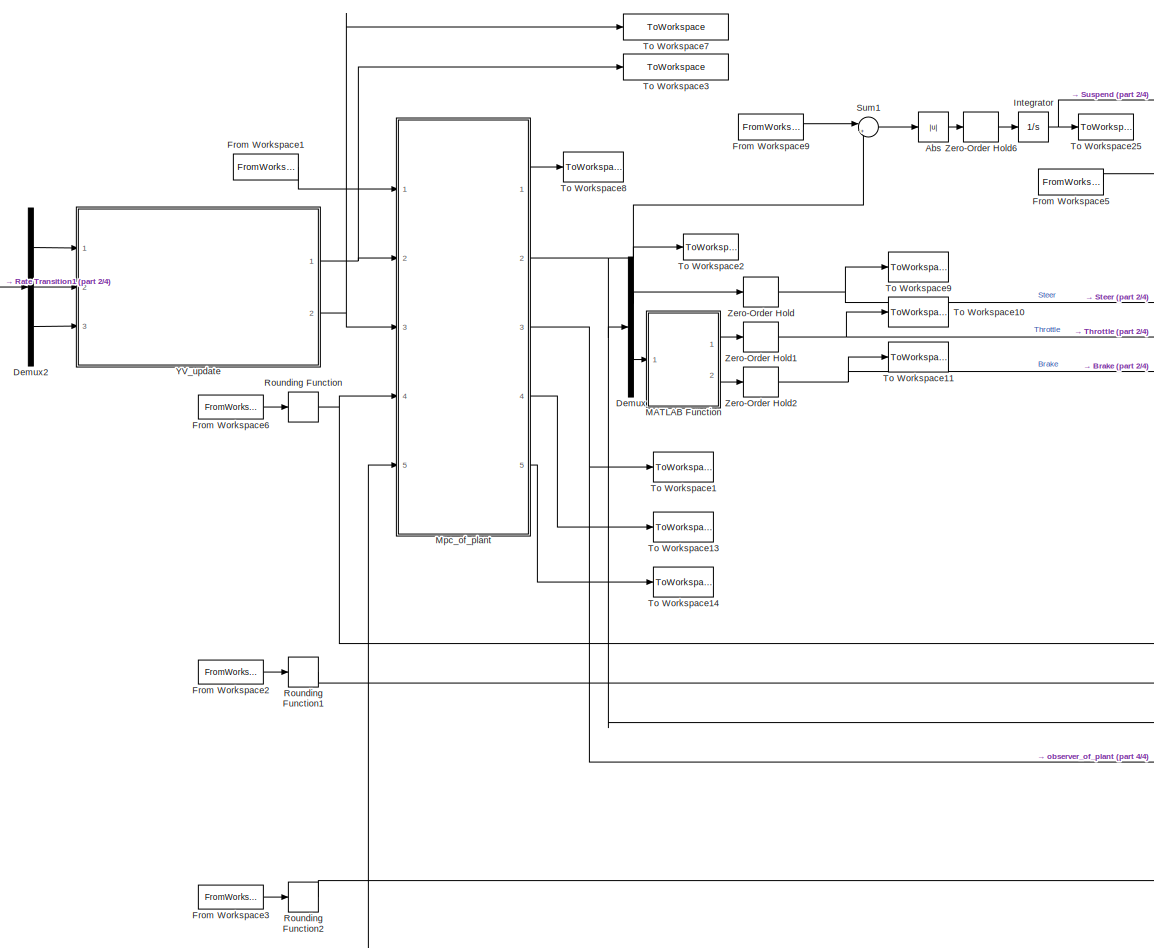
[diagram: root canvas - part 1/4, left side, full height]
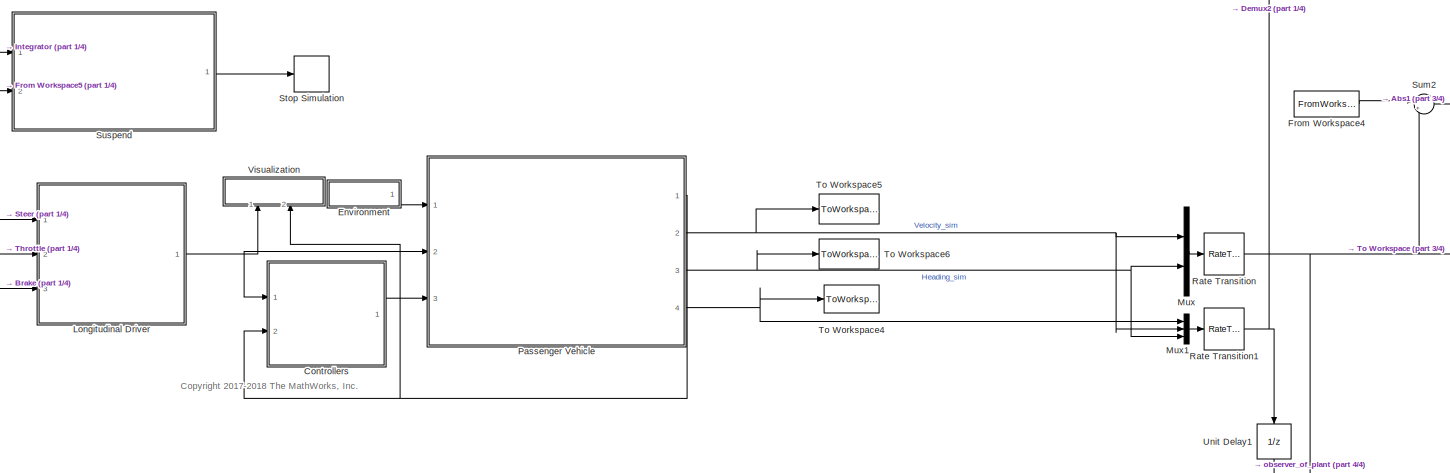
[diagram: root canvas - part 2/4, central region]
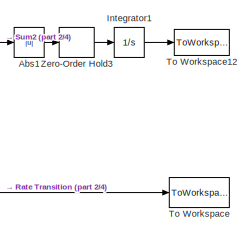
[diagram: root canvas - part 3/4, top right region]
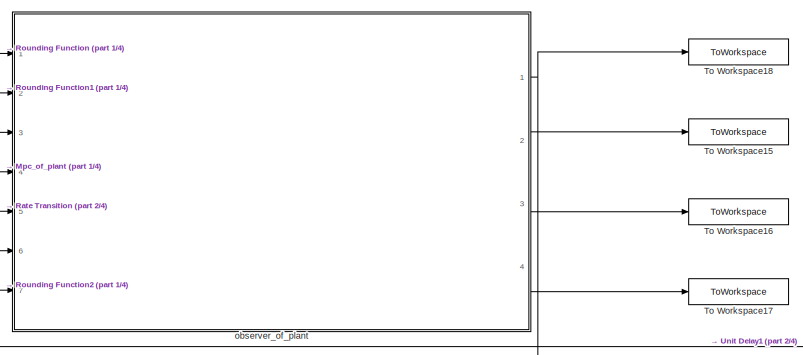
[diagram: root canvas - part 4/4, bottom center region]
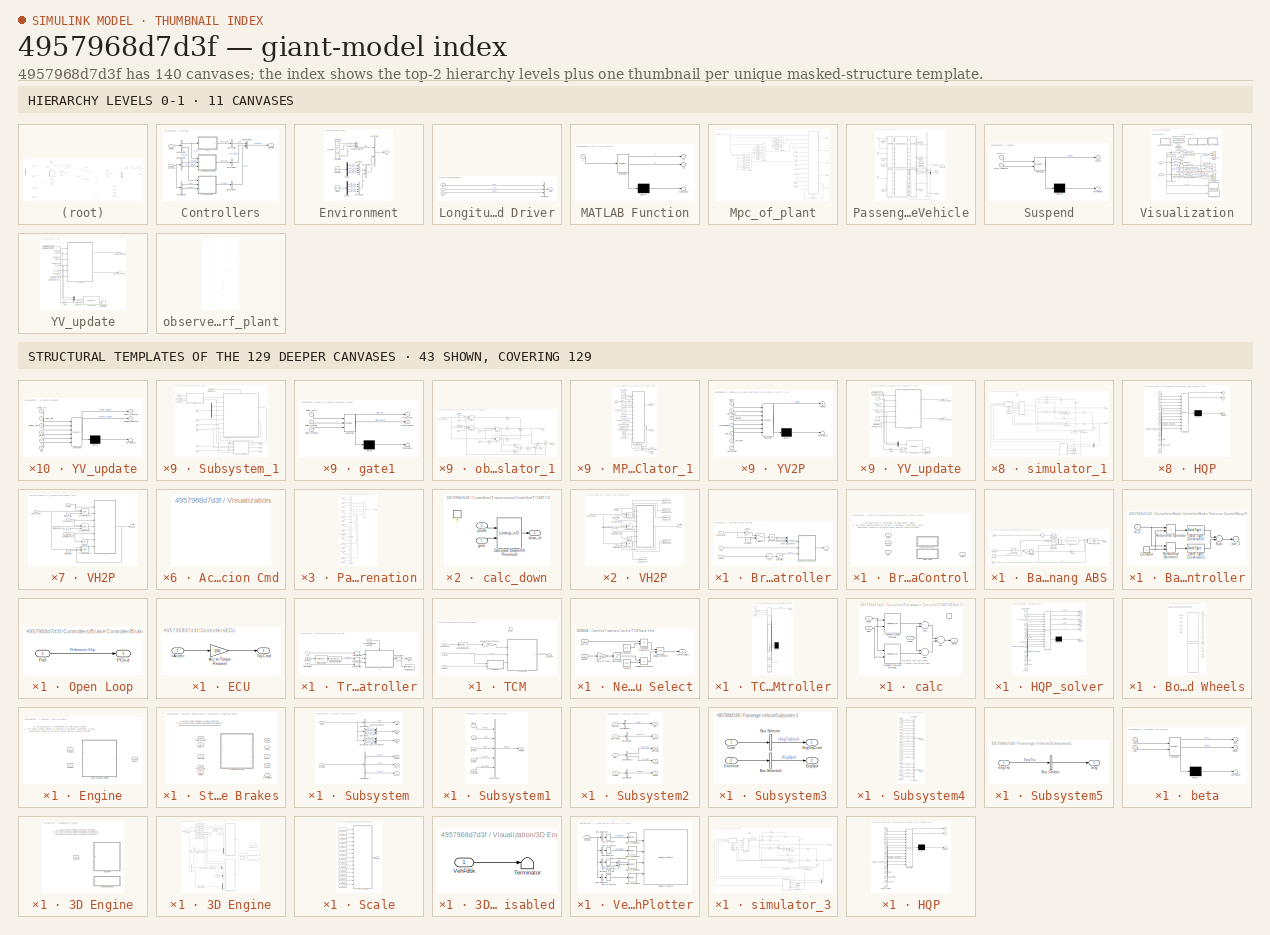
[diagram: thumbnail index - top-2 hierarchy levels (11 canvases) + 43 structural-template representatives of the remaining 129 canvases]
MODEL slx_4957968d7d3f
KIND model
CONFIG AbsTol = auto
CONFIG EnableMultiTasking = off
CONFIG FixedStep = 0.001
CONFIG MaxStep = auto
CONFIG MinStep = auto
CONFIG RelTol = 5e-3
CONFIG SampleTimeConstraint = Unconstrained
CONFIG Solver = FixedStepAuto
CONFIG SolverName = FixedStepAuto
CONFIG StartTime = 0.0
CONFIG StopTime = Tend-Ts
WORKSPACE source: MAT-file member
WORKSPACE A_mu = 10
BLOCK [Abs] Abs
  Commented = on
  SaturateOnIntegerOverflow = off
BLOCK [Abs] Abs1
  Commented = on
  SaturateOnIntegerOverflow = off
BLOCK [SubSystem] Controllers
  Ports = [2, 1]
  RequestExecContextInheritance = off
BLOCK [SubSystem] Controllers/Brake Controller
  Ports = [3, 1]
  RequestExecContextInheritance = off
BLOCK [Abs] Controllers/Brake Controller/Abs
  SaturateOnIntegerOverflow = off
  ZeroCross = off
BLOCK [SubSystem] Controllers/Brake Controller/Brake Pressure Control
  OverrideUsingVariant = 0
  Ports = [3, 1]
  RequestExecContextInheritance = off
  Variant = on
BLOCK [Inport] Controllers/Brake Controller/Brake Pressure Control/<Kappa>
  IconDisplay = Port number
  Port = 3
BLOCK [SubSystem] Controllers/Brake Controller/Brake Pressure Control/Bang Bang ABS
  Ports = [3, 1]
  RequestExecContextInheritance = off
  VariantControl = 1
BLOCK [Inport] Controllers/Brake Controller/Brake Pressure Control/Bang Bang ABS/<Kappa>
  IconDisplay = Port number
  Port = 3
BLOCK [Abs] Controllers/Brake Controller/Brake Pressure Control/Bang Bang ABS/Abs
  SaturateOnIntegerOverflow = off
BLOCK [Sum] Controllers/Brake Controller/Brake Pressure Control/Bang Bang ABS/Add
  InputSameDT = off
  Inputs = -+
  OutDataTypeStr = Inherit: Inherit via internal rule
  Ports = [2, 1]
  SaturateOnIntegerOverflow = off
BLOCK [SubSystem] Controllers/Brake Controller/Brake Pressure Control/Bang Bang ABS/Bang-bang controller
  Ports = [1, 1]
  RequestExecContextInheritance = off
  ShowPortLabels = none
BLOCK [Constant] Controllers/Brake Controller/Brake Pressure Control/Bang Bang ABS/Bang-bang controller/Constant
  Value = 0
BLOCK [DataTypeConversion] Controllers/Brake Controller/Brake Pressure Control/Bang Bang ABS/Bang-bang controller/Data Type Conversion1
  OutDataTypeStr = double
BLOCK [DataTypeConversion] Controllers/Brake Controller/Brake Pressure Control/Bang Bang ABS/Bang-bang controller/Data Type Conversion2
  OutDataTypeStr = double
BLOCK [RelationalOperator] Controllers/Brake Controller/Brake Pressure Control/Bang Bang ABS/Bang-bang controller/Relational Operator
  Operator = >
  OutDataTypeStr = boolean
  Ports = [2, 1]
BLOCK [RelationalOperator] Controllers/Brake Controller/Brake Pressure Control/Bang Bang ABS/Bang-bang controller/Relational Operator1
  Operator = <
  OutDataTypeStr = boolean
  Ports = [2, 1]
BLOCK [Sum] Controllers/Brake Controller/Brake Pressure Control/Bang Bang ABS/Bang-bang controller/Sum
  Inputs = +-
  Ports = [2, 1]
BLOCK [Inport] Controllers/Brake Controller/Brake Pressure Control/Bang Bang ABS/Bang-bang controller/in_1
  IconDisplay = Port number
BLOCK [Outport] Controllers/Brake Controller/Brake Pressure Control/Bang Bang ABS/Bang-bang controller/out_1
  IconDisplay = Port number
  InitialOutput = 0
BLOCK [Reference] Controllers/Brake Controller/Brake Pressure Control/Bang Bang ABS/Compare To Constant  REF=simulink/Logic and Bit
Operations/Compare
To Constant
  Ports = [1, 1]
  SourceBlock = simulink/Logic and Bit\nOperations/Compare\nTo Constant
  SourceProductBaseCode = SL
  SourceProductName = Simulink
  SourceType = Compare To Constant
BLOCK [Reference] Controllers/Brake Controller/Brake Pressure Control/Bang Bang ABS/Compare To Constant1  REF=simulink/Logic and Bit
Operations/Compare
To Constant
  Ports = [1, 1]
  SourceBlock = simulink/Logic and Bit\nOperations/Compare\nTo Constant
  SourceProductBaseCode = SL
  SourceProductName = Simulink
  SourceType = Compare To Constant
BLOCK [Reference] Controllers/Brake Controller/Brake Pressure Control/Bang Bang ABS/Compare To Constant2  REF=simulink/Logic and Bit
Operations/Compare
To Constant
  Ports = [1, 1]
  SourceBlock = simulink/Logic and Bit\nOperations/Compare\nTo Constant
  SourceProductBaseCode = SL
  SourceProductName = Simulink
  SourceType = Compare To Constant
BLOCK [Constant] Controllers/Brake Controller/Brake Pressure Control/Bang Bang ABS/Constant
  Value = .25
BLOCK [Reference] Controllers/Brake Controller/Brake Pressure Control/Bang Bang ABS/Debounce  REF=autolibutils/Debounce
  Ports = [1, 1]
  SourceBlock = autolibutils/Debounce
  SourceProductBaseCode = PW
  SourceProductName = Powertrain Blockset
BLOCK [Gain] Controllers/Brake Controller/Brake Pressure Control/Bang Bang ABS/Gain
  Gain = 200
  OutDataTypeStr = Inherit: Inherit via internal rule
  ParamDataTypeStr = Inherit: Inherit via internal rule
  SaturateOnIntegerOverflow = off
BLOCK [Logic] Controllers/Brake Controller/Brake Pressure Control/Bang Bang ABS/Logical Operator
  AllPortsSameDT = off
  Inputs = 3
  OutDataTypeStr = boolean
  Ports = [3, 1]
BLOCK [Outport] Controllers/Brake Controller/Brake Pressure Control/Bang Bang ABS/PCmd
  IconDisplay = Port number
BLOCK [Inport] Controllers/Brake Controller/Brake Pressure Control/Bang Bang ABS/Pref
  IconDisplay = Port number
BLOCK [RateTransition] Controllers/Brake Controller/Brake Pressure Control/Bang Bang ABS/Rate Transition
  OutPortSampleTime = .001
BLOCK [RateTransition] Controllers/Brake Controller/Brake Pressure Control/Bang Bang ABS/Rate Transition1
BLOCK [Switch] Controllers/Brake Controller/Brake Pressure Control/Bang Bang ABS/Switch
  Criteria = u2 > Threshold
  InputSameDT = off
  SaturateOnIntegerOverflow = off
  ZeroCross = off
BLOCK [Inport] Controllers/Brake Controller/Brake Pressure Control/Bang Bang ABS/xdot
  IconDisplay = Port number
  Port = 2
BLOCK [SubSystem] Controllers/Brake Controller/Brake Pressure Control/Open Loop
  Ports = [1, 1]
  RequestExecContextInheritance = off
  VariantControl = 0
BLOCK [Outport] Controllers/Brake Controller/Brake Pressure Control/Open Loop/PCmd
  IconDisplay = Port number
BLOCK [Inport] Controllers/Brake Controller/Brake Pressure Control/Open Loop/Pref
  IconDisplay = Port number
BLOCK [Outport] Controllers/Brake Controller/Brake Pressure Control/PCmd
  IconDisplay = Port number
BLOCK [Inport] Controllers/Brake Controller/Brake Pressure Control/Pref
  IconDisplay = Port number
BLOCK [Inport] Controllers/Brake Controller/Brake Pressure Control/xdot
  IconDisplay = Port number
  Port = 2
BLOCK [Inport] Controllers/Brake Controller/BrkPrsCmd
  IconDisplay = Port number
BLOCK [Constant] Controllers/Brake Controller/Constant1
  Value = -20
BLOCK [Gain] Controllers/Brake Controller/Gain3
  OutDataTypeStr = Inherit: Inherit via internal rule
  ParamDataTypeStr = Inherit: Inherit via internal rule
  SaturateOnIntegerOverflow = off
BLOCK [Integrator] Controllers/Brake Controller/Integrator2
  LimitOutput = on
  LowerSaturationLimit = 0
  Ports = [1, 1]
  UpperSaturationLimit = 1
BLOCK [Outport] Controllers/Brake Controller/PCmd
  IconDisplay = Port number
BLOCK [Saturate] Controllers/Brake Controller/Saturation
  InputPortMap = u0
  LowerLimit = 0
  Ports = [1, 1]
  UpperLimit = 1
  ZeroCross = off
BLOCK [Switch] Controllers/Brake Controller/Switch1
  Criteria = u2 > Threshold
  InputSameDT = off
  SaturateOnIntegerOverflow = off
  Threshold = .1
BLOCK [Concatenate] Controllers/Brake Controller/Vector Concatenate2
  NumInputs = 4
  Ports = [4, 1]
BLOCK [Inport] Controllers/Brake Controller/kappa
  IconDisplay = Port number
  Port = 3
BLOCK [Inport] Controllers/Brake Controller/xdot
  IconDisplay = Port number
  Port = 2
BLOCK [BusCreator] Controllers/Bus Creator
  DisplayOption = bar
  InheritFromInputs = on
  Inputs = 1
  Ports = [1, 1]
BLOCK [BusCreator] Controllers/Bus Creator1
  DisplayOption = bar
  InheritFromInputs = on
  Inputs = 1
  Ports = [1, 1]
BLOCK [BusCreator] Controllers/Bus Creator2
  DisplayOption = bar
  InheritFromInputs = on
  Inputs = 1
  Ports = [1, 1]
BLOCK [BusCreator] Controllers/Bus Creator3
  DisplayOption = bar
  InheritFromInputs = on
  Inputs = 3
  Ports = [3, 1]
BLOCK [BusSelector] Controllers/Bus Selector
  OutputAsBus = off
  OutputSignals = Body.xdot,Wheels.kappa
  Ports = [1, 2]
BLOCK [BusSelector] Controllers/Bus Selector1
  OutputAsBus = off
  OutputSignals = Driveline.EngSpd,Driveline.PropShftSpd
  Ports = [1, 2]
BLOCK [BusSelector] Controllers/Bus Selector2
  OutputAsBus = off
  OutputSignals = Accel,Brake
  Ports = [1, 2]
BLOCK [Outport] Controllers/Controller
  IconDisplay = Port number
BLOCK [SubSystem] Controllers/ECU
  Ports = [1, 1]
  RequestExecContextInheritance = off
BLOCK [Inport] Controllers/ECU/<Accel>
  IconDisplay = Port number
BLOCK [Gain] Controllers/ECU/Acc to Torque Request
  Gain = 150
  OutDataTypeStr = Inherit: Inherit via internal rule
  ParamDataTypeStr = Inherit: Inherit via internal rule
  SaturateOnIntegerOverflow = off
BLOCK [Outport] Controllers/ECU/Trq Cmd
  IconDisplay = Port number
BLOCK [Inport] Controllers/Pedals
  IconDisplay = Port number
BLOCK [SubSystem] Controllers/Transmission Controller
  Ports = [3, 1]
  RequestExecContextInheritance = off
BLOCK [Reference] Controllers/Transmission Controller/10ms Function-Call Generator  REF=simulink/Ports &
Subsystems/Function-Call
Generator
  Ports = [0, 1]
  SourceBlock = simulink/Ports &\nSubsystems/Function-Call\nGenerator
  SourceProductBaseCode = SL
  SourceProductName = Simulink
  SourceType = Function-Call Generator
BLOCK [Inport] Controllers/Transmission Controller/Acc
  IconDisplay = Port number
BLOCK [Inport] Controllers/Transmission Controller/EngSpd
  IconDisplay = Port number
  Port = 2
  Unit = rad/s
BLOCK [Outport] Controllers/Transmission Controller/Gear
  IconDisplay = Port number
BLOCK [Inport] Controllers/Transmission Controller/PropShaftSpd
  IconDisplay = Port number
  Port = 3
BLOCK [RateTransition] Controllers/Transmission Controller/Rate Transition
BLOCK [RateTransition] Controllers/Transmission Controller/Rate Transition1
BLOCK [RateTransition] Controllers/Transmission Controller/Rate Transition2
BLOCK [RateTransition] Controllers/Transmission Controller/Rate Transition3
BLOCK [SignalSpecification] Controllers/Transmission Controller/Signal Specification
  Unit = rpm
BLOCK [SubSystem] Controllers/Transmission Controller/TCM
  Ports = [3, 1, 0, 1]
  RequestExecContextInheritance = off
BLOCK [Inport] Controllers/Transmission Controller/TCM/AccCmd
  IconDisplay = Port number
BLOCK [Inport] Controllers/Transmission Controller/TCM/EngSpd
  IconDisplay = Port number
  Port = 2
BLOCK [Outport] Controllers/Transmission Controller/TCM/Gear Select
  IconDisplay = Port number
BLOCK [SubSystem] Controllers/Transmission Controller/TCM/Neutral Select
  Ports = [2, 1]
  RequestExecContextInheritance = off
BLOCK [Inport] Controllers/Transmission Controller/TCM/Neutral Select/AccCmd
  IconDisplay = Port number
BLOCK [Constant] Controllers/Transmission Controller/TCM/Neutral Select/Constant
  Value = 1200
BLOCK [Constant] Controllers/Transmission Controller/TCM/Neutral Select/Constant1
  Value = 1e-6
BLOCK [Inport] Controllers/Transmission Controller/TCM/Neutral Select/EngSpd
  IconDisplay = Port number
  Port = 2
BLOCK [Logic] Controllers/Transmission Controller/TCM/Neutral Select/Logical Operator
  AllPortsSameDT = off
  OutDataTypeStr = boolean
  Ports = [2, 1]
BLOCK [Outport] Controllers/Transmission Controller/TCM/Neutral Select/Neutral Select
  IconDisplay = Port number
BLOCK [RelationalOperator] Controllers/Transmission Controller/TCM/Neutral Select/Relational Operator
  InputSameDT = off
  Operator = <=
  OutDataTypeStr = boolean
  Ports = [2, 1]
  RndMeth = Simplest
BLOCK [RelationalOperator] Controllers/Transmission Controller/TCM/Neutral Select/Relational Operator1
  InputSameDT = off
  Operator = <=
  OutDataTypeStr = boolean
  Ports = [2, 1]
  RndMeth = Simplest
BLOCK [Saturate] Controllers/Transmission Controller/TCM/Neutral Select/Saturation1
  InputPortMap = u0
  LowerLimit = 0
  Ports = [1, 1]
  UpperLimit = 10e3
BLOCK [Gain] Controllers/Transmission Controller/TCM/Neutral Select/rad//s to RPM
  Gain = 30/pi
  OutDataTypeStr = Inherit: Inherit via internal rule
  ParamDataTypeStr = Inherit: Inherit via internal rule
  SaturateOnIntegerOverflow = off
BLOCK [DiscreteTransferFcn] Controllers/Transmission Controller/TCM/Prop Shaft Speed LPF
  Denominator = [1.000000000000000 -0.990049833749168 ]
  InputPortMap = u0
  Numerator = [0.000000000000000 0.009950166250832 ]
  Ports = [1, 1]
BLOCK [SubSystem] Controllers/Transmission Controller/TCM/TCM Shift Controller
  ErrorFcn = Stateflow.Translate.translate
  PermitHierarchicalResolution = ExplicitOnly
  Ports = [3, 1]
  RequestExecContextInheritance = off
  SFBlockType = Chart
  TreatAsAtomicUnit = on
BLOCK [Demux] Controllers/Transmission Controller/TCM/TCM Shift Controller/ Demux 
  Outputs = 3
  Ports = [1, 3]
BLOCK [S-Function] Controllers/Transmission Controller/TCM/TCM Shift Controller/ SFunction 
  EnableBusSupport = on
  FunctionName = sf_sfun
  PortCounts = [6 9]
  Ports = [6, 9]
  SFcnIsStateOwnerBlock = off
  SFunctionDeploymentMode = off
  Tag = Stateflow S-Function MPC_control 1
BLOCK [Outport] Controllers/Transmission Controller/TCM/TCM Shift Controller/GearState
  IconDisplay = Port number
BLOCK [Inport] Controllers/Transmission Controller/TCM/TCM Shift Controller/Neutral
  IconDisplay = Port number
  Port = 3
BLOCK [SubSystem] Controllers/Transmission Controller/TCM/TCM Shift Controller/calc
  Ports = [3, 1, 0, 1]
  PreDeleteFcn = Stateflow.SLINSF.SimulinkMan.removePreDeleteFcn
  RequestExecContextInheritance = off
  UndoDeleteFcn = Stateflow.SLINSF.SimulinkMan.restorePreDeleteFcn
BLOCK [Sum] Controllers/Transmission Controller/TCM/TCM Shift Controller/calc/Add1
  InputSameDT = off
  Inputs = +-
  OutDataTypeStr = Inherit: Inherit via internal rule
  Ports = [2, 1]
  SaturateOnIntegerOverflow = off
BLOCK [Sum] Controllers/Transmission Controller/TCM/TCM Shift Controller/calc/Add3
  InputSameDT = off
  Inputs = +-
  OutDataTypeStr = Inherit: Inherit via internal rule
  Ports = [2, 1]
  SaturateOnIntegerOverflow = off
BLOCK [Sum] Controllers/Transmission Controller/TCM/TCM Shift Controller/calc/Add4
  InputSameDT = off
  Inputs = +-
  OutDataTypeStr = Inherit: Inherit via internal rule
  Ports = [2, 1]
  SaturateOnIntegerOverflow = off
BLOCK [Lookup_n-D] Controllers/Transmission Controller/TCM/TCM Shift Controller/calc/Calculate Downshift Threshold
  BreakpointsForDimension1 = Pedal_Positions
  BreakpointsForDimension2 = 2:8
  ExtrapMethod = Clip
  InternalRulePriority = Speed
  Ports = [2, 1]
  RndMeth = Simplest
  Table = Downshift_Speeds
  UseLastTableValue = on
BLOCK [Lookup_n-D] Controllers/Transmission Controller/TCM/TCM Shift Controller/calc/Calculate Upshift Threshold
  BreakpointsForDimension1 = Pedal_Positions
  BreakpointsForDimension2 = 1:7
  ExtrapMethod = Clip
  InternalRulePriority = Speed
  Ports = [2, 1]
  RndMeth = Simplest
  Table = Upshift_Speeds
  UseLastTableValue = on
BLOCK [Outport] Controllers/Transmission Controller/TCM/TCM Shift Controller/calc/SpdThr
  IconDisplay = Port number
BLOCK [TriggerPort] Controllers/Transmission Controller/TCM/TCM Shift Controller/calc/f
  CopyFcn = Stateflow.SLINSF.SimulinkMan.removeBlockPreDeleteFcn
  Ports = []
  PreDeleteFcn = Stateflow.SLINSF.SimulinkMan.unsafePredeleteFcn
  StatesWhenEnabling = reset
  TriggerType = function-call
  VariantControl = Variant
BLOCK [Inport] Controllers/Transmission Controller/TCM/TCM Shift Controller/calc/gear
  IconDisplay = Port number
BLOCK [Inport] Controllers/Transmission Controller/TCM/TCM Shift Controller/calc/pedal
  IconDisplay = Port number
  Port = 2
BLOCK [Inport] Controllers/Transmission Controller/TCM/TCM Shift Controller/calc/speed
  IconDisplay = Port number
  Port = 3
BLOCK [SubSystem] Controllers/Transmission Controller/TCM/TCM Shift Controller/calc_down
  Ports = [2, 1, 0, 1]
  PreDeleteFcn = Stateflow.SLINSF.SimulinkMan.removePreDeleteFcn
  RequestExecContextInheritance = off
  UndoDeleteFcn = Stateflow.SLINSF.SimulinkMan.restorePreDeleteFcn
BLOCK [Lookup_n-D] Controllers/Transmission Controller/TCM/TCM Shift Controller/calc_down/Calculate Downshift Threshold
  BreakpointsForDimension1 = Pedal_Positions
  BreakpointsForDimension2 = 2:8
  ExtrapMethod = Clip
  InternalRulePriority = Speed
  Ports = [2, 1]
  RndMeth = Simplest
  Table = Downshift_Speeds
  UseLastTableValue = on
BLOCK [Outport] Controllers/Transmission Controller/TCM/TCM Shift Controller/calc_down/down_th
  IconDisplay = Port number
BLOCK [TriggerPort] Controllers/Transmission Controller/TCM/TCM Shift Controller/calc_down/f
  CopyFcn = Stateflow.SLINSF.SimulinkMan.removeBlockPreDeleteFcn
  Ports = []
  PreDeleteFcn = Stateflow.SLINSF.SimulinkMan.unsafePredeleteFcn
  StatesWhenEnabling = reset
  TriggerType = function-call
  VariantControl = Variant
BLOCK [Inport] Controllers/Transmission Controller/TCM/TCM Shift Controller/calc_down/gear
  IconDisplay = Port number
BLOCK [Inport] Controllers/Transmission Controller/TCM/TCM Shift Controller/calc_down/pedal
  IconDisplay = Port number
  Port = 2
BLOCK [SubSystem] Controllers/Transmission Controller/TCM/TCM Shift Controller/calc_up
  Ports = [2, 1, 0, 1]
  PreDeleteFcn = Stateflow.SLINSF.SimulinkMan.removePreDeleteFcn
  RequestExecContextInheritance = off
  UndoDeleteFcn = Stateflow.SLINSF.SimulinkMan.restorePreDeleteFcn
BLOCK [Lookup_n-D] Controllers/Transmission Controller/TCM/TCM Shift Controller/calc_up/Calculate Upshift Threshold
  BreakpointsForDimension1 = Pedal_Positions
  BreakpointsForDimension2 = 1:7
  ExtrapMethod = Clip
  InternalRulePriority = Speed
  Ports = [2, 1]
  RndMeth = Simplest
  Table = Upshift_Speeds
  UseLastTableValue = on
BLOCK [TriggerPort] Controllers/Transmission Controller/TCM/TCM Shift Controller/calc_up/f
  CopyFcn = Stateflow.SLINSF.SimulinkMan.removeBlockPreDeleteFcn
  Ports = []
  PreDeleteFcn = Stateflow.SLINSF.SimulinkMan.unsafePredeleteFcn
  StatesWhenEnabling = reset
  TriggerType = function-call
  VariantControl = Variant
BLOCK [Inport] Controllers/Transmission Controller/TCM/TCM Shift Controller/calc_up/gear
  IconDisplay = Port number
BLOCK [Inport] Controllers/Transmission Controller/TCM/TCM Shift Controller/calc_up/pedal
  IconDisplay = Port number
  Port = 2
BLOCK [Outport] Controllers/Transmission Controller/TCM/TCM Shift Controller/calc_up/up_th
  IconDisplay = Port number
BLOCK [Inport] Controllers/Transmission Controller/TCM/TCM Shift Controller/pedal
  IconDisplay = Port number
  Port = 2
BLOCK [Inport] Controllers/Transmission Controller/TCM/TCM Shift Controller/speed
  IconDisplay = Port number
BLOCK [Inport] Controllers/Transmission Controller/TCM/VehSpdFdbk
  IconDisplay = Port number
  Port = 3
BLOCK [TriggerPort] Controllers/Transmission Controller/TCM/function
  Ports = []
  StatesWhenEnabling = held
  TriggerType = function-call
  VariantControl = Variant
BLOCK [Gain] Controllers/Transmission Controller/TCM/prop speed to vehicle speed
  Gain = 0.45
  OutDataTypeStr = Inherit: Inherit via internal rule
  ParamDataTypeStr = Inherit: Inherit via internal rule
  SaturateOnIntegerOverflow = off
BLOCK [ToWorkspace] Controllers/Transmission Controller/To Workspace4
  FixptAsFi = on
  MaxDataPoints = inf
  Ports = [1]
  SampleTime = Ts
  Save2DSignal = 3-D array (concatenate along third dimension)
  VariableName = Gear
BLOCK [UnitConversion] Controllers/Transmission Controller/Unit Conversion
BLOCK [Inport] Controllers/VehFdbk
  IconDisplay = Port number
  Port = 2
BLOCK [Demux] Demux
  DisplayOption = bar
  Outputs = 2
  Ports = [1, 2]
BLOCK [Demux] Demux2
  DisplayOption = bar
  Outputs = 3
  Ports = [1, 3]
BLOCK [SubSystem] Environment
  Ports = [0, 1]
  RequestExecContextInheritance = off
  TreatAsAtomicUnit = on
BLOCK [BusCreator] Environment/Bus Creator
  DisplayOption = bar
  InheritFromInputs = on
  Inputs = 4
  Ports = [4, 1]
BLOCK [BusCreator] Environment/Bus Creator1
  DisplayOption = bar
  InheritFromInputs = on
  Inputs = 2
  Ports = [2, 1]
BLOCK [BusCreator] Environment/Bus Creator2
  DisplayOption = bar
  InheritFromInputs = on
  Inputs = 4
  Ports = [4, 1]
BLOCK [BusCreator] Environment/Bus Creator3
  DisplayOption = bar
  InheritFromInputs = on
  Inputs = 2
  Ports = [2, 1]
BLOCK [Constant] Environment/Constant1
  Value = zeros(4,1)
BLOCK [Constant] Environment/Constant3
  Value = 0
BLOCK [Constant] Environment/Constant4
  Value = 0
BLOCK [Constant] Environment/Constant5
  Value = 0
BLOCK [Demux] Environment/Demux
  DisplayOption = bar
  Ports = [1, 4]
BLOCK [Demux] Environment/Demux1
  DisplayOption = bar
  Ports = [1, 4]
BLOCK [Outport] Environment/Env
  IconDisplay = Port number
BLOCK [Constant] Environment/Friction
  Value = ones(4,1).*1
BLOCK [Concatenate] Environment/Vector Concatenate
  NumInputs = 3
  Ports = [3, 1]
BLOCK [FromWorkspace] From Workspace1
  SampleTime = Ts
  VariableName = Rs
  ZeroCross = on
BLOCK [FromWorkspace] From Workspace2
  SampleTime = Ts
  VariableName = select_overlap
  ZeroCross = on
BLOCK [FromWorkspace] From Workspace3
  SampleTime = Ts
  VariableName = select_overlap2
  ZeroCross = on
BLOCK [FromWorkspace] From Workspace4
  Commented = on
  SampleTime = Ts
  VariableName = Ideal_R
  ZeroCross = on
BLOCK [FromWorkspace] From Workspace5
  Commented = on
  SampleTime = Ts
  VariableName = suspend
  ZeroCross = on
BLOCK [FromWorkspace] From Workspace6
  SampleTime = Ts
  VariableName = select_MPC
  ZeroCross = on
BLOCK [FromWorkspace] From Workspace9
  Commented = on
  SampleTime = Ts
  VariableName = Ideal_U
  ZeroCross = on
BLOCK [Integrator] Integrator
  Commented = on
  Ports = [1, 1]
BLOCK [Integrator] Integrator1
  Commented = on
  Ports = [1, 1]
BLOCK [SubSystem] Longitudinal Driver
  Ports = [3, 1]
  RequestExecContextInheritance = off
  SystemSampleTime = Tf
  VariantControl = 0
BLOCK [BusCreator] Longitudinal Driver/Bus Creator1
  DisplayOption = bar
  InheritFromInputs = on
  Inputs = 3
  Ports = [3, 1]
BLOCK [Outport] Longitudinal Driver/Driver
  IconDisplay = Port number
BLOCK [Inport] Longitudinal Driver/In1
  IconDisplay = Port number
  SampleTime = Tf
BLOCK [Inport] Longitudinal Driver/In2
  IconDisplay = Port number
  Port = 2
  SampleTime = Tf
BLOCK [Inport] Longitudinal Driver/In3
  IconDisplay = Port number
  Port = 3
  SampleTime = Tf
BLOCK [SubSystem] MATLAB Function
  ErrorFcn = Stateflow.Translate.translate
  PermitHierarchicalResolution = ExplicitOnly
  Ports = [1, 2]
  RequestExecContextInheritance = off
  SFBlockType = MATLAB Function
  SystemSampleTime = Ts
  TreatAsAtomicUnit = on
BLOCK [Demux] MATLAB Function/ Demux 
  Outputs = 1
  Ports = [1, 1]
BLOCK [S-Function] MATLAB Function/ SFunction 
  EnableBusSupport = on
  FunctionName = sf_sfun
  PortCounts = [1 3]
  Ports = [1, 3]
  SFcnIsStateOwnerBlock = off
  SFunctionDeploymentMode = off
  Tag = Stateflow S-Function MPC_control 3
BLOCK [Terminator] MATLAB Function/ Terminator 
BLOCK [Outport] MATLAB Function/Br
  IconDisplay = Port number
  Port = 2
BLOCK [Outport] MATLAB Function/Tr
  IconDisplay = Port number
BLOCK [Inport] MATLAB Function/u
  IconDisplay = Port number
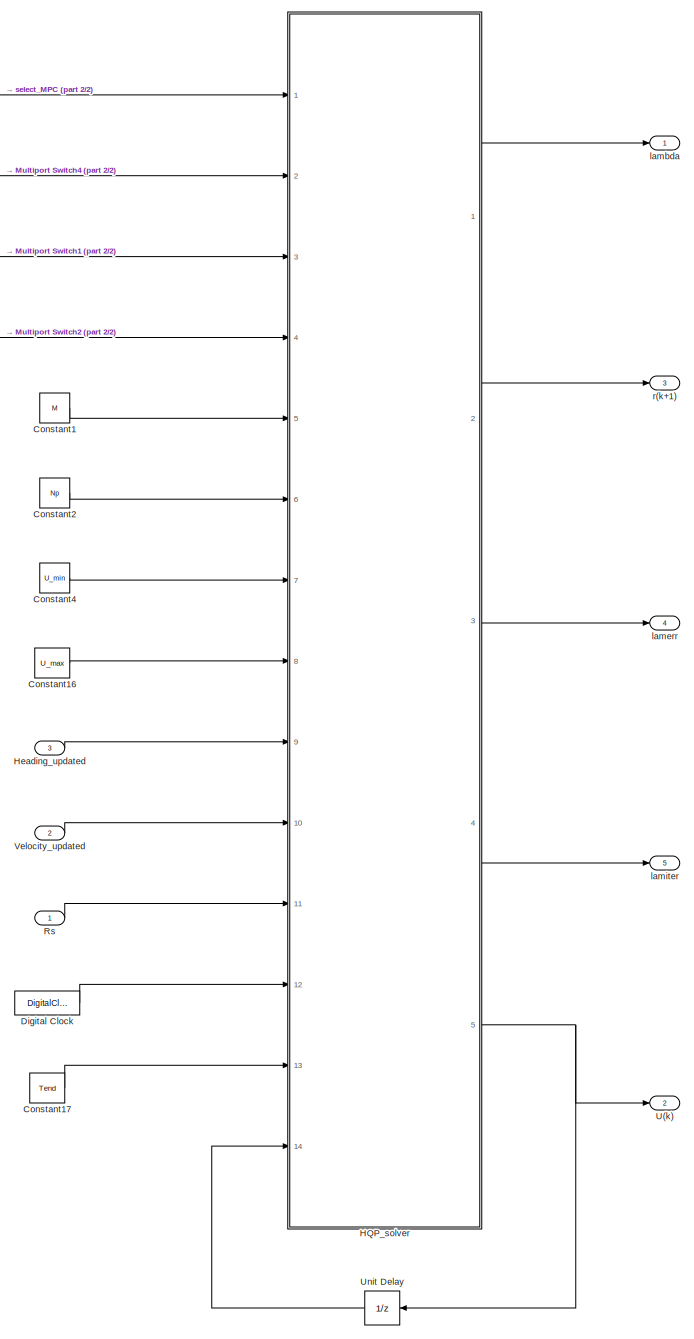
[diagram: Mpc_of_plant - part 1/2, right side, full height]
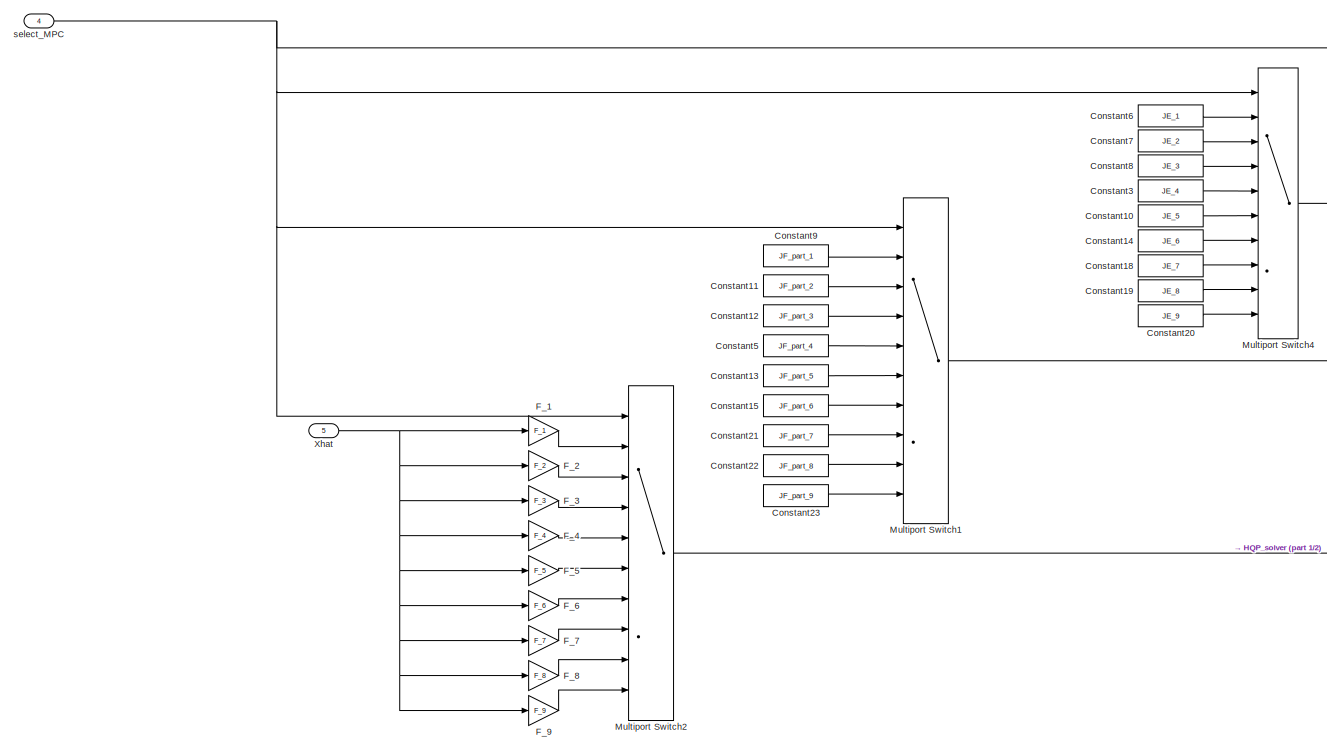
[diagram: Mpc_of_plant - part 2/2, top left region]
BLOCK [SubSystem] Mpc_of_plant
  Ports = [5, 5]
  RequestExecContextInheritance = off
  SystemSampleTime = Ts
  TreatAsAtomicUnit = on
BLOCK [Constant] Mpc_of_plant/Constant1
  SampleTime = -1
  Value = M
  VectorParams1D = off
BLOCK [Constant] Mpc_of_plant/Constant10
  SampleTime = -1
  Value = JE_5
  VectorParams1D = off
BLOCK [Constant] Mpc_of_plant/Constant11
  SampleTime = -1
  Value = JF_part_2
  VectorParams1D = off
BLOCK [Constant] Mpc_of_plant/Constant12
  SampleTime = -1
  Value = JF_part_3
  VectorParams1D = off
BLOCK [Constant] Mpc_of_plant/Constant13
  SampleTime = -1
  Value = JF_part_5
  VectorParams1D = off
BLOCK [Constant] Mpc_of_plant/Constant14
  SampleTime = -1
  Value = JE_6
  VectorParams1D = off
BLOCK [Constant] Mpc_of_plant/Constant15
  SampleTime = -1
  Value = JF_part_6
  VectorParams1D = off
BLOCK [Constant] Mpc_of_plant/Constant16
  SampleTime = -1
  Value = U_max
  VectorParams1D = off
BLOCK [Constant] Mpc_of_plant/Constant17
  SampleTime = -1
  Value = Tend
  VectorParams1D = off
BLOCK [Constant] Mpc_of_plant/Constant18
  SampleTime = -1
  Value = JE_7
  VectorParams1D = off
BLOCK [Constant] Mpc_of_plant/Constant19
  SampleTime = -1
  Value = JE_8
  VectorParams1D = off
BLOCK [Constant] Mpc_of_plant/Constant2
  SampleTime = -1
  Value = Np
BLOCK [Constant] Mpc_of_plant/Constant20
  SampleTime = -1
  Value = JE_9
  VectorParams1D = off
BLOCK [Constant] Mpc_of_plant/Constant21
  SampleTime = -1
  Value = JF_part_7
  VectorParams1D = off
BLOCK [Constant] Mpc_of_plant/Constant22
  SampleTime = -1
  Value = JF_part_8
  VectorParams1D = off
BLOCK [Constant] Mpc_of_plant/Constant23
  SampleTime = -1
  Value = JF_part_9
  VectorParams1D = off
BLOCK [Constant] Mpc_of_plant/Constant3
  SampleTime = -1
  Value = JE_4
  VectorParams1D = off
BLOCK [Constant] Mpc_of_plant/Constant4
  SampleTime = -1
  Value = U_min
  VectorParams1D = off
BLOCK [Constant] Mpc_of_plant/Constant5
  SampleTime = -1
  Value = JF_part_4
  VectorParams1D = off
BLOCK [Constant] Mpc_of_plant/Constant6
  SampleTime = -1
  Value = JE_1
  VectorParams1D = off
BLOCK [Constant] Mpc_of_plant/Constant7
  SampleTime = -1
  Value = JE_2
  VectorParams1D = off
BLOCK [Constant] Mpc_of_plant/Constant8
  SampleTime = -1
  Value = JE_3
  VectorParams1D = off
BLOCK [Constant] Mpc_of_plant/Constant9
  SampleTime = -1
  Value = JF_part_1
  VectorParams1D = off
BLOCK [DigitalClock] Mpc_of_plant/Digital Clock
  SampleTime = Ts
BLOCK [Gain] Mpc_of_plant/F_1
  Gain = F_1
  Multiplication = Matrix(K*u) (u vector)
  OutDataTypeStr = Inherit: Inherit via internal rule
  ParamDataTypeStr = Inherit: Inherit via internal rule
  SaturateOnIntegerOverflow = off
BLOCK [Gain] Mpc_of_plant/F_2
  Gain = F_2
  Multiplication = Matrix(K*u) (u vector)
  OutDataTypeStr = Inherit: Inherit via internal rule
  ParamDataTypeStr = Inherit: Inherit via internal rule
  SaturateOnIntegerOverflow = off
BLOCK [Gain] Mpc_of_plant/F_3
  Gain = F_3
  Multiplication = Matrix(K*u) (u vector)
  OutDataTypeStr = Inherit: Inherit via internal rule
  ParamDataTypeStr = Inherit: Inherit via internal rule
  SaturateOnIntegerOverflow = off
BLOCK [Gain] Mpc_of_plant/F_4
  Gain = F_4
  Multiplication = Matrix(K*u) (u vector)
  OutDataTypeStr = Inherit: Inherit via internal rule
  ParamDataTypeStr = Inherit: Inherit via internal rule
  SaturateOnIntegerOverflow = off
BLOCK [Gain] Mpc_of_plant/F_5
  Gain = F_5
  Multiplication = Matrix(K*u) (u vector)
  OutDataTypeStr = Inherit: Inherit via internal rule
  ParamDataTypeStr = Inherit: Inherit via internal rule
  SaturateOnIntegerOverflow = off
BLOCK [Gain] Mpc_of_plant/F_6
  Gain = F_6
  Multiplication = Matrix(K*u) (u vector)
  OutDataTypeStr = Inherit: Inherit via internal rule
  ParamDataTypeStr = Inherit: Inherit via internal rule
  SaturateOnIntegerOverflow = off
BLOCK [Gain] Mpc_of_plant/F_7
  Gain = F_7
  Multiplication = Matrix(K*u) (u vector)
  OutDataTypeStr = Inherit: Inherit via internal rule
  ParamDataTypeStr = Inherit: Inherit via internal rule
  SaturateOnIntegerOverflow = off
BLOCK [Gain] Mpc_of_plant/F_8
  Gain = F_8
  Multiplication = Matrix(K*u) (u vector)
  OutDataTypeStr = Inherit: Inherit via internal rule
  ParamDataTypeStr = Inherit: Inherit via internal rule
  SaturateOnIntegerOverflow = off
BLOCK [Gain] Mpc_of_plant/F_9
  Gain = F_9
  Multiplication = Matrix(K*u) (u vector)
  OutDataTypeStr = Inherit: Inherit via internal rule
  ParamDataTypeStr = Inherit: Inherit via internal rule
  SaturateOnIntegerOverflow = off
BLOCK [SubSystem] Mpc_of_plant/HQP_solver
  ErrorFcn = Stateflow.Translate.translate
  PermitHierarchicalResolution = ExplicitOnly
  Ports = [14, 5]
  RequestExecContextInheritance = off
  SFBlockType = MATLAB Function
  SystemSampleTime = Ts
  TreatAsAtomicUnit = on
BLOCK [Demux] Mpc_of_plant/HQP_solver/ Demux 
  Outputs = 1
  Ports = [1, 1]
BLOCK [S-Function] Mpc_of_plant/HQP_solver/ SFunction 
  EnableBusSupport = on
  FunctionName = sf_sfun
  PortCounts = [14 6]
  Ports = [14, 6]
  SFcnIsStateOwnerBlock = off
  SFunctionDeploymentMode = off
  Tag = Stateflow S-Function MPC_control 2
BLOCK [Terminator] Mpc_of_plant/HQP_solver/ Terminator 
BLOCK [Inport] Mpc_of_plant/HQP_solver/Fxh
  IconDisplay = Port number
  Port = 4
BLOCK [Inport] Mpc_of_plant/HQP_solver/Heading_updated
  IconDisplay = Port number
  Port = 9
BLOCK [Inport] Mpc_of_plant/HQP_solver/JE
  IconDisplay = Port number
  Port = 2
BLOCK [Inport] Mpc_of_plant/HQP_solver/JF_part
  IconDisplay = Port number
  Port = 3
BLOCK [Inport] Mpc_of_plant/HQP_solver/M
  IconDisplay = Port number
  Port = 5
BLOCK [Inport] Mpc_of_plant/HQP_solver/Np
  IconDisplay = Port number
  Port = 6
BLOCK [Inport] Mpc_of_plant/HQP_solver/Rs
  IconDisplay = Port number
  Port = 11
BLOCK [Inport] Mpc_of_plant/HQP_solver/Tend
  IconDisplay = Port number
  Port = 13
BLOCK [Inport] Mpc_of_plant/HQP_solver/Tsim
  IconDisplay = Port number
  Port = 12
BLOCK [Outport] Mpc_of_plant/HQP_solver/U
  IconDisplay = Port number
  Port = 5
BLOCK [Inport] Mpc_of_plant/HQP_solver/U_delay
  IconDisplay = Port number
  Port = 14
BLOCK [Inport] Mpc_of_plant/HQP_solver/U_max
  IconDisplay = Port number
  Port = 8
BLOCK [Inport] Mpc_of_plant/HQP_solver/U_min
  IconDisplay = Port number
  Port = 7
BLOCK [Inport] Mpc_of_plant/HQP_solver/Velocity_updated
  IconDisplay = Port number
  Port = 10
BLOCK [Outport] Mpc_of_plant/HQP_solver/lambda
  IconDisplay = Port number
BLOCK [Outport] Mpc_of_plant/HQP_solver/lamerr
  IconDisplay = Port number
  Port = 3
BLOCK [Outport] Mpc_of_plant/HQP_solver/lamiter
  IconDisplay = Port number
  Port = 4
BLOCK [Outport] Mpc_of_plant/HQP_solver/r
  IconDisplay = Port number
  Port = 2
BLOCK [Inport] Mpc_of_plant/HQP_solver/select_MPC
  IconDisplay = Port number
BLOCK [Inport] Mpc_of_plant/Heading_updated
  IconDisplay = Port number
  LockScale = on
  Port = 3
  SampleTime = Ts
BLOCK [MultiPortSwitch] Mpc_of_plant/Multiport Switch1
  InputSameDT = off
  Inputs = 9
  Ports = [10, 1]
  SaturateOnIntegerOverflow = off
BLOCK [MultiPortSwitch] Mpc_of_plant/Multiport Switch2
  InputSameDT = off
  Inputs = 9
  Ports = [10, 1]
  SaturateOnIntegerOverflow = off
BLOCK [MultiPortSwitch] Mpc_of_plant/Multiport Switch4
  InputSameDT = off
  Inputs = 9
  Ports = [10, 1]
  SaturateOnIntegerOverflow = off
BLOCK [Inport] Mpc_of_plant/Rs
  IconDisplay = Port number
  LockScale = on
  SampleTime = Ts
  VarSizeSig = No
BLOCK [Outport] Mpc_of_plant/U(k)
  IconDisplay = Port number
  Port = 2
BLOCK [UnitDelay] Mpc_of_plant/Unit Delay
  InitialCondition = [0;0]
  InputProcessing = Elements as channels (sample based)
  SampleTime = Ts
BLOCK [Inport] Mpc_of_plant/Velocity_updated
  IconDisplay = Port number
  Port = 2
  SampleTime = Ts
BLOCK [Inport] Mpc_of_plant/Xhat
  IconDisplay = Port number
  Port = 5
BLOCK [Outport] Mpc_of_plant/lambda
  IconDisplay = Port number
BLOCK [Outport] Mpc_of_plant/lamerr
  IconDisplay = Port number
  Port = 4
BLOCK [Outport] Mpc_of_plant/lamiter
  IconDisplay = Port number
  Port = 5
BLOCK [Outport] Mpc_of_plant/r(k+1)
  IconDisplay = Port number
  Port = 3
BLOCK [Inport] Mpc_of_plant/select_MPC
  IconDisplay = Port number
  Port = 4
BLOCK [Mux] Mux
  DisplayOption = bar
  Inputs = 2
  Ports = [2, 1]
BLOCK [Mux] Mux1
  DisplayOption = bar
  Inputs = 3
  Ports = [3, 1]
BLOCK [SubSystem] Passenger Vehicle
  MinAlgLoopOccurrences = on
  Ports = [3, 4]
  RequestExecContextInheritance = off
  TreatAsAtomicUnit = on
BLOCK [SubSystem] Passenger Vehicle/Body, Suspension, Wheels
  OverrideUsingVariant = 1
  Ports = [6, 20]
  RequestExecContextInheritance = off
  Variant = on
BLOCK [Inport] Passenger Vehicle/Body, Suspension, Wheels/AxleTrq
  IconDisplay = Port number
  Port = 5
BLOCK [Inport] Passenger Vehicle/Body, Suspension, Wheels/BrkPrs
  IconDisplay = Port number
  Port = 6
BLOCK [Inport] Passenger Vehicle/Body, Suspension, Wheels/Friction
  IconDisplay = Port number
  Port = 3
  PortDimensions = 4
BLOCK [Inport] Passenger Vehicle/Body, Suspension, Wheels/Ground
  IconDisplay = Port number
  Port = 2
  PortDimensions = 4
BLOCK [ModelReference] Passenger Vehicle/Body, Suspension, Wheels/PassVeh14DOF
  DisableCoverage = on
  ModelNameDialog = PassVeh14DOF
  ModelReferenceVersion = 1.200
  Ports = [6, 20]
  VariantControl = 3
BLOCK [ModelReference] Passenger Vehicle/Body, Suspension, Wheels/PassVeh7DOF
  DisableCoverage = on
  ModelNameDialog = PassVeh7DOF
  ModelReferenceVersion = 1.157
  Ports = [6, 20]
  VariantControl = 1
BLOCK [Inport] Passenger Vehicle/Body, Suspension, Wheels/WheelAngle
  IconDisplay = Port number
  Port = 4
BLOCK [Inport] Passenger Vehicle/Body, Suspension, Wheels/WindXYZ
  IconDisplay = Port number
BLOCK [Outport] Passenger Vehicle/Body, Suspension, Wheels/X
  IconDisplay = Port number
  Port = 3
BLOCK [Outport] Passenger Vehicle/Body, Suspension, Wheels/XWheel
  IconDisplay = Port number
  Port = 19
BLOCK [Outport] Passenger Vehicle/Body, Suspension, Wheels/Xdot
  IconDisplay = Port number
  Port = 6
BLOCK [Outport] Passenger Vehicle/Body, Suspension, Wheels/Y
  IconDisplay = Port number
  Port = 4
BLOCK [Outport] Passenger Vehicle/Body, Suspension, Wheels/YWheel
  IconDisplay = Port number
  Port = 20
BLOCK [Outport] Passenger Vehicle/Body, Suspension, Wheels/Ydot
  IconDisplay = Port number
  Port = 7
BLOCK [Outport] Passenger Vehicle/Body, Suspension, Wheels/Z
  IconDisplay = Port number
  Port = 5
BLOCK [Outport] Passenger Vehicle/Body, Suspension, Wheels/ZHP
  IconDisplay = Port number
  Port = 18
  Unit = m
BLOCK [Outport] Passenger Vehicle/Body, Suspension, Wheels/ay
  IconDisplay = Port number
  Port = 14
BLOCK [Outport] Passenger Vehicle/Body, Suspension, Wheels/kappa
  IconDisplay = Port number
  Port = 15
BLOCK [Outport] Passenger Vehicle/Body, Suspension, Wheels/omega
  IconDisplay = Port number
  Port = 17
BLOCK [Outport] Passenger Vehicle/Body, Suspension, Wheels/p
  IconDisplay = Port number
  Port = 11
BLOCK [Outport] Passenger Vehicle/Body, Suspension, Wheels/phi
  IconDisplay = Port number
  Port = 8
BLOCK [Outport] Passenger Vehicle/Body, Suspension, Wheels/psi
  IconDisplay = Port number
  Port = 10
BLOCK [Outport] Passenger Vehicle/Body, Suspension, Wheels/q
  IconDisplay = Port number
  Port = 12
BLOCK [Outport] Passenger Vehicle/Body, Suspension, Wheels/r
  IconDisplay = Port number
  Port = 13
BLOCK [Outport] Passenger Vehicle/Body, Suspension, Wheels/theta
  IconDisplay = Port number
  Port = 9
BLOCK [Outport] Passenger Vehicle/Body, Suspension, Wheels/xdot
  IconDisplay = Port number
BLOCK [Outport] Passenger Vehicle/Body, Suspension, Wheels/ydot
  IconDisplay = Port number
  Port = 2
BLOCK [Outport] Passenger Vehicle/Body, Suspension, Wheels/zAxle
  IconDisplay = Port number
  Port = 16
BLOCK [BusCreator] Passenger Vehicle/Bus Creator2
  DisplayOption = bar
  InheritFromInputs = on
  Inputs = 4
  Ports = [4, 1]
BLOCK [Inport] Passenger Vehicle/Cntrl
  IconDisplay = Port number
  Port = 3
BLOCK [SubSystem] Passenger Vehicle/Engine
  OverrideUsingVariant = 0
  Ports = [2, 1]
  RequestExecContextInheritance = off
  Variant = on
BLOCK [Inport] Passenger Vehicle/Engine/EngSpd
  IconDisplay = Port number
  Port = 2
  Unit = rad/s
BLOCK [Outport] Passenger Vehicle/Engine/EngTrq
  IconDisplay = Port number
BLOCK [ModelReference] Passenger Vehicle/Engine/Ideal Mapped Engine
  DisableCoverage = on
  ModelNameDialog = SiMappedEngineV
  ModelReferenceVersion = 1.335
  Ports = [2, 1]
  VariantControl = 0
BLOCK [Inport] Passenger Vehicle/Engine/TrqCmd
  IconDisplay = Port number
BLOCK [Inport] Passenger Vehicle/Env
  IconDisplay = Port number
BLOCK [From] Passenger Vehicle/From
  GotoTag = Driveline
BLOCK [From] Passenger Vehicle/From1
  GotoTag = Wheels
BLOCK [From] Passenger Vehicle/From2
  GotoTag = EngTrq
BLOCK [From] Passenger Vehicle/From3
  GotoTag = Driveline
BLOCK [Goto] Passenger Vehicle/Goto
  GotoTag = Driveline
BLOCK [Goto] Passenger Vehicle/Goto1
  GotoTag = Wheels
BLOCK [Goto] Passenger Vehicle/Goto2
  GotoTag = EngTrq
BLOCK [Outport] Passenger Vehicle/Heading_sim
  IconDisplay = Port number
  Port = 3
BLOCK [Mux] Passenger Vehicle/Mux
  DisplayOption = bar
  Inputs = 2
  Ports = [2, 1]
BLOCK [Inport] Passenger Vehicle/Steer
  IconDisplay = Port number
  Port = 2
BLOCK [SubSystem] Passenger Vehicle/Steering, Transmission, Driveline and Brakes
  OverrideUsingVariant = 0
  Ports = [5, 5]
  RequestExecContextInheritance = off
  Variant = on
BLOCK [Outport] Passenger Vehicle/Steering, Transmission, Driveline and Brakes/AxlTrq
  IconDisplay = Port number
  Port = 2
BLOCK [Outport] Passenger Vehicle/Steering, Transmission, Driveline and Brakes/BrkPrs
  IconDisplay = Port number
  Port = 3
  PortDimensions = 4
BLOCK [Inport] Passenger Vehicle/Steering, Transmission, Driveline and Brakes/BrkPrsCmd
  IconDisplay = Port number
  Port = 4
  PortDimensions = 4
BLOCK [ModelReference] Passenger Vehicle/Steering, Transmission, Driveline and Brakes/Driveline Ideal Fixed Gear
  DisableCoverage = on
  ModelNameDialog = Driveline
  ModelReferenceVersion = 1.207
  Ports = [5, 5]
  VariantControl = 0
BLOCK [Outport] Passenger Vehicle/Steering, Transmission, Driveline and Brakes/EngSpd
  IconDisplay = Port number
  Port = 4
  Unit = rad/s
BLOCK [Inport] Passenger Vehicle/Steering, Transmission, Driveline and Brakes/EngTrq
  IconDisplay = Port number
  Port = 2
BLOCK [Inport] Passenger Vehicle/Steering, Transmission, Driveline and Brakes/GearCmd
  IconDisplay = Port number
  OutDataTypeStr = int8
  Port = 3
BLOCK [Outport] Passenger Vehicle/Steering, Transmission, Driveline and Brakes/PropShftSpd
  IconDisplay = Port number
  Port = 5
BLOCK [Inport] Passenger Vehicle/Steering, Transmission, Driveline and Brakes/SteerHWCmd
  IconDisplay = Port number
BLOCK [Outport] Passenger Vehicle/Steering, Transmission, Driveline and Brakes/WhlAng
  IconDisplay = Port number
BLOCK [Inport] Passenger Vehicle/Steering, Transmission, Driveline and Brakes/omega
  IconDisplay = Port number
  Port = 5
BLOCK [SubSystem] Passenger Vehicle/Subsystem
  Ports = [2, 6]
  RequestExecContextInheritance = off
BLOCK [Outport] Passenger Vehicle/Subsystem/AxleTrq
  IconDisplay = Port number
  Port = 5
BLOCK [Outport] Passenger Vehicle/Subsystem/BrkPrs
  IconDisplay = Port number
  Port = 6
BLOCK [BusSelector] Passenger Vehicle/Subsystem/Bus Selector1
  OutputAsBus = off
  OutputSignals = Gnd.z.G_FL_z,Gnd.z.G_FR_z,Gnd.z.G_RL_z,Gnd.z.G_RR_z
  Ports = [1, 4]
BLOCK [BusSelector] Passenger Vehicle/Subsystem/Bus Selector2
  OutputAsBus = off
  OutputSignals = Wind
  Ports = [1, 1]
BLOCK [BusSelector] Passenger Vehicle/Subsystem/Bus Selector3
  OutputAsBus = off
  OutputSignals = Gnd.mu.mu_FL,Gnd.mu.mu_FR,Gnd.mu.mu_RL,Gnd.mu.mu_RR
  Ports = [1, 4]
BLOCK [BusSelector] Passenger Vehicle/Subsystem/Bus Selector4
  OutputAsBus = off
  OutputSignals = WhlAng,AxlTrq,BrkPrs
  Ports = [1, 3]
BLOCK [Inport] Passenger Vehicle/Subsystem/Driveline
  IconDisplay = Port number
  Port = 2
BLOCK [Inport] Passenger Vehicle/Subsystem/Env
  IconDisplay = Port number
BLOCK [Outport] Passenger Vehicle/Subsystem/Gnd
  IconDisplay = Port number
  Port = 2
BLOCK [Concatenate] Passenger Vehicle/Subsystem/Vector Concatenate
  NumInputs = 4
  Ports = [4, 1]
BLOCK [Concatenate] Passenger Vehicle/Subsystem/Vector Concatenate1
  NumInputs = 4
  Ports = [4, 1]
BLOCK [Outport] Passenger Vehicle/Subsystem/WhlAng
  IconDisplay = Port number
  Port = 4
BLOCK [Outport] Passenger Vehicle/Subsystem/Wind
  IconDisplay = Port number
BLOCK [Outport] Passenger Vehicle/Subsystem/mu
  IconDisplay = Port number
  Port = 3
BLOCK [SubSystem] Passenger Vehicle/Subsystem1
  Ports = [5, 1]
  RequestExecContextInheritance = off
BLOCK [Inport] Passenger Vehicle/Subsystem1/AxlTrq
  IconDisplay = Port number
  Port = 2
BLOCK [Inport] Passenger Vehicle/Subsystem1/BrkPrs
  IconDisplay = Port number
  Port = 3
BLOCK [BusCreator] Passenger Vehicle/Subsystem1/Bus Creator1
  DisplayOption = bar
  InheritFromInputs = on
  Inputs = 5
  Ports = [5, 1]
BLOCK [Outport] Passenger Vehicle/Subsystem1/Driveline
  IconDisplay = Port number
BLOCK [Inport] Passenger Vehicle/Subsystem1/EngSpd
  IconDisplay = Port number
  Port = 4
BLOCK [Inport] Passenger Vehicle/Subsystem1/PropShftSpd
  IconDisplay = Port number
  Port = 5
BLOCK [Inport] Passenger Vehicle/Subsystem1/WhlAng
  IconDisplay = Port number
BLOCK [SubSystem] Passenger Vehicle/Subsystem2
  Ports = [4, 5]
  RequestExecContextInheritance = off
BLOCK [BusSelector] Passenger Vehicle/Subsystem2/Bus Selector1
  OutputAsBus = off
  OutputSignals = Steer
  Ports = [1, 1]
BLOCK [BusSelector] Passenger Vehicle/Subsystem2/Bus Selector2
  OutputAsBus = off
  OutputSignals = omega
  Ports = [1, 1]
BLOCK [BusSelector] Passenger Vehicle/Subsystem2/Bus Selector3
  OutputAsBus = off
  OutputSignals = Transmission.GearCmd,Brake.PrsCmd
  Ports = [1, 2]
BLOCK [BusSelector] Passenger Vehicle/Subsystem2/Bus Selector4
  OutputAsBus = off
  OutputSignals = EngTrq
  Ports = [1, 1]
BLOCK [Inport] Passenger Vehicle/Subsystem2/Cntrl
  IconDisplay = Port number
BLOCK [Outport] Passenger Vehicle/Subsystem2/EngTrq
  IconDisplay = Port number
  Port = 2
BLOCK [Inport] Passenger Vehicle/Subsystem2/EngTrqCmd
  IconDisplay = Port number
  Port = 3
BLOCK [Outport] Passenger Vehicle/Subsystem2/GearCmd
  IconDisplay = Port number
  Port = 3
BLOCK [Outport] Passenger Vehicle/Subsystem2/PrsCmd
  IconDisplay = Port number
  Port = 4
BLOCK [Outport] Passenger Vehicle/Subsystem2/Steer
  IconDisplay = Port number
BLOCK [Inport] Passenger Vehicle/Subsystem2/SteerCmd
  IconDisplay = Port number
  Port = 2
BLOCK [Inport] Passenger Vehicle/Subsystem2/Wheels
  IconDisplay = Port number
  Port = 4
BLOCK [Outport] Passenger Vehicle/Subsystem2/omega
  IconDisplay = Port number
  Port = 5
BLOCK [SubSystem] Passenger Vehicle/Subsystem3
  Ports = [2, 2]
  RequestExecContextInheritance = off
BLOCK [BusSelector] Passenger Vehicle/Subsystem3/Bus Selector
  OutputAsBus = off
  OutputSignals = ECU.EngTrqCmd
  Ports = [1, 1]
BLOCK [BusSelector] Passenger Vehicle/Subsystem3/Bus Selector1
  OutputAsBus = off
  OutputSignals = EngSpd
  Ports = [1, 1]
BLOCK [Inport] Passenger Vehicle/Subsystem3/Cntrl
  IconDisplay = Port number
BLOCK [Inport] Passenger Vehicle/Subsystem3/Driveline
  IconDisplay = Port number
  Port = 2
BLOCK [Outport] Passenger Vehicle/Subsystem3/EngSpd
  IconDisplay = Port number
  Port = 2
BLOCK [Outport] Passenger Vehicle/Subsystem3/EngTrqCmd
  IconDisplay = Port number
BLOCK [SubSystem] Passenger Vehicle/Subsystem4
  Ports = [20, 2]
  RequestExecContextInheritance = off
BLOCK [BusCreator] Passenger Vehicle/Subsystem4/Bus Creator
  DisplayOption = bar
  InheritFromInputs = on
  Inputs = 15
  Ports = [15, 1]
BLOCK [BusCreator] Passenger Vehicle/Subsystem4/Bus Creator3
  DisplayOption = bar
  InheritFromInputs = on
  Inputs = 5
  Ports = [5, 1]
BLOCK [Outport] Passenger Vehicle/Subsystem4/Chassis
  IconDisplay = Port number
BLOCK [Outport] Passenger Vehicle/Subsystem4/Wheels
  IconDisplay = Port number
  Port = 2
BLOCK [Inport] Passenger Vehicle/Subsystem4/X
  IconDisplay = Port number
  Port = 3
BLOCK [Inport] Passenger Vehicle/Subsystem4/XWheel
  IconDisplay = Port number
  Port = 19
BLOCK [Inport] Passenger Vehicle/Subsystem4/Xdot
  IconDisplay = Port number
  Port = 6
BLOCK [Inport] Passenger Vehicle/Subsystem4/Y
  IconDisplay = Port number
  Port = 4
BLOCK [Inport] Passenger Vehicle/Subsystem4/YWheel
  IconDisplay = Port number
  Port = 20
BLOCK [Inport] Passenger Vehicle/Subsystem4/Ydot
  IconDisplay = Port number
  Port = 7
BLOCK [Inport] Passenger Vehicle/Subsystem4/Z
  IconDisplay = Port number
  Port = 5
BLOCK [Inport] Passenger Vehicle/Subsystem4/ZHP
  IconDisplay = Port number
  Port = 18
BLOCK [Inport] Passenger Vehicle/Subsystem4/ay
  IconDisplay = Port number
  Port = 14
BLOCK [Inport] Passenger Vehicle/Subsystem4/kappa
  IconDisplay = Port number
  Port = 15
BLOCK [Inport] Passenger Vehicle/Subsystem4/omega
  IconDisplay = Port number
  Port = 17
BLOCK [Inport] Passenger Vehicle/Subsystem4/p
  IconDisplay = Port number
  Port = 11
BLOCK [Inport] Passenger Vehicle/Subsystem4/phi
  IconDisplay = Port number
  Port = 8
BLOCK [Inport] Passenger Vehicle/Subsystem4/psi
  IconDisplay = Port number
  Port = 10
BLOCK [Inport] Passenger Vehicle/Subsystem4/q
  IconDisplay = Port number
  Port = 12
BLOCK [Inport] Passenger Vehicle/Subsystem4/r
  IconDisplay = Port number
  Port = 13
BLOCK [Inport] Passenger Vehicle/Subsystem4/theta
  IconDisplay = Port number
  Port = 9
BLOCK [Inport] Passenger Vehicle/Subsystem4/xdot
  IconDisplay = Port number
BLOCK [Inport] Passenger Vehicle/Subsystem4/ydot
  IconDisplay = Port number
  Port = 2
BLOCK [Inport] Passenger Vehicle/Subsystem4/zAxle
  IconDisplay = Port number
  Port = 16
BLOCK [SubSystem] Passenger Vehicle/Subsystem5
  Ports = [1, 1]
  RequestExecContextInheritance = off
BLOCK [BusCreator] Passenger Vehicle/Subsystem5/Bus Creator
  DisplayOption = bar
  InheritFromInputs = on
  Inputs = 1
  Ports = [1, 1]
BLOCK [Outport] Passenger Vehicle/Subsystem5/Eng
  IconDisplay = Port number
BLOCK [Inport] Passenger Vehicle/Subsystem5/EngTrq 
  IconDisplay = Port number
BLOCK [Sum] Passenger Vehicle/Sum1
  IconShape = round
  InputSameDT = off
  OutDataTypeStr = Inherit: Inherit via internal rule
  Ports = [2, 1]
  SaturateOnIntegerOverflow = off
BLOCK [ToWorkspace] Passenger Vehicle/To Workspace1
  FixptAsFi = on
  MaxDataPoints = inf
  Ports = [1]
  SampleTime = Ts
  Save2DSignal = 3-D array (concatenate along third dimension)
  VariableName = Vy_sim
BLOCK [ToWorkspace] Passenger Vehicle/To Workspace2
  FixptAsFi = on
  MaxDataPoints = inf
  Ports = [1]
  SampleTime = Ts
  Save2DSignal = 3-D array (concatenate along third dimension)
  VariableName = Vx_sim
BLOCK [ToWorkspace] Passenger Vehicle/To Workspace3
  FixptAsFi = on
  MaxDataPoints = inf
  Ports = [1]
  SampleTime = Ts
  Save2DSignal = 3-D array (concatenate along third dimension)
  VariableName = Beta_sim
BLOCK [Outport] Passenger Vehicle/VehFdbk
  IconDisplay = Port number
BLOCK [Outport] Passenger Vehicle/Velocity_sim
  IconDisplay = Port number
  Port = 2
BLOCK [Outport] Passenger Vehicle/XY
  IconDisplay = Port number
  Port = 4
BLOCK [SubSystem] Passenger Vehicle/beta
  ErrorFcn = Stateflow.Translate.translate
  MinAlgLoopOccurrences = on
  PermitHierarchicalResolution = ExplicitOnly
  Ports = [2, 2]
  RTWSystemCode = Reusable function
  RequestExecContextInheritance = off
  SFBlockType = MATLAB Function
  SystemSampleTime = Tf
  TreatAsAtomicUnit = on
BLOCK [Demux] Passenger Vehicle/beta/ Demux 
  Outputs = 1
  Ports = [1, 1]
BLOCK [S-Function] Passenger Vehicle/beta/ SFunction 
  EnableBusSupport = on
  FunctionName = sf_sfun
  PortCounts = [2 3]
  Ports = [2, 3]
  SFcnIsStateOwnerBlock = off
  SFunctionDeploymentMode = off
  Tag = Stateflow S-Function MPC_control 7
BLOCK [Terminator] Passenger Vehicle/beta/ Terminator 
BLOCK [Outport] Passenger Vehicle/beta/Velocity
  IconDisplay = Port number
  Port = 2
BLOCK [Outport] Passenger Vehicle/beta/beta
  IconDisplay = Port number
BLOCK [Inport] Passenger Vehicle/beta/xdot
  IconDisplay = Port number
BLOCK [Inport] Passenger Vehicle/beta/ydot
  IconDisplay = Port number
  Port = 2
BLOCK [RateTransition] Rate Transition
  OutPortSampleTime = Ts
BLOCK [RateTransition] Rate Transition1
  OutPortSampleTime = Ts
BLOCK [Rounding] Rounding Function
  Operator = round
BLOCK [Rounding] Rounding Function1
  Operator = round
BLOCK [Rounding] Rounding Function2
  Operator = round
BLOCK [Stop] Stop Simulation
  Commented = on
BLOCK [Sum] Sum1
  Commented = on
  IconShape = round
  InputSameDT = off
  Inputs = |+-
  OutDataTypeStr = Inherit: Inherit via internal rule
  Ports = [2, 1]
  SaturateOnIntegerOverflow = off
BLOCK [Sum] Sum2
  Commented = on
  IconShape = round
  InputSameDT = off
  Inputs = |+-
  OutDataTypeStr = Inherit: Inherit via internal rule
  Ports = [2, 1]
  SaturateOnIntegerOverflow = off
BLOCK [SubSystem] Suspend
  Commented = on
  ErrorFcn = Stateflow.Translate.translate
  PermitHierarchicalResolution = ExplicitOnly
  Ports = [2, 1]
  RequestExecContextInheritance = off
  SFBlockType = MATLAB Function
  TreatAsAtomicUnit = on
BLOCK [Demux] Suspend/ Demux 
  Outputs = 1
  Ports = [1, 1]
BLOCK [S-Function] Suspend/ SFunction 
  EnableBusSupport = on
  FunctionName = sf_sfun
  PortCounts = [2 2]
  Ports = [2, 2]
  SFcnIsStateOwnerBlock = off
  SFunctionDeploymentMode = off
  Tag = Stateflow S-Function MPC_control 26
BLOCK [Terminator] Suspend/ Terminator 
BLOCK [Inport] Suspend/error_U
  IconDisplay = Port number
BLOCK [Inport] Suspend/error_minimum
  IconDisplay = Port number
  Port = 2
BLOCK [Outport] Suspend/output
  IconDisplay = Port number
BLOCK [ToWorkspace] To Workspace
  FixptAsFi = on
  MaxDataPoints = inf
  Ports = [1]
  SampleTime = Ts
  Save2DSignal = 3-D array (concatenate along third dimension)
  VariableName = Y
BLOCK [ToWorkspace] To Workspace1
  FixptAsFi = on
  MaxDataPoints = inf
  Ports = [1]
  SampleTime = Ts
  Save2DSignal = 3-D array (concatenate along third dimension)
  VariableName = i_r
BLOCK [ToWorkspace] To Workspace10
  FixptAsFi = on
  MaxDataPoints = inf
  Ports = [1]
  SampleTime = Ts
  Save2DSignal = 3-D array (concatenate along third dimension)
  VariableName = Throttle_sim
BLOCK [ToWorkspace] To Workspace11
  FixptAsFi = on
  MaxDataPoints = inf
  Ports = [1]
  SampleTime = Ts
  Save2DSignal = 3-D array (concatenate along third dimension)
  VariableName = Brake_sim
BLOCK [ToWorkspace] To Workspace12
  Commented = on
  FixptAsFi = on
  MaxDataPoints = inf
  Ports = [1]
  SampleTime = Ts
  Save2DSignal = 3-D array (concatenate along third dimension)
  VariableName = error_RY
BLOCK [ToWorkspace] To Workspace13
  FixptAsFi = on
  MaxDataPoints = inf
  Ports = [1]
  SampleTime = Ts
  Save2DSignal = 3-D array (concatenate along third dimension)
  VariableName = lamerr
BLOCK [ToWorkspace] To Workspace14
  FixptAsFi = on
  MaxDataPoints = inf
  Ports = [1]
  SampleTime = Ts
  Save2DSignal = 3-D array (concatenate along third dimension)
  VariableName = lamiter
BLOCK [ToWorkspace] To Workspace15
  FixptAsFi = on
  MaxDataPoints = inf
  Ports = [1]
  SampleTime = -1
  Save2DSignal = 3-D array (concatenate along third dimension)
  VariableName = SystemError_veh
BLOCK [ToWorkspace] To Workspace16
  FixptAsFi = on
  MaxDataPoints = inf
  Ports = [1]
  SampleTime = -1
  Save2DSignal = 3-D array (concatenate along third dimension)
  VariableName = LdError_veh
BLOCK [ToWorkspace] To Workspace17
  FixptAsFi = on
  MaxDataPoints = inf
  Ports = [1]
  SampleTime = -1
  Save2DSignal = 3-D array (concatenate along third dimension)
  VariableName = OutputError_veh
BLOCK [ToWorkspace] To Workspace18
  FixptAsFi = on
  MaxDataPoints = inf
  Ports = [1]
  SampleTime = -1
  Save2DSignal = 3-D array (concatenate along third dimension)
  VariableName = xhat
BLOCK [ToWorkspace] To Workspace2
  FixptAsFi = on
  MaxDataPoints = inf
  Ports = [1]
  SampleTime = Ts
  Save2DSignal = 3-D array (concatenate along third dimension)
  VariableName = U
BLOCK [ToWorkspace] To Workspace25
  Commented = on
  FixptAsFi = on
  MaxDataPoints = inf
  Ports = [1]
  SampleTime = Ts
  Save2DSignal = 3-D array (concatenate along third dimension)
  VariableName = error_U
BLOCK [ToWorkspace] To Workspace3
  MaxDataPoints = inf
  Ports = [1]
  SampleTime = Ts
  Save2DSignal = 2-D array (concatenate along first dimension)
  VariableName = Velocity_updated
BLOCK [ToWorkspace] To Workspace4
  FixptAsFi = on
  MaxDataPoints = inf
  Ports = [1]
  SampleTime = Ts
  Save2DSignal = 3-D array (concatenate along third dimension)
  VariableName = XYplot_sim
BLOCK [ToWorkspace] To Workspace5
  FixptAsFi = on
  MaxDataPoints = inf
  Ports = [1]
  SampleTime = Ts
  Save2DSignal = 3-D array (concatenate along third dimension)
  VariableName = Velocity_sim
BLOCK [ToWorkspace] To Workspace6
  FixptAsFi = on
  MaxDataPoints = inf
  Ports = [1]
  SampleTime = Ts
  Save2DSignal = 3-D array (concatenate along third dimension)
  VariableName = Heading_sim
BLOCK [ToWorkspace] To Workspace7
  FixptAsFi = on
  MaxDataPoints = inf
  Ports = [1]
  SampleTime = Ts
  Save2DSignal = 2-D array (concatenate along first dimension)
  VariableName = Heading_updated
BLOCK [ToWorkspace] To Workspace8
  FixptAsFi = on
  MaxDataPoints = inf
  Ports = [1]
  SampleTime = Ts
  Save2DSignal = 3-D array (concatenate along third dimension)
  VariableName = lambda
BLOCK [ToWorkspace] To Workspace9
  FixptAsFi = on
  MaxDataPoints = inf
  Ports = [1]
  SampleTime = Ts
  Save2DSignal = 3-D array (concatenate along third dimension)
  VariableName = Steer_sim
BLOCK [UnitDelay] Unit Delay1
  InitialCondition = [0;0;0.003;0]
  InputProcessing = Elements as channels (sample based)
  SampleTime = Ts
BLOCK [SubSystem] Visualization
  Ports = [2]
  RequestExecContextInheritance = off
  TreatAsAtomicUnit = on
BLOCK [SubSystem] Visualization/3D Engine
  AttributesFormatString = %<engine3D>
  OverrideUsingVariant = 0
  Ports = [1]
  RequestExecContextInheritance = off
  Variant = on
BLOCK [SubSystem] Visualization/3D Engine/3D Engine
  Ports = [1]
  RequestExecContextInheritance = off
  VariantControl = 1
BLOCK [SubSystem] Visualization/3D Engine/3D Engine Disabled
  Ports = [1]
  RequestExecContextInheritance = off
  VariantControl = 0
BLOCK [Terminator] Visualization/3D Engine/3D Engine Disabled/Terminator
BLOCK [Inport] Visualization/3D Engine/3D Engine Disabled/VehFdbk
  IconDisplay = Port number
BLOCK [Constant] Visualization/3D Engine/3D Engine/3D Body Offset
  OutDataTypeStr = single
  Value = single(0.0112)
BLOCK [Sum] Visualization/3D Engine/3D Engine/Add1
  InputSameDT = off
  Inputs = -+
  OutDataTypeStr = Inherit: Inherit via internal rule
  Ports = [2, 1]
  SaturateOnIntegerOverflow = off
BLOCK [Sum] Visualization/3D Engine/3D Engine/Add3
  InputSameDT = off
  Inputs = -+-
  OutDataTypeStr = Inherit: Inherit via internal rule
  Ports = [3, 1]
  SaturateOnIntegerOverflow = off
BLOCK [BusSelector] Visualization/3D Engine/3D Engine/Bus Selector
  OutputAsBus = off
  OutputSignals = Body.X,Body.Y,Body.Z,Body.phi,Body.theta,Body.psi
  Ports = [1, 6]
BLOCK [BusSelector] Visualization/3D Engine/3D Engine/Bus Selector2
  OutputAsBus = off
  OutputSignals = Wheels.zAxle,Wheels.omega,Driveline.WhlAng
  Ports = [1, 3]
BLOCK [BusSelector] Visualization/3D Engine/3D Engine/Bus Selector3
  OutputAsBus = off
  OutputSignals = Body.ZHP
  Ports = [1, 1]
BLOCK [Constant] Visualization/3D Engine/3D Engine/Constant1
  OutDataTypeStr = single
  Value = zeros(4,1)
BLOCK [Constant] Visualization/3D Engine/3D Engine/Constant2
  OutDataTypeStr = single
  Value = 0
BLOCK [Constant] Visualization/3D Engine/3D Engine/Constant8
  Value = h
BLOCK [DataTypeConversion] Visualization/3D Engine/3D Engine/Data Type Conversion1
  OutDataTypeStr = single
  RndMeth = Floor
  SaturateOnIntegerOverflow = off
BLOCK [DataTypeConversion] Visualization/3D Engine/3D Engine/Data Type Conversion10
  OutDataTypeStr = single
  RndMeth = Floor
  SaturateOnIntegerOverflow = off
BLOCK [DataTypeConversion] Visualization/3D Engine/3D Engine/Data Type Conversion12
  OutDataTypeStr = single
  RndMeth = Floor
  SaturateOnIntegerOverflow = off
BLOCK [DataTypeConversion] Visualization/3D Engine/3D Engine/Data Type Conversion4
  OutDataTypeStr = single
  RndMeth = Floor
  SaturateOnIntegerOverflow = off
BLOCK [DataTypeConversion] Visualization/3D Engine/3D Engine/Data Type Conversion5
  OutDataTypeStr = single
  RndMeth = Floor
  SaturateOnIntegerOverflow = off
BLOCK [DataTypeConversion] Visualization/3D Engine/3D Engine/Data Type Conversion6
  OutDataTypeStr = single
  RndMeth = Floor
  SaturateOnIntegerOverflow = off
BLOCK [DataTypeConversion] Visualization/3D Engine/3D Engine/Data Type Conversion7
  OutDataTypeStr = single
  RndMeth = Floor
  SaturateOnIntegerOverflow = off
BLOCK [DataTypeConversion] Visualization/3D Engine/3D Engine/Data Type Conversion8
  OutDataTypeStr = single
  RndMeth = Floor
  SaturateOnIntegerOverflow = off
BLOCK [DataTypeConversion] Visualization/3D Engine/3D Engine/Data Type Conversion9
  OutDataTypeStr = single
  RndMeth = Floor
  SaturateOnIntegerOverflow = off
BLOCK [Demux] Visualization/3D Engine/3D Engine/Demux
  DisplayOption = bar
  Ports = [1, 4]
BLOCK [Demux] Visualization/3D Engine/3D Engine/Demux1
  DisplayOption = bar
  Ports = [1, 4]
BLOCK [Demux] Visualization/3D Engine/3D Engine/Demux2
  DisplayOption = bar
  Ports = [1, 4]
BLOCK [Demux] Visualization/3D Engine/3D Engine/Demux3
  DisplayOption = bar
  Ports = [1, 4]
BLOCK [Integrator] Visualization/3D Engine/3D Engine/Integrator
  Ports = [1, 1]
  WrapState = on
  WrappedStateLowerValue = 0
  WrappedStateUpperValue = 2*pi
  ZeroCross = off
BLOCK [SubSystem] Visualization/3D Engine/3D Engine/Part Rotation Concatenation
  Ports = [15, 1]
  RequestExecContextInheritance = off
BLOCK [Concatenate] Visualization/3D Engine/3D Engine/Part Rotation Concatenation/AllParts
  Mode = Multidimensional array
  NumInputs = 5
  Ports = [5, 1]
BLOCK [Concatenate] Visualization/3D Engine/3D Engine/Part Rotation Concatenation/Body
  ConcatenateDimension = 2
  Mode = Multidimensional array
  NumInputs = 3
  Ports = [3, 1]
BLOCK [Inport] Visualization/3D Engine/3D Engine/Part Rotation Concatenation/Body Ptich
  IconDisplay = Port number
  Port = 2
BLOCK [Inport] Visualization/3D Engine/3D Engine/Part Rotation Concatenation/Body Roll
  IconDisplay = Port number
BLOCK [Inport] Visualization/3D Engine/3D Engine/Part Rotation Concatenation/Body Yaw
  IconDisplay = Port number
  Port = 3
BLOCK [Outport] Visualization/3D Engine/3D Engine/Part Rotation Concatenation/ConcatOut
  IconDisplay = Port number
BLOCK [Concatenate] Visualization/3D Engine/3D Engine/Part Rotation Concatenation/WheelFrontLeft
  ConcatenateDimension = 2
  Mode = Multidimensional array
  NumInputs = 3
  Ports = [3, 1]
BLOCK [Inport] Visualization/3D Engine/3D Engine/Part Rotation Concatenation/WheelFrontLeft Pitch
  IconDisplay = Port number
  Port = 4
BLOCK [Inport] Visualization/3D Engine/3D Engine/Part Rotation Concatenation/WheelFrontLeft Roll
  IconDisplay = Port number
  Port = 8
BLOCK [Inport] Visualization/3D Engine/3D Engine/Part Rotation Concatenation/WheelFrontLeft Yaw
  IconDisplay = Port number
  Port = 12
BLOCK [Concatenate] Visualization/3D Engine/3D Engine/Part Rotation Concatenation/WheelFrontRight
  ConcatenateDimension = 2
  Mode = Multidimensional array
  NumInputs = 3
  Ports = [3, 1]
BLOCK [Inport] Visualization/3D Engine/3D Engine/Part Rotation Concatenation/WheelFrontRight Pitch
  IconDisplay = Port number
  Port = 5
BLOCK [Inport] Visualization/3D Engine/3D Engine/Part Rotation Concatenation/WheelFrontRight Roll
  IconDisplay = Port number
  Port = 9
BLOCK [Inport] Visualization/3D Engine/3D Engine/Part Rotation Concatenation/WheelFrontRight Yaw
  IconDisplay = Port number
  Port = 13
BLOCK [Concatenate] Visualization/3D Engine/3D Engine/Part Rotation Concatenation/WheelRearLeft
  ConcatenateDimension = 2
  Mode = Multidimensional array
  NumInputs = 3
  Ports = [3, 1]
BLOCK [Inport] Visualization/3D Engine/3D Engine/Part Rotation Concatenation/WheelRearLeft Pitch
  IconDisplay = Port number
  Port = 6
BLOCK [Inport] Visualization/3D Engine/3D Engine/Part Rotation Concatenation/WheelRearLeft Roll
  IconDisplay = Port number
  Port = 10
BLOCK [Inport] Visualization/3D Engine/3D Engine/Part Rotation Concatenation/WheelRearLeft Yaw
  IconDisplay = Port number
  Port = 14
BLOCK [Concatenate] Visualization/3D Engine/3D Engine/Part Rotation Concatenation/WheelRearRight
  ConcatenateDimension = 2
  Mode = Multidimensional array
  NumInputs = 3
  Ports = [3, 1]
BLOCK [Inport] Visualization/3D Engine/3D Engine/Part Rotation Concatenation/WheelRearRight Ptich
  IconDisplay = Port number
  Port = 7
BLOCK [Inport] Visualization/3D Engine/3D Engine/Part Rotation Concatenation/WheelRearRight Roll
  IconDisplay = Port number
  Port = 11
BLOCK [Inport] Visualization/3D Engine/3D Engine/Part Rotation Concatenation/WheelRearRight Yaw
  IconDisplay = Port number
  Port = 15
BLOCK [SubSystem] Visualization/3D Engine/3D Engine/Part Translation Concatenation
  Ports = [15, 1]
  RequestExecContextInheritance = off
BLOCK [Concatenate] Visualization/3D Engine/3D Engine/Part Translation Concatenation/AllParts
  Mode = Multidimensional array
  NumInputs = 5
  Ports = [5, 1]
BLOCK [Concatenate] Visualization/3D Engine/3D Engine/Part Translation Concatenation/Body
  ConcatenateDimension = 2
  Mode = Multidimensional array
  NumInputs = 3
  Ports = [3, 1]
BLOCK [Inport] Visualization/3D Engine/3D Engine/Part Translation Concatenation/BodyX
  IconDisplay = Port number
BLOCK [Inport] Visualization/3D Engine/3D Engine/Part Translation Concatenation/BodyY
  IconDisplay = Port number
  Port = 2
BLOCK [Inport] Visualization/3D Engine/3D Engine/Part Translation Concatenation/BodyZ
  IconDisplay = Port number
  Port = 3
BLOCK [Outport] Visualization/3D Engine/3D Engine/Part Translation Concatenation/ConcatOut
  IconDisplay = Port number
BLOCK [Concatenate] Visualization/3D Engine/3D Engine/Part Translation Concatenation/WheelFrontLeft
  ConcatenateDimension = 2
  Mode = Multidimensional array
  NumInputs = 3
  Ports = [3, 1]
BLOCK [Inport] Visualization/3D Engine/3D Engine/Part Translation Concatenation/WheelFrontLeftX
  IconDisplay = Port number
  Port = 4
BLOCK [Inport] Visualization/3D Engine/3D Engine/Part Translation Concatenation/WheelFrontLeftY
  IconDisplay = Port number
  Port = 8
BLOCK [Inport] Visualization/3D Engine/3D Engine/Part Translation Concatenation/WheelFrontLeftZ
  IconDisplay = Port number
  Port = 12
BLOCK [Concatenate] Visualization/3D Engine/3D Engine/Part Translation Concatenation/WheelFrontRight
  ConcatenateDimension = 2
  Mode = Multidimensional array
  NumInputs = 3
  Ports = [3, 1]
BLOCK [Inport] Visualization/3D Engine/3D Engine/Part Translation Concatenation/WheelFrontRightX
  IconDisplay = Port number
  Port = 5
BLOCK [Inport] Visualization/3D Engine/3D Engine/Part Translation Concatenation/WheelFrontRightY
  IconDisplay = Port number
  Port = 9
BLOCK [Inport] Visualization/3D Engine/3D Engine/Part Translation Concatenation/WheelFrontRightZ
  IconDisplay = Port number
  Port = 13
BLOCK [Concatenate] Visualization/3D Engine/3D Engine/Part Translation Concatenation/WheelRearLeft
  ConcatenateDimension = 2
  Mode = Multidimensional array
  NumInputs = 3
  Ports = [3, 1]
BLOCK [Inport] Visualization/3D Engine/3D Engine/Part Translation Concatenation/WheelRearLeftX
  IconDisplay = Port number
  Port = 6
BLOCK [Inport] Visualization/3D Engine/3D Engine/Part Translation Concatenation/WheelRearLeftY
  IconDisplay = Port number
  Port = 10
BLOCK [Inport] Visualization/3D Engine/3D Engine/Part Translation Concatenation/WheelRearLeftZ
  IconDisplay = Port number
  Port = 14
BLOCK [Concatenate] Visualization/3D Engine/3D Engine/Part Translation Concatenation/WheelRearRight
  ConcatenateDimension = 2
  Mode = Multidimensional array
  NumInputs = 3
  Ports = [3, 1]
BLOCK [Inport] Visualization/3D Engine/3D Engine/Part Translation Concatenation/WheelRearRightX
  IconDisplay = Port number
  Port = 7
BLOCK [Inport] Visualization/3D Engine/3D Engine/Part Translation Concatenation/WheelRearRightY
  IconDisplay = Port number
  Port = 11
BLOCK [Inport] Visualization/3D Engine/3D Engine/Part Translation Concatenation/WheelRearRightZ
  IconDisplay = Port number
  Port = 15
BLOCK [RateTransition] Visualization/3D Engine/3D Engine/Rate Transition
  OutPortSampleTime = dt3D
BLOCK [SubSystem] Visualization/3D Engine/3D Engine/Scale
  Ports = [0, 1]
  RequestExecContextInheritance = off
BLOCK [Constant] Visualization/3D Engine/3D Engine/Scale/Constant1
  OutDataTypeStr = single
BLOCK [Constant] Visualization/3D Engine/3D Engine/Scale/Constant10
  OutDataTypeStr = single
BLOCK [Constant] Visualization/3D Engine/3D Engine/Scale/Constant11
  OutDataTypeStr = single
BLOCK [Constant] Visualization/3D Engine/3D Engine/Scale/Constant12
  OutDataTypeStr = single
BLOCK [Constant] Visualization/3D Engine/3D Engine/Scale/Constant17
  OutDataTypeStr = single
BLOCK [Constant] Visualization/3D Engine/3D Engine/Scale/Constant2
  OutDataTypeStr = single
BLOCK [Constant] Visualization/3D Engine/3D Engine/Scale/Constant3
  OutDataTypeStr = single
BLOCK [Constant] Visualization/3D Engine/3D Engine/Scale/Constant32
  OutDataTypeStr = single
BLOCK [Constant] Visualization/3D Engine/3D Engine/Scale/Constant33
  OutDataTypeStr = single
BLOCK [Constant] Visualization/3D Engine/3D Engine/Scale/Constant4
  OutDataTypeStr = single
BLOCK [Constant] Visualization/3D Engine/3D Engine/Scale/Constant5
  OutDataTypeStr = single
BLOCK [Constant] Visualization/3D Engine/3D Engine/Scale/Constant6
  OutDataTypeStr = single
BLOCK [Constant] Visualization/3D Engine/3D Engine/Scale/Constant7
  OutDataTypeStr = single
BLOCK [Constant] Visualization/3D Engine/3D Engine/Scale/Constant8
  OutDataTypeStr = single
BLOCK [Constant] Visualization/3D Engine/3D Engine/Scale/Constant9
  OutDataTypeStr = single
BLOCK [SubSystem] Visualization/3D Engine/3D Engine/Scale/PartConcatenation
  Ports = [15, 1]
  RequestExecContextInheritance = off
BLOCK [Concatenate] Visualization/3D Engine/3D Engine/Scale/PartConcatenation/AllParts
  Mode = Multidimensional array
  NumInputs = 5
  Ports = [5, 1]
BLOCK [Concatenate] Visualization/3D Engine/3D Engine/Scale/PartConcatenation/Body
  ConcatenateDimension = 2
  Mode = Multidimensional array
  NumInputs = 3
  Ports = [3, 1]
BLOCK [Inport] Visualization/3D Engine/3D Engine/Scale/PartConcatenation/BodyX
  IconDisplay = Port number
BLOCK [Inport] Visualization/3D Engine/3D Engine/Scale/PartConcatenation/BodyY
  IconDisplay = Port number
  Port = 2
BLOCK [Inport] Visualization/3D Engine/3D Engine/Scale/PartConcatenation/BodyZ
  IconDisplay = Port number
  Port = 3
BLOCK [Outport] Visualization/3D Engine/3D Engine/Scale/PartConcatenation/ConcatOut
  IconDisplay = Port number
BLOCK [Concatenate] Visualization/3D Engine/3D Engine/Scale/PartConcatenation/WheelFrontLeft
  ConcatenateDimension = 2
  Mode = Multidimensional array
  NumInputs = 3
  Ports = [3, 1]
BLOCK [Inport] Visualization/3D Engine/3D Engine/Scale/PartConcatenation/WheelFrontLeftX
  IconDisplay = Port number
  Port = 4
BLOCK [Inport] Visualization/3D Engine/3D Engine/Scale/PartConcatenation/WheelFrontLeftY
  IconDisplay = Port number
  Port = 5
BLOCK [Inport] Visualization/3D Engine/3D Engine/Scale/PartConcatenation/WheelFrontLeftZ
  IconDisplay = Port number
  Port = 6
BLOCK [Concatenate] Visualization/3D Engine/3D Engine/Scale/PartConcatenation/WheelFrontRight
  ConcatenateDimension = 2
  Mode = Multidimensional array
  NumInputs = 3
  Ports = [3, 1]
BLOCK [Inport] Visualization/3D Engine/3D Engine/Scale/PartConcatenation/WheelFrontRightX
  IconDisplay = Port number
  Port = 7
BLOCK [Inport] Visualization/3D Engine/3D Engine/Scale/PartConcatenation/WheelFrontRightY
  IconDisplay = Port number
  Port = 8
BLOCK [Inport] Visualization/3D Engine/3D Engine/Scale/PartConcatenation/WheelFrontRightZ
  IconDisplay = Port number
  Port = 9
BLOCK [Concatenate] Visualization/3D Engine/3D Engine/Scale/PartConcatenation/WheelRearLeft
  ConcatenateDimension = 2
  Mode = Multidimensional array
  NumInputs = 3
  Ports = [3, 1]
BLOCK [Inport] Visualization/3D Engine/3D Engine/Scale/PartConcatenation/WheelRearLeftX
  IconDisplay = Port number
  Port = 10
BLOCK [Inport] Visualization/3D Engine/3D Engine/Scale/PartConcatenation/WheelRearLeftY
  IconDisplay = Port number
  Port = 11
BLOCK [Inport] Visualization/3D Engine/3D Engine/Scale/PartConcatenation/WheelRearLeftZ
  IconDisplay = Port number
  Port = 12
BLOCK [Concatenate] Visualization/3D Engine/3D Engine/Scale/PartConcatenation/WheelRearRight
  ConcatenateDimension = 2
  Mode = Multidimensional array
  NumInputs = 3
  Ports = [3, 1]
BLOCK [Inport] Visualization/3D Engine/3D Engine/Scale/PartConcatenation/WheelRearRightX
  IconDisplay = Port number
  Port = 13
BLOCK [Inport] Visualization/3D Engine/3D Engine/Scale/PartConcatenation/WheelRearRightY
  IconDisplay = Port number
  Port = 14
BLOCK [Inport] Visualization/3D Engine/3D Engine/Scale/PartConcatenation/WheelRearRightZ
  IconDisplay = Port number
  Port = 15
BLOCK [Outport] Visualization/3D Engine/3D Engine/Scale/ScaleOut
  IconDisplay = Port number
BLOCK [Reference] Visualization/3D Engine/3D Engine/Simulation 3D Engine 1  REF=sim3dlib/Simulation 3D Config
  AttributesFormatString = Priority: %<Priority>
  Ports = []
  Priority = 1
  SourceBlock = sim3dlib/Simulation 3D Config
  SourceType = 3D Simulation Setup
BLOCK [UnaryMinus] Visualization/3D Engine/3D Engine/Unary Minus
BLOCK [Inport] Visualization/3D Engine/3D Engine/VehFdbk
  IconDisplay = Port number
BLOCK [Reference] Visualization/3D Engine/3D Engine/Vehicle Actor Transform Set  REF=sim3dlib/Simulation 3D Actor Transform Set
  Ports = [3]
  SourceBlock = sim3dlib/Simulation 3D Actor Transform Set
  SourceType = Transform Set
BLOCK [Inport] Visualization/3D Engine/VehFdbk
  IconDisplay = Port number
BLOCK [SubSystem] Visualization/Acceleration Cmd
  DialogController = hmiCreateDDGDialog
  IsWebBlock = on
  MaskHideContents = on
  Ports = []
  RequestExecContextInheritance = off
BLOCK [SubSystem] Visualization/Brake Cmd
  DialogController = hmiCreateDDGDialog
  IsWebBlock = on
  MaskHideContents = on
  Ports = []
  RequestExecContextInheritance = off
BLOCK [BusSelector] Visualization/Bus Selector
  OutputAsBus = off
  OutputSignals = Driveline.EngSpd,Body.xdot,Body.ay
  Ports = [1, 3]
BLOCK [BusSelector] Visualization/Bus Selector2
  OutputAsBus = off
  OutputSignals = Accel,Brake,Steer
  Ports = [1, 3]
BLOCK [BusSelector] Visualization/Bus Selector3
  OutputAsBus = off
  OutputSignals = Body.r
  Ports = [1, 1]
BLOCK [Inport] Visualization/Cntrl
  IconDisplay = Port number
BLOCK [SubSystem] Visualization/Engine Tach [rpm]
  DialogController = hmiCreateDDGDialog
  IsWebBlock = on
  MaskHideContents = on
  Ports = []
  RequestExecContextInheritance = off
BLOCK [SubSystem] Visualization/Handwheel Angle [deg]
  DialogController = hmiCreateDDGDialog
  IsWebBlock = on
  MaskHideContents = on
  Ports = []
  RequestExecContextInheritance = off
BLOCK [SubSystem] Visualization/Lateral Acceleration [g]
  DialogController = hmiCreateDDGDialog
  IsWebBlock = on
  MaskHideContents = on
  Ports = []
  RequestExecContextInheritance = off
BLOCK [RateTransition] Visualization/Rate Transition1
BLOCK [RateTransition] Visualization/Rate Transition2
BLOCK [SignalSpecification] Visualization/Signal Specification
  Unit = deg
BLOCK [SignalSpecification] Visualization/Signal Specification1
  Unit = mph
BLOCK [SignalSpecification] Visualization/Signal Specification2
  Unit = deg/s
BLOCK [SignalSpecification] Visualization/Signal Specification3
  Unit = rpm
BLOCK [SubSystem] Visualization/Speed [mph]
  DialogController = hmiCreateDDGDialog
  IsWebBlock = on
  MaskHideContents = on
  Ports = []
  RequestExecContextInheritance = off
BLOCK [LampBlock] Visualization/Start Steering Command
  LabelPosition = Hide
  WebBlockId = 13512
BLOCK [Reference] Visualization/Steer vs Ay  REF=simulink/Sinks/XY Graph
  Commented = on
  Ports = [2]
  SourceBlock = simulink/Sinks/XY Graph
  SourceProductBaseCode = SL
  SourceProductName = Simulink
  SourceType = XY scope.
BLOCK [Scope] Visualization/Steer, Velocity, Lat Accel
  Floating = off
  NumInputPorts = 3
  Ports = [3]
  ScopeSpecificationString = Simulink.scopes.TimeScopeBlockCfg('CurrentConfiguration', extmgr.ConfigurationSet(extmgr.Configuration('Core','General UI',true),extmgr.Configuration('Core','Source UI',true),extmgr.Configuration('Sources','WiredSimulink',true,'DataLoggingVariableName','ScopeData1'),extmgr.Configuration('Visuals','Time Domain',true,'SerializedDisplays',{struct('MinYLimReal','-33.75','MaxYLimReal','303.75','YLabelR...<+2750ch>
BLOCK [Terminator] Visualization/Terminator
BLOCK [Terminator] Visualization/Terminator1
BLOCK [Terminator] Visualization/Terminator2
BLOCK [Terminator] Visualization/Terminator3
BLOCK [UnitConversion] Visualization/Unit Conversion1
BLOCK [UnitConversion] Visualization/Unit Conversion2
BLOCK [UnitConversion] Visualization/Unit Conversion3
BLOCK [UnitConversion] Visualization/Unit Conversion4
BLOCK [Inport] Visualization/VehFdbk
  IconDisplay = Port number
  Port = 2
BLOCK [SubSystem] Visualization/Vehicle XY Plotter
  Ports = [1]
  RequestExecContextInheritance = off
BLOCK [BusSelector] Visualization/Vehicle XY Plotter/Bus Selector1
  OutputAsBus = on
  OutputSignals = Body.phi,Body.theta,Body.psi
  Ports = [1, 1]
BLOCK [BusSelector] Visualization/Vehicle XY Plotter/Bus Selector2
  OutputAsBus = on
  OutputSignals = Driveline.WhlAng
  Ports = [1, 1]
BLOCK [BusSelector] Visualization/Vehicle XY Plotter/Bus Selector3
  OutputAsBus = on
  OutputSignals = Body.X,Body.Y,Body.Z
  Ports = [1, 1]
BLOCK [BusSelector] Visualization/Vehicle XY Plotter/Bus Selector4
  OutputAsBus = on
  OutputSignals = Body.Xdot,Body.Ydot
  Ports = [1, 1]
BLOCK [BusToVector] Visualization/Vehicle XY Plotter/Bus to Vector
BLOCK [BusToVector] Visualization/Vehicle XY Plotter/Bus to Vector1
BLOCK [BusToVector] Visualization/Vehicle XY Plotter/Bus to Vector2
BLOCK [BusToVector] Visualization/Vehicle XY Plotter/Bus to Vector3
BLOCK [Ground] Visualization/Vehicle XY Plotter/Ground
BLOCK [RateTransition] Visualization/Vehicle XY Plotter/Rate Transition1
  OutPortSampleTime = pltDT
BLOCK [RateTransition] Visualization/Vehicle XY Plotter/Rate Transition2
  OutPortSampleTime = pltDT
BLOCK [RateTransition] Visualization/Vehicle XY Plotter/Rate Transition5
  OutPortSampleTime = pltDT
BLOCK [RateTransition] Visualization/Vehicle XY Plotter/Rate Transition6
  OutPortSampleTime = pltDT
BLOCK [Concatenate] Visualization/Vehicle XY Plotter/Vector Concatenate
  Ports = [2, 1]
BLOCK [Inport] Visualization/Vehicle XY Plotter/VehFdbk
  IconDisplay = Port number
BLOCK [Reference] Visualization/Vehicle XY Plotter/Vehicle XY Plotter  REF=vehdynlibviscommon/Vehicle XY Plotter
  Ports = [4]
  SourceBlock = vehdynlibviscommon/Vehicle XY Plotter
  SourceType = Vehicle XY Plotter
BLOCK [Scope] Visualization/Yaw Rate and Steer
  Floating = off
  NumInputPorts = 2
  Ports = [2]
  ScopeSpecificationString = Simulink.scopes.TimeScopeBlockCfg('CurrentConfiguration', extmgr.ConfigurationSet(extmgr.Configuration('Core','General UI',true),extmgr.Configuration('Core','Source UI',true),extmgr.Configuration('Sources','WiredSimulink',true,'DataLoggingVariableName','ScopeData1'),extmgr.Configuration('Visuals','Time Domain',true,'SerializedDisplays',{struct('MinYLimReal','-112.49987','MaxYLimReal','112.49996','...<+1461ch>
BLOCK [SubSystem] YV_update
  Ports = [3, 2]
  RequestExecContextInheritance = off
  TreatAsAtomicUnit = on
BLOCK [Constant] YV_update/Constant2
  SampleTime = Ts
  Value = Ts
BLOCK [DiscreteIntegrator] YV_update/Discrete-Time Integrator
  Commented = on
  ICPrevOutput = DiscIntNeverNeededParam
  ICPrevScaledInput = DiscIntNeverNeededParam
  InitialConditionSetting = Auto
  Ports = [1, 1]
  SampleTime = Ts
BLOCK [FromWorkspace] YV_update/From Workspace1
  SampleTime = Ts
  VariableName = Tsim
  ZeroCross = on
BLOCK [FromWorkspace] YV_update/From Workspace3
  SampleTime = Ts
  VariableName = XYplot_ref
  ZeroCross = on
BLOCK [Gain] YV_update/Gain
  Commented = on
  Gain = [eye(2), zeros(2,10)]
  Multiplication = Matrix(K*u) (u vector)
  OutDataTypeStr = Inherit: Inherit via internal rule
  ParamDataTypeStr = Inherit: Inherit via internal rule
  SaturateOnIntegerOverflow = off
BLOCK [Inport] YV_update/Heading_sim
  IconDisplay = Port number
  Port = 3
BLOCK [Outport] YV_update/Heading_updated
  IconDisplay = Port number
  Port = 2
BLOCK [Mux] YV_update/Mux
  Commented = on
  DisplayOption = bar
  Inputs = 2
  Ports = [2, 1]
BLOCK [Reference] YV_update/Pure Pursuit  REF=robotalgslib/Pure Pursuit
  Commented = on
  Ports = [2, 2]
  SourceBlock = robotalgslib/Pure Pursuit
  SourceProductBaseCode = RO
  SourceProductName = Robotics System Toolbox
  SourceType = robotics.slalgs.internal.PurePursuit
BLOCK [Math] YV_update/Transpose
  Commented = on
  Operator = transpose
  Ports = [1, 1]
BLOCK [Inport] YV_update/Velocity_sim
  IconDisplay = Port number
  Port = 2
BLOCK [Outport] YV_update/Velocity_updated
  IconDisplay = Port number
BLOCK [Inport] YV_update/XYplot_sim
  IconDisplay = Port number
BLOCK [SubSystem] YV_update/YV_update
  ErrorFcn = Stateflow.Translate.translate
  PermitHierarchicalResolution = ExplicitOnly
  Ports = [6, 2]
  RequestExecContextInheritance = off
  SFBlockType = MATLAB Function
  SystemSampleTime = Ts
  TreatAsAtomicUnit = on
BLOCK [Demux] YV_update/YV_update/ Demux 
  Outputs = 1
  Ports = [1, 1]
BLOCK [S-Function] YV_update/YV_update/ SFunction 
  EnableBusSupport = on
  FunctionName = sf_sfun
  PortCounts = [6 3]
  Ports = [6, 3]
  SFcnIsStateOwnerBlock = off
  SFunctionDeploymentMode = off
  Tag = Stateflow S-Function MPC_control 12
BLOCK [Terminator] YV_update/YV_update/ Terminator 
BLOCK [Outport] YV_update/YV_update/Heading_updated
  IconDisplay = Port number
  Port = 2
BLOCK [Inport] YV_update/YV_update/Ts
  IconDisplay = Port number
  Port = 5
BLOCK [Inport] YV_update/YV_update/Tsim
  IconDisplay = Port number
  Port = 6
BLOCK [Inport] YV_update/YV_update/Velocity_sim
  IconDisplay = Port number
  Port = 3
BLOCK [Outport] YV_update/YV_update/Velocity_updated
  IconDisplay = Port number
BLOCK [Inport] YV_update/YV_update/XYplot_ref
  IconDisplay = Port number
BLOCK [Inport] YV_update/YV_update/XYplot_sim
  IconDisplay = Port number
  Port = 2
BLOCK [Inport] YV_update/YV_update/Yaw_sim
  IconDisplay = Port number
  Port = 4
BLOCK [ZeroOrderHold] Zero-Order Hold
  SampleTime = Tf
BLOCK [ZeroOrderHold] Zero-Order Hold1
  SampleTime = Tf
BLOCK [ZeroOrderHold] Zero-Order Hold2
  SampleTime = Tf
BLOCK [ZeroOrderHold] Zero-Order Hold3
  Commented = on
  SampleTime = Tf
BLOCK [ZeroOrderHold] Zero-Order Hold6
  Commented = on
  SampleTime = Tf
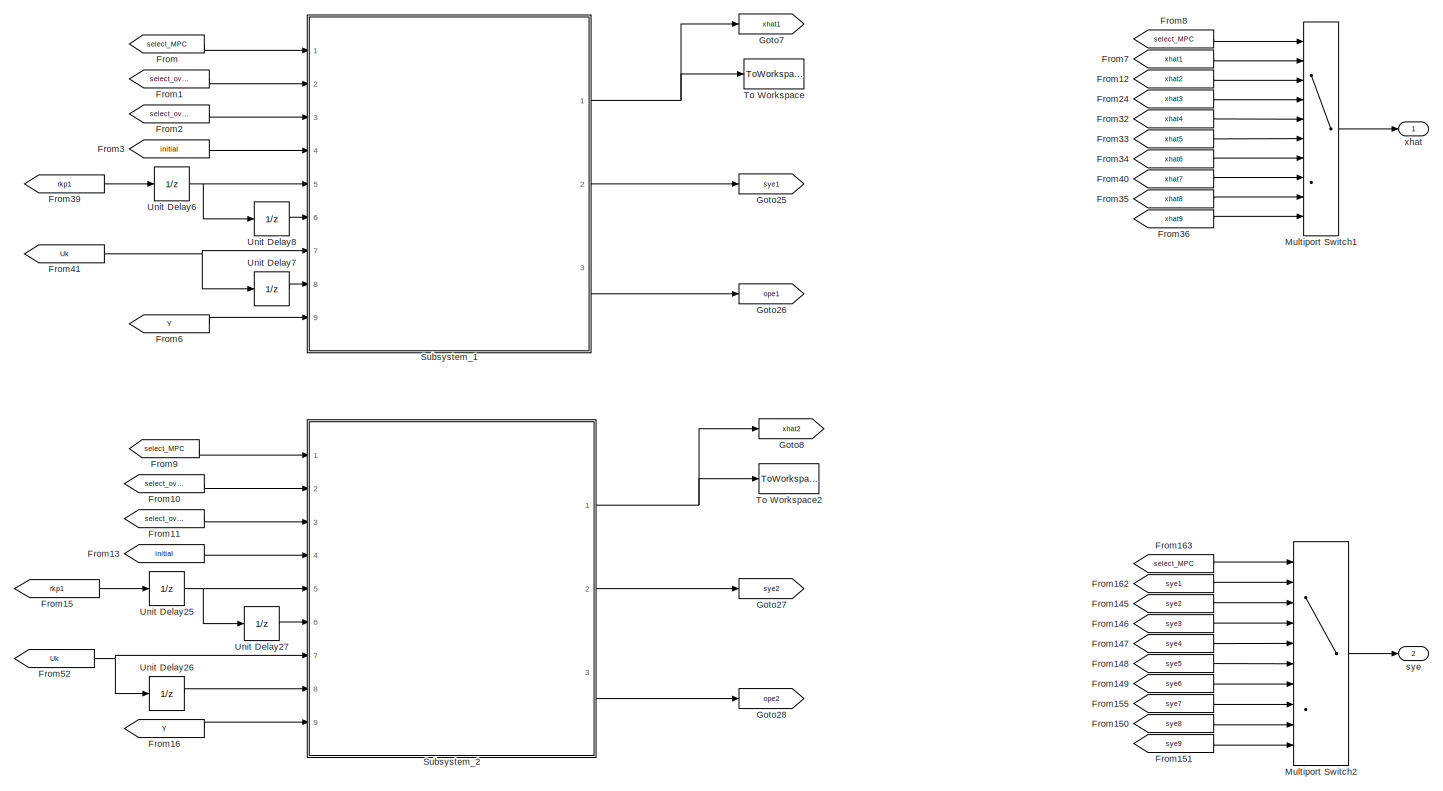
[diagram: observer_of_plant - part 1/6, full width, top band]
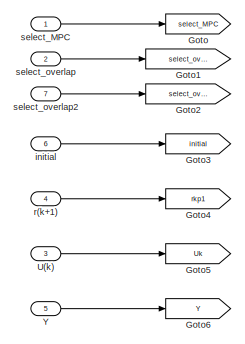
[diagram: observer_of_plant - part 2/6, top left region]
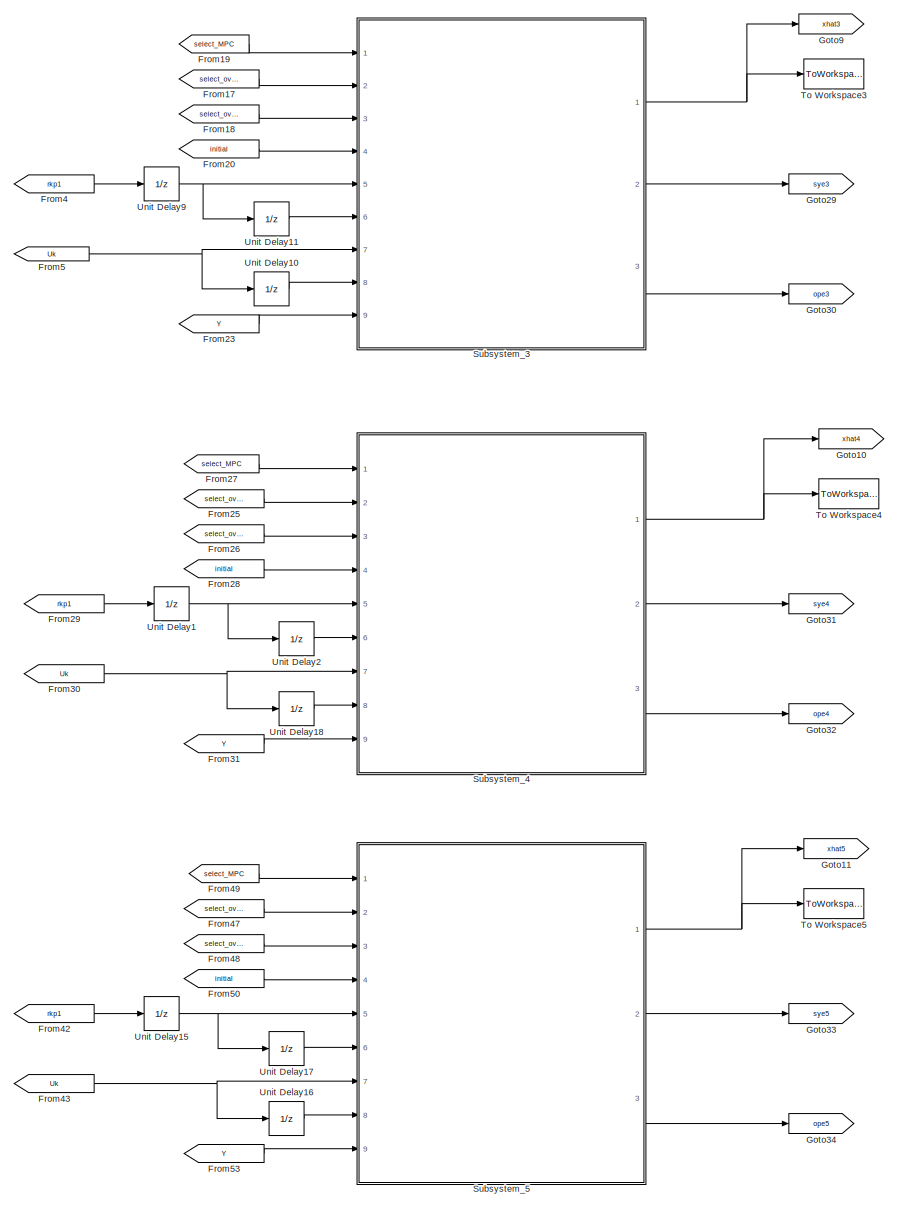
[diagram: observer_of_plant - part 3/6, central region]
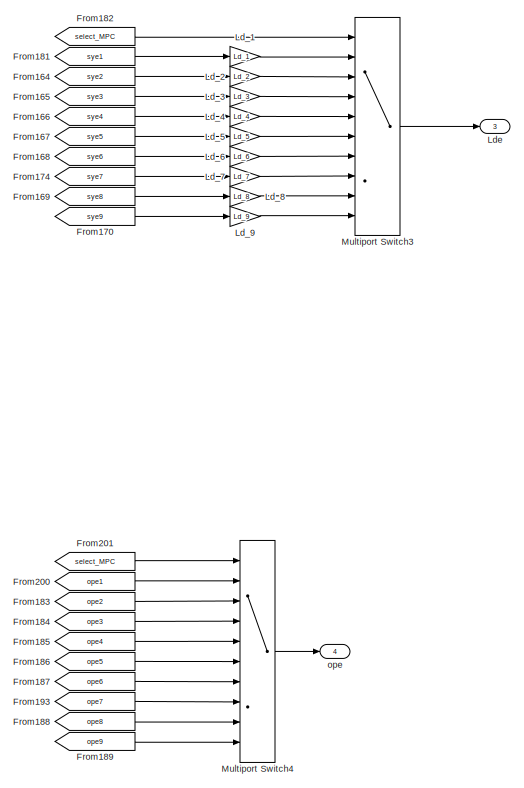
[diagram: observer_of_plant - part 4/6, middle right region]
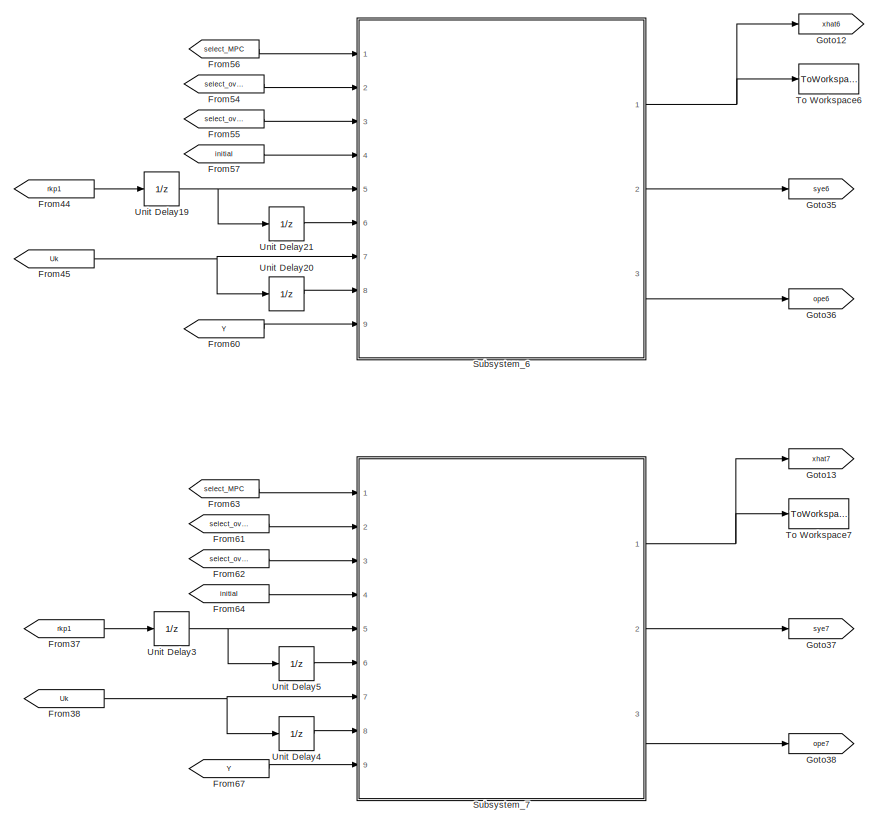
[diagram: observer_of_plant - part 5/6, central region]
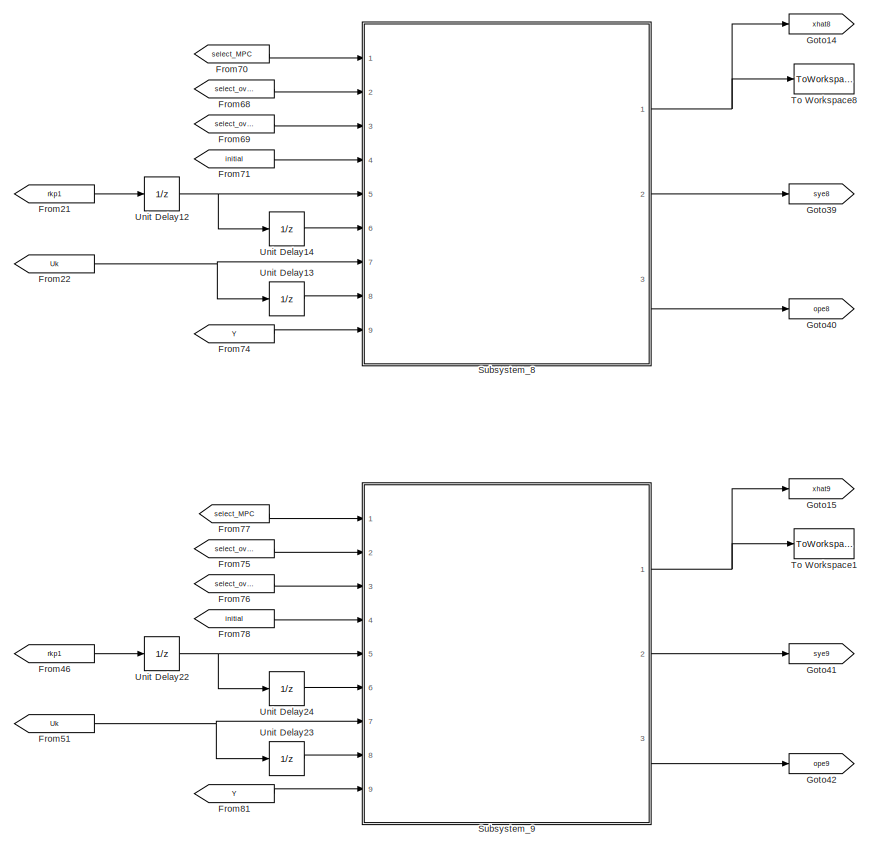
[diagram: observer_of_plant - part 6/6, bottom center region]
BLOCK [SubSystem] observer_of_plant
  Ports = [7, 4]
  RequestExecContextInheritance = off
BLOCK [From] observer_of_plant/From
  GotoTag = select_MPC
BLOCK [From] observer_of_plant/From1
  GotoTag = select_overlap
BLOCK [From] observer_of_plant/From10
  GotoTag = select_overlap
BLOCK [From] observer_of_plant/From11
  GotoTag = select_overlap2
BLOCK [From] observer_of_plant/From12
  GotoTag = xhat2
BLOCK [From] observer_of_plant/From13
  GotoTag = initial
BLOCK [From] observer_of_plant/From145
  GotoTag = sye2
BLOCK [From] observer_of_plant/From146
  GotoTag = sye3
BLOCK [From] observer_of_plant/From147
  GotoTag = sye4
BLOCK [From] observer_of_plant/From148
  GotoTag = sye5
BLOCK [From] observer_of_plant/From149
  GotoTag = sye6
BLOCK [From] observer_of_plant/From15
  GotoTag = rkp1
BLOCK [From] observer_of_plant/From150
  GotoTag = sye8
BLOCK [From] observer_of_plant/From151
  GotoTag = sye9
BLOCK [From] observer_of_plant/From155
  GotoTag = sye7
BLOCK [From] observer_of_plant/From16
  GotoTag = Y
BLOCK [From] observer_of_plant/From162
  GotoTag = sye1
BLOCK [From] observer_of_plant/From163
  GotoTag = select_MPC
BLOCK [From] observer_of_plant/From164
  GotoTag = sye2
BLOCK [From] observer_of_plant/From165
  GotoTag = sye3
BLOCK [From] observer_of_plant/From166
  GotoTag = sye4
BLOCK [From] observer_of_plant/From167
  GotoTag = sye5
BLOCK [From] observer_of_plant/From168
  GotoTag = sye6
BLOCK [From] observer_of_plant/From169
  GotoTag = sye8
BLOCK [From] observer_of_plant/From17
  GotoTag = select_overlap
BLOCK [From] observer_of_plant/From170
  GotoTag = sye9
BLOCK [From] observer_of_plant/From174
  GotoTag = sye7
BLOCK [From] observer_of_plant/From18
  GotoTag = select_overlap2
BLOCK [From] observer_of_plant/From181
  GotoTag = sye1
BLOCK [From] observer_of_plant/From182
  GotoTag = select_MPC
BLOCK [From] observer_of_plant/From183
  GotoTag = ope2
BLOCK [From] observer_of_plant/From184
  GotoTag = ope3
BLOCK [From] observer_of_plant/From185
  GotoTag = ope4
BLOCK [From] observer_of_plant/From186
  GotoTag = ope5
BLOCK [From] observer_of_plant/From187
  GotoTag = ope6
BLOCK [From] observer_of_plant/From188
  GotoTag = ope8
BLOCK [From] observer_of_plant/From189
  GotoTag = ope9
BLOCK [From] observer_of_plant/From19
  GotoTag = select_MPC
BLOCK [From] observer_of_plant/From193
  GotoTag = ope7
BLOCK [From] observer_of_plant/From2
  GotoTag = select_overlap2
BLOCK [From] observer_of_plant/From20
  GotoTag = initial
BLOCK [From] observer_of_plant/From200
  GotoTag = ope1
BLOCK [From] observer_of_plant/From201
  GotoTag = select_MPC
BLOCK [From] observer_of_plant/From21
  GotoTag = rkp1
BLOCK [From] observer_of_plant/From22
  GotoTag = Uk
BLOCK [From] observer_of_plant/From23
  GotoTag = Y
BLOCK [From] observer_of_plant/From24
  GotoTag = xhat3
BLOCK [From] observer_of_plant/From25
  GotoTag = select_overlap
BLOCK [From] observer_of_plant/From26
  GotoTag = select_overlap2
BLOCK [From] observer_of_plant/From27
  GotoTag = select_MPC
BLOCK [From] observer_of_plant/From28
  GotoTag = initial
BLOCK [From] observer_of_plant/From29
  GotoTag = rkp1
BLOCK [From] observer_of_plant/From3
  GotoTag = initial
BLOCK [From] observer_of_plant/From30
  GotoTag = Uk
BLOCK [From] observer_of_plant/From31
  GotoTag = Y
BLOCK [From] observer_of_plant/From32
  GotoTag = xhat4
BLOCK [From] observer_of_plant/From33
  GotoTag = xhat5
BLOCK [From] observer_of_plant/From34
  GotoTag = xhat6
BLOCK [From] observer_of_plant/From35
  GotoTag = xhat8
BLOCK [From] observer_of_plant/From36
  GotoTag = xhat9
BLOCK [From] observer_of_plant/From37
  GotoTag = rkp1
BLOCK [From] observer_of_plant/From38
  GotoTag = Uk
BLOCK [From] observer_of_plant/From39
  GotoTag = rkp1
BLOCK [From] observer_of_plant/From4
  GotoTag = rkp1
BLOCK [From] observer_of_plant/From40
  GotoTag = xhat7
BLOCK [From] observer_of_plant/From41
  GotoTag = Uk
BLOCK [From] observer_of_plant/From42
  GotoTag = rkp1
BLOCK [From] observer_of_plant/From43
  GotoTag = Uk
BLOCK [From] observer_of_plant/From44
  GotoTag = rkp1
BLOCK [From] observer_of_plant/From45
  GotoTag = Uk
BLOCK [From] observer_of_plant/From46
  GotoTag = rkp1
BLOCK [From] observer_of_plant/From47
  GotoTag = select_overlap
BLOCK [From] observer_of_plant/From48
  GotoTag = select_overlap2
BLOCK [From] observer_of_plant/From49
  GotoTag = select_MPC
BLOCK [From] observer_of_plant/From5
  GotoTag = Uk
BLOCK [From] observer_of_plant/From50
  GotoTag = initial
BLOCK [From] observer_of_plant/From51
  GotoTag = Uk
BLOCK [From] observer_of_plant/From52
  GotoTag = Uk
BLOCK [From] observer_of_plant/From53
  GotoTag = Y
BLOCK [From] observer_of_plant/From54
  GotoTag = select_overlap
BLOCK [From] observer_of_plant/From55
  GotoTag = select_overlap2
BLOCK [From] observer_of_plant/From56
  GotoTag = select_MPC
BLOCK [From] observer_of_plant/From57
  GotoTag = initial
BLOCK [From] observer_of_plant/From6
  GotoTag = Y
BLOCK [From] observer_of_plant/From60
  GotoTag = Y
BLOCK [From] observer_of_plant/From61
  GotoTag = select_overlap
BLOCK [From] observer_of_plant/From62
  GotoTag = select_overlap2
BLOCK [From] observer_of_plant/From63
  GotoTag = select_MPC
BLOCK [From] observer_of_plant/From64
  GotoTag = initial
BLOCK [From] observer_of_plant/From67
  GotoTag = Y
BLOCK [From] observer_of_plant/From68
  GotoTag = select_overlap
BLOCK [From] observer_of_plant/From69
  GotoTag = select_overlap2
BLOCK [From] observer_of_plant/From7
  GotoTag = xhat1
BLOCK [From] observer_of_plant/From70
  GotoTag = select_MPC
BLOCK [From] observer_of_plant/From71
  GotoTag = initial
BLOCK [From] observer_of_plant/From74
  GotoTag = Y
BLOCK [From] observer_of_plant/From75
  GotoTag = select_overlap
BLOCK [From] observer_of_plant/From76
  GotoTag = select_overlap2
BLOCK [From] observer_of_plant/From77
  GotoTag = select_MPC
BLOCK [From] observer_of_plant/From78
  GotoTag = initial
BLOCK [From] observer_of_plant/From8
  GotoTag = select_MPC
BLOCK [From] observer_of_plant/From81
  GotoTag = Y
BLOCK [From] observer_of_plant/From9
  GotoTag = select_MPC
BLOCK [Goto] observer_of_plant/Goto
  GotoTag = select_MPC
BLOCK [Goto] observer_of_plant/Goto1
  GotoTag = select_overlap
BLOCK [Goto] observer_of_plant/Goto10
  GotoTag = xhat4
BLOCK [Goto] observer_of_plant/Goto11
  GotoTag = xhat5
BLOCK [Goto] observer_of_plant/Goto12
  GotoTag = xhat6
BLOCK [Goto] observer_of_plant/Goto13
  GotoTag = xhat7
BLOCK [Goto] observer_of_plant/Goto14
  GotoTag = xhat8
BLOCK [Goto] observer_of_plant/Goto15
  GotoTag = xhat9
BLOCK [Goto] observer_of_plant/Goto2
  GotoTag = select_overlap2
BLOCK [Goto] observer_of_plant/Goto25
  GotoTag = sye1
BLOCK [Goto] observer_of_plant/Goto26
  GotoTag = ope1
BLOCK [Goto] observer_of_plant/Goto27
  GotoTag = sye2
BLOCK [Goto] observer_of_plant/Goto28
  GotoTag = ope2
BLOCK [Goto] observer_of_plant/Goto29
  GotoTag = sye3
BLOCK [Goto] observer_of_plant/Goto3
  GotoTag = initial
BLOCK [Goto] observer_of_plant/Goto30
  GotoTag = ope3
BLOCK [Goto] observer_of_plant/Goto31
  GotoTag = sye4
BLOCK [Goto] observer_of_plant/Goto32
  GotoTag = ope4
BLOCK [Goto] observer_of_plant/Goto33
  GotoTag = sye5
BLOCK [Goto] observer_of_plant/Goto34
  GotoTag = ope5
BLOCK [Goto] observer_of_plant/Goto35
  GotoTag = sye6
BLOCK [Goto] observer_of_plant/Goto36
  GotoTag = ope6
BLOCK [Goto] observer_of_plant/Goto37
  GotoTag = sye7
BLOCK [Goto] observer_of_plant/Goto38
  GotoTag = ope7
BLOCK [Goto] observer_of_plant/Goto39
  GotoTag = sye8
BLOCK [Goto] observer_of_plant/Goto4
  GotoTag = rkp1
BLOCK [Goto] observer_of_plant/Goto40
  GotoTag = ope8
BLOCK [Goto] observer_of_plant/Goto41
  GotoTag = sye9
BLOCK [Goto] observer_of_plant/Goto42
  GotoTag = ope9
BLOCK [Goto] observer_of_plant/Goto5
  GotoTag = Uk
BLOCK [Goto] observer_of_plant/Goto6
  GotoTag = Y
BLOCK [Goto] observer_of_plant/Goto7
  GotoTag = xhat1
BLOCK [Goto] observer_of_plant/Goto8
  GotoTag = xhat2
BLOCK [Goto] observer_of_plant/Goto9
  GotoTag = xhat3
BLOCK [Gain] observer_of_plant/Ld_1
  Gain = Ld_1
  Multiplication = Matrix(K*u) (u vector)
  OutDataTypeStr = Inherit: Inherit via internal rule
  ParamDataTypeStr = Inherit: Inherit via internal rule
  SaturateOnIntegerOverflow = off
BLOCK [Gain] observer_of_plant/Ld_2
  Gain = Ld_2
  Multiplication = Matrix(K*u) (u vector)
  OutDataTypeStr = Inherit: Inherit via internal rule
  ParamDataTypeStr = Inherit: Inherit via internal rule
  SaturateOnIntegerOverflow = off
BLOCK [Gain] observer_of_plant/Ld_3
  Gain = Ld_3
  Multiplication = Matrix(K*u) (u vector)
  OutDataTypeStr = Inherit: Inherit via internal rule
  ParamDataTypeStr = Inherit: Inherit via internal rule
  SaturateOnIntegerOverflow = off
BLOCK [Gain] observer_of_plant/Ld_4
  Gain = Ld_4
  Multiplication = Matrix(K*u) (u vector)
  OutDataTypeStr = Inherit: Inherit via internal rule
  ParamDataTypeStr = Inherit: Inherit via internal rule
  SaturateOnIntegerOverflow = off
BLOCK [Gain] observer_of_plant/Ld_5
  Gain = Ld_5
  Multiplication = Matrix(K*u) (u vector)
  OutDataTypeStr = Inherit: Inherit via internal rule
  ParamDataTypeStr = Inherit: Inherit via internal rule
  SaturateOnIntegerOverflow = off
BLOCK [Gain] observer_of_plant/Ld_6
  Gain = Ld_6
  Multiplication = Matrix(K*u) (u vector)
  OutDataTypeStr = Inherit: Inherit via internal rule
  ParamDataTypeStr = Inherit: Inherit via internal rule
  SaturateOnIntegerOverflow = off
BLOCK [Gain] observer_of_plant/Ld_7
  Gain = Ld_7
  Multiplication = Matrix(K*u) (u vector)
  OutDataTypeStr = Inherit: Inherit via internal rule
  ParamDataTypeStr = Inherit: Inherit via internal rule
  SaturateOnIntegerOverflow = off
BLOCK [Gain] observer_of_plant/Ld_8
  Gain = Ld_8
  Multiplication = Matrix(K*u) (u vector)
  OutDataTypeStr = Inherit: Inherit via internal rule
  ParamDataTypeStr = Inherit: Inherit via internal rule
  SaturateOnIntegerOverflow = off
BLOCK [Gain] observer_of_plant/Ld_9
  Gain = Ld_9
  Multiplication = Matrix(K*u) (u vector)
  OutDataTypeStr = Inherit: Inherit via internal rule
  ParamDataTypeStr = Inherit: Inherit via internal rule
  SaturateOnIntegerOverflow = off
BLOCK [Outport] observer_of_plant/Lde
  IconDisplay = Port number
  Port = 3
BLOCK [MultiPortSwitch] observer_of_plant/Multiport Switch1
  DiagnosticForDefault = None
  InputSameDT = off
  Inputs = 9
  Ports = [10, 1]
  SaturateOnIntegerOverflow = off
BLOCK [MultiPortSwitch] observer_of_plant/Multiport Switch2
  DiagnosticForDefault = None
  InputSameDT = off
  Inputs = 9
  Ports = [10, 1]
  SaturateOnIntegerOverflow = off
BLOCK [MultiPortSwitch] observer_of_plant/Multiport Switch3
  DiagnosticForDefault = None
  InputSameDT = off
  Inputs = 9
  Ports = [10, 1]
  SaturateOnIntegerOverflow = off
BLOCK [MultiPortSwitch] observer_of_plant/Multiport Switch4
  DiagnosticForDefault = None
  InputSameDT = off
  Inputs = 9
  Ports = [10, 1]
  SaturateOnIntegerOverflow = off
BLOCK [SubSystem] observer_of_plant/Subsystem_1
  Ports = [9, 3]
  RequestExecContextInheritance = off
BLOCK [Demux] observer_of_plant/Subsystem_1/Demux2
  DisplayOption = bar
  Outputs = 3
  Ports = [1, 3]
BLOCK [FromWorkspace] observer_of_plant/Subsystem_1/From Workspace
  SampleTime = 0
  VariableName = flag_mod1
  ZeroCross = on
BLOCK [Inport] observer_of_plant/Subsystem_1/U(k)
  IconDisplay = Port number
  Port = 7
BLOCK [Inport] observer_of_plant/Subsystem_1/U(k-1)
  IconDisplay = Port number
  Port = 8
BLOCK [Inport] observer_of_plant/Subsystem_1/Y(k)
  IconDisplay = Port number
  Port = 9
BLOCK [SubSystem] observer_of_plant/Subsystem_1/gate1
  ErrorFcn = Stateflow.Translate.translate
  PermitHierarchicalResolution = ExplicitOnly
  Ports = [3, 2]
  RequestExecContextInheritance = off
  SFBlockType = MATLAB Function
  TreatAsAtomicUnit = on
BLOCK [Demux] observer_of_plant/Subsystem_1/gate1/ Demux 
  Outputs = 1
  Ports = [1, 1]
BLOCK [S-Function] observer_of_plant/Subsystem_1/gate1/ SFunction 
  EnableBusSupport = on
  FunctionName = sf_sfun
  PortCounts = [3 3]
  Ports = [3, 3]
  SFcnIsStateOwnerBlock = off
  SFunctionDeploymentMode = off
  Tag = Stateflow S-Function MPC_control 127
BLOCK [Terminator] observer_of_plant/Subsystem_1/gate1/ Terminator 
BLOCK [Inport] observer_of_plant/Subsystem_1/gate1/select_MPC
  IconDisplay = Port number
BLOCK [Inport] observer_of_plant/Subsystem_1/gate1/select_overlap
  IconDisplay = Port number
  Port = 2
BLOCK [Inport] observer_of_plant/Subsystem_1/gate1/select_overlap2
  IconDisplay = Port number
  Port = 3
BLOCK [Outport] observer_of_plant/Subsystem_1/gate1/state_MPC
  IconDisplay = Port number
BLOCK [Outport] observer_of_plant/Subsystem_1/gate1/state_overlap
  IconDisplay = Port number
  Port = 2
BLOCK [Inport] observer_of_plant/Subsystem_1/initial
  IconDisplay = Port number
  Port = 4
BLOCK [SubSystem] observer_of_plant/Subsystem_1/observer_of_simulator_1
  Ports = [7, 3]
  RequestExecContextInheritance = off
BLOCK [Gain] observer_of_plant/Subsystem_1/observer_of_simulator_1/Cok_1
  Gain = Cok_1
  Multiplication = Matrix(K*u) (u vector)
  OutDataTypeStr = Inherit: Inherit via internal rule
  ParamDataTypeStr = Inherit: Inherit via internal rule
  SaturateOnIntegerOverflow = off
BLOCK [Gain] observer_of_plant/Subsystem_1/observer_of_simulator_1/Cok_1*
  Gain = Cok_1
  Multiplication = Matrix(K*u) (u vector)
  OutDataTypeStr = Inherit: Inherit via internal rule
  ParamDataTypeStr = Inherit: Inherit via internal rule
  SaturateOnIntegerOverflow = off
BLOCK [Delay] observer_of_plant/Subsystem_1/observer_of_simulator_1/Delay
  DelayLength = 1
  ExternalReset = Rising
  InitialCondition = 0
  InitialConditionSource = Input port
  InputPortMap = u0,r5,p4
  Ports = [3, 1]
  SampleTime = Ts
BLOCK [Delay] observer_of_plant/Subsystem_1/observer_of_simulator_1/Delay1
  DelayLength = 1
  ExternalReset = Rising
  InitialCondition = 0
  InitialConditionSource = Input port
  InputPortMap = u0,r5,p4
  Ports = [3, 1]
  SampleTime = Ts
BLOCK [Gain] observer_of_plant/Subsystem_1/observer_of_simulator_1/Gd_1
  Gain = Gd_1
  Multiplication = Matrix(K*u) (u vector)
  OutDataTypeStr = Inherit: Inherit via internal rule
  ParamDataTypeStr = Inherit: Inherit via internal rule
  SaturateOnIntegerOverflow = off
BLOCK [Gain] observer_of_plant/Subsystem_1/observer_of_simulator_1/Gok_1
  Gain = Gok_1
  Multiplication = Matrix(K*u) (u vector)
  OutDataTypeStr = Inherit: Inherit via internal rule
  ParamDataTypeStr = Inherit: Inherit via internal rule
  SaturateOnIntegerOverflow = off
BLOCK [Gain] observer_of_plant/Subsystem_1/observer_of_simulator_1/Hd_1
  Gain = Hd_1
  Multiplication = Matrix(K*u) (u vector)
  OutDataTypeStr = Inherit: Inherit via internal rule
  ParamDataTypeStr = Inherit: Inherit via internal rule
  SaturateOnIntegerOverflow = off
BLOCK [Gain] observer_of_plant/Subsystem_1/observer_of_simulator_1/Hok_1
  Gain = Hok_1
  Multiplication = Matrix(K*u) (u vector)
  OutDataTypeStr = Inherit: Inherit via internal rule
  ParamDataTypeStr = Inherit: Inherit via internal rule
  SaturateOnIntegerOverflow = off
BLOCK [Gain] observer_of_plant/Subsystem_1/observer_of_simulator_1/Ld_1
  Gain = Ld_1
  Multiplication = Matrix(K*u) (u vector)
  OutDataTypeStr = Inherit: Inherit via internal rule
  ParamDataTypeStr = Inherit: Inherit via internal rule
  SaturateOnIntegerOverflow = off
BLOCK [Gain] observer_of_plant/Subsystem_1/observer_of_simulator_1/Ld_1*
  Gain = Ld_1
  Multiplication = Matrix(K*u) (u vector)
  OutDataTypeStr = Inherit: Inherit via internal rule
  ParamDataTypeStr = Inherit: Inherit via internal rule
  SaturateOnIntegerOverflow = off
BLOCK [Sum] observer_of_plant/Subsystem_1/observer_of_simulator_1/Sum
  IconShape = round
  InputSameDT = off
  Inputs = |-+
  OutDataTypeStr = Inherit: Inherit via internal rule
  Ports = [2, 1]
  SaturateOnIntegerOverflow = off
BLOCK [Sum] observer_of_plant/Subsystem_1/observer_of_simulator_1/Sum1
  IconShape = round
  InputSameDT = off
  OutDataTypeStr = Inherit: Inherit via internal rule
  Ports = [2, 1]
  SaturateOnIntegerOverflow = off
BLOCK [Sum] observer_of_plant/Subsystem_1/observer_of_simulator_1/Sum2
  IconShape = round
  InputSameDT = off
  Inputs = |-+
  OutDataTypeStr = Inherit: Inherit via internal rule
  Ports = [2, 1]
  SaturateOnIntegerOverflow = off
BLOCK [Sum] observer_of_plant/Subsystem_1/observer_of_simulator_1/Sum4
  IconShape = round
  InputSameDT = off
  Inputs = +++
  OutDataTypeStr = Inherit: Inherit via internal rule
  Ports = [3, 1]
  SaturateOnIntegerOverflow = off
BLOCK [Switch] observer_of_plant/Subsystem_1/observer_of_simulator_1/Switch1
  InputSameDT = off
  SaturateOnIntegerOverflow = off
  Threshold = 1
BLOCK [Switch] observer_of_plant/Subsystem_1/observer_of_simulator_1/Switch2
  InputSameDT = off
  SaturateOnIntegerOverflow = off
  Threshold = 1
BLOCK [Inport] observer_of_plant/Subsystem_1/observer_of_simulator_1/U
  IconDisplay = Port number
  Port = 3
BLOCK [Inport] observer_of_plant/Subsystem_1/observer_of_simulator_1/U(k-1)
  IconDisplay = Port number
  Port = 4
BLOCK [Inport] observer_of_plant/Subsystem_1/observer_of_simulator_1/U_overlap
  IconDisplay = Port number
  Port = 2
BLOCK [Inport] observer_of_plant/Subsystem_1/observer_of_simulator_1/Y
  IconDisplay = Port number
  Port = 6
BLOCK [Inport] observer_of_plant/Subsystem_1/observer_of_simulator_1/Y_overlap
  IconDisplay = Port number
  Port = 5
BLOCK [Outport] observer_of_plant/Subsystem_1/observer_of_simulator_1/ope
  IconDisplay = Port number
  Port = 3
BLOCK [Inport] observer_of_plant/Subsystem_1/observer_of_simulator_1/r(k-1)
  IconDisplay = Port number
  Port = 7
BLOCK [Inport] observer_of_plant/Subsystem_1/observer_of_simulator_1/select_overlap
  IconDisplay = Port number
BLOCK [Outport] observer_of_plant/Subsystem_1/observer_of_simulator_1/sye
  IconDisplay = Port number
  Port = 2
BLOCK [Outport] observer_of_plant/Subsystem_1/observer_of_simulator_1/xhat
  IconDisplay = Port number
BLOCK [Outport] observer_of_plant/Subsystem_1/ope
  IconDisplay = Port number
  Port = 3
BLOCK [Inport] observer_of_plant/Subsystem_1/r(k)
  IconDisplay = Port number
  Port = 5
BLOCK [Inport] observer_of_plant/Subsystem_1/r(k-1)
  IconDisplay = Port number
  Port = 6
BLOCK [Inport] observer_of_plant/Subsystem_1/select_MPC
  IconDisplay = Port number
BLOCK [Inport] observer_of_plant/Subsystem_1/select_overlap
  IconDisplay = Port number
  Port = 2
BLOCK [Inport] observer_of_plant/Subsystem_1/select_overlap2
  IconDisplay = Port number
  Port = 3
BLOCK [SubSystem] observer_of_plant/Subsystem_1/simulator_1
  Ports = [9, 2, 1]
  RequestExecContextInheritance = off
BLOCK [Gain] observer_of_plant/Subsystem_1/simulator_1/Cok_1
  Gain = Cok_1
  Multiplication = Matrix(K*u) (u vector)
  OutDataTypeStr = Inherit: Inherit via internal rule
  ParamDataTypeStr = Inherit: Inherit via internal rule
  SaturateOnIntegerOverflow = off
BLOCK [Gain] observer_of_plant/Subsystem_1/simulator_1/Cok_1*
  Gain = Cok_1
  Multiplication = Matrix(K*u) (u vector)
  OutDataTypeStr = Inherit: Inherit via internal rule
  ParamDataTypeStr = Inherit: Inherit via internal rule
  SaturateOnIntegerOverflow = off
BLOCK [Gain] observer_of_plant/Subsystem_1/simulator_1/Cout_1
  Gain = Cout_1
  Multiplication = Matrix(K*u) (u vector)
  OutDataTypeStr = Inherit: Inherit via internal rule
  ParamDataTypeStr = Inherit: Inherit via internal rule
  SaturateOnIntegerOverflow = off
BLOCK [Demux] observer_of_plant/Subsystem_1/simulator_1/Demux
  DisplayOption = bar
  Outputs = 2
  Ports = [1, 2]
BLOCK [Gain] observer_of_plant/Subsystem_1/simulator_1/Dout_1
  Gain = Dout_1
  Multiplication = Matrix(K*u) (u vector)
  OutDataTypeStr = Inherit: Inherit via internal rule
  ParamDataTypeStr = Inherit: Inherit via internal rule
  SaturateOnIntegerOverflow = off
BLOCK [EnablePort] observer_of_plant/Subsystem_1/simulator_1/Enable
  Ports = []
BLOCK [Gain] observer_of_plant/Subsystem_1/simulator_1/Gok_1
  Gain = Gok_1
  Multiplication = Matrix(K*u) (u vector)
  OutDataTypeStr = Inherit: Inherit via internal rule
  ParamDataTypeStr = Inherit: Inherit via internal rule
  SaturateOnIntegerOverflow = off
BLOCK [Gain] observer_of_plant/Subsystem_1/simulator_1/Gok_1*
  Gain = Gok_1
  Multiplication = Matrix(K*u) (u vector)
  OutDataTypeStr = Inherit: Inherit via internal rule
  ParamDataTypeStr = Inherit: Inherit via internal rule
  SaturateOnIntegerOverflow = off
BLOCK [Gain] observer_of_plant/Subsystem_1/simulator_1/Hok_1
  Gain = Hok_1
  Multiplication = Matrix(K*u) (u vector)
  OutDataTypeStr = Inherit: Inherit via internal rule
  ParamDataTypeStr = Inherit: Inherit via internal rule
  SaturateOnIntegerOverflow = off
BLOCK [Gain] observer_of_plant/Subsystem_1/simulator_1/Hok_1*
  Gain = Hok_1
  Multiplication = Matrix(K*u) (u vector)
  OutDataTypeStr = Inherit: Inherit via internal rule
  ParamDataTypeStr = Inherit: Inherit via internal rule
  SaturateOnIntegerOverflow = off
BLOCK [Inport] observer_of_plant/Subsystem_1/simulator_1/Initial HeadingAngles
  IconDisplay = Port number
  Port = 5
BLOCK [Inport] observer_of_plant/Subsystem_1/simulator_1/Initial Velocities
  IconDisplay = Port number
  Port = 4
BLOCK [Inport] observer_of_plant/Subsystem_1/simulator_1/Initial position
  IconDisplay = Port number
  Port = 3
BLOCK [Gain] observer_of_plant/Subsystem_1/simulator_1/Ld_1
  Gain = Ld_1
  Multiplication = Matrix(K*u) (u vector)
  OutDataTypeStr = Inherit: Inherit via internal rule
  ParamDataTypeStr = Inherit: Inherit via internal rule
  SaturateOnIntegerOverflow = off
BLOCK [Gain] observer_of_plant/Subsystem_1/simulator_1/Ld_1*
  Gain = Ld_1
  Multiplication = Matrix(K*u) (u vector)
  OutDataTypeStr = Inherit: Inherit via internal rule
  ParamDataTypeStr = Inherit: Inherit via internal rule
  SaturateOnIntegerOverflow = off
BLOCK [Gain] observer_of_plant/Subsystem_1/simulator_1/Ld_1**
  Gain = Ld_1
  Multiplication = Matrix(K*u) (u vector)
  OutDataTypeStr = Inherit: Inherit via internal rule
  ParamDataTypeStr = Inherit: Inherit via internal rule
  SaturateOnIntegerOverflow = off
BLOCK [SubSystem] observer_of_plant/Subsystem_1/simulator_1/MPC_of_simulator_1
  Ports = [6, 2]
  RequestExecContextInheritance = off
BLOCK [Clock] observer_of_plant/Subsystem_1/simulator_1/MPC_of_simulator_1/Clock
  Decimation = 1
BLOCK [Constant] observer_of_plant/Subsystem_1/simulator_1/MPC_of_simulator_1/Constant1
  SampleTime = -1
  Value = M
  VectorParams1D = off
BLOCK [Constant] observer_of_plant/Subsystem_1/simulator_1/MPC_of_simulator_1/Constant2
  SampleTime = -1
  Value = Np
BLOCK [Constant] observer_of_plant/Subsystem_1/simulator_1/MPC_of_simulator_1/Constant3
  SampleTime = -1
  Value = JE_1
  VectorParams1D = off
BLOCK [Constant] observer_of_plant/Subsystem_1/simulator_1/MPC_of_simulator_1/Constant4
  SampleTime = -1
  Value = Qc_1
  VectorParams1D = off
BLOCK [Constant] observer_of_plant/Subsystem_1/simulator_1/MPC_of_simulator_1/Constant5
  SampleTime = -1
  Value = phi_1
  VectorParams1D = off
BLOCK [Gain] observer_of_plant/Subsystem_1/simulator_1/MPC_of_simulator_1/F_Middle
  Gain = F_1
  Multiplication = Matrix(K*u) (u vector)
  OutDataTypeStr = Inherit: Inherit via internal rule
  ParamDataTypeStr = Inherit: Inherit via internal rule
  SaturateOnIntegerOverflow = off
BLOCK [FromWorkspace] observer_of_plant/Subsystem_1/simulator_1/MPC_of_simulator_1/From Workspace6
  SampleTime = Ts
  VariableName = Rs
  ZeroCross = on
BLOCK [SubSystem] observer_of_plant/Subsystem_1/simulator_1/MPC_of_simulator_1/HQP
  ErrorFcn = Stateflow.Translate.translate
  PermitHierarchicalResolution = ExplicitOnly
  Ports = [12, 2]
  RequestExecContextInheritance = off
  SFBlockType = MATLAB Function
  SystemSampleTime = Ts
  TreatAsAtomicUnit = on
BLOCK [Demux] observer_of_plant/Subsystem_1/simulator_1/MPC_of_simulator_1/HQP/ Demux 
  Outputs = 1
  Ports = [1, 1]
BLOCK [S-Function] observer_of_plant/Subsystem_1/simulator_1/MPC_of_simulator_1/HQP/ SFunction 
  EnableBusSupport = on
  FunctionName = sf_sfun
  PortCounts = [12 3]
  Ports = [12, 3]
  SFcnIsStateOwnerBlock = off
  SFunctionDeploymentMode = off
  Tag = Stateflow S-Function MPC_control 111
BLOCK [Terminator] observer_of_plant/Subsystem_1/simulator_1/MPC_of_simulator_1/HQP/ Terminator 
BLOCK [Inport] observer_of_plant/Subsystem_1/simulator_1/MPC_of_simulator_1/HQP/Fxh
  IconDisplay = Port number
  Port = 3
BLOCK [Inport] observer_of_plant/Subsystem_1/simulator_1/MPC_of_simulator_1/HQP/Heading_updated
  IconDisplay = Port number
  Port = 7
BLOCK [Inport] observer_of_plant/Subsystem_1/simulator_1/MPC_of_simulator_1/HQP/JE
  IconDisplay = Port number
BLOCK [Inport] observer_of_plant/Subsystem_1/simulator_1/MPC_of_simulator_1/HQP/M
  IconDisplay = Port number
  Port = 5
BLOCK [Inport] observer_of_plant/Subsystem_1/simulator_1/MPC_of_simulator_1/HQP/Np
  IconDisplay = Port number
  Port = 6
BLOCK [Inport] observer_of_plant/Subsystem_1/simulator_1/MPC_of_simulator_1/HQP/Qc
  IconDisplay = Port number
  Port = 4
BLOCK [Inport] observer_of_plant/Subsystem_1/simulator_1/MPC_of_simulator_1/HQP/Rs
  IconDisplay = Port number
  Port = 9
BLOCK [Inport] observer_of_plant/Subsystem_1/simulator_1/MPC_of_simulator_1/HQP/Tsim
  IconDisplay = Port number
  Port = 10
BLOCK [Outport] observer_of_plant/Subsystem_1/simulator_1/MPC_of_simulator_1/HQP/U
  IconDisplay = Port number
  Port = 2
BLOCK [Inport] observer_of_plant/Subsystem_1/simulator_1/MPC_of_simulator_1/HQP/U_delay
  IconDisplay = Port number
  Port = 12
BLOCK [Inport] observer_of_plant/Subsystem_1/simulator_1/MPC_of_simulator_1/HQP/Velocity_updated
  IconDisplay = Port number
  Port = 8
BLOCK [Inport] observer_of_plant/Subsystem_1/simulator_1/MPC_of_simulator_1/HQP/phi
  IconDisplay = Port number
  Port = 2
BLOCK [Outport] observer_of_plant/Subsystem_1/simulator_1/MPC_of_simulator_1/HQP/r
  IconDisplay = Port number
BLOCK [Inport] observer_of_plant/Subsystem_1/simulator_1/MPC_of_simulator_1/HQP/select_MPC
  IconDisplay = Port number
  Port = 11
BLOCK [Inport] observer_of_plant/Subsystem_1/simulator_1/MPC_of_simulator_1/Heading_updated
  IconDisplay = Port number
  LockScale = on
  Port = 2
  SampleTime = Ts
  VarSizeSig = No
BLOCK [Delay] observer_of_plant/Subsystem_1/simulator_1/MPC_of_simulator_1/Resettable Delay2
  DelayLength = 1
  ExternalReset = Rising
  InitialConditionSource = Input port
  InputPortMap = u0,r5,p4
  Ports = [3, 1]
  SampleTime = Ts
BLOCK [Outport] observer_of_plant/Subsystem_1/simulator_1/MPC_of_simulator_1/U
  IconDisplay = Port number
  Port = 2
BLOCK [Inport] observer_of_plant/Subsystem_1/simulator_1/MPC_of_simulator_1/U(k-1)
  IconDisplay = Port number
  LockScale = on
  Port = 4
  SampleTime = Ts
  VarSizeSig = No
BLOCK [Inport] observer_of_plant/Subsystem_1/simulator_1/MPC_of_simulator_1/Velocity_updated
  IconDisplay = Port number
  LockScale = on
  SampleTime = Ts
  VarSizeSig = No
BLOCK [Inport] observer_of_plant/Subsystem_1/simulator_1/MPC_of_simulator_1/Xhat
  IconDisplay = Port number
  Port = 3
BLOCK [Outport] observer_of_plant/Subsystem_1/simulator_1/MPC_of_simulator_1/r(k+1)
  IconDisplay = Port number
BLOCK [Inport] observer_of_plant/Subsystem_1/simulator_1/MPC_of_simulator_1/select_MPC
  IconDisplay = Port number
  LockScale = on
  Port = 5
  SampleTime = Ts
  VarSizeSig = No
BLOCK [Inport] observer_of_plant/Subsystem_1/simulator_1/MPC_of_simulator_1/select_overlap
  IconDisplay = Port number
  LockScale = on
  Port = 6
  SampleTime = Ts
  VarSizeSig = No
BLOCK [Delay] observer_of_plant/Subsystem_1/simulator_1/Resettable Delay
  DelayLength = 1
  ExternalReset = Rising
  InitialConditionSource = Input port
  InputPortMap = u0,r5,p4
  Ports = [3, 1]
  SampleTime = Ts
BLOCK [Delay] observer_of_plant/Subsystem_1/simulator_1/Resettable Delay1
  DelayLength = 1
  ExternalReset = Rising
  InitialConditionSource = Input port
  InputPortMap = u0,r5,p4
  Ports = [3, 1]
  SampleTime = Ts
BLOCK [Delay] observer_of_plant/Subsystem_1/simulator_1/Resettable Delay2
  DelayLength = 1
  ExternalReset = Rising
  InitialConditionSource = Input port
  InputPortMap = u0,r5,p4
  Ports = [3, 1]
  SampleTime = Ts
BLOCK [Sum] observer_of_plant/Subsystem_1/simulator_1/Sum1
  IconShape = round
  InputSameDT = off
  Inputs = +++
  OutDataTypeStr = Inherit: Inherit via internal rule
  Ports = [3, 1]
  SaturateOnIntegerOverflow = off
BLOCK [Sum] observer_of_plant/Subsystem_1/simulator_1/Sum2
  IconShape = round
  InputSameDT = off
  Inputs = +++
  OutDataTypeStr = Inherit: Inherit via internal rule
  Ports = [3, 1]
  SaturateOnIntegerOverflow = off
BLOCK [Sum] observer_of_plant/Subsystem_1/simulator_1/Sum6
  IconShape = round
  InputSameDT = off
  OutDataTypeStr = Inherit: Inherit via internal rule
  Ports = [2, 1]
  SaturateOnIntegerOverflow = off
BLOCK [Sum] observer_of_plant/Subsystem_1/simulator_1/Sum7
  IconShape = round
  InputSameDT = off
  Inputs = -+
  OutDataTypeStr = Inherit: Inherit via internal rule
  Ports = [2, 1]
  SaturateOnIntegerOverflow = off
BLOCK [Inport] observer_of_plant/Subsystem_1/simulator_1/U(k-1)
  IconDisplay = Port number
  Port = 8
BLOCK [Outport] observer_of_plant/Subsystem_1/simulator_1/U_overlap
  IconDisplay = Port number
  Port = 2
BLOCK [SubSystem] observer_of_plant/Subsystem_1/simulator_1/VH2P
  Ports = [6, 1]
  RequestExecContextInheritance = off
BLOCK [FromWorkspace] observer_of_plant/Subsystem_1/simulator_1/VH2P/From Workspace1
  SampleTime = Ts
  VariableName = Tsim
  ZeroCross = on
BLOCK [Inport] observer_of_plant/Subsystem_1/simulator_1/VH2P/HeadingAngles
  IconDisplay = Port number
  Port = 2
BLOCK [Inport] observer_of_plant/Subsystem_1/simulator_1/VH2P/Iintial HeadingAngles
  IconDisplay = Port number
  Port = 5
BLOCK [Inport] observer_of_plant/Subsystem_1/simulator_1/VH2P/Iintial Velocities
  IconDisplay = Port number
  Port = 4
BLOCK [Inport] observer_of_plant/Subsystem_1/simulator_1/VH2P/Initial position
  IconDisplay = Port number
  Port = 3
BLOCK [Outport] observer_of_plant/Subsystem_1/simulator_1/VH2P/Position
  IconDisplay = Port number
BLOCK [Delay] observer_of_plant/Subsystem_1/simulator_1/VH2P/Resettable Delay1
  DelayLength = 1
  ExternalReset = Rising
  InitialConditionSource = Input port
  InputPortMap = u0,r5,p4
  Ports = [3, 1]
  SampleTime = Ts
BLOCK [Delay] observer_of_plant/Subsystem_1/simulator_1/VH2P/Resettable Delay2
  DelayLength = 1
  ExternalReset = Rising
  InitialConditionSource = Input port
  InputPortMap = u0,r5,p4
  Ports = [3, 1]
  SampleTime = Ts
BLOCK [Delay] observer_of_plant/Subsystem_1/simulator_1/VH2P/Resettable Delay3
  DelayLength = 1
  ExternalReset = Rising
  InitialConditionSource = Input port
  InputPortMap = u0,r5,p4
  Ports = [3, 1]
  SampleTime = Ts
BLOCK [UnitDelay] observer_of_plant/Subsystem_1/simulator_1/VH2P/Unit Delay2
  InputProcessing = Elements as channels (sample based)
  SampleTime = Ts
BLOCK [Inport] observer_of_plant/Subsystem_1/simulator_1/VH2P/Velocities
  IconDisplay = Port number
BLOCK [SubSystem] observer_of_plant/Subsystem_1/simulator_1/VH2P/YV2P
  ErrorFcn = Stateflow.Translate.translate
  PermitHierarchicalResolution = ExplicitOnly
  Ports = [7, 1]
  RequestExecContextInheritance = off
  SFBlockType = MATLAB Function
  SystemSampleTime = Ts
  TreatAsAtomicUnit = on
BLOCK [Demux] observer_of_plant/Subsystem_1/simulator_1/VH2P/YV2P/ Demux 
  Outputs = 1
  Ports = [1, 1]
BLOCK [S-Function] observer_of_plant/Subsystem_1/simulator_1/VH2P/YV2P/ SFunction 
  EnableBusSupport = on
  FunctionName = sf_sfun
  PortCounts = [7 2]
  Ports = [7, 2]
  SFcnIsStateOwnerBlock = off
  SFunctionDeploymentMode = off
  Tag = Stateflow S-Function MPC_control 109
BLOCK [Terminator] observer_of_plant/Subsystem_1/simulator_1/VH2P/YV2P/ Terminator 
BLOCK [Inport] observer_of_plant/Subsystem_1/simulator_1/VH2P/YV2P/Heading
  IconDisplay = Port number
  Port = 3
BLOCK [Inport] observer_of_plant/Subsystem_1/simulator_1/VH2P/YV2P/LastHeading
  IconDisplay = Port number
  Port = 4
BLOCK [Inport] observer_of_plant/Subsystem_1/simulator_1/VH2P/YV2P/LastTsim
  IconDisplay = Port number
  Port = 6
BLOCK [Inport] observer_of_plant/Subsystem_1/simulator_1/VH2P/YV2P/LastVelocity
  IconDisplay = Port number
  Port = 2
BLOCK [Inport] observer_of_plant/Subsystem_1/simulator_1/VH2P/YV2P/Lastpostion
  IconDisplay = Port number
  Port = 7
BLOCK [Outport] observer_of_plant/Subsystem_1/simulator_1/VH2P/YV2P/Position
  IconDisplay = Port number
BLOCK [Inport] observer_of_plant/Subsystem_1/simulator_1/VH2P/YV2P/Tsim
  IconDisplay = Port number
  Port = 5
BLOCK [Inport] observer_of_plant/Subsystem_1/simulator_1/VH2P/YV2P/Velocity
  IconDisplay = Port number
BLOCK [Inport] observer_of_plant/Subsystem_1/simulator_1/VH2P/select_overlap
  IconDisplay = Port number
  Port = 6
BLOCK [SubSystem] observer_of_plant/Subsystem_1/simulator_1/YV_update
  Ports = [3, 2]
  RequestExecContextInheritance = off
  TreatAsAtomicUnit = on
BLOCK [Constant] observer_of_plant/Subsystem_1/simulator_1/YV_update/Constant
  SampleTime = Ts
  Value = Ts
BLOCK [DiscreteIntegrator] observer_of_plant/Subsystem_1/simulator_1/YV_update/Discrete-Time Integrator
  Commented = on
  ICPrevOutput = DiscIntNeverNeededParam
  ICPrevScaledInput = DiscIntNeverNeededParam
  InitialConditionSetting = Auto
  Ports = [1, 1]
  SampleTime = Ts
BLOCK [FromWorkspace] observer_of_plant/Subsystem_1/simulator_1/YV_update/From Workspace1
  SampleTime = Ts
  VariableName = Tsim
  ZeroCross = on
BLOCK [FromWorkspace] observer_of_plant/Subsystem_1/simulator_1/YV_update/From Workspace3
  SampleTime = Ts
  VariableName = XYplot_ref
  ZeroCross = on
BLOCK [Gain] observer_of_plant/Subsystem_1/simulator_1/YV_update/Gain
  Commented = on
  Gain = [eye(2), zeros(2,10)]
  Multiplication = Matrix(K*u) (u vector)
  OutDataTypeStr = Inherit: Inherit via internal rule
  ParamDataTypeStr = Inherit: Inherit via internal rule
  SaturateOnIntegerOverflow = off
BLOCK [Inport] observer_of_plant/Subsystem_1/simulator_1/YV_update/Heading_sim
  IconDisplay = Port number
  Port = 3
BLOCK [Outport] observer_of_plant/Subsystem_1/simulator_1/YV_update/Heading_updated
  IconDisplay = Port number
  Port = 2
BLOCK [Mux] observer_of_plant/Subsystem_1/simulator_1/YV_update/Mux
  Commented = on
  DisplayOption = bar
  Inputs = 2
  Ports = [2, 1]
BLOCK [Reference] observer_of_plant/Subsystem_1/simulator_1/YV_update/Pure Pursuit  REF=robotalgslib/Pure Pursuit
  Commented = on
  Ports = [2, 2]
  SourceBlock = robotalgslib/Pure Pursuit
  SourceProductBaseCode = RO
  SourceProductName = Robotics System Toolbox
  SourceType = robotics.slalgs.internal.PurePursuit
BLOCK [Math] observer_of_plant/Subsystem_1/simulator_1/YV_update/Transpose
  Commented = on
  Operator = transpose
  Ports = [1, 1]
BLOCK [Inport] observer_of_plant/Subsystem_1/simulator_1/YV_update/Velocity_sim
  IconDisplay = Port number
  Port = 2
BLOCK [Outport] observer_of_plant/Subsystem_1/simulator_1/YV_update/Velocity_updated
  IconDisplay = Port number
BLOCK [Inport] observer_of_plant/Subsystem_1/simulator_1/YV_update/XY_sim
  IconDisplay = Port number
BLOCK [SubSystem] observer_of_plant/Subsystem_1/simulator_1/YV_update/YV_update
  ErrorFcn = Stateflow.Translate.translate
  PermitHierarchicalResolution = ExplicitOnly
  Ports = [6, 2]
  RequestExecContextInheritance = off
  SFBlockType = MATLAB Function
  SystemSampleTime = Ts
  TreatAsAtomicUnit = on
BLOCK [Demux] observer_of_plant/Subsystem_1/simulator_1/YV_update/YV_update/ Demux 
  Outputs = 1
  Ports = [1, 1]
BLOCK [S-Function] observer_of_plant/Subsystem_1/simulator_1/YV_update/YV_update/ SFunction 
  EnableBusSupport = on
  FunctionName = sf_sfun
  PortCounts = [6 3]
  Ports = [6, 3]
  SFcnIsStateOwnerBlock = off
  SFunctionDeploymentMode = off
  Tag = Stateflow S-Function MPC_control 110
BLOCK [Terminator] observer_of_plant/Subsystem_1/simulator_1/YV_update/YV_update/ Terminator 
BLOCK [Inport] observer_of_plant/Subsystem_1/simulator_1/YV_update/YV_update/Heading_sim
  IconDisplay = Port number
  Port = 4
BLOCK [Outport] observer_of_plant/Subsystem_1/simulator_1/YV_update/YV_update/Heading_updated
  IconDisplay = Port number
  Port = 2
BLOCK [Inport] observer_of_plant/Subsystem_1/simulator_1/YV_update/YV_update/Ts
  IconDisplay = Port number
  Port = 5
BLOCK [Inport] observer_of_plant/Subsystem_1/simulator_1/YV_update/YV_update/Tsim
  IconDisplay = Port number
  Port = 6
BLOCK [Inport] observer_of_plant/Subsystem_1/simulator_1/YV_update/YV_update/Velocity_sim
  IconDisplay = Port number
  Port = 3
BLOCK [Outport] observer_of_plant/Subsystem_1/simulator_1/YV_update/YV_update/Velocity_updated
  IconDisplay = Port number
BLOCK [Inport] observer_of_plant/Subsystem_1/simulator_1/YV_update/YV_update/XYplot_ref
  IconDisplay = Port number
BLOCK [Inport] observer_of_plant/Subsystem_1/simulator_1/YV_update/YV_update/XYplot_sim
  IconDisplay = Port number
  Port = 2
BLOCK [Outport] observer_of_plant/Subsystem_1/simulator_1/Y_overlap
  IconDisplay = Port number
BLOCK [Inport] observer_of_plant/Subsystem_1/simulator_1/r(k)
  IconDisplay = Port number
  Port = 6
BLOCK [Inport] observer_of_plant/Subsystem_1/simulator_1/r(k-1)
  IconDisplay = Port number
  Port = 7
BLOCK [Inport] observer_of_plant/Subsystem_1/simulator_1/select_MPC
  IconDisplay = Port number
BLOCK [Inport] observer_of_plant/Subsystem_1/simulator_1/select_overlap
  IconDisplay = Port number
  Port = 2
BLOCK [Inport] observer_of_plant/Subsystem_1/simulator_1/xhat
  IconDisplay = Port number
  Port = 9
BLOCK [Outport] observer_of_plant/Subsystem_1/sye
  IconDisplay = Port number
  Port = 2
BLOCK [Outport] observer_of_plant/Subsystem_1/xhat
  IconDisplay = Port number
BLOCK [SubSystem] observer_of_plant/Subsystem_2
  Ports = [9, 3]
  RequestExecContextInheritance = off
BLOCK [Demux] observer_of_plant/Subsystem_2/Demux2
  DisplayOption = bar
  Outputs = 3
  Ports = [1, 3]
BLOCK [FromWorkspace] observer_of_plant/Subsystem_2/From Workspace1
  SampleTime = 0
  VariableName = flag_mod2
  ZeroCross = on
BLOCK [Inport] observer_of_plant/Subsystem_2/U(k)
  IconDisplay = Port number
  Port = 7
BLOCK [Inport] observer_of_plant/Subsystem_2/U(k-1)
  IconDisplay = Port number
  Port = 8
BLOCK [Inport] observer_of_plant/Subsystem_2/Y(k)
  IconDisplay = Port number
  Port = 9
BLOCK [SubSystem] observer_of_plant/Subsystem_2/gate2
  ErrorFcn = Stateflow.Translate.translate
  PermitHierarchicalResolution = ExplicitOnly
  Ports = [3, 2]
  RequestExecContextInheritance = off
  SFBlockType = MATLAB Function
  TreatAsAtomicUnit = on
BLOCK [Demux] observer_of_plant/Subsystem_2/gate2/ Demux 
  Outputs = 1
  Ports = [1, 1]
BLOCK [S-Function] observer_of_plant/Subsystem_2/gate2/ SFunction 
  EnableBusSupport = on
  FunctionName = sf_sfun
  PortCounts = [3 3]
  Ports = [3, 3]
  SFcnIsStateOwnerBlock = off
  SFunctionDeploymentMode = off
  Tag = Stateflow S-Function MPC_control 59
BLOCK [Terminator] observer_of_plant/Subsystem_2/gate2/ Terminator 
BLOCK [Inport] observer_of_plant/Subsystem_2/gate2/select_MPC
  IconDisplay = Port number
BLOCK [Inport] observer_of_plant/Subsystem_2/gate2/select_overlap
  IconDisplay = Port number
  Port = 2
BLOCK [Inport] observer_of_plant/Subsystem_2/gate2/select_overlap2
  IconDisplay = Port number
  Port = 3
BLOCK [Outport] observer_of_plant/Subsystem_2/gate2/state_MPC
  IconDisplay = Port number
BLOCK [Outport] observer_of_plant/Subsystem_2/gate2/state_overlap
  IconDisplay = Port number
  Port = 2
BLOCK [Inport] observer_of_plant/Subsystem_2/initial
  IconDisplay = Port number
  Port = 4
BLOCK [SubSystem] observer_of_plant/Subsystem_2/observer_of_simulator_2
  Ports = [7, 3]
  RequestExecContextInheritance = off
BLOCK [Gain] observer_of_plant/Subsystem_2/observer_of_simulator_2/Cok_2
  Gain = Cok_2
  Multiplication = Matrix(K*u) (u vector)
  OutDataTypeStr = Inherit: Inherit via internal rule
  ParamDataTypeStr = Inherit: Inherit via internal rule
  SaturateOnIntegerOverflow = off
BLOCK [Gain] observer_of_plant/Subsystem_2/observer_of_simulator_2/Cok_2*
  Gain = Cok_2
  Multiplication = Matrix(K*u) (u vector)
  OutDataTypeStr = Inherit: Inherit via internal rule
  ParamDataTypeStr = Inherit: Inherit via internal rule
  SaturateOnIntegerOverflow = off
BLOCK [Delay] observer_of_plant/Subsystem_2/observer_of_simulator_2/Delay
  DelayLength = 1
  ExternalReset = Rising
  InitialCondition = 0
  InitialConditionSource = Input port
  InputPortMap = u0,r5,p4
  Ports = [3, 1]
  SampleTime = Ts
BLOCK [Delay] observer_of_plant/Subsystem_2/observer_of_simulator_2/Delay1
  DelayLength = 1
  ExternalReset = Rising
  InitialCondition = 0
  InitialConditionSource = Input port
  InputPortMap = u0,r5,p4
  Ports = [3, 1]
  SampleTime = Ts
BLOCK [Gain] observer_of_plant/Subsystem_2/observer_of_simulator_2/Gd_2
  Gain = Gd_2
  Multiplication = Matrix(K*u) (u vector)
  OutDataTypeStr = Inherit: Inherit via internal rule
  ParamDataTypeStr = Inherit: Inherit via internal rule
  SaturateOnIntegerOverflow = off
BLOCK [Gain] observer_of_plant/Subsystem_2/observer_of_simulator_2/Gok_2
  Gain = Gok_2
  Multiplication = Matrix(K*u) (u vector)
  OutDataTypeStr = Inherit: Inherit via internal rule
  ParamDataTypeStr = Inherit: Inherit via internal rule
  SaturateOnIntegerOverflow = off
BLOCK [Gain] observer_of_plant/Subsystem_2/observer_of_simulator_2/Hd_2
  Gain = Hd_2
  Multiplication = Matrix(K*u) (u vector)
  OutDataTypeStr = Inherit: Inherit via internal rule
  ParamDataTypeStr = Inherit: Inherit via internal rule
  SaturateOnIntegerOverflow = off
BLOCK [Gain] observer_of_plant/Subsystem_2/observer_of_simulator_2/Hok_2
  Gain = Hok_2
  Multiplication = Matrix(K*u) (u vector)
  OutDataTypeStr = Inherit: Inherit via internal rule
  ParamDataTypeStr = Inherit: Inherit via internal rule
  SaturateOnIntegerOverflow = off
BLOCK [Gain] observer_of_plant/Subsystem_2/observer_of_simulator_2/Ld_2
  Gain = Ld_2
  Multiplication = Matrix(K*u) (u vector)
  OutDataTypeStr = Inherit: Inherit via internal rule
  ParamDataTypeStr = Inherit: Inherit via internal rule
  SaturateOnIntegerOverflow = off
BLOCK [Gain] observer_of_plant/Subsystem_2/observer_of_simulator_2/Ld_2*
  Gain = Ld_2
  Multiplication = Matrix(K*u) (u vector)
  OutDataTypeStr = Inherit: Inherit via internal rule
  ParamDataTypeStr = Inherit: Inherit via internal rule
  SaturateOnIntegerOverflow = off
BLOCK [Sum] observer_of_plant/Subsystem_2/observer_of_simulator_2/Sum
  IconShape = round
  InputSameDT = off
  Inputs = |-+
  OutDataTypeStr = Inherit: Inherit via internal rule
  Ports = [2, 1]
  SaturateOnIntegerOverflow = off
BLOCK [Sum] observer_of_plant/Subsystem_2/observer_of_simulator_2/Sum1
  IconShape = round
  InputSameDT = off
  OutDataTypeStr = Inherit: Inherit via internal rule
  Ports = [2, 1]
  SaturateOnIntegerOverflow = off
BLOCK [Sum] observer_of_plant/Subsystem_2/observer_of_simulator_2/Sum2
  IconShape = round
  InputSameDT = off
  Inputs = |-+
  OutDataTypeStr = Inherit: Inherit via internal rule
  Ports = [2, 1]
  SaturateOnIntegerOverflow = off
BLOCK [Sum] observer_of_plant/Subsystem_2/observer_of_simulator_2/Sum4
  IconShape = round
  InputSameDT = off
  Inputs = +++
  OutDataTypeStr = Inherit: Inherit via internal rule
  Ports = [3, 1]
  SaturateOnIntegerOverflow = off
BLOCK [Switch] observer_of_plant/Subsystem_2/observer_of_simulator_2/Switch1
  InputSameDT = off
  SaturateOnIntegerOverflow = off
  Threshold = 1
BLOCK [Switch] observer_of_plant/Subsystem_2/observer_of_simulator_2/Switch2
  InputSameDT = off
  SaturateOnIntegerOverflow = off
  Threshold = 1
BLOCK [Inport] observer_of_plant/Subsystem_2/observer_of_simulator_2/U
  IconDisplay = Port number
  Port = 3
BLOCK [Inport] observer_of_plant/Subsystem_2/observer_of_simulator_2/U(k-1)
  IconDisplay = Port number
  Port = 4
BLOCK [Inport] observer_of_plant/Subsystem_2/observer_of_simulator_2/U_overlap
  IconDisplay = Port number
  Port = 2
BLOCK [Inport] observer_of_plant/Subsystem_2/observer_of_simulator_2/Y
  IconDisplay = Port number
  Port = 6
BLOCK [Inport] observer_of_plant/Subsystem_2/observer_of_simulator_2/Y_overlap
  IconDisplay = Port number
  Port = 5
BLOCK [Outport] observer_of_plant/Subsystem_2/observer_of_simulator_2/ope
  IconDisplay = Port number
  Port = 3
BLOCK [Inport] observer_of_plant/Subsystem_2/observer_of_simulator_2/r(k-1)
  IconDisplay = Port number
  Port = 7
BLOCK [Inport] observer_of_plant/Subsystem_2/observer_of_simulator_2/select_overlap
  IconDisplay = Port number
BLOCK [Outport] observer_of_plant/Subsystem_2/observer_of_simulator_2/sye
  IconDisplay = Port number
  Port = 2
BLOCK [Outport] observer_of_plant/Subsystem_2/observer_of_simulator_2/xhat
  IconDisplay = Port number
BLOCK [Outport] observer_of_plant/Subsystem_2/ope
  IconDisplay = Port number
  Port = 3
BLOCK [Inport] observer_of_plant/Subsystem_2/r(k)
  IconDisplay = Port number
  Port = 5
BLOCK [Inport] observer_of_plant/Subsystem_2/r(k-1)
  IconDisplay = Port number
  Port = 6
BLOCK [Inport] observer_of_plant/Subsystem_2/select_MPC
  IconDisplay = Port number
BLOCK [Inport] observer_of_plant/Subsystem_2/select_overlap
  IconDisplay = Port number
  Port = 2
BLOCK [Inport] observer_of_plant/Subsystem_2/select_overlap2
  IconDisplay = Port number
  Port = 3
BLOCK [SubSystem] observer_of_plant/Subsystem_2/simulator_2
  Ports = [9, 2, 1]
  RequestExecContextInheritance = off
BLOCK [Gain] observer_of_plant/Subsystem_2/simulator_2/Cok_2
  Gain = Cok_2
  Multiplication = Matrix(K*u) (u vector)
  OutDataTypeStr = Inherit: Inherit via internal rule
  ParamDataTypeStr = Inherit: Inherit via internal rule
  SaturateOnIntegerOverflow = off
BLOCK [Gain] observer_of_plant/Subsystem_2/simulator_2/Cok_2*
  Gain = Cok_2
  Multiplication = Matrix(K*u) (u vector)
  OutDataTypeStr = Inherit: Inherit via internal rule
  ParamDataTypeStr = Inherit: Inherit via internal rule
  SaturateOnIntegerOverflow = off
BLOCK [Gain] observer_of_plant/Subsystem_2/simulator_2/Cout_2
  Gain = Cout_2
  Multiplication = Matrix(K*u) (u vector)
  OutDataTypeStr = Inherit: Inherit via internal rule
  ParamDataTypeStr = Inherit: Inherit via internal rule
  SaturateOnIntegerOverflow = off
BLOCK [Demux] observer_of_plant/Subsystem_2/simulator_2/Demux
  DisplayOption = bar
  Outputs = 2
  Ports = [1, 2]
BLOCK [Gain] observer_of_plant/Subsystem_2/simulator_2/Dout_2
  Gain = Dout_2
  Multiplication = Matrix(K*u) (u vector)
  OutDataTypeStr = Inherit: Inherit via internal rule
  ParamDataTypeStr = Inherit: Inherit via internal rule
  SaturateOnIntegerOverflow = off
BLOCK [EnablePort] observer_of_plant/Subsystem_2/simulator_2/Enable
  Ports = []
BLOCK [Gain] observer_of_plant/Subsystem_2/simulator_2/Gok_2
  Gain = Gok_2
  Multiplication = Matrix(K*u) (u vector)
  OutDataTypeStr = Inherit: Inherit via internal rule
  ParamDataTypeStr = Inherit: Inherit via internal rule
  SaturateOnIntegerOverflow = off
BLOCK [Gain] observer_of_plant/Subsystem_2/simulator_2/Gsys_2
  Gain = Gsys_2
  Multiplication = Matrix(K*u) (u vector)
  OutDataTypeStr = Inherit: Inherit via internal rule
  ParamDataTypeStr = Inherit: Inherit via internal rule
  SaturateOnIntegerOverflow = off
BLOCK [Gain] observer_of_plant/Subsystem_2/simulator_2/Hok_2
  Gain = Hok_2
  Multiplication = Matrix(K*u) (u vector)
  OutDataTypeStr = Inherit: Inherit via internal rule
  ParamDataTypeStr = Inherit: Inherit via internal rule
  SaturateOnIntegerOverflow = off
BLOCK [Gain] observer_of_plant/Subsystem_2/simulator_2/Hsys_2
  Gain = Hsys_2
  Multiplication = Matrix(K*u) (u vector)
  OutDataTypeStr = Inherit: Inherit via internal rule
  ParamDataTypeStr = Inherit: Inherit via internal rule
  SaturateOnIntegerOverflow = off
BLOCK [Inport] observer_of_plant/Subsystem_2/simulator_2/Initial HeadingAngles
  IconDisplay = Port number
  Port = 5
BLOCK [Inport] observer_of_plant/Subsystem_2/simulator_2/Initial Velocities
  IconDisplay = Port number
  Port = 4
BLOCK [Inport] observer_of_plant/Subsystem_2/simulator_2/Initial position
  IconDisplay = Port number
  Port = 3
BLOCK [Gain] observer_of_plant/Subsystem_2/simulator_2/Ld_2
  Gain = Ld_2
  Multiplication = Matrix(K*u) (u vector)
  OutDataTypeStr = Inherit: Inherit via internal rule
  ParamDataTypeStr = Inherit: Inherit via internal rule
  SaturateOnIntegerOverflow = off
BLOCK [Gain] observer_of_plant/Subsystem_2/simulator_2/Ld_2*
  Gain = Ld_2
  Multiplication = Matrix(K*u) (u vector)
  OutDataTypeStr = Inherit: Inherit via internal rule
  ParamDataTypeStr = Inherit: Inherit via internal rule
  SaturateOnIntegerOverflow = off
BLOCK [Gain] observer_of_plant/Subsystem_2/simulator_2/Ld_2**
  Gain = Ld_2
  Multiplication = Matrix(K*u) (u vector)
  OutDataTypeStr = Inherit: Inherit via internal rule
  ParamDataTypeStr = Inherit: Inherit via internal rule
  SaturateOnIntegerOverflow = off
BLOCK [SubSystem] observer_of_plant/Subsystem_2/simulator_2/MPC_of_simulator_2
  Ports = [6, 2]
  RequestExecContextInheritance = off
BLOCK [Clock] observer_of_plant/Subsystem_2/simulator_2/MPC_of_simulator_2/Clock
  Decimation = 1
BLOCK [Constant] observer_of_plant/Subsystem_2/simulator_2/MPC_of_simulator_2/Constant1
  SampleTime = -1
  Value = M
  VectorParams1D = off
BLOCK [Constant] observer_of_plant/Subsystem_2/simulator_2/MPC_of_simulator_2/Constant2
  SampleTime = -1
  Value = Np
BLOCK [Constant] observer_of_plant/Subsystem_2/simulator_2/MPC_of_simulator_2/Constant3
  SampleTime = -1
  Value = JE_2
  VectorParams1D = off
BLOCK [Constant] observer_of_plant/Subsystem_2/simulator_2/MPC_of_simulator_2/Constant4
  SampleTime = -1
  Value = Qc_2
  VectorParams1D = off
BLOCK [Constant] observer_of_plant/Subsystem_2/simulator_2/MPC_of_simulator_2/Constant5
  SampleTime = -1
  Value = phi_2
  VectorParams1D = off
BLOCK [Gain] observer_of_plant/Subsystem_2/simulator_2/MPC_of_simulator_2/F_Middle
  Gain = F_2
  Multiplication = Matrix(K*u) (u vector)
  OutDataTypeStr = Inherit: Inherit via internal rule
  ParamDataTypeStr = Inherit: Inherit via internal rule
  SaturateOnIntegerOverflow = off
BLOCK [FromWorkspace] observer_of_plant/Subsystem_2/simulator_2/MPC_of_simulator_2/From Workspace6
  SampleTime = Ts
  VariableName = Rs
  ZeroCross = on
BLOCK [SubSystem] observer_of_plant/Subsystem_2/simulator_2/MPC_of_simulator_2/HQP
  ErrorFcn = Stateflow.Translate.translate
  PermitHierarchicalResolution = ExplicitOnly
  Ports = [12, 2]
  RequestExecContextInheritance = off
  SFBlockType = MATLAB Function
  SystemSampleTime = Ts
  TreatAsAtomicUnit = on
BLOCK [Demux] observer_of_plant/Subsystem_2/simulator_2/MPC_of_simulator_2/HQP/ Demux 
  Outputs = 1
  Ports = [1, 1]
BLOCK [S-Function] observer_of_plant/Subsystem_2/simulator_2/MPC_of_simulator_2/HQP/ SFunction 
  EnableBusSupport = on
  FunctionName = sf_sfun
  PortCounts = [12 3]
  Ports = [12, 3]
  SFcnIsStateOwnerBlock = off
  SFunctionDeploymentMode = off
  Tag = Stateflow S-Function MPC_control 114
BLOCK [Terminator] observer_of_plant/Subsystem_2/simulator_2/MPC_of_simulator_2/HQP/ Terminator 
BLOCK [Inport] observer_of_plant/Subsystem_2/simulator_2/MPC_of_simulator_2/HQP/Fxh
  IconDisplay = Port number
  Port = 3
BLOCK [Inport] observer_of_plant/Subsystem_2/simulator_2/MPC_of_simulator_2/HQP/Heading_updated
  IconDisplay = Port number
  Port = 7
BLOCK [Inport] observer_of_plant/Subsystem_2/simulator_2/MPC_of_simulator_2/HQP/JE
  IconDisplay = Port number
BLOCK [Inport] observer_of_plant/Subsystem_2/simulator_2/MPC_of_simulator_2/HQP/M
  IconDisplay = Port number
  Port = 5
BLOCK [Inport] observer_of_plant/Subsystem_2/simulator_2/MPC_of_simulator_2/HQP/Np
  IconDisplay = Port number
  Port = 6
BLOCK [Inport] observer_of_plant/Subsystem_2/simulator_2/MPC_of_simulator_2/HQP/Qc
  IconDisplay = Port number
  Port = 4
BLOCK [Inport] observer_of_plant/Subsystem_2/simulator_2/MPC_of_simulator_2/HQP/Rs
  IconDisplay = Port number
  Port = 9
BLOCK [Inport] observer_of_plant/Subsystem_2/simulator_2/MPC_of_simulator_2/HQP/Tsim
  IconDisplay = Port number
  Port = 10
BLOCK [Outport] observer_of_plant/Subsystem_2/simulator_2/MPC_of_simulator_2/HQP/U
  IconDisplay = Port number
  Port = 2
BLOCK [Inport] observer_of_plant/Subsystem_2/simulator_2/MPC_of_simulator_2/HQP/U_delay
  IconDisplay = Port number
  Port = 12
BLOCK [Inport] observer_of_plant/Subsystem_2/simulator_2/MPC_of_simulator_2/HQP/Velocity_updated
  IconDisplay = Port number
  Port = 8
BLOCK [Inport] observer_of_plant/Subsystem_2/simulator_2/MPC_of_simulator_2/HQP/phi
  IconDisplay = Port number
  Port = 2
BLOCK [Outport] observer_of_plant/Subsystem_2/simulator_2/MPC_of_simulator_2/HQP/r
  IconDisplay = Port number
BLOCK [Inport] observer_of_plant/Subsystem_2/simulator_2/MPC_of_simulator_2/HQP/select_MPC
  IconDisplay = Port number
  Port = 11
BLOCK [Inport] observer_of_plant/Subsystem_2/simulator_2/MPC_of_simulator_2/Heading_updated
  IconDisplay = Port number
  LockScale = on
  Port = 2
  SampleTime = Ts
  VarSizeSig = No
BLOCK [Delay] observer_of_plant/Subsystem_2/simulator_2/MPC_of_simulator_2/Resettable Delay2
  DelayLength = 1
  ExternalReset = Rising
  InitialConditionSource = Input port
  InputPortMap = u0,r5,p4
  Ports = [3, 1]
  SampleTime = Ts
BLOCK [Outport] observer_of_plant/Subsystem_2/simulator_2/MPC_of_simulator_2/U
  IconDisplay = Port number
  Port = 2
BLOCK [Inport] observer_of_plant/Subsystem_2/simulator_2/MPC_of_simulator_2/U(k-1)
  IconDisplay = Port number
  LockScale = on
  Port = 4
  SampleTime = Ts
  VarSizeSig = No
BLOCK [Inport] observer_of_plant/Subsystem_2/simulator_2/MPC_of_simulator_2/Velocity_updated
  IconDisplay = Port number
  LockScale = on
  SampleTime = Ts
  VarSizeSig = No
BLOCK [Inport] observer_of_plant/Subsystem_2/simulator_2/MPC_of_simulator_2/Xhat
  IconDisplay = Port number
  Port = 3
BLOCK [Outport] observer_of_plant/Subsystem_2/simulator_2/MPC_of_simulator_2/r(k+1)
  IconDisplay = Port number
BLOCK [Inport] observer_of_plant/Subsystem_2/simulator_2/MPC_of_simulator_2/select_MPC
  IconDisplay = Port number
  LockScale = on
  Port = 5
  SampleTime = Ts
  VarSizeSig = No
BLOCK [Inport] observer_of_plant/Subsystem_2/simulator_2/MPC_of_simulator_2/select_overlap
  IconDisplay = Port number
  LockScale = on
  Port = 6
  SampleTime = Ts
  VarSizeSig = No
BLOCK [Delay] observer_of_plant/Subsystem_2/simulator_2/Resettable Delay
  DelayLength = 1
  ExternalReset = Rising
  InitialConditionSource = Input port
  InputPortMap = u0,r5,p4
  Ports = [3, 1]
  SampleTime = Ts
BLOCK [Delay] observer_of_plant/Subsystem_2/simulator_2/Resettable Delay1
  DelayLength = 1
  ExternalReset = Rising
  InitialConditionSource = Input port
  InputPortMap = u0,r5,p4
  Ports = [3, 1]
  SampleTime = Ts
BLOCK [Delay] observer_of_plant/Subsystem_2/simulator_2/Resettable Delay2
  DelayLength = 1
  ExternalReset = Rising
  InitialConditionSource = Input port
  InputPortMap = u0,r5,p4
  Ports = [3, 1]
  SampleTime = Ts
BLOCK [Sum] observer_of_plant/Subsystem_2/simulator_2/Sum1
  IconShape = round
  InputSameDT = off
  Inputs = +++
  OutDataTypeStr = Inherit: Inherit via internal rule
  Ports = [3, 1]
  SaturateOnIntegerOverflow = off
BLOCK [Sum] observer_of_plant/Subsystem_2/simulator_2/Sum2
  IconShape = round
  InputSameDT = off
  Inputs = +++
  OutDataTypeStr = Inherit: Inherit via internal rule
  Ports = [3, 1]
  SaturateOnIntegerOverflow = off
BLOCK [Sum] observer_of_plant/Subsystem_2/simulator_2/Sum6
  IconShape = round
  InputSameDT = off
  OutDataTypeStr = Inherit: Inherit via internal rule
  Ports = [2, 1]
  SaturateOnIntegerOverflow = off
BLOCK [Sum] observer_of_plant/Subsystem_2/simulator_2/Sum7
  IconShape = round
  InputSameDT = off
  Inputs = -+
  OutDataTypeStr = Inherit: Inherit via internal rule
  Ports = [2, 1]
  SaturateOnIntegerOverflow = off
BLOCK [Inport] observer_of_plant/Subsystem_2/simulator_2/U(k-1)
  IconDisplay = Port number
  Port = 8
BLOCK [Outport] observer_of_plant/Subsystem_2/simulator_2/U_overlap
  IconDisplay = Port number
  Port = 2
BLOCK [SubSystem] observer_of_plant/Subsystem_2/simulator_2/VH2P
  Ports = [6, 1]
  RequestExecContextInheritance = off
BLOCK [FromWorkspace] observer_of_plant/Subsystem_2/simulator_2/VH2P/From Workspace1
  SampleTime = Ts
  VariableName = Tsim
  ZeroCross = on
BLOCK [Inport] observer_of_plant/Subsystem_2/simulator_2/VH2P/HeadingAngles
  IconDisplay = Port number
  Port = 2
BLOCK [Inport] observer_of_plant/Subsystem_2/simulator_2/VH2P/Iintial HeadingAngles
  IconDisplay = Port number
  Port = 5
BLOCK [Inport] observer_of_plant/Subsystem_2/simulator_2/VH2P/Iintial Velocities
  IconDisplay = Port number
  Port = 4
BLOCK [Inport] observer_of_plant/Subsystem_2/simulator_2/VH2P/Initial position
  IconDisplay = Port number
  Port = 3
BLOCK [Outport] observer_of_plant/Subsystem_2/simulator_2/VH2P/Position
  IconDisplay = Port number
BLOCK [Delay] observer_of_plant/Subsystem_2/simulator_2/VH2P/Resettable Delay1
  DelayLength = 1
  ExternalReset = Rising
  InitialConditionSource = Input port
  InputPortMap = u0,r5,p4
  Ports = [3, 1]
  SampleTime = Ts
BLOCK [Delay] observer_of_plant/Subsystem_2/simulator_2/VH2P/Resettable Delay2
  DelayLength = 1
  ExternalReset = Rising
  InitialConditionSource = Input port
  InputPortMap = u0,r5,p4
  Ports = [3, 1]
  SampleTime = Ts
BLOCK [Delay] observer_of_plant/Subsystem_2/simulator_2/VH2P/Resettable Delay3
  DelayLength = 1
  ExternalReset = Rising
  InitialConditionSource = Input port
  InputPortMap = u0,r5,p4
  Ports = [3, 1]
  SampleTime = Ts
BLOCK [UnitDelay] observer_of_plant/Subsystem_2/simulator_2/VH2P/Unit Delay2
  InputProcessing = Elements as channels (sample based)
  SampleTime = Ts
BLOCK [Inport] observer_of_plant/Subsystem_2/simulator_2/VH2P/Velocities
  IconDisplay = Port number
BLOCK [SubSystem] observer_of_plant/Subsystem_2/simulator_2/VH2P/YV2P
  ErrorFcn = Stateflow.Translate.translate
  PermitHierarchicalResolution = ExplicitOnly
  Ports = [7, 1]
  RequestExecContextInheritance = off
  SFBlockType = MATLAB Function
  SystemSampleTime = Ts
  TreatAsAtomicUnit = on
BLOCK [Demux] observer_of_plant/Subsystem_2/simulator_2/VH2P/YV2P/ Demux 
  Outputs = 1
  Ports = [1, 1]
BLOCK [S-Function] observer_of_plant/Subsystem_2/simulator_2/VH2P/YV2P/ SFunction 
  EnableBusSupport = on
  FunctionName = sf_sfun
  PortCounts = [7 2]
  Ports = [7, 2]
  SFcnIsStateOwnerBlock = off
  SFunctionDeploymentMode = off
  Tag = Stateflow S-Function MPC_control 112
BLOCK [Terminator] observer_of_plant/Subsystem_2/simulator_2/VH2P/YV2P/ Terminator 
BLOCK [Inport] observer_of_plant/Subsystem_2/simulator_2/VH2P/YV2P/Heading
  IconDisplay = Port number
  Port = 3
BLOCK [Inport] observer_of_plant/Subsystem_2/simulator_2/VH2P/YV2P/LastHeading
  IconDisplay = Port number
  Port = 4
BLOCK [Inport] observer_of_plant/Subsystem_2/simulator_2/VH2P/YV2P/LastTsim
  IconDisplay = Port number
  Port = 6
BLOCK [Inport] observer_of_plant/Subsystem_2/simulator_2/VH2P/YV2P/LastVelocity
  IconDisplay = Port number
  Port = 2
BLOCK [Inport] observer_of_plant/Subsystem_2/simulator_2/VH2P/YV2P/Lastpostion
  IconDisplay = Port number
  Port = 7
BLOCK [Outport] observer_of_plant/Subsystem_2/simulator_2/VH2P/YV2P/Position
  IconDisplay = Port number
BLOCK [Inport] observer_of_plant/Subsystem_2/simulator_2/VH2P/YV2P/Tsim
  IconDisplay = Port number
  Port = 5
BLOCK [Inport] observer_of_plant/Subsystem_2/simulator_2/VH2P/YV2P/Velocity
  IconDisplay = Port number
BLOCK [Inport] observer_of_plant/Subsystem_2/simulator_2/VH2P/select_overlap
  IconDisplay = Port number
  Port = 6
BLOCK [SubSystem] observer_of_plant/Subsystem_2/simulator_2/YV_update
  Ports = [3, 2]
  RequestExecContextInheritance = off
  TreatAsAtomicUnit = on
BLOCK [Constant] observer_of_plant/Subsystem_2/simulator_2/YV_update/Constant
  SampleTime = Ts
  Value = Ts
BLOCK [DiscreteIntegrator] observer_of_plant/Subsystem_2/simulator_2/YV_update/Discrete-Time Integrator
  Commented = on
  ICPrevOutput = DiscIntNeverNeededParam
  ICPrevScaledInput = DiscIntNeverNeededParam
  InitialConditionSetting = Auto
  Ports = [1, 1]
  SampleTime = Ts
BLOCK [FromWorkspace] observer_of_plant/Subsystem_2/simulator_2/YV_update/From Workspace1
  SampleTime = Ts
  VariableName = Tsim
  ZeroCross = on
BLOCK [FromWorkspace] observer_of_plant/Subsystem_2/simulator_2/YV_update/From Workspace3
  SampleTime = Ts
  VariableName = XYplot_ref
  ZeroCross = on
BLOCK [Gain] observer_of_plant/Subsystem_2/simulator_2/YV_update/Gain
  Commented = on
  Gain = [eye(2), zeros(2,10)]
  Multiplication = Matrix(K*u) (u vector)
  OutDataTypeStr = Inherit: Inherit via internal rule
  ParamDataTypeStr = Inherit: Inherit via internal rule
  SaturateOnIntegerOverflow = off
BLOCK [Inport] observer_of_plant/Subsystem_2/simulator_2/YV_update/Heading_sim
  IconDisplay = Port number
  Port = 3
BLOCK [Outport] observer_of_plant/Subsystem_2/simulator_2/YV_update/Heading_updated
  IconDisplay = Port number
  Port = 2
BLOCK [Mux] observer_of_plant/Subsystem_2/simulator_2/YV_update/Mux
  Commented = on
  DisplayOption = bar
  Inputs = 2
  Ports = [2, 1]
BLOCK [Reference] observer_of_plant/Subsystem_2/simulator_2/YV_update/Pure Pursuit  REF=robotalgslib/Pure Pursuit
  Commented = on
  Ports = [2, 2]
  SourceBlock = robotalgslib/Pure Pursuit
  SourceProductBaseCode = RO
  SourceProductName = Robotics System Toolbox
  SourceType = robotics.slalgs.internal.PurePursuit
BLOCK [Math] observer_of_plant/Subsystem_2/simulator_2/YV_update/Transpose
  Commented = on
  Operator = transpose
  Ports = [1, 1]
BLOCK [Inport] observer_of_plant/Subsystem_2/simulator_2/YV_update/Velocity_sim
  IconDisplay = Port number
  Port = 2
BLOCK [Outport] observer_of_plant/Subsystem_2/simulator_2/YV_update/Velocity_updated
  IconDisplay = Port number
BLOCK [Inport] observer_of_plant/Subsystem_2/simulator_2/YV_update/XY_sim
  IconDisplay = Port number
BLOCK [SubSystem] observer_of_plant/Subsystem_2/simulator_2/YV_update/YV_update
  ErrorFcn = Stateflow.Translate.translate
  PermitHierarchicalResolution = ExplicitOnly
  Ports = [6, 2]
  RequestExecContextInheritance = off
  SFBlockType = MATLAB Function
  SystemSampleTime = Ts
  TreatAsAtomicUnit = on
BLOCK [Demux] observer_of_plant/Subsystem_2/simulator_2/YV_update/YV_update/ Demux 
  Outputs = 1
  Ports = [1, 1]
BLOCK [S-Function] observer_of_plant/Subsystem_2/simulator_2/YV_update/YV_update/ SFunction 
  EnableBusSupport = on
  FunctionName = sf_sfun
  PortCounts = [6 3]
  Ports = [6, 3]
  SFcnIsStateOwnerBlock = off
  SFunctionDeploymentMode = off
  Tag = Stateflow S-Function MPC_control 113
BLOCK [Terminator] observer_of_plant/Subsystem_2/simulator_2/YV_update/YV_update/ Terminator 
BLOCK [Inport] observer_of_plant/Subsystem_2/simulator_2/YV_update/YV_update/Heading_sim
  IconDisplay = Port number
  Port = 4
BLOCK [Outport] observer_of_plant/Subsystem_2/simulator_2/YV_update/YV_update/Heading_updated
  IconDisplay = Port number
  Port = 2
BLOCK [Inport] observer_of_plant/Subsystem_2/simulator_2/YV_update/YV_update/Ts
  IconDisplay = Port number
  Port = 5
BLOCK [Inport] observer_of_plant/Subsystem_2/simulator_2/YV_update/YV_update/Tsim
  IconDisplay = Port number
  Port = 6
BLOCK [Inport] observer_of_plant/Subsystem_2/simulator_2/YV_update/YV_update/Velocity_sim
  IconDisplay = Port number
  Port = 3
BLOCK [Outport] observer_of_plant/Subsystem_2/simulator_2/YV_update/YV_update/Velocity_updated
  IconDisplay = Port number
BLOCK [Inport] observer_of_plant/Subsystem_2/simulator_2/YV_update/YV_update/XYplot_ref
  IconDisplay = Port number
BLOCK [Inport] observer_of_plant/Subsystem_2/simulator_2/YV_update/YV_update/XYplot_sim
  IconDisplay = Port number
  Port = 2
BLOCK [Outport] observer_of_plant/Subsystem_2/simulator_2/Y_overlap
  IconDisplay = Port number
BLOCK [Inport] observer_of_plant/Subsystem_2/simulator_2/r(k)
  IconDisplay = Port number
  Port = 6
BLOCK [Inport] observer_of_plant/Subsystem_2/simulator_2/r(k-1)
  IconDisplay = Port number
  Port = 7
BLOCK [Inport] observer_of_plant/Subsystem_2/simulator_2/select_MPC
  IconDisplay = Port number
BLOCK [Inport] observer_of_plant/Subsystem_2/simulator_2/select_overlap
  IconDisplay = Port number
  Port = 2
BLOCK [Inport] observer_of_plant/Subsystem_2/simulator_2/xhat
  IconDisplay = Port number
  Port = 9
BLOCK [Outport] observer_of_plant/Subsystem_2/sye
  IconDisplay = Port number
  Port = 2
BLOCK [Outport] observer_of_plant/Subsystem_2/xhat
  IconDisplay = Port number
BLOCK [SubSystem] observer_of_plant/Subsystem_3
  Ports = [9, 3]
  RequestExecContextInheritance = off
BLOCK [Demux] observer_of_plant/Subsystem_3/Demux2
  DisplayOption = bar
  Outputs = 3
  Ports = [1, 3]
BLOCK [FromWorkspace] observer_of_plant/Subsystem_3/From Workspace2
  SampleTime = 0
  VariableName = flag_mod3
  ZeroCross = on
BLOCK [Inport] observer_of_plant/Subsystem_3/U(k)
  IconDisplay = Port number
  Port = 7
BLOCK [Inport] observer_of_plant/Subsystem_3/U(k-1)
  IconDisplay = Port number
  Port = 8
BLOCK [Inport] observer_of_plant/Subsystem_3/Y(k)
  IconDisplay = Port number
  Port = 9
BLOCK [SubSystem] observer_of_plant/Subsystem_3/gate3
  ErrorFcn = Stateflow.Translate.translate
  PermitHierarchicalResolution = ExplicitOnly
  Ports = [3, 2]
  RequestExecContextInheritance = off
  SFBlockType = MATLAB Function
  TreatAsAtomicUnit = on
BLOCK [Demux] observer_of_plant/Subsystem_3/gate3/ Demux 
  Outputs = 1
  Ports = [1, 1]
BLOCK [S-Function] observer_of_plant/Subsystem_3/gate3/ SFunction 
  EnableBusSupport = on
  FunctionName = sf_sfun
  PortCounts = [3 3]
  Ports = [3, 3]
  SFcnIsStateOwnerBlock = off
  SFunctionDeploymentMode = off
  Tag = Stateflow S-Function MPC_control 97
BLOCK [Terminator] observer_of_plant/Subsystem_3/gate3/ Terminator 
BLOCK [Inport] observer_of_plant/Subsystem_3/gate3/select_MPC
  IconDisplay = Port number
BLOCK [Inport] observer_of_plant/Subsystem_3/gate3/select_overlap
  IconDisplay = Port number
  Port = 2
BLOCK [Inport] observer_of_plant/Subsystem_3/gate3/select_overlap2
  IconDisplay = Port number
  Port = 3
BLOCK [Outport] observer_of_plant/Subsystem_3/gate3/state_MPC
  IconDisplay = Port number
BLOCK [Outport] observer_of_plant/Subsystem_3/gate3/state_overlap
  IconDisplay = Port number
  Port = 2
BLOCK [Inport] observer_of_plant/Subsystem_3/initial
  IconDisplay = Port number
  Port = 4
BLOCK [SubSystem] observer_of_plant/Subsystem_3/observer_of_simulator_3
  Ports = [7, 3]
  RequestExecContextInheritance = off
BLOCK [Gain] observer_of_plant/Subsystem_3/observer_of_simulator_3/Cok_3
  Gain = Cok_3
  Multiplication = Matrix(K*u) (u vector)
  OutDataTypeStr = Inherit: Inherit via internal rule
  ParamDataTypeStr = Inherit: Inherit via internal rule
  SaturateOnIntegerOverflow = off
BLOCK [Gain] observer_of_plant/Subsystem_3/observer_of_simulator_3/Cok_3*
  Gain = Cok_3
  Multiplication = Matrix(K*u) (u vector)
  OutDataTypeStr = Inherit: Inherit via internal rule
  ParamDataTypeStr = Inherit: Inherit via internal rule
  SaturateOnIntegerOverflow = off
BLOCK [Delay] observer_of_plant/Subsystem_3/observer_of_simulator_3/Delay
  DelayLength = 1
  ExternalReset = Rising
  InitialCondition = 0
  InitialConditionSource = Input port
  InputPortMap = u0,r5,p4
  Ports = [3, 1]
  SampleTime = Ts
BLOCK [Delay] observer_of_plant/Subsystem_3/observer_of_simulator_3/Delay1
  DelayLength = 1
  ExternalReset = Rising
  InitialCondition = 0
  InitialConditionSource = Input port
  InputPortMap = u0,r5,p4
  Ports = [3, 1]
  SampleTime = Ts
BLOCK [Gain] observer_of_plant/Subsystem_3/observer_of_simulator_3/Gd_3
  Gain = Gd_3
  Multiplication = Matrix(K*u) (u vector)
  OutDataTypeStr = Inherit: Inherit via internal rule
  ParamDataTypeStr = Inherit: Inherit via internal rule
  SaturateOnIntegerOverflow = off
BLOCK [Gain] observer_of_plant/Subsystem_3/observer_of_simulator_3/Gok_3
  Gain = Gok_3
  Multiplication = Matrix(K*u) (u vector)
  OutDataTypeStr = Inherit: Inherit via internal rule
  ParamDataTypeStr = Inherit: Inherit via internal rule
  SaturateOnIntegerOverflow = off
BLOCK [Gain] observer_of_plant/Subsystem_3/observer_of_simulator_3/Hd_3
  Gain = Hd_3
  Multiplication = Matrix(K*u) (u vector)
  OutDataTypeStr = Inherit: Inherit via internal rule
  ParamDataTypeStr = Inherit: Inherit via internal rule
  SaturateOnIntegerOverflow = off
BLOCK [Gain] observer_of_plant/Subsystem_3/observer_of_simulator_3/Hok_3
  Gain = Hok_3
  Multiplication = Matrix(K*u) (u vector)
  OutDataTypeStr = Inherit: Inherit via internal rule
  ParamDataTypeStr = Inherit: Inherit via internal rule
  SaturateOnIntegerOverflow = off
BLOCK [Gain] observer_of_plant/Subsystem_3/observer_of_simulator_3/Ld_3
  Gain = Ld_3
  Multiplication = Matrix(K*u) (u vector)
  OutDataTypeStr = Inherit: Inherit via internal rule
  ParamDataTypeStr = Inherit: Inherit via internal rule
  SaturateOnIntegerOverflow = off
BLOCK [Gain] observer_of_plant/Subsystem_3/observer_of_simulator_3/Ld_3*
  Gain = Ld_3
  Multiplication = Matrix(K*u) (u vector)
  OutDataTypeStr = Inherit: Inherit via internal rule
  ParamDataTypeStr = Inherit: Inherit via internal rule
  SaturateOnIntegerOverflow = off
BLOCK [Sum] observer_of_plant/Subsystem_3/observer_of_simulator_3/Sum
  IconShape = round
  InputSameDT = off
  Inputs = |-+
  OutDataTypeStr = Inherit: Inherit via internal rule
  Ports = [2, 1]
  SaturateOnIntegerOverflow = off
BLOCK [Sum] observer_of_plant/Subsystem_3/observer_of_simulator_3/Sum1
  IconShape = round
  InputSameDT = off
  OutDataTypeStr = Inherit: Inherit via internal rule
  Ports = [2, 1]
  SaturateOnIntegerOverflow = off
BLOCK [Sum] observer_of_plant/Subsystem_3/observer_of_simulator_3/Sum2
  IconShape = round
  InputSameDT = off
  Inputs = |-+
  OutDataTypeStr = Inherit: Inherit via internal rule
  Ports = [2, 1]
  SaturateOnIntegerOverflow = off
BLOCK [Sum] observer_of_plant/Subsystem_3/observer_of_simulator_3/Sum4
  IconShape = round
  InputSameDT = off
  Inputs = +++
  OutDataTypeStr = Inherit: Inherit via internal rule
  Ports = [3, 1]
  SaturateOnIntegerOverflow = off
BLOCK [Switch] observer_of_plant/Subsystem_3/observer_of_simulator_3/Switch1
  InputSameDT = off
  SaturateOnIntegerOverflow = off
  Threshold = 1
BLOCK [Switch] observer_of_plant/Subsystem_3/observer_of_simulator_3/Switch2
  InputSameDT = off
  SaturateOnIntegerOverflow = off
  Threshold = 1
BLOCK [Inport] observer_of_plant/Subsystem_3/observer_of_simulator_3/U
  IconDisplay = Port number
  Port = 3
BLOCK [Inport] observer_of_plant/Subsystem_3/observer_of_simulator_3/U(k-1)
  IconDisplay = Port number
  Port = 4
BLOCK [Inport] observer_of_plant/Subsystem_3/observer_of_simulator_3/U_overlap
  IconDisplay = Port number
  Port = 2
BLOCK [Inport] observer_of_plant/Subsystem_3/observer_of_simulator_3/Y
  IconDisplay = Port number
  Port = 6
BLOCK [Inport] observer_of_plant/Subsystem_3/observer_of_simulator_3/Y_overlap
  IconDisplay = Port number
  Port = 5
BLOCK [Outport] observer_of_plant/Subsystem_3/observer_of_simulator_3/ope
  IconDisplay = Port number
  Port = 3
BLOCK [Inport] observer_of_plant/Subsystem_3/observer_of_simulator_3/r(k-1)
  IconDisplay = Port number
  Port = 7
BLOCK [Inport] observer_of_plant/Subsystem_3/observer_of_simulator_3/select_overlap
  IconDisplay = Port number
BLOCK [Outport] observer_of_plant/Subsystem_3/observer_of_simulator_3/sye
  IconDisplay = Port number
  Port = 2
BLOCK [Outport] observer_of_plant/Subsystem_3/observer_of_simulator_3/xhat
  IconDisplay = Port number
BLOCK [Outport] observer_of_plant/Subsystem_3/ope
  IconDisplay = Port number
  Port = 3
BLOCK [Inport] observer_of_plant/Subsystem_3/r(k)
  IconDisplay = Port number
  Port = 5
BLOCK [Inport] observer_of_plant/Subsystem_3/r(k-1)
  IconDisplay = Port number
  Port = 6
BLOCK [Inport] observer_of_plant/Subsystem_3/select_MPC
  IconDisplay = Port number
BLOCK [Inport] observer_of_plant/Subsystem_3/select_overlap
  IconDisplay = Port number
  Port = 2
BLOCK [Inport] observer_of_plant/Subsystem_3/select_overlap2
  IconDisplay = Port number
  Port = 3
BLOCK [SubSystem] observer_of_plant/Subsystem_3/simulator_3
  Ports = [9, 3, 1]
  RequestExecContextInheritance = off
BLOCK [Gain] observer_of_plant/Subsystem_3/simulator_3/Cok_3
  Gain = Cok_3
  Multiplication = Matrix(K*u) (u vector)
  OutDataTypeStr = Inherit: Inherit via internal rule
  ParamDataTypeStr = Inherit: Inherit via internal rule
  SaturateOnIntegerOverflow = off
BLOCK [Gain] observer_of_plant/Subsystem_3/simulator_3/Cok_3*
  Gain = Cok_3
  Multiplication = Matrix(K*u) (u vector)
  OutDataTypeStr = Inherit: Inherit via internal rule
  ParamDataTypeStr = Inherit: Inherit via internal rule
  SaturateOnIntegerOverflow = off
BLOCK [Gain] observer_of_plant/Subsystem_3/simulator_3/Cout_3
  Gain = Cout_3
  Multiplication = Matrix(K*u) (u vector)
  OutDataTypeStr = Inherit: Inherit via internal rule
  ParamDataTypeStr = Inherit: Inherit via internal rule
  SaturateOnIntegerOverflow = off
BLOCK [Delay] observer_of_plant/Subsystem_3/simulator_3/Delay
  DelayLength = 1
  InputPortMap = u0
  Ports = [1, 1]
  SampleTime = Ts
BLOCK [Demux] observer_of_plant/Subsystem_3/simulator_3/Demux
  DisplayOption = bar
  Outputs = 2
  Ports = [1, 2]
BLOCK [Gain] observer_of_plant/Subsystem_3/simulator_3/Dout_3
  Gain = Dout_3
  Multiplication = Matrix(K*u) (u vector)
  OutDataTypeStr = Inherit: Inherit via internal rule
  ParamDataTypeStr = Inherit: Inherit via internal rule
  SaturateOnIntegerOverflow = off
BLOCK [EnablePort] observer_of_plant/Subsystem_3/simulator_3/Enable
  Ports = []
BLOCK [Gain] observer_of_plant/Subsystem_3/simulator_3/Gok_3
  Gain = Gok_3
  Multiplication = Matrix(K*u) (u vector)
  OutDataTypeStr = Inherit: Inherit via internal rule
  ParamDataTypeStr = Inherit: Inherit via internal rule
  SaturateOnIntegerOverflow = off
BLOCK [Gain] observer_of_plant/Subsystem_3/simulator_3/Gok_3*
  Gain = Gok_3
  Multiplication = Matrix(K*u) (u vector)
  OutDataTypeStr = Inherit: Inherit via internal rule
  ParamDataTypeStr = Inherit: Inherit via internal rule
  SaturateOnIntegerOverflow = off
BLOCK [Gain] observer_of_plant/Subsystem_3/simulator_3/Hok_3
  Gain = Hok_3
  Multiplication = Matrix(K*u) (u vector)
  OutDataTypeStr = Inherit: Inherit via internal rule
  ParamDataTypeStr = Inherit: Inherit via internal rule
  SaturateOnIntegerOverflow = off
BLOCK [Gain] observer_of_plant/Subsystem_3/simulator_3/Hok_3*
  Gain = Hok_3
  Multiplication = Matrix(K*u) (u vector)
  OutDataTypeStr = Inherit: Inherit via internal rule
  ParamDataTypeStr = Inherit: Inherit via internal rule
  SaturateOnIntegerOverflow = off
BLOCK [Inport] observer_of_plant/Subsystem_3/simulator_3/Initial HeadingAngles
  IconDisplay = Port number
  Port = 5
BLOCK [Inport] observer_of_plant/Subsystem_3/simulator_3/Initial Velocities
  IconDisplay = Port number
  Port = 4
BLOCK [Inport] observer_of_plant/Subsystem_3/simulator_3/Initial position
  IconDisplay = Port number
  Port = 3
BLOCK [Gain] observer_of_plant/Subsystem_3/simulator_3/Ld_3
  Gain = Ld_3
  Multiplication = Matrix(K*u) (u vector)
  OutDataTypeStr = Inherit: Inherit via internal rule
  ParamDataTypeStr = Inherit: Inherit via internal rule
  SaturateOnIntegerOverflow = off
BLOCK [Gain] observer_of_plant/Subsystem_3/simulator_3/Ld_3*
  Gain = Ld_3
  Multiplication = Matrix(K*u) (u vector)
  OutDataTypeStr = Inherit: Inherit via internal rule
  ParamDataTypeStr = Inherit: Inherit via internal rule
  SaturateOnIntegerOverflow = off
BLOCK [Gain] observer_of_plant/Subsystem_3/simulator_3/Ld_3**
  Gain = Ld_3
  Multiplication = Matrix(K*u) (u vector)
  OutDataTypeStr = Inherit: Inherit via internal rule
  ParamDataTypeStr = Inherit: Inherit via internal rule
  SaturateOnIntegerOverflow = off
BLOCK [SubSystem] observer_of_plant/Subsystem_3/simulator_3/MPC_of_simulator_3
  Ports = [6, 2]
  RequestExecContextInheritance = off
BLOCK [Clock] observer_of_plant/Subsystem_3/simulator_3/MPC_of_simulator_3/Clock
  Decimation = 1
BLOCK [Constant] observer_of_plant/Subsystem_3/simulator_3/MPC_of_simulator_3/Constant1
  SampleTime = -1
  Value = M
  VectorParams1D = off
BLOCK [Constant] observer_of_plant/Subsystem_3/simulator_3/MPC_of_simulator_3/Constant2
  SampleTime = -1
  Value = Np
BLOCK [Constant] observer_of_plant/Subsystem_3/simulator_3/MPC_of_simulator_3/Constant3
  SampleTime = -1
  Value = JE_3
  VectorParams1D = off
BLOCK [Constant] observer_of_plant/Subsystem_3/simulator_3/MPC_of_simulator_3/Constant4
  SampleTime = -1
  Value = Qc_3
  VectorParams1D = off
BLOCK [Constant] observer_of_plant/Subsystem_3/simulator_3/MPC_of_simulator_3/Constant5
  SampleTime = -1
  Value = phi_3
  VectorParams1D = off
BLOCK [Gain] observer_of_plant/Subsystem_3/simulator_3/MPC_of_simulator_3/F_Middle
  Gain = F_3
  Multiplication = Matrix(K*u) (u vector)
  OutDataTypeStr = Inherit: Inherit via internal rule
  ParamDataTypeStr = Inherit: Inherit via internal rule
  SaturateOnIntegerOverflow = off
BLOCK [FromWorkspace] observer_of_plant/Subsystem_3/simulator_3/MPC_of_simulator_3/From Workspace6
  SampleTime = Ts
  VariableName = Rs
  ZeroCross = on
BLOCK [SubSystem] observer_of_plant/Subsystem_3/simulator_3/MPC_of_simulator_3/HQP
  ErrorFcn = Stateflow.Translate.translate
  PermitHierarchicalResolution = ExplicitOnly
  Ports = [12, 2]
  RequestExecContextInheritance = off
  SFBlockType = MATLAB Function
  SystemSampleTime = Ts
  TreatAsAtomicUnit = on
BLOCK [Demux] observer_of_plant/Subsystem_3/simulator_3/MPC_of_simulator_3/HQP/ Demux 
  Outputs = 1
  Ports = [1, 1]
BLOCK [S-Function] observer_of_plant/Subsystem_3/simulator_3/MPC_of_simulator_3/HQP/ SFunction 
  EnableBusSupport = on
  FunctionName = sf_sfun
  PortCounts = [12 3]
  Ports = [12, 3]
  SFcnIsStateOwnerBlock = off
  SFunctionDeploymentMode = off
  Tag = Stateflow S-Function MPC_control 117
BLOCK [Terminator] observer_of_plant/Subsystem_3/simulator_3/MPC_of_simulator_3/HQP/ Terminator 
BLOCK [Inport] observer_of_plant/Subsystem_3/simulator_3/MPC_of_simulator_3/HQP/Fxh
  IconDisplay = Port number
  Port = 3
BLOCK [Inport] observer_of_plant/Subsystem_3/simulator_3/MPC_of_simulator_3/HQP/Heading_updated
  IconDisplay = Port number
  Port = 7
BLOCK [Inport] observer_of_plant/Subsystem_3/simulator_3/MPC_of_simulator_3/HQP/JE
  IconDisplay = Port number
BLOCK [Inport] observer_of_plant/Subsystem_3/simulator_3/MPC_of_simulator_3/HQP/M
  IconDisplay = Port number
  Port = 5
BLOCK [Inport] observer_of_plant/Subsystem_3/simulator_3/MPC_of_simulator_3/HQP/Np
  IconDisplay = Port number
  Port = 6
BLOCK [Inport] observer_of_plant/Subsystem_3/simulator_3/MPC_of_simulator_3/HQP/Qc
  IconDisplay = Port number
  Port = 4
BLOCK [Inport] observer_of_plant/Subsystem_3/simulator_3/MPC_of_simulator_3/HQP/Rs
  IconDisplay = Port number
  Port = 9
BLOCK [Inport] observer_of_plant/Subsystem_3/simulator_3/MPC_of_simulator_3/HQP/Tsim
  IconDisplay = Port number
  Port = 10
BLOCK [Outport] observer_of_plant/Subsystem_3/simulator_3/MPC_of_simulator_3/HQP/U
  IconDisplay = Port number
  Port = 2
BLOCK [Inport] observer_of_plant/Subsystem_3/simulator_3/MPC_of_simulator_3/HQP/U_delay
  IconDisplay = Port number
  Port = 12
BLOCK [Inport] observer_of_plant/Subsystem_3/simulator_3/MPC_of_simulator_3/HQP/Velocity_updated
  IconDisplay = Port number
  Port = 8
BLOCK [Inport] observer_of_plant/Subsystem_3/simulator_3/MPC_of_simulator_3/HQP/phi
  IconDisplay = Port number
  Port = 2
BLOCK [Outport] observer_of_plant/Subsystem_3/simulator_3/MPC_of_simulator_3/HQP/r
  IconDisplay = Port number
BLOCK [Inport] observer_of_plant/Subsystem_3/simulator_3/MPC_of_simulator_3/HQP/select_MPC
  IconDisplay = Port number
  Port = 11
BLOCK [Inport] observer_of_plant/Subsystem_3/simulator_3/MPC_of_simulator_3/Heading_updated
  IconDisplay = Port number
  LockScale = on
  Port = 2
  SampleTime = Ts
  VarSizeSig = No
BLOCK [Delay] observer_of_plant/Subsystem_3/simulator_3/MPC_of_simulator_3/Resettable Delay2
  DelayLength = 1
  ExternalReset = Rising
  InitialConditionSource = Input port
  InputPortMap = u0,r5,p4
  Ports = [3, 1]
  SampleTime = Ts
BLOCK [Outport] observer_of_plant/Subsystem_3/simulator_3/MPC_of_simulator_3/U
  IconDisplay = Port number
  Port = 2
BLOCK [Inport] observer_of_plant/Subsystem_3/simulator_3/MPC_of_simulator_3/U(k-1)
  IconDisplay = Port number
  LockScale = on
  Port = 4
  SampleTime = Ts
  VarSizeSig = No
BLOCK [Inport] observer_of_plant/Subsystem_3/simulator_3/MPC_of_simulator_3/Velocity_updated
  IconDisplay = Port number
  LockScale = on
  SampleTime = Ts
  VarSizeSig = No
BLOCK [Inport] observer_of_plant/Subsystem_3/simulator_3/MPC_of_simulator_3/Xhat
  IconDisplay = Port number
  Port = 3
BLOCK [Outport] observer_of_plant/Subsystem_3/simulator_3/MPC_of_simulator_3/r(k+1)
  IconDisplay = Port number
BLOCK [Inport] observer_of_plant/Subsystem_3/simulator_3/MPC_of_simulator_3/select_MPC
  IconDisplay = Port number
  LockScale = on
  Port = 5
  SampleTime = Ts
  VarSizeSig = No
BLOCK [Inport] observer_of_plant/Subsystem_3/simulator_3/MPC_of_simulator_3/select_overlap
  IconDisplay = Port number
  LockScale = on
  Port = 6
  SampleTime = Ts
  VarSizeSig = No
BLOCK [Delay] observer_of_plant/Subsystem_3/simulator_3/Resettable Delay
  DelayLength = 1
  ExternalReset = Rising
  InitialConditionSource = Input port
  InputPortMap = u0,r5,p4
  Ports = [3, 1]
  SampleTime = Ts
BLOCK [Delay] observer_of_plant/Subsystem_3/simulator_3/Resettable Delay1
  DelayLength = 1
  ExternalReset = Rising
  InitialConditionSource = Input port
  InputPortMap = u0,r5,p4
  Ports = [3, 1]
  SampleTime = Ts
BLOCK [Delay] observer_of_plant/Subsystem_3/simulator_3/Resettable Delay2
  DelayLength = 1
  ExternalReset = Rising
  InitialConditionSource = Input port
  InputPortMap = u0,r5,p4
  Ports = [3, 1]
  SampleTime = Ts
BLOCK [Sum] observer_of_plant/Subsystem_3/simulator_3/Sum1
  IconShape = round
  InputSameDT = off
  Inputs = +++
  OutDataTypeStr = Inherit: Inherit via internal rule
  Ports = [3, 1]
  SaturateOnIntegerOverflow = off
BLOCK [Sum] observer_of_plant/Subsystem_3/simulator_3/Sum2
  IconShape = round
  InputSameDT = off
  Inputs = +++
  OutDataTypeStr = Inherit: Inherit via internal rule
  Ports = [3, 1]
  SaturateOnIntegerOverflow = off
BLOCK [Sum] observer_of_plant/Subsystem_3/simulator_3/Sum6
  IconShape = round
  InputSameDT = off
  OutDataTypeStr = Inherit: Inherit via internal rule
  Ports = [2, 1]
  SaturateOnIntegerOverflow = off
BLOCK [Sum] observer_of_plant/Subsystem_3/simulator_3/Sum7
  IconShape = round
  InputSameDT = off
  Inputs = -+
  OutDataTypeStr = Inherit: Inherit via internal rule
  Ports = [2, 1]
  SaturateOnIntegerOverflow = off
BLOCK [Inport] observer_of_plant/Subsystem_3/simulator_3/U(k-1)
  IconDisplay = Port number
  Port = 8
BLOCK [Outport] observer_of_plant/Subsystem_3/simulator_3/U_overlap
  IconDisplay = Port number
  Port = 2
BLOCK [SubSystem] observer_of_plant/Subsystem_3/simulator_3/VH2P
  Ports = [6, 1]
  RequestExecContextInheritance = off
BLOCK [FromWorkspace] observer_of_plant/Subsystem_3/simulator_3/VH2P/From Workspace1
  SampleTime = Ts
  VariableName = Tsim
  ZeroCross = on
BLOCK [Inport] observer_of_plant/Subsystem_3/simulator_3/VH2P/HeadingAngles
  IconDisplay = Port number
  Port = 2
BLOCK [Inport] observer_of_plant/Subsystem_3/simulator_3/VH2P/Iintial HeadingAngles
  IconDisplay = Port number
  Port = 5
BLOCK [Inport] observer_of_plant/Subsystem_3/simulator_3/VH2P/Iintial Velocities
  IconDisplay = Port number
  Port = 4
BLOCK [Inport] observer_of_plant/Subsystem_3/simulator_3/VH2P/Initial position
  IconDisplay = Port number
  Port = 3
BLOCK [Outport] observer_of_plant/Subsystem_3/simulator_3/VH2P/Position
  IconDisplay = Port number
BLOCK [Delay] observer_of_plant/Subsystem_3/simulator_3/VH2P/Resettable Delay1
  DelayLength = 1
  ExternalReset = Rising
  InitialConditionSource = Input port
  InputPortMap = u0,r5,p4
  Ports = [3, 1]
  SampleTime = Ts
BLOCK [Delay] observer_of_plant/Subsystem_3/simulator_3/VH2P/Resettable Delay2
  DelayLength = 1
  ExternalReset = Rising
  InitialConditionSource = Input port
  InputPortMap = u0,r5,p4
  Ports = [3, 1]
  SampleTime = Ts
BLOCK [Delay] observer_of_plant/Subsystem_3/simulator_3/VH2P/Resettable Delay3
  DelayLength = 1
  ExternalReset = Rising
  InitialConditionSource = Input port
  InputPortMap = u0,r5,p4
  Ports = [3, 1]
  SampleTime = Ts
BLOCK [ToWorkspace] observer_of_plant/Subsystem_3/simulator_3/VH2P/To Workspace
  FixptAsFi = on
  MaxDataPoints = inf
  Ports = [1]
  SampleTime = -1
  Save2DSignal = 3-D array (concatenate along third dimension)
  VariableName = Heading3
BLOCK [ToWorkspace] observer_of_plant/Subsystem_3/simulator_3/VH2P/To Workspace1
  FixptAsFi = on
  MaxDataPoints = inf
  Ports = [1]
  SampleTime = -1
  Save2DSignal = 3-D array (concatenate along third dimension)
  VariableName = Velocity3
BLOCK [ToWorkspace] observer_of_plant/Subsystem_3/simulator_3/VH2P/To Workspace2
  FixptAsFi = on
  MaxDataPoints = inf
  Ports = [1]
  SampleTime = -1
  Save2DSignal = 3-D array (concatenate along third dimension)
  VariableName = LastVelocity3
BLOCK [ToWorkspace] observer_of_plant/Subsystem_3/simulator_3/VH2P/To Workspace3
  FixptAsFi = on
  MaxDataPoints = inf
  Ports = [1]
  SampleTime = -1
  Save2DSignal = 3-D array (concatenate along third dimension)
  VariableName = Lastposition3
BLOCK [ToWorkspace] observer_of_plant/Subsystem_3/simulator_3/VH2P/To Workspace4
  FixptAsFi = on
  MaxDataPoints = inf
  Ports = [1]
  SampleTime = -1
  Save2DSignal = 3-D array (concatenate along third dimension)
  VariableName = LastHeading3
BLOCK [UnitDelay] observer_of_plant/Subsystem_3/simulator_3/VH2P/Unit Delay2
  InputProcessing = Elements as channels (sample based)
  SampleTime = Ts
BLOCK [Inport] observer_of_plant/Subsystem_3/simulator_3/VH2P/Velocities
  IconDisplay = Port number
BLOCK [SubSystem] observer_of_plant/Subsystem_3/simulator_3/VH2P/YV2P
  ErrorFcn = Stateflow.Translate.translate
  PermitHierarchicalResolution = ExplicitOnly
  Ports = [7, 1]
  RequestExecContextInheritance = off
  SFBlockType = MATLAB Function
  SystemSampleTime = Ts
  TreatAsAtomicUnit = on
BLOCK [Demux] observer_of_plant/Subsystem_3/simulator_3/VH2P/YV2P/ Demux 
  Outputs = 1
  Ports = [1, 1]
BLOCK [S-Function] observer_of_plant/Subsystem_3/simulator_3/VH2P/YV2P/ SFunction 
  EnableBusSupport = on
  FunctionName = sf_sfun
  PortCounts = [7 2]
  Ports = [7, 2]
  SFcnIsStateOwnerBlock = off
  SFunctionDeploymentMode = off
  Tag = Stateflow S-Function MPC_control 115
BLOCK [Terminator] observer_of_plant/Subsystem_3/simulator_3/VH2P/YV2P/ Terminator 
BLOCK [Inport] observer_of_plant/Subsystem_3/simulator_3/VH2P/YV2P/Heading
  IconDisplay = Port number
  Port = 3
BLOCK [Inport] observer_of_plant/Subsystem_3/simulator_3/VH2P/YV2P/LastHeading
  IconDisplay = Port number
  Port = 4
BLOCK [Inport] observer_of_plant/Subsystem_3/simulator_3/VH2P/YV2P/LastTsim
  IconDisplay = Port number
  Port = 6
BLOCK [Inport] observer_of_plant/Subsystem_3/simulator_3/VH2P/YV2P/LastVelocity
  IconDisplay = Port number
  Port = 2
BLOCK [Inport] observer_of_plant/Subsystem_3/simulator_3/VH2P/YV2P/Lastpostion
  IconDisplay = Port number
  Port = 7
BLOCK [Outport] observer_of_plant/Subsystem_3/simulator_3/VH2P/YV2P/Position
  IconDisplay = Port number
BLOCK [Inport] observer_of_plant/Subsystem_3/simulator_3/VH2P/YV2P/Tsim
  IconDisplay = Port number
  Port = 5
BLOCK [Inport] observer_of_plant/Subsystem_3/simulator_3/VH2P/YV2P/Velocity
  IconDisplay = Port number
BLOCK [Inport] observer_of_plant/Subsystem_3/simulator_3/VH2P/select_overlap
  IconDisplay = Port number
  Port = 6
BLOCK [SubSystem] observer_of_plant/Subsystem_3/simulator_3/YV_update
  Ports = [3, 2]
  RequestExecContextInheritance = off
  TreatAsAtomicUnit = on
BLOCK [Constant] observer_of_plant/Subsystem_3/simulator_3/YV_update/Constant
  SampleTime = Ts
  Value = Ts
BLOCK [DiscreteIntegrator] observer_of_plant/Subsystem_3/simulator_3/YV_update/Discrete-Time Integrator
  Commented = on
  ICPrevOutput = DiscIntNeverNeededParam
  ICPrevScaledInput = DiscIntNeverNeededParam
  InitialConditionSetting = Auto
  Ports = [1, 1]
  SampleTime = Ts
BLOCK [FromWorkspace] observer_of_plant/Subsystem_3/simulator_3/YV_update/From Workspace1
  SampleTime = Ts
  VariableName = Tsim
  ZeroCross = on
BLOCK [FromWorkspace] observer_of_plant/Subsystem_3/simulator_3/YV_update/From Workspace3
  SampleTime = Ts
  VariableName = XYplot_ref
  ZeroCross = on
BLOCK [Gain] observer_of_plant/Subsystem_3/simulator_3/YV_update/Gain
  Commented = on
  Gain = [eye(2), zeros(2,10)]
  Multiplication = Matrix(K*u) (u vector)
  OutDataTypeStr = Inherit: Inherit via internal rule
  ParamDataTypeStr = Inherit: Inherit via internal rule
  SaturateOnIntegerOverflow = off
BLOCK [Inport] observer_of_plant/Subsystem_3/simulator_3/YV_update/Heading_sim
  IconDisplay = Port number
  Port = 3
BLOCK [Outport] observer_of_plant/Subsystem_3/simulator_3/YV_update/Heading_updated
  IconDisplay = Port number
  Port = 2
BLOCK [Mux] observer_of_plant/Subsystem_3/simulator_3/YV_update/Mux
  Commented = on
  DisplayOption = bar
  Inputs = 2
  Ports = [2, 1]
BLOCK [Reference] observer_of_plant/Subsystem_3/simulator_3/YV_update/Pure Pursuit  REF=robotalgslib/Pure Pursuit
  Commented = on
  Ports = [2, 2]
  SourceBlock = robotalgslib/Pure Pursuit
  SourceProductBaseCode = RO
  SourceProductName = Robotics System Toolbox
  SourceType = robotics.slalgs.internal.PurePursuit
BLOCK [Math] observer_of_plant/Subsystem_3/simulator_3/YV_update/Transpose
  Commented = on
  Operator = transpose
  Ports = [1, 1]
BLOCK [Inport] observer_of_plant/Subsystem_3/simulator_3/YV_update/Velocity_sim
  IconDisplay = Port number
  Port = 2
BLOCK [Outport] observer_of_plant/Subsystem_3/simulator_3/YV_update/Velocity_updated
  IconDisplay = Port number
BLOCK [Inport] observer_of_plant/Subsystem_3/simulator_3/YV_update/XY_sim
  IconDisplay = Port number
BLOCK [SubSystem] observer_of_plant/Subsystem_3/simulator_3/YV_update/YV_update
  ErrorFcn = Stateflow.Translate.translate
  PermitHierarchicalResolution = ExplicitOnly
  Ports = [6, 2]
  RequestExecContextInheritance = off
  SFBlockType = MATLAB Function
  SystemSampleTime = Ts
  TreatAsAtomicUnit = on
BLOCK [Demux] observer_of_plant/Subsystem_3/simulator_3/YV_update/YV_update/ Demux 
  Outputs = 1
  Ports = [1, 1]
BLOCK [S-Function] observer_of_plant/Subsystem_3/simulator_3/YV_update/YV_update/ SFunction 
  EnableBusSupport = on
  FunctionName = sf_sfun
  PortCounts = [6 3]
  Ports = [6, 3]
  SFcnIsStateOwnerBlock = off
  SFunctionDeploymentMode = off
  Tag = Stateflow S-Function MPC_control 116
BLOCK [Terminator] observer_of_plant/Subsystem_3/simulator_3/YV_update/YV_update/ Terminator 
BLOCK [Inport] observer_of_plant/Subsystem_3/simulator_3/YV_update/YV_update/Heading_sim
  IconDisplay = Port number
  Port = 4
BLOCK [Outport] observer_of_plant/Subsystem_3/simulator_3/YV_update/YV_update/Heading_updated
  IconDisplay = Port number
  Port = 2
BLOCK [Inport] observer_of_plant/Subsystem_3/simulator_3/YV_update/YV_update/Ts
  IconDisplay = Port number
  Port = 5
BLOCK [Inport] observer_of_plant/Subsystem_3/simulator_3/YV_update/YV_update/Tsim
  IconDisplay = Port number
  Port = 6
BLOCK [Inport] observer_of_plant/Subsystem_3/simulator_3/YV_update/YV_update/Velocity_sim
  IconDisplay = Port number
  Port = 3
BLOCK [Outport] observer_of_plant/Subsystem_3/simulator_3/YV_update/YV_update/Velocity_updated
  IconDisplay = Port number
BLOCK [Inport] observer_of_plant/Subsystem_3/simulator_3/YV_update/YV_update/XYplot_ref
  IconDisplay = Port number
BLOCK [Inport] observer_of_plant/Subsystem_3/simulator_3/YV_update/YV_update/XYplot_sim
  IconDisplay = Port number
  Port = 2
BLOCK [Outport] observer_of_plant/Subsystem_3/simulator_3/Y_overlap
  IconDisplay = Port number
BLOCK [Outport] observer_of_plant/Subsystem_3/simulator_3/j_r3
  IconDisplay = Port number
  Port = 3
BLOCK [Inport] observer_of_plant/Subsystem_3/simulator_3/r(k)
  IconDisplay = Port number
  Port = 6
BLOCK [Inport] observer_of_plant/Subsystem_3/simulator_3/r(k-1)
  IconDisplay = Port number
  Port = 7
BLOCK [Inport] observer_of_plant/Subsystem_3/simulator_3/select_MPC
  IconDisplay = Port number
BLOCK [Inport] observer_of_plant/Subsystem_3/simulator_3/select_overlap
  IconDisplay = Port number
  Port = 2
BLOCK [Inport] observer_of_plant/Subsystem_3/simulator_3/xhat
  IconDisplay = Port number
  Port = 9
BLOCK [Outport] observer_of_plant/Subsystem_3/sye
  IconDisplay = Port number
  Port = 2
BLOCK [Outport] observer_of_plant/Subsystem_3/xhat
  IconDisplay = Port number
BLOCK [SubSystem] observer_of_plant/Subsystem_4
  Ports = [9, 3]
  RequestExecContextInheritance = off
BLOCK [Demux] observer_of_plant/Subsystem_4/Demux2
  DisplayOption = bar
  Outputs = 3
  Ports = [1, 3]
BLOCK [FromWorkspace] observer_of_plant/Subsystem_4/From Workspace3
  SampleTime = 0
  VariableName = flag_mod4
  ZeroCross = on
BLOCK [Inport] observer_of_plant/Subsystem_4/U(k)
  IconDisplay = Port number
  Port = 7
BLOCK [Inport] observer_of_plant/Subsystem_4/U(k-1)
  IconDisplay = Port number
  Port = 8
BLOCK [Inport] observer_of_plant/Subsystem_4/Y(k)
  IconDisplay = Port number
  Port = 9
BLOCK [SubSystem] observer_of_plant/Subsystem_4/gate4
  ErrorFcn = Stateflow.Translate.translate
  PermitHierarchicalResolution = ExplicitOnly
  Ports = [3, 2]
  RequestExecContextInheritance = off
  SFBlockType = MATLAB Function
  TreatAsAtomicUnit = on
BLOCK [Demux] observer_of_plant/Subsystem_4/gate4/ Demux 
  Outputs = 1
  Ports = [1, 1]
BLOCK [S-Function] observer_of_plant/Subsystem_4/gate4/ SFunction 
  EnableBusSupport = on
  FunctionName = sf_sfun
  PortCounts = [3 3]
  Ports = [3, 3]
  SFcnIsStateOwnerBlock = off
  SFunctionDeploymentMode = off
  Tag = Stateflow S-Function MPC_control 98
BLOCK [Terminator] observer_of_plant/Subsystem_4/gate4/ Terminator 
BLOCK [Inport] observer_of_plant/Subsystem_4/gate4/select_MPC
  IconDisplay = Port number
BLOCK [Inport] observer_of_plant/Subsystem_4/gate4/select_overlap
  IconDisplay = Port number
  Port = 2
BLOCK [Inport] observer_of_plant/Subsystem_4/gate4/select_overlap2
  IconDisplay = Port number
  Port = 3
BLOCK [Outport] observer_of_plant/Subsystem_4/gate4/state_MPC
  IconDisplay = Port number
BLOCK [Outport] observer_of_plant/Subsystem_4/gate4/state_overlap
  IconDisplay = Port number
  Port = 2
BLOCK [Inport] observer_of_plant/Subsystem_4/initial
  IconDisplay = Port number
  Port = 4
BLOCK [SubSystem] observer_of_plant/Subsystem_4/observer_of_simulator_4
  Ports = [7, 3]
  RequestExecContextInheritance = off
BLOCK [Gain] observer_of_plant/Subsystem_4/observer_of_simulator_4/Cok_4
  Gain = Cok_4
  Multiplication = Matrix(K*u) (u vector)
  OutDataTypeStr = Inherit: Inherit via internal rule
  ParamDataTypeStr = Inherit: Inherit via internal rule
  SaturateOnIntegerOverflow = off
BLOCK [Gain] observer_of_plant/Subsystem_4/observer_of_simulator_4/Cok_4*
  Gain = Cok_4
  Multiplication = Matrix(K*u) (u vector)
  OutDataTypeStr = Inherit: Inherit via internal rule
  ParamDataTypeStr = Inherit: Inherit via internal rule
  SaturateOnIntegerOverflow = off
BLOCK [Delay] observer_of_plant/Subsystem_4/observer_of_simulator_4/Delay
  DelayLength = 1
  ExternalReset = Rising
  InitialCondition = 0
  InitialConditionSource = Input port
  InputPortMap = u0,r5,p4
  Ports = [3, 1]
  SampleTime = Ts
BLOCK [Delay] observer_of_plant/Subsystem_4/observer_of_simulator_4/Delay1
  DelayLength = 1
  ExternalReset = Rising
  InitialCondition = 0
  InitialConditionSource = Input port
  InputPortMap = u0,r5,p4
  Ports = [3, 1]
  SampleTime = Ts
BLOCK [Gain] observer_of_plant/Subsystem_4/observer_of_simulator_4/Gd_4
  Gain = Gd_4
  Multiplication = Matrix(K*u) (u vector)
  OutDataTypeStr = Inherit: Inherit via internal rule
  ParamDataTypeStr = Inherit: Inherit via internal rule
  SaturateOnIntegerOverflow = off
BLOCK [Gain] observer_of_plant/Subsystem_4/observer_of_simulator_4/Gok_4
  Gain = Gok_4
  Multiplication = Matrix(K*u) (u vector)
  OutDataTypeStr = Inherit: Inherit via internal rule
  ParamDataTypeStr = Inherit: Inherit via internal rule
  SaturateOnIntegerOverflow = off
BLOCK [Gain] observer_of_plant/Subsystem_4/observer_of_simulator_4/Hd_4
  Gain = Hd_4
  Multiplication = Matrix(K*u) (u vector)
  OutDataTypeStr = Inherit: Inherit via internal rule
  ParamDataTypeStr = Inherit: Inherit via internal rule
  SaturateOnIntegerOverflow = off
BLOCK [Gain] observer_of_plant/Subsystem_4/observer_of_simulator_4/Hok_4
  Gain = Hok_4
  Multiplication = Matrix(K*u) (u vector)
  OutDataTypeStr = Inherit: Inherit via internal rule
  ParamDataTypeStr = Inherit: Inherit via internal rule
  SaturateOnIntegerOverflow = off
BLOCK [Gain] observer_of_plant/Subsystem_4/observer_of_simulator_4/Ld_4
  Gain = Ld_4
  Multiplication = Matrix(K*u) (u vector)
  OutDataTypeStr = Inherit: Inherit via internal rule
  ParamDataTypeStr = Inherit: Inherit via internal rule
  SaturateOnIntegerOverflow = off
BLOCK [Gain] observer_of_plant/Subsystem_4/observer_of_simulator_4/Ld_4*
  Gain = Ld_4
  Multiplication = Matrix(K*u) (u vector)
  OutDataTypeStr = Inherit: Inherit via internal rule
  ParamDataTypeStr = Inherit: Inherit via internal rule
  SaturateOnIntegerOverflow = off
BLOCK [Sum] observer_of_plant/Subsystem_4/observer_of_simulator_4/Sum
  IconShape = round
  InputSameDT = off
  Inputs = |-+
  OutDataTypeStr = Inherit: Inherit via internal rule
  Ports = [2, 1]
  SaturateOnIntegerOverflow = off
BLOCK [Sum] observer_of_plant/Subsystem_4/observer_of_simulator_4/Sum1
  IconShape = round
  InputSameDT = off
  OutDataTypeStr = Inherit: Inherit via internal rule
  Ports = [2, 1]
  SaturateOnIntegerOverflow = off
BLOCK [Sum] observer_of_plant/Subsystem_4/observer_of_simulator_4/Sum2
  IconShape = round
  InputSameDT = off
  Inputs = |-+
  OutDataTypeStr = Inherit: Inherit via internal rule
  Ports = [2, 1]
  SaturateOnIntegerOverflow = off
BLOCK [Sum] observer_of_plant/Subsystem_4/observer_of_simulator_4/Sum4
  IconShape = round
  InputSameDT = off
  Inputs = +++
  OutDataTypeStr = Inherit: Inherit via internal rule
  Ports = [3, 1]
  SaturateOnIntegerOverflow = off
BLOCK [Switch] observer_of_plant/Subsystem_4/observer_of_simulator_4/Switch1
  InputSameDT = off
  SaturateOnIntegerOverflow = off
  Threshold = 1
BLOCK [Switch] observer_of_plant/Subsystem_4/observer_of_simulator_4/Switch2
  InputSameDT = off
  SaturateOnIntegerOverflow = off
  Threshold = 1
BLOCK [Inport] observer_of_plant/Subsystem_4/observer_of_simulator_4/U
  IconDisplay = Port number
  Port = 3
BLOCK [Inport] observer_of_plant/Subsystem_4/observer_of_simulator_4/U(k-1)
  IconDisplay = Port number
  Port = 4
BLOCK [Inport] observer_of_plant/Subsystem_4/observer_of_simulator_4/U_overlap
  IconDisplay = Port number
  Port = 2
BLOCK [Inport] observer_of_plant/Subsystem_4/observer_of_simulator_4/Y
  IconDisplay = Port number
  Port = 6
BLOCK [Inport] observer_of_plant/Subsystem_4/observer_of_simulator_4/Y_overlap
  IconDisplay = Port number
  Port = 5
BLOCK [Outport] observer_of_plant/Subsystem_4/observer_of_simulator_4/ope
  IconDisplay = Port number
  Port = 3
BLOCK [Inport] observer_of_plant/Subsystem_4/observer_of_simulator_4/r(k-1)
  IconDisplay = Port number
  Port = 7
BLOCK [Inport] observer_of_plant/Subsystem_4/observer_of_simulator_4/select_overlap
  IconDisplay = Port number
BLOCK [Outport] observer_of_plant/Subsystem_4/observer_of_simulator_4/sye
  IconDisplay = Port number
  Port = 2
BLOCK [Outport] observer_of_plant/Subsystem_4/observer_of_simulator_4/xhat
  IconDisplay = Port number
BLOCK [Outport] observer_of_plant/Subsystem_4/ope
  IconDisplay = Port number
  Port = 3
BLOCK [Inport] observer_of_plant/Subsystem_4/r(k)
  IconDisplay = Port number
  Port = 5
BLOCK [Inport] observer_of_plant/Subsystem_4/r(k-1)
  IconDisplay = Port number
  Port = 6
BLOCK [Inport] observer_of_plant/Subsystem_4/select_MPC
  IconDisplay = Port number
BLOCK [Inport] observer_of_plant/Subsystem_4/select_overlap
  IconDisplay = Port number
  Port = 2
BLOCK [Inport] observer_of_plant/Subsystem_4/select_overlap2
  IconDisplay = Port number
  Port = 3
BLOCK [SubSystem] observer_of_plant/Subsystem_4/simulator_4
  Ports = [9, 2, 1]
  RequestExecContextInheritance = off
BLOCK [Gain] observer_of_plant/Subsystem_4/simulator_4/Cok_4
  Gain = Cok_4
  Multiplication = Matrix(K*u) (u vector)
  OutDataTypeStr = Inherit: Inherit via internal rule
  ParamDataTypeStr = Inherit: Inherit via internal rule
  SaturateOnIntegerOverflow = off
BLOCK [Gain] observer_of_plant/Subsystem_4/simulator_4/Cok_4*
  Gain = Cok_4
  Multiplication = Matrix(K*u) (u vector)
  OutDataTypeStr = Inherit: Inherit via internal rule
  ParamDataTypeStr = Inherit: Inherit via internal rule
  SaturateOnIntegerOverflow = off
BLOCK [Gain] observer_of_plant/Subsystem_4/simulator_4/Cout_4
  Gain = Cout_4
  Multiplication = Matrix(K*u) (u vector)
  OutDataTypeStr = Inherit: Inherit via internal rule
  ParamDataTypeStr = Inherit: Inherit via internal rule
  SaturateOnIntegerOverflow = off
BLOCK [Demux] observer_of_plant/Subsystem_4/simulator_4/Demux
  DisplayOption = bar
  Outputs = 2
  Ports = [1, 2]
BLOCK [Gain] observer_of_plant/Subsystem_4/simulator_4/Dout_4
  Gain = Dout_4
  Multiplication = Matrix(K*u) (u vector)
  OutDataTypeStr = Inherit: Inherit via internal rule
  ParamDataTypeStr = Inherit: Inherit via internal rule
  SaturateOnIntegerOverflow = off
BLOCK [EnablePort] observer_of_plant/Subsystem_4/simulator_4/Enable
  Ports = []
BLOCK [Gain] observer_of_plant/Subsystem_4/simulator_4/Gok_4
  Gain = Gok_4
  Multiplication = Matrix(K*u) (u vector)
  OutDataTypeStr = Inherit: Inherit via internal rule
  ParamDataTypeStr = Inherit: Inherit via internal rule
  SaturateOnIntegerOverflow = off
BLOCK [Gain] observer_of_plant/Subsystem_4/simulator_4/Gok_4*
  Gain = Gok_4
  Multiplication = Matrix(K*u) (u vector)
  OutDataTypeStr = Inherit: Inherit via internal rule
  ParamDataTypeStr = Inherit: Inherit via internal rule
  SaturateOnIntegerOverflow = off
BLOCK [Gain] observer_of_plant/Subsystem_4/simulator_4/Hok_4
  Gain = Hok_4
  Multiplication = Matrix(K*u) (u vector)
  OutDataTypeStr = Inherit: Inherit via internal rule
  ParamDataTypeStr = Inherit: Inherit via internal rule
  SaturateOnIntegerOverflow = off
BLOCK [Gain] observer_of_plant/Subsystem_4/simulator_4/Hok_4*
  Gain = Hok_4
  Multiplication = Matrix(K*u) (u vector)
  OutDataTypeStr = Inherit: Inherit via internal rule
  ParamDataTypeStr = Inherit: Inherit via internal rule
  SaturateOnIntegerOverflow = off
BLOCK [Inport] observer_of_plant/Subsystem_4/simulator_4/Initial HeadingAngles
  IconDisplay = Port number
  Port = 5
BLOCK [Inport] observer_of_plant/Subsystem_4/simulator_4/Initial Velocities
  IconDisplay = Port number
  Port = 4
BLOCK [Inport] observer_of_plant/Subsystem_4/simulator_4/Initial position
  IconDisplay = Port number
  Port = 3
BLOCK [Gain] observer_of_plant/Subsystem_4/simulator_4/Ld_4
  Gain = Ld_4
  Multiplication = Matrix(K*u) (u vector)
  OutDataTypeStr = Inherit: Inherit via internal rule
  ParamDataTypeStr = Inherit: Inherit via internal rule
  SaturateOnIntegerOverflow = off
BLOCK [Gain] observer_of_plant/Subsystem_4/simulator_4/Ld_4*
  Gain = Ld_4
  Multiplication = Matrix(K*u) (u vector)
  OutDataTypeStr = Inherit: Inherit via internal rule
  ParamDataTypeStr = Inherit: Inherit via internal rule
  SaturateOnIntegerOverflow = off
BLOCK [Gain] observer_of_plant/Subsystem_4/simulator_4/Ld_4**
  Gain = Ld_4
  Multiplication = Matrix(K*u) (u vector)
  OutDataTypeStr = Inherit: Inherit via internal rule
  ParamDataTypeStr = Inherit: Inherit via internal rule
  SaturateOnIntegerOverflow = off
BLOCK [SubSystem] observer_of_plant/Subsystem_4/simulator_4/MPC_of_simulator_4
  Ports = [6, 2]
  RequestExecContextInheritance = off
BLOCK [Clock] observer_of_plant/Subsystem_4/simulator_4/MPC_of_simulator_4/Clock
  Decimation = 1
BLOCK [Constant] observer_of_plant/Subsystem_4/simulator_4/MPC_of_simulator_4/Constant1
  SampleTime = -1
  Value = M
  VectorParams1D = off
BLOCK [Constant] observer_of_plant/Subsystem_4/simulator_4/MPC_of_simulator_4/Constant2
  SampleTime = -1
  Value = Np
BLOCK [Constant] observer_of_plant/Subsystem_4/simulator_4/MPC_of_simulator_4/Constant3
  SampleTime = -1
  Value = JE_4
  VectorParams1D = off
BLOCK [Constant] observer_of_plant/Subsystem_4/simulator_4/MPC_of_simulator_4/Constant4
  SampleTime = -1
  Value = Qc_4
  VectorParams1D = off
BLOCK [Constant] observer_of_plant/Subsystem_4/simulator_4/MPC_of_simulator_4/Constant5
  SampleTime = -1
  Value = phi_4
  VectorParams1D = off
BLOCK [Gain] observer_of_plant/Subsystem_4/simulator_4/MPC_of_simulator_4/F_Middle
  Gain = F_4
  Multiplication = Matrix(K*u) (u vector)
  OutDataTypeStr = Inherit: Inherit via internal rule
  ParamDataTypeStr = Inherit: Inherit via internal rule
  SaturateOnIntegerOverflow = off
BLOCK [FromWorkspace] observer_of_plant/Subsystem_4/simulator_4/MPC_of_simulator_4/From Workspace6
  SampleTime = Ts
  VariableName = Rs
  ZeroCross = on
BLOCK [SubSystem] observer_of_plant/Subsystem_4/simulator_4/MPC_of_simulator_4/HQP
  ErrorFcn = Stateflow.Translate.translate
  PermitHierarchicalResolution = ExplicitOnly
  Ports = [13, 2]
  RequestExecContextInheritance = off
  SFBlockType = MATLAB Function
  SystemSampleTime = Ts
  TreatAsAtomicUnit = on
BLOCK [Demux] observer_of_plant/Subsystem_4/simulator_4/MPC_of_simulator_4/HQP/ Demux 
  Outputs = 1
  Ports = [1, 1]
BLOCK [S-Function] observer_of_plant/Subsystem_4/simulator_4/MPC_of_simulator_4/HQP/ SFunction 
  EnableBusSupport = on
  FunctionName = sf_sfun
  PortCounts = [13 3]
  Ports = [13, 3]
  SFcnIsStateOwnerBlock = off
  SFunctionDeploymentMode = off
  Tag = Stateflow S-Function MPC_control 120
BLOCK [Terminator] observer_of_plant/Subsystem_4/simulator_4/MPC_of_simulator_4/HQP/ Terminator 
BLOCK [Inport] observer_of_plant/Subsystem_4/simulator_4/MPC_of_simulator_4/HQP/Fxh
  IconDisplay = Port number
  Port = 3
BLOCK [Inport] observer_of_plant/Subsystem_4/simulator_4/MPC_of_simulator_4/HQP/Heading_updated
  IconDisplay = Port number
  Port = 7
BLOCK [Inport] observer_of_plant/Subsystem_4/simulator_4/MPC_of_simulator_4/HQP/JE
  IconDisplay = Port number
BLOCK [Inport] observer_of_plant/Subsystem_4/simulator_4/MPC_of_simulator_4/HQP/M
  IconDisplay = Port number
  Port = 5
BLOCK [Inport] observer_of_plant/Subsystem_4/simulator_4/MPC_of_simulator_4/HQP/Np
  IconDisplay = Port number
  Port = 6
BLOCK [Inport] observer_of_plant/Subsystem_4/simulator_4/MPC_of_simulator_4/HQP/Qc
  IconDisplay = Port number
  Port = 4
BLOCK [Inport] observer_of_plant/Subsystem_4/simulator_4/MPC_of_simulator_4/HQP/Rs
  IconDisplay = Port number
  Port = 9
BLOCK [Inport] observer_of_plant/Subsystem_4/simulator_4/MPC_of_simulator_4/HQP/Tsim
  IconDisplay = Port number
  Port = 10
BLOCK [Outport] observer_of_plant/Subsystem_4/simulator_4/MPC_of_simulator_4/HQP/U
  IconDisplay = Port number
  Port = 2
BLOCK [Inport] observer_of_plant/Subsystem_4/simulator_4/MPC_of_simulator_4/HQP/U_delay
  IconDisplay = Port number
  Port = 12
BLOCK [Inport] observer_of_plant/Subsystem_4/simulator_4/MPC_of_simulator_4/HQP/Velocity_updated
  IconDisplay = Port number
  Port = 8
BLOCK [Inport] observer_of_plant/Subsystem_4/simulator_4/MPC_of_simulator_4/HQP/phi
  IconDisplay = Port number
  Port = 2
BLOCK [Outport] observer_of_plant/Subsystem_4/simulator_4/MPC_of_simulator_4/HQP/r
  IconDisplay = Port number
BLOCK [Inport] observer_of_plant/Subsystem_4/simulator_4/MPC_of_simulator_4/HQP/select_MPC
  IconDisplay = Port number
  Port = 11
BLOCK [Inport] observer_of_plant/Subsystem_4/simulator_4/MPC_of_simulator_4/HQP/select_overlap
  IconDisplay = Port number
  Port = 13
BLOCK [Inport] observer_of_plant/Subsystem_4/simulator_4/MPC_of_simulator_4/Heading_updated
  IconDisplay = Port number
  LockScale = on
  Port = 2
  SampleTime = Ts
  VarSizeSig = No
BLOCK [Delay] observer_of_plant/Subsystem_4/simulator_4/MPC_of_simulator_4/Resettable Delay2
  DelayLength = 1
  ExternalReset = Rising
  InitialConditionSource = Input port
  InputPortMap = u0,r5,p4
  Ports = [3, 1]
  SampleTime = Ts
BLOCK [Outport] observer_of_plant/Subsystem_4/simulator_4/MPC_of_simulator_4/U
  IconDisplay = Port number
  Port = 2
BLOCK [Inport] observer_of_plant/Subsystem_4/simulator_4/MPC_of_simulator_4/U(k-1)
  IconDisplay = Port number
  LockScale = on
  Port = 4
  SampleTime = Ts
  VarSizeSig = No
BLOCK [Inport] observer_of_plant/Subsystem_4/simulator_4/MPC_of_simulator_4/Velocity_updated
  IconDisplay = Port number
  LockScale = on
  SampleTime = Ts
  VarSizeSig = No
BLOCK [Inport] observer_of_plant/Subsystem_4/simulator_4/MPC_of_simulator_4/Xhat
  IconDisplay = Port number
  Port = 3
BLOCK [Outport] observer_of_plant/Subsystem_4/simulator_4/MPC_of_simulator_4/r(k+1)
  IconDisplay = Port number
BLOCK [Inport] observer_of_plant/Subsystem_4/simulator_4/MPC_of_simulator_4/select_MPC
  IconDisplay = Port number
  LockScale = on
  Port = 5
  SampleTime = Ts
  VarSizeSig = No
BLOCK [Inport] observer_of_plant/Subsystem_4/simulator_4/MPC_of_simulator_4/select_overlap
  IconDisplay = Port number
  LockScale = on
  Port = 6
  SampleTime = Ts
  VarSizeSig = No
BLOCK [Delay] observer_of_plant/Subsystem_4/simulator_4/Resettable Delay
  DelayLength = 1
  ExternalReset = Rising
  InitialConditionSource = Input port
  InputPortMap = u0,r5,p4
  Ports = [3, 1]
  SampleTime = Ts
BLOCK [Delay] observer_of_plant/Subsystem_4/simulator_4/Resettable Delay1
  DelayLength = 1
  ExternalReset = Rising
  InitialConditionSource = Input port
  InputPortMap = u0,r5,p4
  Ports = [3, 1]
  SampleTime = Ts
BLOCK [Delay] observer_of_plant/Subsystem_4/simulator_4/Resettable Delay2
  DelayLength = 1
  ExternalReset = Rising
  InitialConditionSource = Input port
  InputPortMap = u0,r5,p4
  Ports = [3, 1]
  SampleTime = Ts
BLOCK [Sum] observer_of_plant/Subsystem_4/simulator_4/Sum1
  IconShape = round
  InputSameDT = off
  Inputs = +++
  OutDataTypeStr = Inherit: Inherit via internal rule
  Ports = [3, 1]
  SaturateOnIntegerOverflow = off
BLOCK [Sum] observer_of_plant/Subsystem_4/simulator_4/Sum2
  IconShape = round
  InputSameDT = off
  Inputs = +++
  OutDataTypeStr = Inherit: Inherit via internal rule
  Ports = [3, 1]
  SaturateOnIntegerOverflow = off
BLOCK [Sum] observer_of_plant/Subsystem_4/simulator_4/Sum6
  IconShape = round
  InputSameDT = off
  OutDataTypeStr = Inherit: Inherit via internal rule
  Ports = [2, 1]
  SaturateOnIntegerOverflow = off
BLOCK [Sum] observer_of_plant/Subsystem_4/simulator_4/Sum7
  IconShape = round
  InputSameDT = off
  Inputs = -+
  OutDataTypeStr = Inherit: Inherit via internal rule
  Ports = [2, 1]
  SaturateOnIntegerOverflow = off
BLOCK [Inport] observer_of_plant/Subsystem_4/simulator_4/U(k-1)
  IconDisplay = Port number
  Port = 8
BLOCK [Outport] observer_of_plant/Subsystem_4/simulator_4/U_overlap
  IconDisplay = Port number
  Port = 2
BLOCK [SubSystem] observer_of_plant/Subsystem_4/simulator_4/VH2P
  Ports = [6, 1]
  RequestExecContextInheritance = off
BLOCK [FromWorkspace] observer_of_plant/Subsystem_4/simulator_4/VH2P/From Workspace1
  SampleTime = Ts
  VariableName = Tsim
  ZeroCross = on
BLOCK [Inport] observer_of_plant/Subsystem_4/simulator_4/VH2P/HeadingAngles
  IconDisplay = Port number
  Port = 2
BLOCK [Inport] observer_of_plant/Subsystem_4/simulator_4/VH2P/Iintial HeadingAngles
  IconDisplay = Port number
  Port = 5
BLOCK [Inport] observer_of_plant/Subsystem_4/simulator_4/VH2P/Iintial Velocities
  IconDisplay = Port number
  Port = 4
BLOCK [Inport] observer_of_plant/Subsystem_4/simulator_4/VH2P/Initial position
  IconDisplay = Port number
  Port = 3
BLOCK [Outport] observer_of_plant/Subsystem_4/simulator_4/VH2P/Position
  IconDisplay = Port number
BLOCK [Delay] observer_of_plant/Subsystem_4/simulator_4/VH2P/Resettable Delay1
  DelayLength = 1
  ExternalReset = Rising
  InitialConditionSource = Input port
  InputPortMap = u0,r5,p4
  Ports = [3, 1]
  SampleTime = Ts
BLOCK [Delay] observer_of_plant/Subsystem_4/simulator_4/VH2P/Resettable Delay2
  DelayLength = 1
  ExternalReset = Rising
  InitialConditionSource = Input port
  InputPortMap = u0,r5,p4
  Ports = [3, 1]
  SampleTime = Ts
BLOCK [Delay] observer_of_plant/Subsystem_4/simulator_4/VH2P/Resettable Delay3
  DelayLength = 1
  ExternalReset = Rising
  InitialConditionSource = Input port
  InputPortMap = u0,r5,p4
  Ports = [3, 1]
  SampleTime = Ts
BLOCK [UnitDelay] observer_of_plant/Subsystem_4/simulator_4/VH2P/Unit Delay2
  InputProcessing = Elements as channels (sample based)
  SampleTime = Ts
BLOCK [Inport] observer_of_plant/Subsystem_4/simulator_4/VH2P/Velocities
  IconDisplay = Port number
BLOCK [SubSystem] observer_of_plant/Subsystem_4/simulator_4/VH2P/YV2P
  ErrorFcn = Stateflow.Translate.translate
  PermitHierarchicalResolution = ExplicitOnly
  Ports = [7, 1]
  RequestExecContextInheritance = off
  SFBlockType = MATLAB Function
  SystemSampleTime = Ts
  TreatAsAtomicUnit = on
BLOCK [Demux] observer_of_plant/Subsystem_4/simulator_4/VH2P/YV2P/ Demux 
  Outputs = 1
  Ports = [1, 1]
BLOCK [S-Function] observer_of_plant/Subsystem_4/simulator_4/VH2P/YV2P/ SFunction 
  EnableBusSupport = on
  FunctionName = sf_sfun
  PortCounts = [7 2]
  Ports = [7, 2]
  SFcnIsStateOwnerBlock = off
  SFunctionDeploymentMode = off
  Tag = Stateflow S-Function MPC_control 118
BLOCK [Terminator] observer_of_plant/Subsystem_4/simulator_4/VH2P/YV2P/ Terminator 
BLOCK [Inport] observer_of_plant/Subsystem_4/simulator_4/VH2P/YV2P/Heading
  IconDisplay = Port number
  Port = 3
BLOCK [Inport] observer_of_plant/Subsystem_4/simulator_4/VH2P/YV2P/LastHeading
  IconDisplay = Port number
  Port = 4
BLOCK [Inport] observer_of_plant/Subsystem_4/simulator_4/VH2P/YV2P/LastTsim
  IconDisplay = Port number
  Port = 6
BLOCK [Inport] observer_of_plant/Subsystem_4/simulator_4/VH2P/YV2P/LastVelocity
  IconDisplay = Port number
  Port = 2
BLOCK [Inport] observer_of_plant/Subsystem_4/simulator_4/VH2P/YV2P/Lastpostion
  IconDisplay = Port number
  Port = 7
BLOCK [Outport] observer_of_plant/Subsystem_4/simulator_4/VH2P/YV2P/Position
  IconDisplay = Port number
BLOCK [Inport] observer_of_plant/Subsystem_4/simulator_4/VH2P/YV2P/Tsim
  IconDisplay = Port number
  Port = 5
BLOCK [Inport] observer_of_plant/Subsystem_4/simulator_4/VH2P/YV2P/Velocity
  IconDisplay = Port number
BLOCK [Inport] observer_of_plant/Subsystem_4/simulator_4/VH2P/select_overlap
  IconDisplay = Port number
  Port = 6
BLOCK [SubSystem] observer_of_plant/Subsystem_4/simulator_4/YV_update
  Ports = [3, 2]
  RequestExecContextInheritance = off
  TreatAsAtomicUnit = on
BLOCK [Constant] observer_of_plant/Subsystem_4/simulator_4/YV_update/Constant
  SampleTime = Ts
  Value = Ts
BLOCK [DiscreteIntegrator] observer_of_plant/Subsystem_4/simulator_4/YV_update/Discrete-Time Integrator
  Commented = on
  ICPrevOutput = DiscIntNeverNeededParam
  ICPrevScaledInput = DiscIntNeverNeededParam
  InitialConditionSetting = Auto
  Ports = [1, 1]
  SampleTime = Ts
BLOCK [FromWorkspace] observer_of_plant/Subsystem_4/simulator_4/YV_update/From Workspace1
  SampleTime = Ts
  VariableName = Tsim
  ZeroCross = on
BLOCK [FromWorkspace] observer_of_plant/Subsystem_4/simulator_4/YV_update/From Workspace3
  SampleTime = Ts
  VariableName = XYplot_ref
  ZeroCross = on
BLOCK [Gain] observer_of_plant/Subsystem_4/simulator_4/YV_update/Gain
  Commented = on
  Gain = [eye(2), zeros(2,10)]
  Multiplication = Matrix(K*u) (u vector)
  OutDataTypeStr = Inherit: Inherit via internal rule
  ParamDataTypeStr = Inherit: Inherit via internal rule
  SaturateOnIntegerOverflow = off
BLOCK [Inport] observer_of_plant/Subsystem_4/simulator_4/YV_update/Heading_sim
  IconDisplay = Port number
  Port = 3
BLOCK [Outport] observer_of_plant/Subsystem_4/simulator_4/YV_update/Heading_updated
  IconDisplay = Port number
  Port = 2
BLOCK [Mux] observer_of_plant/Subsystem_4/simulator_4/YV_update/Mux
  Commented = on
  DisplayOption = bar
  Inputs = 2
  Ports = [2, 1]
BLOCK [Reference] observer_of_plant/Subsystem_4/simulator_4/YV_update/Pure Pursuit  REF=robotalgslib/Pure Pursuit
  Commented = on
  Ports = [2, 2]
  SourceBlock = robotalgslib/Pure Pursuit
  SourceProductBaseCode = RO
  SourceProductName = Robotics System Toolbox
  SourceType = robotics.slalgs.internal.PurePursuit
BLOCK [Math] observer_of_plant/Subsystem_4/simulator_4/YV_update/Transpose
  Commented = on
  Operator = transpose
  Ports = [1, 1]
BLOCK [Inport] observer_of_plant/Subsystem_4/simulator_4/YV_update/Velocity_sim
  IconDisplay = Port number
  Port = 2
BLOCK [Outport] observer_of_plant/Subsystem_4/simulator_4/YV_update/Velocity_updated
  IconDisplay = Port number
BLOCK [Inport] observer_of_plant/Subsystem_4/simulator_4/YV_update/XY_sim
  IconDisplay = Port number
BLOCK [SubSystem] observer_of_plant/Subsystem_4/simulator_4/YV_update/YV_update
  ErrorFcn = Stateflow.Translate.translate
  PermitHierarchicalResolution = ExplicitOnly
  Ports = [6, 2]
  RequestExecContextInheritance = off
  SFBlockType = MATLAB Function
  SystemSampleTime = Ts
  TreatAsAtomicUnit = on
BLOCK [Demux] observer_of_plant/Subsystem_4/simulator_4/YV_update/YV_update/ Demux 
  Outputs = 1
  Ports = [1, 1]
BLOCK [S-Function] observer_of_plant/Subsystem_4/simulator_4/YV_update/YV_update/ SFunction 
  EnableBusSupport = on
  FunctionName = sf_sfun
  PortCounts = [6 3]
  Ports = [6, 3]
  SFcnIsStateOwnerBlock = off
  SFunctionDeploymentMode = off
  Tag = Stateflow S-Function MPC_control 119
BLOCK [Terminator] observer_of_plant/Subsystem_4/simulator_4/YV_update/YV_update/ Terminator 
BLOCK [Inport] observer_of_plant/Subsystem_4/simulator_4/YV_update/YV_update/Heading_sim
  IconDisplay = Port number
  Port = 4
BLOCK [Outport] observer_of_plant/Subsystem_4/simulator_4/YV_update/YV_update/Heading_updated
  IconDisplay = Port number
  Port = 2
BLOCK [Inport] observer_of_plant/Subsystem_4/simulator_4/YV_update/YV_update/Ts
  IconDisplay = Port number
  Port = 5
BLOCK [Inport] observer_of_plant/Subsystem_4/simulator_4/YV_update/YV_update/Tsim
  IconDisplay = Port number
  Port = 6
BLOCK [Inport] observer_of_plant/Subsystem_4/simulator_4/YV_update/YV_update/Velocity_sim
  IconDisplay = Port number
  Port = 3
BLOCK [Outport] observer_of_plant/Subsystem_4/simulator_4/YV_update/YV_update/Velocity_updated
  IconDisplay = Port number
BLOCK [Inport] observer_of_plant/Subsystem_4/simulator_4/YV_update/YV_update/XYplot_ref
  IconDisplay = Port number
BLOCK [Inport] observer_of_plant/Subsystem_4/simulator_4/YV_update/YV_update/XYplot_sim
  IconDisplay = Port number
  Port = 2
BLOCK [Outport] observer_of_plant/Subsystem_4/simulator_4/Y_overlap
  IconDisplay = Port number
BLOCK [Inport] observer_of_plant/Subsystem_4/simulator_4/r(k)
  IconDisplay = Port number
  Port = 6
BLOCK [Inport] observer_of_plant/Subsystem_4/simulator_4/r(k-1)
  IconDisplay = Port number
  Port = 7
BLOCK [Inport] observer_of_plant/Subsystem_4/simulator_4/select_MPC
  IconDisplay = Port number
BLOCK [Inport] observer_of_plant/Subsystem_4/simulator_4/select_overlap
  IconDisplay = Port number
  Port = 2
BLOCK [Inport] observer_of_plant/Subsystem_4/simulator_4/xhat
  IconDisplay = Port number
  Port = 9
BLOCK [Outport] observer_of_plant/Subsystem_4/sye
  IconDisplay = Port number
  Port = 2
BLOCK [Outport] observer_of_plant/Subsystem_4/xhat
  IconDisplay = Port number
BLOCK [SubSystem] observer_of_plant/Subsystem_5
  Ports = [9, 3]
  RequestExecContextInheritance = off
BLOCK [Demux] observer_of_plant/Subsystem_5/Demux2
  DisplayOption = bar
  Outputs = 3
  Ports = [1, 3]
BLOCK [FromWorkspace] observer_of_plant/Subsystem_5/From Workspace4
  SampleTime = 0
  VariableName = flag_mod5
  ZeroCross = on
BLOCK [Inport] observer_of_plant/Subsystem_5/U(k)
  IconDisplay = Port number
  Port = 7
BLOCK [Inport] observer_of_plant/Subsystem_5/U(k-1)
  IconDisplay = Port number
  Port = 8
BLOCK [Inport] observer_of_plant/Subsystem_5/Y(k)
  IconDisplay = Port number
  Port = 9
BLOCK [SubSystem] observer_of_plant/Subsystem_5/gate5
  ErrorFcn = Stateflow.Translate.translate
  PermitHierarchicalResolution = ExplicitOnly
  Ports = [3, 2]
  RequestExecContextInheritance = off
  SFBlockType = MATLAB Function
  TreatAsAtomicUnit = on
BLOCK [Demux] observer_of_plant/Subsystem_5/gate5/ Demux 
  Outputs = 1
  Ports = [1, 1]
BLOCK [S-Function] observer_of_plant/Subsystem_5/gate5/ SFunction 
  EnableBusSupport = on
  FunctionName = sf_sfun
  PortCounts = [3 3]
  Ports = [3, 3]
  SFcnIsStateOwnerBlock = off
  SFunctionDeploymentMode = off
  Tag = Stateflow S-Function MPC_control 99
BLOCK [Terminator] observer_of_plant/Subsystem_5/gate5/ Terminator 
BLOCK [Inport] observer_of_plant/Subsystem_5/gate5/select_MPC
  IconDisplay = Port number
BLOCK [Inport] observer_of_plant/Subsystem_5/gate5/select_overlap
  IconDisplay = Port number
  Port = 2
BLOCK [Inport] observer_of_plant/Subsystem_5/gate5/select_overlap2
  IconDisplay = Port number
  Port = 3
BLOCK [Outport] observer_of_plant/Subsystem_5/gate5/state_MPC
  IconDisplay = Port number
BLOCK [Outport] observer_of_plant/Subsystem_5/gate5/state_overlap
  IconDisplay = Port number
  Port = 2
BLOCK [Inport] observer_of_plant/Subsystem_5/initial
  IconDisplay = Port number
  Port = 4
BLOCK [SubSystem] observer_of_plant/Subsystem_5/observer_of_simulator_5
  Ports = [7, 3]
  RequestExecContextInheritance = off
BLOCK [Gain] observer_of_plant/Subsystem_5/observer_of_simulator_5/Cok_5
  Gain = Cok_5
  Multiplication = Matrix(K*u) (u vector)
  OutDataTypeStr = Inherit: Inherit via internal rule
  ParamDataTypeStr = Inherit: Inherit via internal rule
  SaturateOnIntegerOverflow = off
BLOCK [Gain] observer_of_plant/Subsystem_5/observer_of_simulator_5/Cok_5*
  Gain = Cok_5
  Multiplication = Matrix(K*u) (u vector)
  OutDataTypeStr = Inherit: Inherit via internal rule
  ParamDataTypeStr = Inherit: Inherit via internal rule
  SaturateOnIntegerOverflow = off
BLOCK [Delay] observer_of_plant/Subsystem_5/observer_of_simulator_5/Delay
  DelayLength = 1
  ExternalReset = Rising
  InitialCondition = 0
  InitialConditionSource = Input port
  InputPortMap = u0,r5,p4
  Ports = [3, 1]
  SampleTime = Ts
BLOCK [Delay] observer_of_plant/Subsystem_5/observer_of_simulator_5/Delay1
  DelayLength = 1
  ExternalReset = Rising
  InitialCondition = 0
  InitialConditionSource = Input port
  InputPortMap = u0,r5,p4
  Ports = [3, 1]
  SampleTime = Ts
BLOCK [Gain] observer_of_plant/Subsystem_5/observer_of_simulator_5/Gd_5
  Gain = Gd_5
  Multiplication = Matrix(K*u) (u vector)
  OutDataTypeStr = Inherit: Inherit via internal rule
  ParamDataTypeStr = Inherit: Inherit via internal rule
  SaturateOnIntegerOverflow = off
BLOCK [Gain] observer_of_plant/Subsystem_5/observer_of_simulator_5/Gok_5
  Gain = Gok_5
  Multiplication = Matrix(K*u) (u vector)
  OutDataTypeStr = Inherit: Inherit via internal rule
  ParamDataTypeStr = Inherit: Inherit via internal rule
  SaturateOnIntegerOverflow = off
BLOCK [Gain] observer_of_plant/Subsystem_5/observer_of_simulator_5/Hd_5
  Gain = Hd_5
  Multiplication = Matrix(K*u) (u vector)
  OutDataTypeStr = Inherit: Inherit via internal rule
  ParamDataTypeStr = Inherit: Inherit via internal rule
  SaturateOnIntegerOverflow = off
BLOCK [Gain] observer_of_plant/Subsystem_5/observer_of_simulator_5/Hok_5
  Gain = Hok_5
  Multiplication = Matrix(K*u) (u vector)
  OutDataTypeStr = Inherit: Inherit via internal rule
  ParamDataTypeStr = Inherit: Inherit via internal rule
  SaturateOnIntegerOverflow = off
BLOCK [Gain] observer_of_plant/Subsystem_5/observer_of_simulator_5/Ld_5
  Gain = Ld_5
  Multiplication = Matrix(K*u) (u vector)
  OutDataTypeStr = Inherit: Inherit via internal rule
  ParamDataTypeStr = Inherit: Inherit via internal rule
  SaturateOnIntegerOverflow = off
BLOCK [Gain] observer_of_plant/Subsystem_5/observer_of_simulator_5/Ld_5*
  Gain = Ld_5
  Multiplication = Matrix(K*u) (u vector)
  OutDataTypeStr = Inherit: Inherit via internal rule
  ParamDataTypeStr = Inherit: Inherit via internal rule
  SaturateOnIntegerOverflow = off
BLOCK [Sum] observer_of_plant/Subsystem_5/observer_of_simulator_5/Sum
  IconShape = round
  InputSameDT = off
  Inputs = |-+
  OutDataTypeStr = Inherit: Inherit via internal rule
  Ports = [2, 1]
  SaturateOnIntegerOverflow = off
BLOCK [Sum] observer_of_plant/Subsystem_5/observer_of_simulator_5/Sum1
  IconShape = round
  InputSameDT = off
  OutDataTypeStr = Inherit: Inherit via internal rule
  Ports = [2, 1]
  SaturateOnIntegerOverflow = off
BLOCK [Sum] observer_of_plant/Subsystem_5/observer_of_simulator_5/Sum2
  IconShape = round
  InputSameDT = off
  Inputs = |-+
  OutDataTypeStr = Inherit: Inherit via internal rule
  Ports = [2, 1]
  SaturateOnIntegerOverflow = off
BLOCK [Sum] observer_of_plant/Subsystem_5/observer_of_simulator_5/Sum4
  IconShape = round
  InputSameDT = off
  Inputs = +++
  OutDataTypeStr = Inherit: Inherit via internal rule
  Ports = [3, 1]
  SaturateOnIntegerOverflow = off
BLOCK [Switch] observer_of_plant/Subsystem_5/observer_of_simulator_5/Switch1
  InputSameDT = off
  SaturateOnIntegerOverflow = off
  Threshold = 1
BLOCK [Switch] observer_of_plant/Subsystem_5/observer_of_simulator_5/Switch2
  InputSameDT = off
  SaturateOnIntegerOverflow = off
  Threshold = 1
BLOCK [Inport] observer_of_plant/Subsystem_5/observer_of_simulator_5/U
  IconDisplay = Port number
  Port = 3
BLOCK [Inport] observer_of_plant/Subsystem_5/observer_of_simulator_5/U(k-1)
  IconDisplay = Port number
  Port = 4
BLOCK [Inport] observer_of_plant/Subsystem_5/observer_of_simulator_5/U_overlap
  IconDisplay = Port number
  Port = 2
BLOCK [Inport] observer_of_plant/Subsystem_5/observer_of_simulator_5/Y
  IconDisplay = Port number
  Port = 6
BLOCK [Inport] observer_of_plant/Subsystem_5/observer_of_simulator_5/Y_overlap
  IconDisplay = Port number
  Port = 5
BLOCK [Outport] observer_of_plant/Subsystem_5/observer_of_simulator_5/ope
  IconDisplay = Port number
  Port = 3
BLOCK [Inport] observer_of_plant/Subsystem_5/observer_of_simulator_5/r(k-1)
  IconDisplay = Port number
  Port = 7
BLOCK [Inport] observer_of_plant/Subsystem_5/observer_of_simulator_5/select_overlap
  IconDisplay = Port number
BLOCK [Outport] observer_of_plant/Subsystem_5/observer_of_simulator_5/sye
  IconDisplay = Port number
  Port = 2
BLOCK [Outport] observer_of_plant/Subsystem_5/observer_of_simulator_5/xhat
  IconDisplay = Port number
BLOCK [Outport] observer_of_plant/Subsystem_5/ope
  IconDisplay = Port number
  Port = 3
BLOCK [Inport] observer_of_plant/Subsystem_5/r(k)
  IconDisplay = Port number
  Port = 5
BLOCK [Inport] observer_of_plant/Subsystem_5/r(k-1)
  IconDisplay = Port number
  Port = 6
BLOCK [Inport] observer_of_plant/Subsystem_5/select_MPC
  IconDisplay = Port number
BLOCK [Inport] observer_of_plant/Subsystem_5/select_overlap
  IconDisplay = Port number
  Port = 2
BLOCK [Inport] observer_of_plant/Subsystem_5/select_overlap2
  IconDisplay = Port number
  Port = 3
BLOCK [SubSystem] observer_of_plant/Subsystem_5/simulator_5
  Ports = [9, 2, 1]
  RequestExecContextInheritance = off
BLOCK [Gain] observer_of_plant/Subsystem_5/simulator_5/Cok_5
  Gain = Cok_5
  Multiplication = Matrix(K*u) (u vector)
  OutDataTypeStr = Inherit: Inherit via internal rule
  ParamDataTypeStr = Inherit: Inherit via internal rule
  SaturateOnIntegerOverflow = off
BLOCK [Gain] observer_of_plant/Subsystem_5/simulator_5/Cok_5*
  Gain = Cok_5
  Multiplication = Matrix(K*u) (u vector)
  OutDataTypeStr = Inherit: Inherit via internal rule
  ParamDataTypeStr = Inherit: Inherit via internal rule
  SaturateOnIntegerOverflow = off
BLOCK [Gain] observer_of_plant/Subsystem_5/simulator_5/Cout_5
  Gain = Cout_5
  Multiplication = Matrix(K*u) (u vector)
  OutDataTypeStr = Inherit: Inherit via internal rule
  ParamDataTypeStr = Inherit: Inherit via internal rule
  SaturateOnIntegerOverflow = off
BLOCK [Demux] observer_of_plant/Subsystem_5/simulator_5/Demux
  DisplayOption = bar
  Outputs = 2
  Ports = [1, 2]
BLOCK [Gain] observer_of_plant/Subsystem_5/simulator_5/Dout_5
  Gain = Dout_5
  Multiplication = Matrix(K*u) (u vector)
  OutDataTypeStr = Inherit: Inherit via internal rule
  ParamDataTypeStr = Inherit: Inherit via internal rule
  SaturateOnIntegerOverflow = off
BLOCK [EnablePort] observer_of_plant/Subsystem_5/simulator_5/Enable
  Ports = []
BLOCK [Gain] observer_of_plant/Subsystem_5/simulator_5/Gok_5
  Gain = Gok_5
  Multiplication = Matrix(K*u) (u vector)
  OutDataTypeStr = Inherit: Inherit via internal rule
  ParamDataTypeStr = Inherit: Inherit via internal rule
  SaturateOnIntegerOverflow = off
BLOCK [Gain] observer_of_plant/Subsystem_5/simulator_5/Gok_5*
  Gain = Gok_5
  Multiplication = Matrix(K*u) (u vector)
  OutDataTypeStr = Inherit: Inherit via internal rule
  ParamDataTypeStr = Inherit: Inherit via internal rule
  SaturateOnIntegerOverflow = off
BLOCK [Gain] observer_of_plant/Subsystem_5/simulator_5/Hok_5
  Gain = Hok_5
  Multiplication = Matrix(K*u) (u vector)
  OutDataTypeStr = Inherit: Inherit via internal rule
  ParamDataTypeStr = Inherit: Inherit via internal rule
  SaturateOnIntegerOverflow = off
BLOCK [Gain] observer_of_plant/Subsystem_5/simulator_5/Hok_5*
  Gain = Hok_5
  Multiplication = Matrix(K*u) (u vector)
  OutDataTypeStr = Inherit: Inherit via internal rule
  ParamDataTypeStr = Inherit: Inherit via internal rule
  SaturateOnIntegerOverflow = off
BLOCK [Inport] observer_of_plant/Subsystem_5/simulator_5/Initial HeadingAngles
  IconDisplay = Port number
  Port = 5
BLOCK [Inport] observer_of_plant/Subsystem_5/simulator_5/Initial Velocities
  IconDisplay = Port number
  Port = 4
BLOCK [Inport] observer_of_plant/Subsystem_5/simulator_5/Initial position
  IconDisplay = Port number
  Port = 3
BLOCK [Gain] observer_of_plant/Subsystem_5/simulator_5/Ld_5
  Gain = Ld_5
  Multiplication = Matrix(K*u) (u vector)
  OutDataTypeStr = Inherit: Inherit via internal rule
  ParamDataTypeStr = Inherit: Inherit via internal rule
  SaturateOnIntegerOverflow = off
BLOCK [Gain] observer_of_plant/Subsystem_5/simulator_5/Ld_5*
  Gain = Ld_5
  Multiplication = Matrix(K*u) (u vector)
  OutDataTypeStr = Inherit: Inherit via internal rule
  ParamDataTypeStr = Inherit: Inherit via internal rule
  SaturateOnIntegerOverflow = off
BLOCK [Gain] observer_of_plant/Subsystem_5/simulator_5/Ld_5**
  Gain = Ld_5
  Multiplication = Matrix(K*u) (u vector)
  OutDataTypeStr = Inherit: Inherit via internal rule
  ParamDataTypeStr = Inherit: Inherit via internal rule
  SaturateOnIntegerOverflow = off
BLOCK [SubSystem] observer_of_plant/Subsystem_5/simulator_5/MPC_of_simulator_5
  Ports = [6, 2]
  RequestExecContextInheritance = off
BLOCK [Clock] observer_of_plant/Subsystem_5/simulator_5/MPC_of_simulator_5/Clock
  Decimation = 1
BLOCK [Constant] observer_of_plant/Subsystem_5/simulator_5/MPC_of_simulator_5/Constant1
  SampleTime = -1
  Value = M
  VectorParams1D = off
BLOCK [Constant] observer_of_plant/Subsystem_5/simulator_5/MPC_of_simulator_5/Constant2
  SampleTime = -1
  Value = Np
BLOCK [Constant] observer_of_plant/Subsystem_5/simulator_5/MPC_of_simulator_5/Constant3
  SampleTime = -1
  Value = JE_5
  VectorParams1D = off
BLOCK [Constant] observer_of_plant/Subsystem_5/simulator_5/MPC_of_simulator_5/Constant4
  SampleTime = -1
  Value = Qc_5
  VectorParams1D = off
BLOCK [Constant] observer_of_plant/Subsystem_5/simulator_5/MPC_of_simulator_5/Constant5
  SampleTime = -1
  Value = phi_5
  VectorParams1D = off
BLOCK [Gain] observer_of_plant/Subsystem_5/simulator_5/MPC_of_simulator_5/F_Middle
  Gain = F_5
  Multiplication = Matrix(K*u) (u vector)
  OutDataTypeStr = Inherit: Inherit via internal rule
  ParamDataTypeStr = Inherit: Inherit via internal rule
  SaturateOnIntegerOverflow = off
BLOCK [FromWorkspace] observer_of_plant/Subsystem_5/simulator_5/MPC_of_simulator_5/From Workspace6
  SampleTime = Ts
  VariableName = Rs
  ZeroCross = on
BLOCK [SubSystem] observer_of_plant/Subsystem_5/simulator_5/MPC_of_simulator_5/HQP
  ErrorFcn = Stateflow.Translate.translate
  PermitHierarchicalResolution = ExplicitOnly
  Ports = [12, 2]
  RequestExecContextInheritance = off
  SFBlockType = MATLAB Function
  SystemSampleTime = Ts
  TreatAsAtomicUnit = on
BLOCK [Demux] observer_of_plant/Subsystem_5/simulator_5/MPC_of_simulator_5/HQP/ Demux 
  Outputs = 1
  Ports = [1, 1]
BLOCK [S-Function] observer_of_plant/Subsystem_5/simulator_5/MPC_of_simulator_5/HQP/ SFunction 
  EnableBusSupport = on
  FunctionName = sf_sfun
  PortCounts = [12 3]
  Ports = [12, 3]
  SFcnIsStateOwnerBlock = off
  SFunctionDeploymentMode = off
  Tag = Stateflow S-Function MPC_control 123
BLOCK [Terminator] observer_of_plant/Subsystem_5/simulator_5/MPC_of_simulator_5/HQP/ Terminator 
BLOCK [Inport] observer_of_plant/Subsystem_5/simulator_5/MPC_of_simulator_5/HQP/Fxh
  IconDisplay = Port number
  Port = 3
BLOCK [Inport] observer_of_plant/Subsystem_5/simulator_5/MPC_of_simulator_5/HQP/Heading_updated
  IconDisplay = Port number
  Port = 7
BLOCK [Inport] observer_of_plant/Subsystem_5/simulator_5/MPC_of_simulator_5/HQP/JE
  IconDisplay = Port number
BLOCK [Inport] observer_of_plant/Subsystem_5/simulator_5/MPC_of_simulator_5/HQP/M
  IconDisplay = Port number
  Port = 5
BLOCK [Inport] observer_of_plant/Subsystem_5/simulator_5/MPC_of_simulator_5/HQP/Np
  IconDisplay = Port number
  Port = 6
BLOCK [Inport] observer_of_plant/Subsystem_5/simulator_5/MPC_of_simulator_5/HQP/Qc
  IconDisplay = Port number
  Port = 4
BLOCK [Inport] observer_of_plant/Subsystem_5/simulator_5/MPC_of_simulator_5/HQP/Rs
  IconDisplay = Port number
  Port = 9
BLOCK [Inport] observer_of_plant/Subsystem_5/simulator_5/MPC_of_simulator_5/HQP/Tsim
  IconDisplay = Port number
  Port = 10
BLOCK [Outport] observer_of_plant/Subsystem_5/simulator_5/MPC_of_simulator_5/HQP/U
  IconDisplay = Port number
  Port = 2
BLOCK [Inport] observer_of_plant/Subsystem_5/simulator_5/MPC_of_simulator_5/HQP/U_delay
  IconDisplay = Port number
  Port = 12
BLOCK [Inport] observer_of_plant/Subsystem_5/simulator_5/MPC_of_simulator_5/HQP/Velocity_updated
  IconDisplay = Port number
  Port = 8
BLOCK [Inport] observer_of_plant/Subsystem_5/simulator_5/MPC_of_simulator_5/HQP/phi
  IconDisplay = Port number
  Port = 2
BLOCK [Outport] observer_of_plant/Subsystem_5/simulator_5/MPC_of_simulator_5/HQP/r
  IconDisplay = Port number
BLOCK [Inport] observer_of_plant/Subsystem_5/simulator_5/MPC_of_simulator_5/HQP/select_MPC
  IconDisplay = Port number
  Port = 11
BLOCK [Inport] observer_of_plant/Subsystem_5/simulator_5/MPC_of_simulator_5/Heading_updated
  IconDisplay = Port number
  LockScale = on
  Port = 2
  SampleTime = Ts
  VarSizeSig = No
BLOCK [Delay] observer_of_plant/Subsystem_5/simulator_5/MPC_of_simulator_5/Resettable Delay2
  DelayLength = 1
  ExternalReset = Rising
  InitialConditionSource = Input port
  InputPortMap = u0,r5,p4
  Ports = [3, 1]
  SampleTime = Ts
BLOCK [Outport] observer_of_plant/Subsystem_5/simulator_5/MPC_of_simulator_5/U
  IconDisplay = Port number
  Port = 2
BLOCK [Inport] observer_of_plant/Subsystem_5/simulator_5/MPC_of_simulator_5/U(k-1)
  IconDisplay = Port number
  LockScale = on
  Port = 4
  SampleTime = Ts
  VarSizeSig = No
BLOCK [Inport] observer_of_plant/Subsystem_5/simulator_5/MPC_of_simulator_5/Velocity_updated
  IconDisplay = Port number
  LockScale = on
  SampleTime = Ts
  VarSizeSig = No
BLOCK [Inport] observer_of_plant/Subsystem_5/simulator_5/MPC_of_simulator_5/Xhat
  IconDisplay = Port number
  Port = 3
BLOCK [Outport] observer_of_plant/Subsystem_5/simulator_5/MPC_of_simulator_5/r(k+1)
  IconDisplay = Port number
BLOCK [Inport] observer_of_plant/Subsystem_5/simulator_5/MPC_of_simulator_5/select_MPC
  IconDisplay = Port number
  LockScale = on
  Port = 5
  SampleTime = Ts
  VarSizeSig = No
BLOCK [Inport] observer_of_plant/Subsystem_5/simulator_5/MPC_of_simulator_5/select_overlap
  IconDisplay = Port number
  LockScale = on
  Port = 6
  SampleTime = Ts
  VarSizeSig = No
BLOCK [Delay] observer_of_plant/Subsystem_5/simulator_5/Resettable Delay
  DelayLength = 1
  ExternalReset = Rising
  InitialConditionSource = Input port
  InputPortMap = u0,r5,p4
  Ports = [3, 1]
  SampleTime = Ts
BLOCK [Delay] observer_of_plant/Subsystem_5/simulator_5/Resettable Delay1
  DelayLength = 1
  ExternalReset = Rising
  InitialConditionSource = Input port
  InputPortMap = u0,r5,p4
  Ports = [3, 1]
  SampleTime = Ts
BLOCK [Delay] observer_of_plant/Subsystem_5/simulator_5/Resettable Delay2
  DelayLength = 1
  ExternalReset = Rising
  InitialConditionSource = Input port
  InputPortMap = u0,r5,p4
  Ports = [3, 1]
  SampleTime = Ts
BLOCK [Sum] observer_of_plant/Subsystem_5/simulator_5/Sum1
  IconShape = round
  InputSameDT = off
  Inputs = +++
  OutDataTypeStr = Inherit: Inherit via internal rule
  Ports = [3, 1]
  SaturateOnIntegerOverflow = off
BLOCK [Sum] observer_of_plant/Subsystem_5/simulator_5/Sum2
  IconShape = round
  InputSameDT = off
  Inputs = +++
  OutDataTypeStr = Inherit: Inherit via internal rule
  Ports = [3, 1]
  SaturateOnIntegerOverflow = off
BLOCK [Sum] observer_of_plant/Subsystem_5/simulator_5/Sum6
  IconShape = round
  InputSameDT = off
  OutDataTypeStr = Inherit: Inherit via internal rule
  Ports = [2, 1]
  SaturateOnIntegerOverflow = off
BLOCK [Sum] observer_of_plant/Subsystem_5/simulator_5/Sum7
  IconShape = round
  InputSameDT = off
  Inputs = -+
  OutDataTypeStr = Inherit: Inherit via internal rule
  Ports = [2, 1]
  SaturateOnIntegerOverflow = off
BLOCK [Inport] observer_of_plant/Subsystem_5/simulator_5/U(k-1)
  IconDisplay = Port number
  Port = 8
BLOCK [Outport] observer_of_plant/Subsystem_5/simulator_5/U_overlap
  IconDisplay = Port number
  Port = 2
BLOCK [SubSystem] observer_of_plant/Subsystem_5/simulator_5/VH2P
  Ports = [6, 1]
  RequestExecContextInheritance = off
BLOCK [FromWorkspace] observer_of_plant/Subsystem_5/simulator_5/VH2P/From Workspace1
  SampleTime = Ts
  VariableName = Tsim
  ZeroCross = on
BLOCK [Inport] observer_of_plant/Subsystem_5/simulator_5/VH2P/HeadingAngles
  IconDisplay = Port number
  Port = 2
BLOCK [Inport] observer_of_plant/Subsystem_5/simulator_5/VH2P/Iintial HeadingAngles
  IconDisplay = Port number
  Port = 5
BLOCK [Inport] observer_of_plant/Subsystem_5/simulator_5/VH2P/Iintial Velocities
  IconDisplay = Port number
  Port = 4
BLOCK [Inport] observer_of_plant/Subsystem_5/simulator_5/VH2P/Initial position
  IconDisplay = Port number
  Port = 3
BLOCK [Outport] observer_of_plant/Subsystem_5/simulator_5/VH2P/Position
  IconDisplay = Port number
BLOCK [Delay] observer_of_plant/Subsystem_5/simulator_5/VH2P/Resettable Delay1
  DelayLength = 1
  ExternalReset = Rising
  InitialConditionSource = Input port
  InputPortMap = u0,r5,p4
  Ports = [3, 1]
  SampleTime = Ts
BLOCK [Delay] observer_of_plant/Subsystem_5/simulator_5/VH2P/Resettable Delay2
  DelayLength = 1
  ExternalReset = Rising
  InitialConditionSource = Input port
  InputPortMap = u0,r5,p4
  Ports = [3, 1]
  SampleTime = Ts
BLOCK [Delay] observer_of_plant/Subsystem_5/simulator_5/VH2P/Resettable Delay3
  DelayLength = 1
  ExternalReset = Rising
  InitialConditionSource = Input port
  InputPortMap = u0,r5,p4
  Ports = [3, 1]
  SampleTime = Ts
BLOCK [UnitDelay] observer_of_plant/Subsystem_5/simulator_5/VH2P/Unit Delay2
  InputProcessing = Elements as channels (sample based)
  SampleTime = Ts
BLOCK [Inport] observer_of_plant/Subsystem_5/simulator_5/VH2P/Velocities
  IconDisplay = Port number
BLOCK [SubSystem] observer_of_plant/Subsystem_5/simulator_5/VH2P/YV2P
  ErrorFcn = Stateflow.Translate.translate
  PermitHierarchicalResolution = ExplicitOnly
  Ports = [7, 1]
  RequestExecContextInheritance = off
  SFBlockType = MATLAB Function
  SystemSampleTime = Ts
  TreatAsAtomicUnit = on
BLOCK [Demux] observer_of_plant/Subsystem_5/simulator_5/VH2P/YV2P/ Demux 
  Outputs = 1
  Ports = [1, 1]
BLOCK [S-Function] observer_of_plant/Subsystem_5/simulator_5/VH2P/YV2P/ SFunction 
  EnableBusSupport = on
  FunctionName = sf_sfun
  PortCounts = [7 2]
  Ports = [7, 2]
  SFcnIsStateOwnerBlock = off
  SFunctionDeploymentMode = off
  Tag = Stateflow S-Function MPC_control 121
BLOCK [Terminator] observer_of_plant/Subsystem_5/simulator_5/VH2P/YV2P/ Terminator 
BLOCK [Inport] observer_of_plant/Subsystem_5/simulator_5/VH2P/YV2P/Heading
  IconDisplay = Port number
  Port = 3
BLOCK [Inport] observer_of_plant/Subsystem_5/simulator_5/VH2P/YV2P/LastHeading
  IconDisplay = Port number
  Port = 4
BLOCK [Inport] observer_of_plant/Subsystem_5/simulator_5/VH2P/YV2P/LastTsim
  IconDisplay = Port number
  Port = 6
BLOCK [Inport] observer_of_plant/Subsystem_5/simulator_5/VH2P/YV2P/LastVelocity
  IconDisplay = Port number
  Port = 2
BLOCK [Inport] observer_of_plant/Subsystem_5/simulator_5/VH2P/YV2P/Lastpostion
  IconDisplay = Port number
  Port = 7
BLOCK [Outport] observer_of_plant/Subsystem_5/simulator_5/VH2P/YV2P/Position
  IconDisplay = Port number
BLOCK [Inport] observer_of_plant/Subsystem_5/simulator_5/VH2P/YV2P/Tsim
  IconDisplay = Port number
  Port = 5
BLOCK [Inport] observer_of_plant/Subsystem_5/simulator_5/VH2P/YV2P/Velocity
  IconDisplay = Port number
BLOCK [Inport] observer_of_plant/Subsystem_5/simulator_5/VH2P/select_overlap
  IconDisplay = Port number
  Port = 6
BLOCK [SubSystem] observer_of_plant/Subsystem_5/simulator_5/YV_update
  Ports = [3, 2]
  RequestExecContextInheritance = off
  TreatAsAtomicUnit = on
BLOCK [Constant] observer_of_plant/Subsystem_5/simulator_5/YV_update/Constant
  SampleTime = Ts
  Value = Ts
BLOCK [DiscreteIntegrator] observer_of_plant/Subsystem_5/simulator_5/YV_update/Discrete-Time Integrator
  Commented = on
  ICPrevOutput = DiscIntNeverNeededParam
  ICPrevScaledInput = DiscIntNeverNeededParam
  InitialConditionSetting = Auto
  Ports = [1, 1]
  SampleTime = Ts
BLOCK [FromWorkspace] observer_of_plant/Subsystem_5/simulator_5/YV_update/From Workspace1
  SampleTime = Ts
  VariableName = Tsim
  ZeroCross = on
BLOCK [FromWorkspace] observer_of_plant/Subsystem_5/simulator_5/YV_update/From Workspace3
  SampleTime = Ts
  VariableName = XYplot_ref
  ZeroCross = on
BLOCK [Gain] observer_of_plant/Subsystem_5/simulator_5/YV_update/Gain
  Commented = on
  Gain = [eye(2), zeros(2,10)]
  Multiplication = Matrix(K*u) (u vector)
  OutDataTypeStr = Inherit: Inherit via internal rule
  ParamDataTypeStr = Inherit: Inherit via internal rule
  SaturateOnIntegerOverflow = off
BLOCK [Inport] observer_of_plant/Subsystem_5/simulator_5/YV_update/Heading_sim
  IconDisplay = Port number
  Port = 3
BLOCK [Outport] observer_of_plant/Subsystem_5/simulator_5/YV_update/Heading_updated
  IconDisplay = Port number
  Port = 2
BLOCK [Mux] observer_of_plant/Subsystem_5/simulator_5/YV_update/Mux
  Commented = on
  DisplayOption = bar
  Inputs = 2
  Ports = [2, 1]
BLOCK [Reference] observer_of_plant/Subsystem_5/simulator_5/YV_update/Pure Pursuit  REF=robotalgslib/Pure Pursuit
  Commented = on
  Ports = [2, 2]
  SourceBlock = robotalgslib/Pure Pursuit
  SourceProductBaseCode = RO
  SourceProductName = Robotics System Toolbox
  SourceType = robotics.slalgs.internal.PurePursuit
BLOCK [Math] observer_of_plant/Subsystem_5/simulator_5/YV_update/Transpose
  Commented = on
  Operator = transpose
  Ports = [1, 1]
BLOCK [Inport] observer_of_plant/Subsystem_5/simulator_5/YV_update/Velocity_sim
  IconDisplay = Port number
  Port = 2
BLOCK [Outport] observer_of_plant/Subsystem_5/simulator_5/YV_update/Velocity_updated
  IconDisplay = Port number
BLOCK [Inport] observer_of_plant/Subsystem_5/simulator_5/YV_update/XY_sim
  IconDisplay = Port number
BLOCK [SubSystem] observer_of_plant/Subsystem_5/simulator_5/YV_update/YV_update
  ErrorFcn = Stateflow.Translate.translate
  PermitHierarchicalResolution = ExplicitOnly
  Ports = [6, 2]
  RequestExecContextInheritance = off
  SFBlockType = MATLAB Function
  SystemSampleTime = Ts
  TreatAsAtomicUnit = on
BLOCK [Demux] observer_of_plant/Subsystem_5/simulator_5/YV_update/YV_update/ Demux 
  Outputs = 1
  Ports = [1, 1]
BLOCK [S-Function] observer_of_plant/Subsystem_5/simulator_5/YV_update/YV_update/ SFunction 
  EnableBusSupport = on
  FunctionName = sf_sfun
  PortCounts = [6 3]
  Ports = [6, 3]
  SFcnIsStateOwnerBlock = off
  SFunctionDeploymentMode = off
  Tag = Stateflow S-Function MPC_control 122
BLOCK [Terminator] observer_of_plant/Subsystem_5/simulator_5/YV_update/YV_update/ Terminator 
BLOCK [Inport] observer_of_plant/Subsystem_5/simulator_5/YV_update/YV_update/Heading_sim
  IconDisplay = Port number
  Port = 4
BLOCK [Outport] observer_of_plant/Subsystem_5/simulator_5/YV_update/YV_update/Heading_updated
  IconDisplay = Port number
  Port = 2
BLOCK [Inport] observer_of_plant/Subsystem_5/simulator_5/YV_update/YV_update/Ts
  IconDisplay = Port number
  Port = 5
BLOCK [Inport] observer_of_plant/Subsystem_5/simulator_5/YV_update/YV_update/Tsim
  IconDisplay = Port number
  Port = 6
BLOCK [Inport] observer_of_plant/Subsystem_5/simulator_5/YV_update/YV_update/Velocity_sim
  IconDisplay = Port number
  Port = 3
BLOCK [Outport] observer_of_plant/Subsystem_5/simulator_5/YV_update/YV_update/Velocity_updated
  IconDisplay = Port number
BLOCK [Inport] observer_of_plant/Subsystem_5/simulator_5/YV_update/YV_update/XYplot_ref
  IconDisplay = Port number
BLOCK [Inport] observer_of_plant/Subsystem_5/simulator_5/YV_update/YV_update/XYplot_sim
  IconDisplay = Port number
  Port = 2
BLOCK [Outport] observer_of_plant/Subsystem_5/simulator_5/Y_overlap
  IconDisplay = Port number
BLOCK [Inport] observer_of_plant/Subsystem_5/simulator_5/r(k)
  IconDisplay = Port number
  Port = 6
BLOCK [Inport] observer_of_plant/Subsystem_5/simulator_5/r(k-1)
  IconDisplay = Port number
  Port = 7
BLOCK [Inport] observer_of_plant/Subsystem_5/simulator_5/select_MPC
  IconDisplay = Port number
BLOCK [Inport] observer_of_plant/Subsystem_5/simulator_5/select_overlap
  IconDisplay = Port number
  Port = 2
BLOCK [Inport] observer_of_plant/Subsystem_5/simulator_5/xhat
  IconDisplay = Port number
  Port = 9
BLOCK [Outport] observer_of_plant/Subsystem_5/sye
  IconDisplay = Port number
  Port = 2
BLOCK [Outport] observer_of_plant/Subsystem_5/xhat
  IconDisplay = Port number
BLOCK [SubSystem] observer_of_plant/Subsystem_6
  Ports = [9, 3]
  RequestExecContextInheritance = off
BLOCK [Demux] observer_of_plant/Subsystem_6/Demux2
  DisplayOption = bar
  Outputs = 3
  Ports = [1, 3]
BLOCK [FromWorkspace] observer_of_plant/Subsystem_6/From Workspace5
  SampleTime = 0
  VariableName = flag_mod6
  ZeroCross = on
BLOCK [Inport] observer_of_plant/Subsystem_6/U(k)
  IconDisplay = Port number
  Port = 7
BLOCK [Inport] observer_of_plant/Subsystem_6/U(k-1)
  IconDisplay = Port number
  Port = 8
BLOCK [Inport] observer_of_plant/Subsystem_6/Y(k)
  IconDisplay = Port number
  Port = 9
BLOCK [SubSystem] observer_of_plant/Subsystem_6/gate6
  ErrorFcn = Stateflow.Translate.translate
  PermitHierarchicalResolution = ExplicitOnly
  Ports = [3, 2]
  RequestExecContextInheritance = off
  SFBlockType = MATLAB Function
  TreatAsAtomicUnit = on
BLOCK [Demux] observer_of_plant/Subsystem_6/gate6/ Demux 
  Outputs = 1
  Ports = [1, 1]
BLOCK [S-Function] observer_of_plant/Subsystem_6/gate6/ SFunction 
  EnableBusSupport = on
  FunctionName = sf_sfun
  PortCounts = [3 3]
  Ports = [3, 3]
  SFcnIsStateOwnerBlock = off
  SFunctionDeploymentMode = off
  Tag = Stateflow S-Function MPC_control 100
BLOCK [Terminator] observer_of_plant/Subsystem_6/gate6/ Terminator 
BLOCK [Inport] observer_of_plant/Subsystem_6/gate6/select_MPC
  IconDisplay = Port number
BLOCK [Inport] observer_of_plant/Subsystem_6/gate6/select_overlap
  IconDisplay = Port number
  Port = 2
BLOCK [Inport] observer_of_plant/Subsystem_6/gate6/select_overlap2
  IconDisplay = Port number
  Port = 3
BLOCK [Outport] observer_of_plant/Subsystem_6/gate6/state_MPC
  IconDisplay = Port number
BLOCK [Outport] observer_of_plant/Subsystem_6/gate6/state_overlap
  IconDisplay = Port number
  Port = 2
BLOCK [Inport] observer_of_plant/Subsystem_6/initial
  IconDisplay = Port number
  Port = 4
BLOCK [SubSystem] observer_of_plant/Subsystem_6/observer_of_simulator_6
  Ports = [7, 3]
  RequestExecContextInheritance = off
BLOCK [Gain] observer_of_plant/Subsystem_6/observer_of_simulator_6/Cok_6
  Gain = Cok_6
  Multiplication = Matrix(K*u) (u vector)
  OutDataTypeStr = Inherit: Inherit via internal rule
  ParamDataTypeStr = Inherit: Inherit via internal rule
  SaturateOnIntegerOverflow = off
BLOCK [Gain] observer_of_plant/Subsystem_6/observer_of_simulator_6/Cok_6*
  Gain = Cok_6
  Multiplication = Matrix(K*u) (u vector)
  OutDataTypeStr = Inherit: Inherit via internal rule
  ParamDataTypeStr = Inherit: Inherit via internal rule
  SaturateOnIntegerOverflow = off
BLOCK [Delay] observer_of_plant/Subsystem_6/observer_of_simulator_6/Delay
  DelayLength = 1
  ExternalReset = Rising
  InitialCondition = 0
  InitialConditionSource = Input port
  InputPortMap = u0,r5,p4
  Ports = [3, 1]
  SampleTime = Ts
BLOCK [Delay] observer_of_plant/Subsystem_6/observer_of_simulator_6/Delay1
  DelayLength = 1
  ExternalReset = Rising
  InitialCondition = 0
  InitialConditionSource = Input port
  InputPortMap = u0,r5,p4
  Ports = [3, 1]
  SampleTime = Ts
BLOCK [Gain] observer_of_plant/Subsystem_6/observer_of_simulator_6/Gd_6
  Gain = Gd_6
  Multiplication = Matrix(K*u) (u vector)
  OutDataTypeStr = Inherit: Inherit via internal rule
  ParamDataTypeStr = Inherit: Inherit via internal rule
  SaturateOnIntegerOverflow = off
BLOCK [Gain] observer_of_plant/Subsystem_6/observer_of_simulator_6/Gok_6
  Gain = Gok_6
  Multiplication = Matrix(K*u) (u vector)
  OutDataTypeStr = Inherit: Inherit via internal rule
  ParamDataTypeStr = Inherit: Inherit via internal rule
  SaturateOnIntegerOverflow = off
BLOCK [Gain] observer_of_plant/Subsystem_6/observer_of_simulator_6/Hd_6
  Gain = Hd_6
  Multiplication = Matrix(K*u) (u vector)
  OutDataTypeStr = Inherit: Inherit via internal rule
  ParamDataTypeStr = Inherit: Inherit via internal rule
  SaturateOnIntegerOverflow = off
BLOCK [Gain] observer_of_plant/Subsystem_6/observer_of_simulator_6/Hok_6
  Gain = Hok_6
  Multiplication = Matrix(K*u) (u vector)
  OutDataTypeStr = Inherit: Inherit via internal rule
  ParamDataTypeStr = Inherit: Inherit via internal rule
  SaturateOnIntegerOverflow = off
BLOCK [Gain] observer_of_plant/Subsystem_6/observer_of_simulator_6/Ld_6
  Gain = Ld_6
  Multiplication = Matrix(K*u) (u vector)
  OutDataTypeStr = Inherit: Inherit via internal rule
  ParamDataTypeStr = Inherit: Inherit via internal rule
  SaturateOnIntegerOverflow = off
BLOCK [Gain] observer_of_plant/Subsystem_6/observer_of_simulator_6/Ld_6*
  Gain = Ld_6
  Multiplication = Matrix(K*u) (u vector)
  OutDataTypeStr = Inherit: Inherit via internal rule
  ParamDataTypeStr = Inherit: Inherit via internal rule
  SaturateOnIntegerOverflow = off
BLOCK [Sum] observer_of_plant/Subsystem_6/observer_of_simulator_6/Sum
  IconShape = round
  InputSameDT = off
  Inputs = |-+
  OutDataTypeStr = Inherit: Inherit via internal rule
  Ports = [2, 1]
  SaturateOnIntegerOverflow = off
BLOCK [Sum] observer_of_plant/Subsystem_6/observer_of_simulator_6/Sum1
  IconShape = round
  InputSameDT = off
  OutDataTypeStr = Inherit: Inherit via internal rule
  Ports = [2, 1]
  SaturateOnIntegerOverflow = off
BLOCK [Sum] observer_of_plant/Subsystem_6/observer_of_simulator_6/Sum2
  IconShape = round
  InputSameDT = off
  Inputs = |-+
  OutDataTypeStr = Inherit: Inherit via internal rule
  Ports = [2, 1]
  SaturateOnIntegerOverflow = off
BLOCK [Sum] observer_of_plant/Subsystem_6/observer_of_simulator_6/Sum4
  IconShape = round
  InputSameDT = off
  Inputs = +++
  OutDataTypeStr = Inherit: Inherit via internal rule
  Ports = [3, 1]
  SaturateOnIntegerOverflow = off
BLOCK [Switch] observer_of_plant/Subsystem_6/observer_of_simulator_6/Switch1
  InputSameDT = off
  SaturateOnIntegerOverflow = off
  Threshold = 1
BLOCK [Switch] observer_of_plant/Subsystem_6/observer_of_simulator_6/Switch2
  InputSameDT = off
  SaturateOnIntegerOverflow = off
  Threshold = 1
BLOCK [Inport] observer_of_plant/Subsystem_6/observer_of_simulator_6/U
  IconDisplay = Port number
  Port = 3
BLOCK [Inport] observer_of_plant/Subsystem_6/observer_of_simulator_6/U(k-1)
  IconDisplay = Port number
  Port = 4
BLOCK [Inport] observer_of_plant/Subsystem_6/observer_of_simulator_6/U_overlap
  IconDisplay = Port number
  Port = 2
BLOCK [Inport] observer_of_plant/Subsystem_6/observer_of_simulator_6/Y
  IconDisplay = Port number
  Port = 6
BLOCK [Inport] observer_of_plant/Subsystem_6/observer_of_simulator_6/Y_overlap
  IconDisplay = Port number
  Port = 5
BLOCK [Outport] observer_of_plant/Subsystem_6/observer_of_simulator_6/ope
  IconDisplay = Port number
  Port = 3
BLOCK [Inport] observer_of_plant/Subsystem_6/observer_of_simulator_6/r(k-1)
  IconDisplay = Port number
  Port = 7
BLOCK [Inport] observer_of_plant/Subsystem_6/observer_of_simulator_6/select_overlap
  IconDisplay = Port number
BLOCK [Outport] observer_of_plant/Subsystem_6/observer_of_simulator_6/sye
  IconDisplay = Port number
  Port = 2
BLOCK [Outport] observer_of_plant/Subsystem_6/observer_of_simulator_6/xhat
  IconDisplay = Port number
BLOCK [Outport] observer_of_plant/Subsystem_6/ope
  IconDisplay = Port number
  Port = 3
BLOCK [Inport] observer_of_plant/Subsystem_6/r(k)
  IconDisplay = Port number
  Port = 5
BLOCK [Inport] observer_of_plant/Subsystem_6/r(k-1)
  IconDisplay = Port number
  Port = 6
BLOCK [Inport] observer_of_plant/Subsystem_6/select_MPC
  IconDisplay = Port number
BLOCK [Inport] observer_of_plant/Subsystem_6/select_overlap
  IconDisplay = Port number
  Port = 2
BLOCK [Inport] observer_of_plant/Subsystem_6/select_overlap1
  IconDisplay = Port number
  Port = 3
BLOCK [SubSystem] observer_of_plant/Subsystem_6/simulator_6
  Ports = [9, 2, 1]
  RequestExecContextInheritance = off
BLOCK [Gain] observer_of_plant/Subsystem_6/simulator_6/Cok_6
  Gain = Cok_6
  Multiplication = Matrix(K*u) (u vector)
  OutDataTypeStr = Inherit: Inherit via internal rule
  ParamDataTypeStr = Inherit: Inherit via internal rule
  SaturateOnIntegerOverflow = off
BLOCK [Gain] observer_of_plant/Subsystem_6/simulator_6/Cok_6*
  Gain = Cok_6
  Multiplication = Matrix(K*u) (u vector)
  OutDataTypeStr = Inherit: Inherit via internal rule
  ParamDataTypeStr = Inherit: Inherit via internal rule
  SaturateOnIntegerOverflow = off
BLOCK [Gain] observer_of_plant/Subsystem_6/simulator_6/Cout_6
  Gain = Cout_6
  Multiplication = Matrix(K*u) (u vector)
  OutDataTypeStr = Inherit: Inherit via internal rule
  ParamDataTypeStr = Inherit: Inherit via internal rule
  SaturateOnIntegerOverflow = off
BLOCK [Demux] observer_of_plant/Subsystem_6/simulator_6/Demux
  DisplayOption = bar
  Outputs = 2
  Ports = [1, 2]
BLOCK [Gain] observer_of_plant/Subsystem_6/simulator_6/Dout_6
  Gain = Dout_6
  Multiplication = Matrix(K*u) (u vector)
  OutDataTypeStr = Inherit: Inherit via internal rule
  ParamDataTypeStr = Inherit: Inherit via internal rule
  SaturateOnIntegerOverflow = off
BLOCK [EnablePort] observer_of_plant/Subsystem_6/simulator_6/Enable
  Ports = []
BLOCK [Gain] observer_of_plant/Subsystem_6/simulator_6/Gok_6
  Gain = Gok_6
  Multiplication = Matrix(K*u) (u vector)
  OutDataTypeStr = Inherit: Inherit via internal rule
  ParamDataTypeStr = Inherit: Inherit via internal rule
  SaturateOnIntegerOverflow = off
BLOCK [Gain] observer_of_plant/Subsystem_6/simulator_6/Gok_6*
  Gain = Gok_6
  Multiplication = Matrix(K*u) (u vector)
  OutDataTypeStr = Inherit: Inherit via internal rule
  ParamDataTypeStr = Inherit: Inherit via internal rule
  SaturateOnIntegerOverflow = off
BLOCK [Gain] observer_of_plant/Subsystem_6/simulator_6/Hok_6
  Gain = Hok_6
  Multiplication = Matrix(K*u) (u vector)
  OutDataTypeStr = Inherit: Inherit via internal rule
  ParamDataTypeStr = Inherit: Inherit via internal rule
  SaturateOnIntegerOverflow = off
BLOCK [Gain] observer_of_plant/Subsystem_6/simulator_6/Hok_6*
  Gain = Hok_6
  Multiplication = Matrix(K*u) (u vector)
  OutDataTypeStr = Inherit: Inherit via internal rule
  ParamDataTypeStr = Inherit: Inherit via internal rule
  SaturateOnIntegerOverflow = off
BLOCK [Inport] observer_of_plant/Subsystem_6/simulator_6/Initial HeadingAngles
  IconDisplay = Port number
  Port = 5
BLOCK [Inport] observer_of_plant/Subsystem_6/simulator_6/Initial Velocities
  IconDisplay = Port number
  Port = 4
BLOCK [Inport] observer_of_plant/Subsystem_6/simulator_6/Initial position
  IconDisplay = Port number
  Port = 3
BLOCK [Gain] observer_of_plant/Subsystem_6/simulator_6/Ld_6
  Gain = Ld_6
  Multiplication = Matrix(K*u) (u vector)
  OutDataTypeStr = Inherit: Inherit via internal rule
  ParamDataTypeStr = Inherit: Inherit via internal rule
  SaturateOnIntegerOverflow = off
BLOCK [Gain] observer_of_plant/Subsystem_6/simulator_6/Ld_6*
  Gain = Ld_6
  Multiplication = Matrix(K*u) (u vector)
  OutDataTypeStr = Inherit: Inherit via internal rule
  ParamDataTypeStr = Inherit: Inherit via internal rule
  SaturateOnIntegerOverflow = off
BLOCK [Gain] observer_of_plant/Subsystem_6/simulator_6/Ld_6**
  Gain = Ld_6
  Multiplication = Matrix(K*u) (u vector)
  OutDataTypeStr = Inherit: Inherit via internal rule
  ParamDataTypeStr = Inherit: Inherit via internal rule
  SaturateOnIntegerOverflow = off
BLOCK [SubSystem] observer_of_plant/Subsystem_6/simulator_6/MPC_of_simulator_6
  Ports = [6, 2]
  RequestExecContextInheritance = off
BLOCK [Clock] observer_of_plant/Subsystem_6/simulator_6/MPC_of_simulator_6/Clock
  Decimation = 1
BLOCK [Constant] observer_of_plant/Subsystem_6/simulator_6/MPC_of_simulator_6/Constant1
  SampleTime = -1
  Value = M
  VectorParams1D = off
BLOCK [Constant] observer_of_plant/Subsystem_6/simulator_6/MPC_of_simulator_6/Constant2
  SampleTime = -1
  Value = Np
BLOCK [Constant] observer_of_plant/Subsystem_6/simulator_6/MPC_of_simulator_6/Constant3
  SampleTime = -1
  Value = JE_6
  VectorParams1D = off
BLOCK [Constant] observer_of_plant/Subsystem_6/simulator_6/MPC_of_simulator_6/Constant4
  SampleTime = -1
  Value = Qc_6
  VectorParams1D = off
BLOCK [Constant] observer_of_plant/Subsystem_6/simulator_6/MPC_of_simulator_6/Constant5
  SampleTime = -1
  Value = phi_6
  VectorParams1D = off
BLOCK [Gain] observer_of_plant/Subsystem_6/simulator_6/MPC_of_simulator_6/F_Middle
  Gain = F_6
  Multiplication = Matrix(K*u) (u vector)
  OutDataTypeStr = Inherit: Inherit via internal rule
  ParamDataTypeStr = Inherit: Inherit via internal rule
  SaturateOnIntegerOverflow = off
BLOCK [FromWorkspace] observer_of_plant/Subsystem_6/simulator_6/MPC_of_simulator_6/From Workspace6
  SampleTime = Ts
  VariableName = Rs
  ZeroCross = on
BLOCK [SubSystem] observer_of_plant/Subsystem_6/simulator_6/MPC_of_simulator_6/HQP
  ErrorFcn = Stateflow.Translate.translate
  PermitHierarchicalResolution = ExplicitOnly
  Ports = [12, 2]
  RequestExecContextInheritance = off
  SFBlockType = MATLAB Function
  SystemSampleTime = Ts
  TreatAsAtomicUnit = on
BLOCK [Demux] observer_of_plant/Subsystem_6/simulator_6/MPC_of_simulator_6/HQP/ Demux 
  Outputs = 1
  Ports = [1, 1]
BLOCK [S-Function] observer_of_plant/Subsystem_6/simulator_6/MPC_of_simulator_6/HQP/ SFunction 
  EnableBusSupport = on
  FunctionName = sf_sfun
  PortCounts = [12 3]
  Ports = [12, 3]
  SFcnIsStateOwnerBlock = off
  SFunctionDeploymentMode = off
  Tag = Stateflow S-Function MPC_control 126
BLOCK [Terminator] observer_of_plant/Subsystem_6/simulator_6/MPC_of_simulator_6/HQP/ Terminator 
BLOCK [Inport] observer_of_plant/Subsystem_6/simulator_6/MPC_of_simulator_6/HQP/Fxh
  IconDisplay = Port number
  Port = 3
BLOCK [Inport] observer_of_plant/Subsystem_6/simulator_6/MPC_of_simulator_6/HQP/Heading_updated
  IconDisplay = Port number
  Port = 7
BLOCK [Inport] observer_of_plant/Subsystem_6/simulator_6/MPC_of_simulator_6/HQP/JE
  IconDisplay = Port number
BLOCK [Inport] observer_of_plant/Subsystem_6/simulator_6/MPC_of_simulator_6/HQP/M
  IconDisplay = Port number
  Port = 5
BLOCK [Inport] observer_of_plant/Subsystem_6/simulator_6/MPC_of_simulator_6/HQP/Np
  IconDisplay = Port number
  Port = 6
BLOCK [Inport] observer_of_plant/Subsystem_6/simulator_6/MPC_of_simulator_6/HQP/Qc
  IconDisplay = Port number
  Port = 4
BLOCK [Inport] observer_of_plant/Subsystem_6/simulator_6/MPC_of_simulator_6/HQP/Rs
  IconDisplay = Port number
  Port = 9
BLOCK [Inport] observer_of_plant/Subsystem_6/simulator_6/MPC_of_simulator_6/HQP/Tsim
  IconDisplay = Port number
  Port = 10
BLOCK [Outport] observer_of_plant/Subsystem_6/simulator_6/MPC_of_simulator_6/HQP/U
  IconDisplay = Port number
  Port = 2
BLOCK [Inport] observer_of_plant/Subsystem_6/simulator_6/MPC_of_simulator_6/HQP/U_delay
  IconDisplay = Port number
  Port = 12
BLOCK [Inport] observer_of_plant/Subsystem_6/simulator_6/MPC_of_simulator_6/HQP/Velocity_updated
  IconDisplay = Port number
  Port = 8
BLOCK [Inport] observer_of_plant/Subsystem_6/simulator_6/MPC_of_simulator_6/HQP/phi
  IconDisplay = Port number
  Port = 2
BLOCK [Outport] observer_of_plant/Subsystem_6/simulator_6/MPC_of_simulator_6/HQP/r
  IconDisplay = Port number
BLOCK [Inport] observer_of_plant/Subsystem_6/simulator_6/MPC_of_simulator_6/HQP/select_MPC
  IconDisplay = Port number
  Port = 11
BLOCK [Inport] observer_of_plant/Subsystem_6/simulator_6/MPC_of_simulator_6/Heading_updated
  IconDisplay = Port number
  LockScale = on
  Port = 2
  SampleTime = Ts
  VarSizeSig = No
BLOCK [Delay] observer_of_plant/Subsystem_6/simulator_6/MPC_of_simulator_6/Resettable Delay2
  DelayLength = 1
  ExternalReset = Rising
  InitialConditionSource = Input port
  InputPortMap = u0,r5,p4
  Ports = [3, 1]
  SampleTime = Ts
BLOCK [Outport] observer_of_plant/Subsystem_6/simulator_6/MPC_of_simulator_6/U
  IconDisplay = Port number
  Port = 2
BLOCK [Inport] observer_of_plant/Subsystem_6/simulator_6/MPC_of_simulator_6/U(k-1)
  IconDisplay = Port number
  LockScale = on
  Port = 4
  SampleTime = Ts
  VarSizeSig = No
BLOCK [Inport] observer_of_plant/Subsystem_6/simulator_6/MPC_of_simulator_6/Velocity_updated
  IconDisplay = Port number
  LockScale = on
  SampleTime = Ts
  VarSizeSig = No
BLOCK [Inport] observer_of_plant/Subsystem_6/simulator_6/MPC_of_simulator_6/Xhat
  IconDisplay = Port number
  Port = 3
BLOCK [Outport] observer_of_plant/Subsystem_6/simulator_6/MPC_of_simulator_6/r(k+1)
  IconDisplay = Port number
BLOCK [Inport] observer_of_plant/Subsystem_6/simulator_6/MPC_of_simulator_6/select_MPC
  IconDisplay = Port number
  LockScale = on
  Port = 5
  SampleTime = Ts
  VarSizeSig = No
BLOCK [Inport] observer_of_plant/Subsystem_6/simulator_6/MPC_of_simulator_6/select_overlap
  IconDisplay = Port number
  LockScale = on
  Port = 6
  SampleTime = Ts
  VarSizeSig = No
BLOCK [Delay] observer_of_plant/Subsystem_6/simulator_6/Resettable Delay
  DelayLength = 1
  ExternalReset = Rising
  InitialConditionSource = Input port
  InputPortMap = u0,r5,p4
  Ports = [3, 1]
  SampleTime = Ts
BLOCK [Delay] observer_of_plant/Subsystem_6/simulator_6/Resettable Delay1
  DelayLength = 1
  ExternalReset = Rising
  InitialConditionSource = Input port
  InputPortMap = u0,r5,p4
  Ports = [3, 1]
  SampleTime = Ts
BLOCK [Delay] observer_of_plant/Subsystem_6/simulator_6/Resettable Delay2
  DelayLength = 1
  ExternalReset = Rising
  InitialConditionSource = Input port
  InputPortMap = u0,r5,p4
  Ports = [3, 1]
  SampleTime = Ts
BLOCK [Sum] observer_of_plant/Subsystem_6/simulator_6/Sum1
  IconShape = round
  InputSameDT = off
  Inputs = +++
  OutDataTypeStr = Inherit: Inherit via internal rule
  Ports = [3, 1]
  SaturateOnIntegerOverflow = off
BLOCK [Sum] observer_of_plant/Subsystem_6/simulator_6/Sum2
  IconShape = round
  InputSameDT = off
  Inputs = +++
  OutDataTypeStr = Inherit: Inherit via internal rule
  Ports = [3, 1]
  SaturateOnIntegerOverflow = off
BLOCK [Sum] observer_of_plant/Subsystem_6/simulator_6/Sum6
  IconShape = round
  InputSameDT = off
  OutDataTypeStr = Inherit: Inherit via internal rule
  Ports = [2, 1]
  SaturateOnIntegerOverflow = off
BLOCK [Sum] observer_of_plant/Subsystem_6/simulator_6/Sum7
  IconShape = round
  InputSameDT = off
  Inputs = -+
  OutDataTypeStr = Inherit: Inherit via internal rule
  Ports = [2, 1]
  SaturateOnIntegerOverflow = off
BLOCK [Inport] observer_of_plant/Subsystem_6/simulator_6/U(k-1)
  IconDisplay = Port number
  Port = 8
BLOCK [Outport] observer_of_plant/Subsystem_6/simulator_6/U_overlap
  IconDisplay = Port number
  Port = 2
BLOCK [SubSystem] observer_of_plant/Subsystem_6/simulator_6/VH2P
  Ports = [6, 1]
  RequestExecContextInheritance = off
BLOCK [FromWorkspace] observer_of_plant/Subsystem_6/simulator_6/VH2P/From Workspace1
  SampleTime = Ts
  VariableName = Tsim
  ZeroCross = on
BLOCK [Inport] observer_of_plant/Subsystem_6/simulator_6/VH2P/HeadingAngles
  IconDisplay = Port number
  Port = 2
BLOCK [Inport] observer_of_plant/Subsystem_6/simulator_6/VH2P/Iintial HeadingAngles
  IconDisplay = Port number
  Port = 5
BLOCK [Inport] observer_of_plant/Subsystem_6/simulator_6/VH2P/Iintial Velocities
  IconDisplay = Port number
  Port = 4
BLOCK [Inport] observer_of_plant/Subsystem_6/simulator_6/VH2P/Initial position
  IconDisplay = Port number
  Port = 3
BLOCK [Outport] observer_of_plant/Subsystem_6/simulator_6/VH2P/Position
  IconDisplay = Port number
BLOCK [Delay] observer_of_plant/Subsystem_6/simulator_6/VH2P/Resettable Delay1
  DelayLength = 1
  ExternalReset = Rising
  InitialConditionSource = Input port
  InputPortMap = u0,r5,p4
  Ports = [3, 1]
  SampleTime = Ts
BLOCK [Delay] observer_of_plant/Subsystem_6/simulator_6/VH2P/Resettable Delay2
  DelayLength = 1
  ExternalReset = Rising
  InitialConditionSource = Input port
  InputPortMap = u0,r5,p4
  Ports = [3, 1]
  SampleTime = Ts
BLOCK [Delay] observer_of_plant/Subsystem_6/simulator_6/VH2P/Resettable Delay3
  DelayLength = 1
  ExternalReset = Rising
  InitialConditionSource = Input port
  InputPortMap = u0,r5,p4
  Ports = [3, 1]
  SampleTime = Ts
BLOCK [UnitDelay] observer_of_plant/Subsystem_6/simulator_6/VH2P/Unit Delay2
  InputProcessing = Elements as channels (sample based)
  SampleTime = Ts
BLOCK [Inport] observer_of_plant/Subsystem_6/simulator_6/VH2P/Velocities
  IconDisplay = Port number
BLOCK [SubSystem] observer_of_plant/Subsystem_6/simulator_6/VH2P/YV2P
  ErrorFcn = Stateflow.Translate.translate
  PermitHierarchicalResolution = ExplicitOnly
  Ports = [7, 1]
  RequestExecContextInheritance = off
  SFBlockType = MATLAB Function
  SystemSampleTime = Ts
  TreatAsAtomicUnit = on
BLOCK [Demux] observer_of_plant/Subsystem_6/simulator_6/VH2P/YV2P/ Demux 
  Outputs = 1
  Ports = [1, 1]
BLOCK [S-Function] observer_of_plant/Subsystem_6/simulator_6/VH2P/YV2P/ SFunction 
  EnableBusSupport = on
  FunctionName = sf_sfun
  PortCounts = [7 2]
  Ports = [7, 2]
  SFcnIsStateOwnerBlock = off
  SFunctionDeploymentMode = off
  Tag = Stateflow S-Function MPC_control 124
BLOCK [Terminator] observer_of_plant/Subsystem_6/simulator_6/VH2P/YV2P/ Terminator 
BLOCK [Inport] observer_of_plant/Subsystem_6/simulator_6/VH2P/YV2P/Heading
  IconDisplay = Port number
  Port = 3
BLOCK [Inport] observer_of_plant/Subsystem_6/simulator_6/VH2P/YV2P/LastHeading
  IconDisplay = Port number
  Port = 4
BLOCK [Inport] observer_of_plant/Subsystem_6/simulator_6/VH2P/YV2P/LastTsim
  IconDisplay = Port number
  Port = 6
BLOCK [Inport] observer_of_plant/Subsystem_6/simulator_6/VH2P/YV2P/LastVelocity
  IconDisplay = Port number
  Port = 2
BLOCK [Inport] observer_of_plant/Subsystem_6/simulator_6/VH2P/YV2P/Lastpostion
  IconDisplay = Port number
  Port = 7
BLOCK [Outport] observer_of_plant/Subsystem_6/simulator_6/VH2P/YV2P/Position
  IconDisplay = Port number
BLOCK [Inport] observer_of_plant/Subsystem_6/simulator_6/VH2P/YV2P/Tsim
  IconDisplay = Port number
  Port = 5
BLOCK [Inport] observer_of_plant/Subsystem_6/simulator_6/VH2P/YV2P/Velocity
  IconDisplay = Port number
BLOCK [Inport] observer_of_plant/Subsystem_6/simulator_6/VH2P/select_overlap
  IconDisplay = Port number
  Port = 6
BLOCK [SubSystem] observer_of_plant/Subsystem_6/simulator_6/YV_update
  Ports = [3, 2]
  RequestExecContextInheritance = off
  TreatAsAtomicUnit = on
BLOCK [Constant] observer_of_plant/Subsystem_6/simulator_6/YV_update/Constant
  SampleTime = Ts
  Value = Ts
BLOCK [DiscreteIntegrator] observer_of_plant/Subsystem_6/simulator_6/YV_update/Discrete-Time Integrator
  Commented = on
  ICPrevOutput = DiscIntNeverNeededParam
  ICPrevScaledInput = DiscIntNeverNeededParam
  InitialConditionSetting = Auto
  Ports = [1, 1]
  SampleTime = Ts
BLOCK [FromWorkspace] observer_of_plant/Subsystem_6/simulator_6/YV_update/From Workspace1
  SampleTime = Ts
  VariableName = Tsim
  ZeroCross = on
BLOCK [FromWorkspace] observer_of_plant/Subsystem_6/simulator_6/YV_update/From Workspace3
  SampleTime = Ts
  VariableName = XYplot_ref
  ZeroCross = on
BLOCK [Gain] observer_of_plant/Subsystem_6/simulator_6/YV_update/Gain
  Commented = on
  Gain = [eye(2), zeros(2,10)]
  Multiplication = Matrix(K*u) (u vector)
  OutDataTypeStr = Inherit: Inherit via internal rule
  ParamDataTypeStr = Inherit: Inherit via internal rule
  SaturateOnIntegerOverflow = off
BLOCK [Inport] observer_of_plant/Subsystem_6/simulator_6/YV_update/Heading_sim
  IconDisplay = Port number
  Port = 3
BLOCK [Outport] observer_of_plant/Subsystem_6/simulator_6/YV_update/Heading_updated
  IconDisplay = Port number
  Port = 2
BLOCK [Mux] observer_of_plant/Subsystem_6/simulator_6/YV_update/Mux
  Commented = on
  DisplayOption = bar
  Inputs = 2
  Ports = [2, 1]
BLOCK [Reference] observer_of_plant/Subsystem_6/simulator_6/YV_update/Pure Pursuit  REF=robotalgslib/Pure Pursuit
  Commented = on
  Ports = [2, 2]
  SourceBlock = robotalgslib/Pure Pursuit
  SourceProductBaseCode = RO
  SourceProductName = Robotics System Toolbox
  SourceType = robotics.slalgs.internal.PurePursuit
BLOCK [Math] observer_of_plant/Subsystem_6/simulator_6/YV_update/Transpose
  Commented = on
  Operator = transpose
  Ports = [1, 1]
BLOCK [Inport] observer_of_plant/Subsystem_6/simulator_6/YV_update/Velocity_sim
  IconDisplay = Port number
  Port = 2
BLOCK [Outport] observer_of_plant/Subsystem_6/simulator_6/YV_update/Velocity_updated
  IconDisplay = Port number
BLOCK [Inport] observer_of_plant/Subsystem_6/simulator_6/YV_update/XY_sim
  IconDisplay = Port number
BLOCK [SubSystem] observer_of_plant/Subsystem_6/simulator_6/YV_update/YV_update
  ErrorFcn = Stateflow.Translate.translate
  PermitHierarchicalResolution = ExplicitOnly
  Ports = [6, 2]
  RequestExecContextInheritance = off
  SFBlockType = MATLAB Function
  SystemSampleTime = Ts
  TreatAsAtomicUnit = on
BLOCK [Demux] observer_of_plant/Subsystem_6/simulator_6/YV_update/YV_update/ Demux 
  Outputs = 1
  Ports = [1, 1]
BLOCK [S-Function] observer_of_plant/Subsystem_6/simulator_6/YV_update/YV_update/ SFunction 
  EnableBusSupport = on
  FunctionName = sf_sfun
  PortCounts = [6 3]
  Ports = [6, 3]
  SFcnIsStateOwnerBlock = off
  SFunctionDeploymentMode = off
  Tag = Stateflow S-Function MPC_control 125
BLOCK [Terminator] observer_of_plant/Subsystem_6/simulator_6/YV_update/YV_update/ Terminator 
BLOCK [Inport] observer_of_plant/Subsystem_6/simulator_6/YV_update/YV_update/Heading_sim
  IconDisplay = Port number
  Port = 4
BLOCK [Outport] observer_of_plant/Subsystem_6/simulator_6/YV_update/YV_update/Heading_updated
  IconDisplay = Port number
  Port = 2
BLOCK [Inport] observer_of_plant/Subsystem_6/simulator_6/YV_update/YV_update/Ts
  IconDisplay = Port number
  Port = 5
BLOCK [Inport] observer_of_plant/Subsystem_6/simulator_6/YV_update/YV_update/Tsim
  IconDisplay = Port number
  Port = 6
BLOCK [Inport] observer_of_plant/Subsystem_6/simulator_6/YV_update/YV_update/Velocity_sim
  IconDisplay = Port number
  Port = 3
BLOCK [Outport] observer_of_plant/Subsystem_6/simulator_6/YV_update/YV_update/Velocity_updated
  IconDisplay = Port number
BLOCK [Inport] observer_of_plant/Subsystem_6/simulator_6/YV_update/YV_update/XYplot_ref
  IconDisplay = Port number
BLOCK [Inport] observer_of_plant/Subsystem_6/simulator_6/YV_update/YV_update/XYplot_sim
  IconDisplay = Port number
  Port = 2
BLOCK [Outport] observer_of_plant/Subsystem_6/simulator_6/Y_overlap
  IconDisplay = Port number
BLOCK [Inport] observer_of_plant/Subsystem_6/simulator_6/r(k)
  IconDisplay = Port number
  Port = 6
BLOCK [Inport] observer_of_plant/Subsystem_6/simulator_6/r(k-1)
  IconDisplay = Port number
  Port = 7
BLOCK [Inport] observer_of_plant/Subsystem_6/simulator_6/select_MPC
  IconDisplay = Port number
BLOCK [Inport] observer_of_plant/Subsystem_6/simulator_6/select_overlap
  IconDisplay = Port number
  Port = 2
BLOCK [Inport] observer_of_plant/Subsystem_6/simulator_6/xhat
  IconDisplay = Port number
  Port = 9
BLOCK [Outport] observer_of_plant/Subsystem_6/sye
  IconDisplay = Port number
  Port = 2
BLOCK [Outport] observer_of_plant/Subsystem_6/xhat
  IconDisplay = Port number
BLOCK [SubSystem] observer_of_plant/Subsystem_7
  Ports = [9, 3]
  RequestExecContextInheritance = off
BLOCK [Demux] observer_of_plant/Subsystem_7/Demux2
  DisplayOption = bar
  Outputs = 3
  Ports = [1, 3]
BLOCK [FromWorkspace] observer_of_plant/Subsystem_7/From Workspace6
  SampleTime = 0
  VariableName = flag_mod7
  ZeroCross = on
BLOCK [Inport] observer_of_plant/Subsystem_7/U(k)
  IconDisplay = Port number
  Port = 7
BLOCK [Inport] observer_of_plant/Subsystem_7/U(k-1)
  IconDisplay = Port number
  Port = 8
BLOCK [Inport] observer_of_plant/Subsystem_7/Y(k)
  IconDisplay = Port number
  Port = 9
BLOCK [SubSystem] observer_of_plant/Subsystem_7/gate7
  ErrorFcn = Stateflow.Translate.translate
  PermitHierarchicalResolution = ExplicitOnly
  Ports = [3, 2]
  RequestExecContextInheritance = off
  SFBlockType = MATLAB Function
  TreatAsAtomicUnit = on
BLOCK [Demux] observer_of_plant/Subsystem_7/gate7/ Demux 
  Outputs = 1
  Ports = [1, 1]
BLOCK [S-Function] observer_of_plant/Subsystem_7/gate7/ SFunction 
  EnableBusSupport = on
  FunctionName = sf_sfun
  PortCounts = [3 3]
  Ports = [3, 3]
  SFcnIsStateOwnerBlock = off
  SFunctionDeploymentMode = off
  Tag = Stateflow S-Function MPC_control 8
BLOCK [Terminator] observer_of_plant/Subsystem_7/gate7/ Terminator 
BLOCK [Inport] observer_of_plant/Subsystem_7/gate7/select_MPC
  IconDisplay = Port number
BLOCK [Inport] observer_of_plant/Subsystem_7/gate7/select_overlap
  IconDisplay = Port number
  Port = 2
BLOCK [Inport] observer_of_plant/Subsystem_7/gate7/select_overlap2
  IconDisplay = Port number
  Port = 3
BLOCK [Outport] observer_of_plant/Subsystem_7/gate7/state_MPC
  IconDisplay = Port number
BLOCK [Outport] observer_of_plant/Subsystem_7/gate7/state_overlap
  IconDisplay = Port number
  Port = 2
BLOCK [Inport] observer_of_plant/Subsystem_7/initial
  IconDisplay = Port number
  Port = 4
BLOCK [SubSystem] observer_of_plant/Subsystem_7/observer_of_simulator_7
  Ports = [7, 3]
  RequestExecContextInheritance = off
BLOCK [Gain] observer_of_plant/Subsystem_7/observer_of_simulator_7/Cok_7
  Gain = Cok_7
  Multiplication = Matrix(K*u) (u vector)
  OutDataTypeStr = Inherit: Inherit via internal rule
  ParamDataTypeStr = Inherit: Inherit via internal rule
  SaturateOnIntegerOverflow = off
BLOCK [Gain] observer_of_plant/Subsystem_7/observer_of_simulator_7/Cok_7*
  Gain = Cok_7
  Multiplication = Matrix(K*u) (u vector)
  OutDataTypeStr = Inherit: Inherit via internal rule
  ParamDataTypeStr = Inherit: Inherit via internal rule
  SaturateOnIntegerOverflow = off
BLOCK [Delay] observer_of_plant/Subsystem_7/observer_of_simulator_7/Delay
  DelayLength = 1
  ExternalReset = Rising
  InitialCondition = 0
  InitialConditionSource = Input port
  InputPortMap = u0,r5,p4
  Ports = [3, 1]
  SampleTime = Ts
BLOCK [Delay] observer_of_plant/Subsystem_7/observer_of_simulator_7/Delay1
  DelayLength = 1
  ExternalReset = Rising
  InitialCondition = 0
  InitialConditionSource = Input port
  InputPortMap = u0,r5,p4
  Ports = [3, 1]
  SampleTime = Ts
BLOCK [Gain] observer_of_plant/Subsystem_7/observer_of_simulator_7/Gd_7
  Gain = Gd_7
  Multiplication = Matrix(K*u) (u vector)
  OutDataTypeStr = Inherit: Inherit via internal rule
  ParamDataTypeStr = Inherit: Inherit via internal rule
  SaturateOnIntegerOverflow = off
BLOCK [Gain] observer_of_plant/Subsystem_7/observer_of_simulator_7/Gok_7
  Gain = Gok_7
  Multiplication = Matrix(K*u) (u vector)
  OutDataTypeStr = Inherit: Inherit via internal rule
  ParamDataTypeStr = Inherit: Inherit via internal rule
  SaturateOnIntegerOverflow = off
BLOCK [Gain] observer_of_plant/Subsystem_7/observer_of_simulator_7/Hd_7
  Gain = Hd_7
  Multiplication = Matrix(K*u) (u vector)
  OutDataTypeStr = Inherit: Inherit via internal rule
  ParamDataTypeStr = Inherit: Inherit via internal rule
  SaturateOnIntegerOverflow = off
BLOCK [Gain] observer_of_plant/Subsystem_7/observer_of_simulator_7/Hok_7
  Gain = Hok_7
  Multiplication = Matrix(K*u) (u vector)
  OutDataTypeStr = Inherit: Inherit via internal rule
  ParamDataTypeStr = Inherit: Inherit via internal rule
  SaturateOnIntegerOverflow = off
BLOCK [Gain] observer_of_plant/Subsystem_7/observer_of_simulator_7/Ld_7
  Gain = Ld_7
  Multiplication = Matrix(K*u) (u vector)
  OutDataTypeStr = Inherit: Inherit via internal rule
  ParamDataTypeStr = Inherit: Inherit via internal rule
  SaturateOnIntegerOverflow = off
BLOCK [Gain] observer_of_plant/Subsystem_7/observer_of_simulator_7/Ld_7*
  Gain = Ld_7
  Multiplication = Matrix(K*u) (u vector)
  OutDataTypeStr = Inherit: Inherit via internal rule
  ParamDataTypeStr = Inherit: Inherit via internal rule
  SaturateOnIntegerOverflow = off
BLOCK [Sum] observer_of_plant/Subsystem_7/observer_of_simulator_7/Sum
  IconShape = round
  InputSameDT = off
  Inputs = |-+
  OutDataTypeStr = Inherit: Inherit via internal rule
  Ports = [2, 1]
  SaturateOnIntegerOverflow = off
BLOCK [Sum] observer_of_plant/Subsystem_7/observer_of_simulator_7/Sum1
  IconShape = round
  InputSameDT = off
  OutDataTypeStr = Inherit: Inherit via internal rule
  Ports = [2, 1]
  SaturateOnIntegerOverflow = off
BLOCK [Sum] observer_of_plant/Subsystem_7/observer_of_simulator_7/Sum2
  IconShape = round
  InputSameDT = off
  Inputs = |-+
  OutDataTypeStr = Inherit: Inherit via internal rule
  Ports = [2, 1]
  SaturateOnIntegerOverflow = off
BLOCK [Sum] observer_of_plant/Subsystem_7/observer_of_simulator_7/Sum4
  IconShape = round
  InputSameDT = off
  Inputs = +++
  OutDataTypeStr = Inherit: Inherit via internal rule
  Ports = [3, 1]
  SaturateOnIntegerOverflow = off
BLOCK [Switch] observer_of_plant/Subsystem_7/observer_of_simulator_7/Switch1
  InputSameDT = off
  SaturateOnIntegerOverflow = off
  Threshold = 1
BLOCK [Switch] observer_of_plant/Subsystem_7/observer_of_simulator_7/Switch2
  InputSameDT = off
  SaturateOnIntegerOverflow = off
  Threshold = 1
BLOCK [Inport] observer_of_plant/Subsystem_7/observer_of_simulator_7/U
  IconDisplay = Port number
  Port = 3
BLOCK [Inport] observer_of_plant/Subsystem_7/observer_of_simulator_7/U(k-1)
  IconDisplay = Port number
  Port = 4
BLOCK [Inport] observer_of_plant/Subsystem_7/observer_of_simulator_7/U_overlap
  IconDisplay = Port number
  Port = 2
BLOCK [Inport] observer_of_plant/Subsystem_7/observer_of_simulator_7/Y
  IconDisplay = Port number
  Port = 6
BLOCK [Inport] observer_of_plant/Subsystem_7/observer_of_simulator_7/Y_overlap
  IconDisplay = Port number
  Port = 5
BLOCK [Outport] observer_of_plant/Subsystem_7/observer_of_simulator_7/ope
  IconDisplay = Port number
  Port = 3
BLOCK [Inport] observer_of_plant/Subsystem_7/observer_of_simulator_7/r(k-1)
  IconDisplay = Port number
  Port = 7
BLOCK [Inport] observer_of_plant/Subsystem_7/observer_of_simulator_7/select_overlap
  IconDisplay = Port number
BLOCK [Outport] observer_of_plant/Subsystem_7/observer_of_simulator_7/sye
  IconDisplay = Port number
  Port = 2
BLOCK [Outport] observer_of_plant/Subsystem_7/observer_of_simulator_7/xhat
  IconDisplay = Port number
BLOCK [Outport] observer_of_plant/Subsystem_7/ope
  IconDisplay = Port number
  Port = 3
BLOCK [Inport] observer_of_plant/Subsystem_7/r(k)
  IconDisplay = Port number
  Port = 5
BLOCK [Inport] observer_of_plant/Subsystem_7/r(k-1)
  IconDisplay = Port number
  Port = 6
BLOCK [Inport] observer_of_plant/Subsystem_7/select_MPC
  IconDisplay = Port number
BLOCK [Inport] observer_of_plant/Subsystem_7/select_overlap
  IconDisplay = Port number
  Port = 2
BLOCK [Inport] observer_of_plant/Subsystem_7/select_overlap2
  IconDisplay = Port number
  Port = 3
BLOCK [SubSystem] observer_of_plant/Subsystem_7/simulator_7
  Ports = [9, 2, 1]
  RequestExecContextInheritance = off
BLOCK [Gain] observer_of_plant/Subsystem_7/simulator_7/Cok_7
  Gain = Cok_7
  Multiplication = Matrix(K*u) (u vector)
  OutDataTypeStr = Inherit: Inherit via internal rule
  ParamDataTypeStr = Inherit: Inherit via internal rule
  SaturateOnIntegerOverflow = off
BLOCK [Gain] observer_of_plant/Subsystem_7/simulator_7/Cok_7*
  Gain = Cok_7
  Multiplication = Matrix(K*u) (u vector)
  OutDataTypeStr = Inherit: Inherit via internal rule
  ParamDataTypeStr = Inherit: Inherit via internal rule
  SaturateOnIntegerOverflow = off
BLOCK [Gain] observer_of_plant/Subsystem_7/simulator_7/Cout_7
  Gain = Cout_7
  Multiplication = Matrix(K*u) (u vector)
  OutDataTypeStr = Inherit: Inherit via internal rule
  ParamDataTypeStr = Inherit: Inherit via internal rule
  SaturateOnIntegerOverflow = off
BLOCK [Demux] observer_of_plant/Subsystem_7/simulator_7/Demux
  DisplayOption = bar
  Outputs = 2
  Ports = [1, 2]
BLOCK [Gain] observer_of_plant/Subsystem_7/simulator_7/Dout_7
  Gain = Dout_7
  Multiplication = Matrix(K*u) (u vector)
  OutDataTypeStr = Inherit: Inherit via internal rule
  ParamDataTypeStr = Inherit: Inherit via internal rule
  SaturateOnIntegerOverflow = off
BLOCK [EnablePort] observer_of_plant/Subsystem_7/simulator_7/Enable
  Ports = []
BLOCK [Gain] observer_of_plant/Subsystem_7/simulator_7/Gok_7
  Gain = Gok_7
  Multiplication = Matrix(K*u) (u vector)
  OutDataTypeStr = Inherit: Inherit via internal rule
  ParamDataTypeStr = Inherit: Inherit via internal rule
  SaturateOnIntegerOverflow = off
BLOCK [Gain] observer_of_plant/Subsystem_7/simulator_7/Gok_7*
  Gain = Gok_7
  Multiplication = Matrix(K*u) (u vector)
  OutDataTypeStr = Inherit: Inherit via internal rule
  ParamDataTypeStr = Inherit: Inherit via internal rule
  SaturateOnIntegerOverflow = off
BLOCK [Gain] observer_of_plant/Subsystem_7/simulator_7/Hok_7
  Gain = Hok_7
  Multiplication = Matrix(K*u) (u vector)
  OutDataTypeStr = Inherit: Inherit via internal rule
  ParamDataTypeStr = Inherit: Inherit via internal rule
  SaturateOnIntegerOverflow = off
BLOCK [Gain] observer_of_plant/Subsystem_7/simulator_7/Hok_7*
  Gain = Hok_7
  Multiplication = Matrix(K*u) (u vector)
  OutDataTypeStr = Inherit: Inherit via internal rule
  ParamDataTypeStr = Inherit: Inherit via internal rule
  SaturateOnIntegerOverflow = off
BLOCK [Inport] observer_of_plant/Subsystem_7/simulator_7/Initial HeadingAngles
  IconDisplay = Port number
  Port = 5
BLOCK [Inport] observer_of_plant/Subsystem_7/simulator_7/Initial Velocities
  IconDisplay = Port number
  Port = 4
BLOCK [Inport] observer_of_plant/Subsystem_7/simulator_7/Initial position
  IconDisplay = Port number
  Port = 3
BLOCK [Gain] observer_of_plant/Subsystem_7/simulator_7/Ld_7
  Gain = Ld_7
  Multiplication = Matrix(K*u) (u vector)
  OutDataTypeStr = Inherit: Inherit via internal rule
  ParamDataTypeStr = Inherit: Inherit via internal rule
  SaturateOnIntegerOverflow = off
BLOCK [Gain] observer_of_plant/Subsystem_7/simulator_7/Ld_7*
  Gain = Ld_7
  Multiplication = Matrix(K*u) (u vector)
  OutDataTypeStr = Inherit: Inherit via internal rule
  ParamDataTypeStr = Inherit: Inherit via internal rule
  SaturateOnIntegerOverflow = off
BLOCK [Gain] observer_of_plant/Subsystem_7/simulator_7/Ld_7**
  Gain = Ld_7
  Multiplication = Matrix(K*u) (u vector)
  OutDataTypeStr = Inherit: Inherit via internal rule
  ParamDataTypeStr = Inherit: Inherit via internal rule
  SaturateOnIntegerOverflow = off
BLOCK [SubSystem] observer_of_plant/Subsystem_7/simulator_7/MPC_of_simulator_7
  Ports = [6, 2]
  RequestExecContextInheritance = off
BLOCK [Clock] observer_of_plant/Subsystem_7/simulator_7/MPC_of_simulator_7/Clock
  Decimation = 1
BLOCK [Constant] observer_of_plant/Subsystem_7/simulator_7/MPC_of_simulator_7/Constant1
  SampleTime = -1
  Value = M
  VectorParams1D = off
BLOCK [Constant] observer_of_plant/Subsystem_7/simulator_7/MPC_of_simulator_7/Constant2
  SampleTime = -1
  Value = Np
BLOCK [Constant] observer_of_plant/Subsystem_7/simulator_7/MPC_of_simulator_7/Constant3
  SampleTime = -1
  Value = JE_7
  VectorParams1D = off
BLOCK [Constant] observer_of_plant/Subsystem_7/simulator_7/MPC_of_simulator_7/Constant4
  SampleTime = -1
  Value = Qc_7
  VectorParams1D = off
BLOCK [Constant] observer_of_plant/Subsystem_7/simulator_7/MPC_of_simulator_7/Constant5
  SampleTime = -1
  Value = phi_7
  VectorParams1D = off
BLOCK [Gain] observer_of_plant/Subsystem_7/simulator_7/MPC_of_simulator_7/F_Middle
  Gain = F_7
  Multiplication = Matrix(K*u) (u vector)
  OutDataTypeStr = Inherit: Inherit via internal rule
  ParamDataTypeStr = Inherit: Inherit via internal rule
  SaturateOnIntegerOverflow = off
BLOCK [FromWorkspace] observer_of_plant/Subsystem_7/simulator_7/MPC_of_simulator_7/From Workspace6
  SampleTime = Ts
  VariableName = Rs
  ZeroCross = on
BLOCK [SubSystem] observer_of_plant/Subsystem_7/simulator_7/MPC_of_simulator_7/HQP
  ErrorFcn = Stateflow.Translate.translate
  PermitHierarchicalResolution = ExplicitOnly
  Ports = [12, 2]
  RequestExecContextInheritance = off
  SFBlockType = MATLAB Function
  SystemSampleTime = Ts
  TreatAsAtomicUnit = on
BLOCK [Demux] observer_of_plant/Subsystem_7/simulator_7/MPC_of_simulator_7/HQP/ Demux 
  Outputs = 1
  Ports = [1, 1]
BLOCK [S-Function] observer_of_plant/Subsystem_7/simulator_7/MPC_of_simulator_7/HQP/ SFunction 
  EnableBusSupport = on
  FunctionName = sf_sfun
  PortCounts = [12 3]
  Ports = [12, 3]
  SFcnIsStateOwnerBlock = off
  SFunctionDeploymentMode = off
  Tag = Stateflow S-Function MPC_control 6
BLOCK [Terminator] observer_of_plant/Subsystem_7/simulator_7/MPC_of_simulator_7/HQP/ Terminator 
BLOCK [Inport] observer_of_plant/Subsystem_7/simulator_7/MPC_of_simulator_7/HQP/Fxh
  IconDisplay = Port number
  Port = 3
BLOCK [Inport] observer_of_plant/Subsystem_7/simulator_7/MPC_of_simulator_7/HQP/Heading_updated
  IconDisplay = Port number
  Port = 7
BLOCK [Inport] observer_of_plant/Subsystem_7/simulator_7/MPC_of_simulator_7/HQP/JE
  IconDisplay = Port number
BLOCK [Inport] observer_of_plant/Subsystem_7/simulator_7/MPC_of_simulator_7/HQP/M
  IconDisplay = Port number
  Port = 5
BLOCK [Inport] observer_of_plant/Subsystem_7/simulator_7/MPC_of_simulator_7/HQP/Np
  IconDisplay = Port number
  Port = 6
BLOCK [Inport] observer_of_plant/Subsystem_7/simulator_7/MPC_of_simulator_7/HQP/Qc
  IconDisplay = Port number
  Port = 4
BLOCK [Inport] observer_of_plant/Subsystem_7/simulator_7/MPC_of_simulator_7/HQP/Rs
  IconDisplay = Port number
  Port = 9
BLOCK [Inport] observer_of_plant/Subsystem_7/simulator_7/MPC_of_simulator_7/HQP/Tsim
  IconDisplay = Port number
  Port = 10
BLOCK [Outport] observer_of_plant/Subsystem_7/simulator_7/MPC_of_simulator_7/HQP/U
  IconDisplay = Port number
  Port = 2
BLOCK [Inport] observer_of_plant/Subsystem_7/simulator_7/MPC_of_simulator_7/HQP/U_delay
  IconDisplay = Port number
  Port = 12
BLOCK [Inport] observer_of_plant/Subsystem_7/simulator_7/MPC_of_simulator_7/HQP/Velocity_updated
  IconDisplay = Port number
  Port = 8
BLOCK [Inport] observer_of_plant/Subsystem_7/simulator_7/MPC_of_simulator_7/HQP/phi
  IconDisplay = Port number
  Port = 2
BLOCK [Outport] observer_of_plant/Subsystem_7/simulator_7/MPC_of_simulator_7/HQP/r
  IconDisplay = Port number
BLOCK [Inport] observer_of_plant/Subsystem_7/simulator_7/MPC_of_simulator_7/HQP/select_MPC
  IconDisplay = Port number
  Port = 11
BLOCK [Inport] observer_of_plant/Subsystem_7/simulator_7/MPC_of_simulator_7/Heading_updated
  IconDisplay = Port number
  LockScale = on
  Port = 2
  SampleTime = Ts
  VarSizeSig = No
BLOCK [Delay] observer_of_plant/Subsystem_7/simulator_7/MPC_of_simulator_7/Resettable Delay2
  DelayLength = 1
  ExternalReset = Rising
  InitialConditionSource = Input port
  InputPortMap = u0,r5,p4
  Ports = [3, 1]
  SampleTime = Ts
BLOCK [Outport] observer_of_plant/Subsystem_7/simulator_7/MPC_of_simulator_7/U
  IconDisplay = Port number
  Port = 2
BLOCK [Inport] observer_of_plant/Subsystem_7/simulator_7/MPC_of_simulator_7/U(k-1)
  IconDisplay = Port number
  LockScale = on
  Port = 4
  SampleTime = Ts
  VarSizeSig = No
BLOCK [Inport] observer_of_plant/Subsystem_7/simulator_7/MPC_of_simulator_7/Velocity_updated
  IconDisplay = Port number
  LockScale = on
  SampleTime = Ts
  VarSizeSig = No
BLOCK [Inport] observer_of_plant/Subsystem_7/simulator_7/MPC_of_simulator_7/Xhat
  IconDisplay = Port number
  Port = 3
BLOCK [Outport] observer_of_plant/Subsystem_7/simulator_7/MPC_of_simulator_7/r(k+1)
  IconDisplay = Port number
BLOCK [Inport] observer_of_plant/Subsystem_7/simulator_7/MPC_of_simulator_7/select_MPC
  IconDisplay = Port number
  LockScale = on
  Port = 5
  SampleTime = Ts
  VarSizeSig = No
BLOCK [Inport] observer_of_plant/Subsystem_7/simulator_7/MPC_of_simulator_7/select_overlap
  IconDisplay = Port number
  LockScale = on
  Port = 6
  SampleTime = Ts
  VarSizeSig = No
BLOCK [Delay] observer_of_plant/Subsystem_7/simulator_7/Resettable Delay
  DelayLength = 1
  ExternalReset = Rising
  InitialConditionSource = Input port
  InputPortMap = u0,r5,p4
  Ports = [3, 1]
  SampleTime = Ts
BLOCK [Delay] observer_of_plant/Subsystem_7/simulator_7/Resettable Delay1
  DelayLength = 1
  ExternalReset = Rising
  InitialConditionSource = Input port
  InputPortMap = u0,r5,p4
  Ports = [3, 1]
  SampleTime = Ts
BLOCK [Delay] observer_of_plant/Subsystem_7/simulator_7/Resettable Delay2
  DelayLength = 1
  ExternalReset = Rising
  InitialConditionSource = Input port
  InputPortMap = u0,r5,p4
  Ports = [3, 1]
  SampleTime = Ts
BLOCK [Sum] observer_of_plant/Subsystem_7/simulator_7/Sum1
  IconShape = round
  InputSameDT = off
  Inputs = +++
  OutDataTypeStr = Inherit: Inherit via internal rule
  Ports = [3, 1]
  SaturateOnIntegerOverflow = off
BLOCK [Sum] observer_of_plant/Subsystem_7/simulator_7/Sum2
  IconShape = round
  InputSameDT = off
  Inputs = +++
  OutDataTypeStr = Inherit: Inherit via internal rule
  Ports = [3, 1]
  SaturateOnIntegerOverflow = off
BLOCK [Sum] observer_of_plant/Subsystem_7/simulator_7/Sum6
  IconShape = round
  InputSameDT = off
  OutDataTypeStr = Inherit: Inherit via internal rule
  Ports = [2, 1]
  SaturateOnIntegerOverflow = off
BLOCK [Sum] observer_of_plant/Subsystem_7/simulator_7/Sum7
  IconShape = round
  InputSameDT = off
  Inputs = -+
  OutDataTypeStr = Inherit: Inherit via internal rule
  Ports = [2, 1]
  SaturateOnIntegerOverflow = off
BLOCK [Inport] observer_of_plant/Subsystem_7/simulator_7/U(k-1)
  IconDisplay = Port number
  Port = 8
BLOCK [Outport] observer_of_plant/Subsystem_7/simulator_7/U_overlap
  IconDisplay = Port number
  Port = 2
BLOCK [SubSystem] observer_of_plant/Subsystem_7/simulator_7/VH2P
  Ports = [6, 1]
  RequestExecContextInheritance = off
BLOCK [FromWorkspace] observer_of_plant/Subsystem_7/simulator_7/VH2P/From Workspace1
  SampleTime = Ts
  VariableName = Tsim
  ZeroCross = on
BLOCK [Inport] observer_of_plant/Subsystem_7/simulator_7/VH2P/HeadingAngles
  IconDisplay = Port number
  Port = 2
BLOCK [Inport] observer_of_plant/Subsystem_7/simulator_7/VH2P/Iintial HeadingAngles
  IconDisplay = Port number
  Port = 5
BLOCK [Inport] observer_of_plant/Subsystem_7/simulator_7/VH2P/Iintial Velocities
  IconDisplay = Port number
  Port = 4
BLOCK [Inport] observer_of_plant/Subsystem_7/simulator_7/VH2P/Initial position
  IconDisplay = Port number
  Port = 3
BLOCK [Outport] observer_of_plant/Subsystem_7/simulator_7/VH2P/Position
  IconDisplay = Port number
BLOCK [Delay] observer_of_plant/Subsystem_7/simulator_7/VH2P/Resettable Delay1
  DelayLength = 1
  ExternalReset = Rising
  InitialConditionSource = Input port
  InputPortMap = u0,r5,p4
  Ports = [3, 1]
  SampleTime = Ts
BLOCK [Delay] observer_of_plant/Subsystem_7/simulator_7/VH2P/Resettable Delay2
  DelayLength = 1
  ExternalReset = Rising
  InitialConditionSource = Input port
  InputPortMap = u0,r5,p4
  Ports = [3, 1]
  SampleTime = Ts
BLOCK [Delay] observer_of_plant/Subsystem_7/simulator_7/VH2P/Resettable Delay3
  DelayLength = 1
  ExternalReset = Rising
  InitialConditionSource = Input port
  InputPortMap = u0,r5,p4
  Ports = [3, 1]
  SampleTime = Ts
BLOCK [UnitDelay] observer_of_plant/Subsystem_7/simulator_7/VH2P/Unit Delay2
  InputProcessing = Elements as channels (sample based)
  SampleTime = Ts
BLOCK [Inport] observer_of_plant/Subsystem_7/simulator_7/VH2P/Velocities
  IconDisplay = Port number
BLOCK [SubSystem] observer_of_plant/Subsystem_7/simulator_7/VH2P/YV2P
  ErrorFcn = Stateflow.Translate.translate
  PermitHierarchicalResolution = ExplicitOnly
  Ports = [7, 1]
  RequestExecContextInheritance = off
  SFBlockType = MATLAB Function
  SystemSampleTime = Ts
  TreatAsAtomicUnit = on
BLOCK [Demux] observer_of_plant/Subsystem_7/simulator_7/VH2P/YV2P/ Demux 
  Outputs = 1
  Ports = [1, 1]
BLOCK [S-Function] observer_of_plant/Subsystem_7/simulator_7/VH2P/YV2P/ SFunction 
  EnableBusSupport = on
  FunctionName = sf_sfun
  PortCounts = [7 2]
  Ports = [7, 2]
  SFcnIsStateOwnerBlock = off
  SFunctionDeploymentMode = off
  Tag = Stateflow S-Function MPC_control 4
BLOCK [Terminator] observer_of_plant/Subsystem_7/simulator_7/VH2P/YV2P/ Terminator 
BLOCK [Inport] observer_of_plant/Subsystem_7/simulator_7/VH2P/YV2P/Heading
  IconDisplay = Port number
  Port = 3
BLOCK [Inport] observer_of_plant/Subsystem_7/simulator_7/VH2P/YV2P/LastHeading
  IconDisplay = Port number
  Port = 4
BLOCK [Inport] observer_of_plant/Subsystem_7/simulator_7/VH2P/YV2P/LastTsim
  IconDisplay = Port number
  Port = 6
BLOCK [Inport] observer_of_plant/Subsystem_7/simulator_7/VH2P/YV2P/LastVelocity
  IconDisplay = Port number
  Port = 2
BLOCK [Inport] observer_of_plant/Subsystem_7/simulator_7/VH2P/YV2P/Lastpostion
  IconDisplay = Port number
  Port = 7
BLOCK [Outport] observer_of_plant/Subsystem_7/simulator_7/VH2P/YV2P/Position
  IconDisplay = Port number
BLOCK [Inport] observer_of_plant/Subsystem_7/simulator_7/VH2P/YV2P/Tsim
  IconDisplay = Port number
  Port = 5
BLOCK [Inport] observer_of_plant/Subsystem_7/simulator_7/VH2P/YV2P/Velocity
  IconDisplay = Port number
BLOCK [Inport] observer_of_plant/Subsystem_7/simulator_7/VH2P/select_overlap
  IconDisplay = Port number
  Port = 6
BLOCK [SubSystem] observer_of_plant/Subsystem_7/simulator_7/YV_update
  Ports = [3, 2]
  RequestExecContextInheritance = off
  TreatAsAtomicUnit = on
BLOCK [Constant] observer_of_plant/Subsystem_7/simulator_7/YV_update/Constant
  SampleTime = Ts
  Value = Ts
BLOCK [DiscreteIntegrator] observer_of_plant/Subsystem_7/simulator_7/YV_update/Discrete-Time Integrator
  Commented = on
  ICPrevOutput = DiscIntNeverNeededParam
  ICPrevScaledInput = DiscIntNeverNeededParam
  InitialConditionSetting = Auto
  Ports = [1, 1]
  SampleTime = Ts
BLOCK [FromWorkspace] observer_of_plant/Subsystem_7/simulator_7/YV_update/From Workspace1
  SampleTime = Ts
  VariableName = Tsim
  ZeroCross = on
BLOCK [FromWorkspace] observer_of_plant/Subsystem_7/simulator_7/YV_update/From Workspace3
  SampleTime = Ts
  VariableName = XYplot_ref
  ZeroCross = on
BLOCK [Gain] observer_of_plant/Subsystem_7/simulator_7/YV_update/Gain
  Commented = on
  Gain = [eye(2), zeros(2,10)]
  Multiplication = Matrix(K*u) (u vector)
  OutDataTypeStr = Inherit: Inherit via internal rule
  ParamDataTypeStr = Inherit: Inherit via internal rule
  SaturateOnIntegerOverflow = off
BLOCK [Inport] observer_of_plant/Subsystem_7/simulator_7/YV_update/Heading_sim
  IconDisplay = Port number
  Port = 3
BLOCK [Outport] observer_of_plant/Subsystem_7/simulator_7/YV_update/Heading_updated
  IconDisplay = Port number
  Port = 2
BLOCK [Mux] observer_of_plant/Subsystem_7/simulator_7/YV_update/Mux
  Commented = on
  DisplayOption = bar
  Inputs = 2
  Ports = [2, 1]
BLOCK [Reference] observer_of_plant/Subsystem_7/simulator_7/YV_update/Pure Pursuit  REF=robotalgslib/Pure Pursuit
  Commented = on
  Ports = [2, 2]
  SourceBlock = robotalgslib/Pure Pursuit
  SourceProductBaseCode = RO
  SourceProductName = Robotics System Toolbox
  SourceType = robotics.slalgs.internal.PurePursuit
BLOCK [Math] observer_of_plant/Subsystem_7/simulator_7/YV_update/Transpose
  Commented = on
  Operator = transpose
  Ports = [1, 1]
BLOCK [Inport] observer_of_plant/Subsystem_7/simulator_7/YV_update/Velocity_sim
  IconDisplay = Port number
  Port = 2
BLOCK [Outport] observer_of_plant/Subsystem_7/simulator_7/YV_update/Velocity_updated
  IconDisplay = Port number
BLOCK [Inport] observer_of_plant/Subsystem_7/simulator_7/YV_update/XY_sim
  IconDisplay = Port number
BLOCK [SubSystem] observer_of_plant/Subsystem_7/simulator_7/YV_update/YV_update
  ErrorFcn = Stateflow.Translate.translate
  PermitHierarchicalResolution = ExplicitOnly
  Ports = [6, 2]
  RequestExecContextInheritance = off
  SFBlockType = MATLAB Function
  SystemSampleTime = Ts
  TreatAsAtomicUnit = on
BLOCK [Demux] observer_of_plant/Subsystem_7/simulator_7/YV_update/YV_update/ Demux 
  Outputs = 1
  Ports = [1, 1]
BLOCK [S-Function] observer_of_plant/Subsystem_7/simulator_7/YV_update/YV_update/ SFunction 
  EnableBusSupport = on
  FunctionName = sf_sfun
  PortCounts = [6 3]
  Ports = [6, 3]
  SFcnIsStateOwnerBlock = off
  SFunctionDeploymentMode = off
  Tag = Stateflow S-Function MPC_control 5
BLOCK [Terminator] observer_of_plant/Subsystem_7/simulator_7/YV_update/YV_update/ Terminator 
BLOCK [Inport] observer_of_plant/Subsystem_7/simulator_7/YV_update/YV_update/Heading_sim
  IconDisplay = Port number
  Port = 4
BLOCK [Outport] observer_of_plant/Subsystem_7/simulator_7/YV_update/YV_update/Heading_updated
  IconDisplay = Port number
  Port = 2
BLOCK [Inport] observer_of_plant/Subsystem_7/simulator_7/YV_update/YV_update/Ts
  IconDisplay = Port number
  Port = 5
BLOCK [Inport] observer_of_plant/Subsystem_7/simulator_7/YV_update/YV_update/Tsim
  IconDisplay = Port number
  Port = 6
BLOCK [Inport] observer_of_plant/Subsystem_7/simulator_7/YV_update/YV_update/Velocity_sim
  IconDisplay = Port number
  Port = 3
BLOCK [Outport] observer_of_plant/Subsystem_7/simulator_7/YV_update/YV_update/Velocity_updated
  IconDisplay = Port number
BLOCK [Inport] observer_of_plant/Subsystem_7/simulator_7/YV_update/YV_update/XYplot_ref
  IconDisplay = Port number
BLOCK [Inport] observer_of_plant/Subsystem_7/simulator_7/YV_update/YV_update/XYplot_sim
  IconDisplay = Port number
  Port = 2
BLOCK [Outport] observer_of_plant/Subsystem_7/simulator_7/Y_overlap
  IconDisplay = Port number
BLOCK [Inport] observer_of_plant/Subsystem_7/simulator_7/r(k)
  IconDisplay = Port number
  Port = 6
BLOCK [Inport] observer_of_plant/Subsystem_7/simulator_7/r(k-1)
  IconDisplay = Port number
  Port = 7
BLOCK [Inport] observer_of_plant/Subsystem_7/simulator_7/select_MPC
  IconDisplay = Port number
BLOCK [Inport] observer_of_plant/Subsystem_7/simulator_7/select_overlap
  IconDisplay = Port number
  Port = 2
BLOCK [Inport] observer_of_plant/Subsystem_7/simulator_7/xhat
  IconDisplay = Port number
  Port = 9
BLOCK [Outport] observer_of_plant/Subsystem_7/sye
  IconDisplay = Port number
  Port = 2
BLOCK [Outport] observer_of_plant/Subsystem_7/xhat
  IconDisplay = Port number
BLOCK [SubSystem] observer_of_plant/Subsystem_8
  Ports = [9, 3]
  RequestExecContextInheritance = off
BLOCK [Demux] observer_of_plant/Subsystem_8/Demux2
  DisplayOption = bar
  Outputs = 3
  Ports = [1, 3]
BLOCK [FromWorkspace] observer_of_plant/Subsystem_8/From Workspace7
  SampleTime = 0
  VariableName = flag_mod8
  ZeroCross = on
BLOCK [Inport] observer_of_plant/Subsystem_8/U(k)
  IconDisplay = Port number
  Port = 7
BLOCK [Inport] observer_of_plant/Subsystem_8/U(k-1)
  IconDisplay = Port number
  Port = 8
BLOCK [Inport] observer_of_plant/Subsystem_8/Y(k)
  IconDisplay = Port number
  Port = 9
BLOCK [SubSystem] observer_of_plant/Subsystem_8/gate8
  ErrorFcn = Stateflow.Translate.translate
  PermitHierarchicalResolution = ExplicitOnly
  Ports = [3, 2]
  RequestExecContextInheritance = off
  SFBlockType = MATLAB Function
  TreatAsAtomicUnit = on
BLOCK [Demux] observer_of_plant/Subsystem_8/gate8/ Demux 
  Outputs = 1
  Ports = [1, 1]
BLOCK [S-Function] observer_of_plant/Subsystem_8/gate8/ SFunction 
  EnableBusSupport = on
  FunctionName = sf_sfun
  PortCounts = [3 3]
  Ports = [3, 3]
  SFcnIsStateOwnerBlock = off
  SFunctionDeploymentMode = off
  Tag = Stateflow S-Function MPC_control 13
BLOCK [Terminator] observer_of_plant/Subsystem_8/gate8/ Terminator 
BLOCK [Inport] observer_of_plant/Subsystem_8/gate8/select_MPC
  IconDisplay = Port number
BLOCK [Inport] observer_of_plant/Subsystem_8/gate8/select_overlap
  IconDisplay = Port number
  Port = 2
BLOCK [Inport] observer_of_plant/Subsystem_8/gate8/select_overlap2
  IconDisplay = Port number
  Port = 3
BLOCK [Outport] observer_of_plant/Subsystem_8/gate8/state_MPC
  IconDisplay = Port number
BLOCK [Outport] observer_of_plant/Subsystem_8/gate8/state_overlap
  IconDisplay = Port number
  Port = 2
BLOCK [Inport] observer_of_plant/Subsystem_8/initial
  IconDisplay = Port number
  Port = 4
BLOCK [SubSystem] observer_of_plant/Subsystem_8/observer_of_simulator_8
  Ports = [7, 3]
  RequestExecContextInheritance = off
BLOCK [Gain] observer_of_plant/Subsystem_8/observer_of_simulator_8/Cok_8
  Gain = Cok_8
  Multiplication = Matrix(K*u) (u vector)
  OutDataTypeStr = Inherit: Inherit via internal rule
  ParamDataTypeStr = Inherit: Inherit via internal rule
  SaturateOnIntegerOverflow = off
BLOCK [Gain] observer_of_plant/Subsystem_8/observer_of_simulator_8/Cok_8*
  Gain = Cok_8
  Multiplication = Matrix(K*u) (u vector)
  OutDataTypeStr = Inherit: Inherit via internal rule
  ParamDataTypeStr = Inherit: Inherit via internal rule
  SaturateOnIntegerOverflow = off
BLOCK [Delay] observer_of_plant/Subsystem_8/observer_of_simulator_8/Delay
  DelayLength = 1
  ExternalReset = Rising
  InitialCondition = 0
  InitialConditionSource = Input port
  InputPortMap = u0,r5,p4
  Ports = [3, 1]
  SampleTime = Ts
BLOCK [Delay] observer_of_plant/Subsystem_8/observer_of_simulator_8/Delay1
  DelayLength = 1
  ExternalReset = Rising
  InitialCondition = 0
  InitialConditionSource = Input port
  InputPortMap = u0,r5,p4
  Ports = [3, 1]
  SampleTime = Ts
BLOCK [Gain] observer_of_plant/Subsystem_8/observer_of_simulator_8/Gd_8
  Gain = Gd_8
  Multiplication = Matrix(K*u) (u vector)
  OutDataTypeStr = Inherit: Inherit via internal rule
  ParamDataTypeStr = Inherit: Inherit via internal rule
  SaturateOnIntegerOverflow = off
BLOCK [Gain] observer_of_plant/Subsystem_8/observer_of_simulator_8/Gok_8
  Gain = Gok_8
  Multiplication = Matrix(K*u) (u vector)
  OutDataTypeStr = Inherit: Inherit via internal rule
  ParamDataTypeStr = Inherit: Inherit via internal rule
  SaturateOnIntegerOverflow = off
BLOCK [Gain] observer_of_plant/Subsystem_8/observer_of_simulator_8/Hd_8
  Gain = Hd_8
  Multiplication = Matrix(K*u) (u vector)
  OutDataTypeStr = Inherit: Inherit via internal rule
  ParamDataTypeStr = Inherit: Inherit via internal rule
  SaturateOnIntegerOverflow = off
BLOCK [Gain] observer_of_plant/Subsystem_8/observer_of_simulator_8/Hok_8
  Gain = Hok_8
  Multiplication = Matrix(K*u) (u vector)
  OutDataTypeStr = Inherit: Inherit via internal rule
  ParamDataTypeStr = Inherit: Inherit via internal rule
  SaturateOnIntegerOverflow = off
BLOCK [Gain] observer_of_plant/Subsystem_8/observer_of_simulator_8/Ld_8
  Gain = Ld_8
  Multiplication = Matrix(K*u) (u vector)
  OutDataTypeStr = Inherit: Inherit via internal rule
  ParamDataTypeStr = Inherit: Inherit via internal rule
  SaturateOnIntegerOverflow = off
BLOCK [Gain] observer_of_plant/Subsystem_8/observer_of_simulator_8/Ld_8*
  Gain = Ld_8
  Multiplication = Matrix(K*u) (u vector)
  OutDataTypeStr = Inherit: Inherit via internal rule
  ParamDataTypeStr = Inherit: Inherit via internal rule
  SaturateOnIntegerOverflow = off
BLOCK [Sum] observer_of_plant/Subsystem_8/observer_of_simulator_8/Sum
  IconShape = round
  InputSameDT = off
  Inputs = |-+
  OutDataTypeStr = Inherit: Inherit via internal rule
  Ports = [2, 1]
  SaturateOnIntegerOverflow = off
BLOCK [Sum] observer_of_plant/Subsystem_8/observer_of_simulator_8/Sum1
  IconShape = round
  InputSameDT = off
  OutDataTypeStr = Inherit: Inherit via internal rule
  Ports = [2, 1]
  SaturateOnIntegerOverflow = off
BLOCK [Sum] observer_of_plant/Subsystem_8/observer_of_simulator_8/Sum2
  IconShape = round
  InputSameDT = off
  Inputs = |-+
  OutDataTypeStr = Inherit: Inherit via internal rule
  Ports = [2, 1]
  SaturateOnIntegerOverflow = off
BLOCK [Sum] observer_of_plant/Subsystem_8/observer_of_simulator_8/Sum4
  IconShape = round
  InputSameDT = off
  Inputs = +++
  OutDataTypeStr = Inherit: Inherit via internal rule
  Ports = [3, 1]
  SaturateOnIntegerOverflow = off
BLOCK [Switch] observer_of_plant/Subsystem_8/observer_of_simulator_8/Switch1
  InputSameDT = off
  SaturateOnIntegerOverflow = off
  Threshold = 1
BLOCK [Switch] observer_of_plant/Subsystem_8/observer_of_simulator_8/Switch2
  InputSameDT = off
  SaturateOnIntegerOverflow = off
  Threshold = 1
BLOCK [Inport] observer_of_plant/Subsystem_8/observer_of_simulator_8/U
  IconDisplay = Port number
  Port = 3
BLOCK [Inport] observer_of_plant/Subsystem_8/observer_of_simulator_8/U(k-1)
  IconDisplay = Port number
  Port = 4
BLOCK [Inport] observer_of_plant/Subsystem_8/observer_of_simulator_8/U_overlap
  IconDisplay = Port number
  Port = 2
BLOCK [Inport] observer_of_plant/Subsystem_8/observer_of_simulator_8/Y
  IconDisplay = Port number
  Port = 6
BLOCK [Inport] observer_of_plant/Subsystem_8/observer_of_simulator_8/Y_overlap
  IconDisplay = Port number
  Port = 5
BLOCK [Outport] observer_of_plant/Subsystem_8/observer_of_simulator_8/ope
  IconDisplay = Port number
  Port = 3
BLOCK [Inport] observer_of_plant/Subsystem_8/observer_of_simulator_8/r(k-1)
  IconDisplay = Port number
  Port = 7
BLOCK [Inport] observer_of_plant/Subsystem_8/observer_of_simulator_8/select_overlap
  IconDisplay = Port number
BLOCK [Outport] observer_of_plant/Subsystem_8/observer_of_simulator_8/sye
  IconDisplay = Port number
  Port = 2
BLOCK [Outport] observer_of_plant/Subsystem_8/observer_of_simulator_8/xhat
  IconDisplay = Port number
BLOCK [Outport] observer_of_plant/Subsystem_8/ope
  IconDisplay = Port number
  Port = 3
BLOCK [Inport] observer_of_plant/Subsystem_8/r(k)
  IconDisplay = Port number
  Port = 5
BLOCK [Inport] observer_of_plant/Subsystem_8/r(k-1)
  IconDisplay = Port number
  Port = 6
BLOCK [Inport] observer_of_plant/Subsystem_8/select_MPC
  IconDisplay = Port number
BLOCK [Inport] observer_of_plant/Subsystem_8/select_overlap
  IconDisplay = Port number
  Port = 2
BLOCK [Inport] observer_of_plant/Subsystem_8/select_overlap2
  IconDisplay = Port number
  Port = 3
BLOCK [SubSystem] observer_of_plant/Subsystem_8/simulator_8
  Ports = [9, 2, 1]
  RequestExecContextInheritance = off
BLOCK [Gain] observer_of_plant/Subsystem_8/simulator_8/Cok_8
  Gain = Cok_8
  Multiplication = Matrix(K*u) (u vector)
  OutDataTypeStr = Inherit: Inherit via internal rule
  ParamDataTypeStr = Inherit: Inherit via internal rule
  SaturateOnIntegerOverflow = off
BLOCK [Gain] observer_of_plant/Subsystem_8/simulator_8/Cok_8*
  Gain = Cok_8
  Multiplication = Matrix(K*u) (u vector)
  OutDataTypeStr = Inherit: Inherit via internal rule
  ParamDataTypeStr = Inherit: Inherit via internal rule
  SaturateOnIntegerOverflow = off
BLOCK [Gain] observer_of_plant/Subsystem_8/simulator_8/Cout_8
  Gain = Cout_8
  Multiplication = Matrix(K*u) (u vector)
  OutDataTypeStr = Inherit: Inherit via internal rule
  ParamDataTypeStr = Inherit: Inherit via internal rule
  SaturateOnIntegerOverflow = off
BLOCK [Demux] observer_of_plant/Subsystem_8/simulator_8/Demux
  DisplayOption = bar
  Outputs = 2
  Ports = [1, 2]
BLOCK [Gain] observer_of_plant/Subsystem_8/simulator_8/Dout_8
  Gain = Dout_8
  Multiplication = Matrix(K*u) (u vector)
  OutDataTypeStr = Inherit: Inherit via internal rule
  ParamDataTypeStr = Inherit: Inherit via internal rule
  SaturateOnIntegerOverflow = off
BLOCK [EnablePort] observer_of_plant/Subsystem_8/simulator_8/Enable
  Ports = []
BLOCK [Gain] observer_of_plant/Subsystem_8/simulator_8/Gok_8
  Gain = Gok_8
  Multiplication = Matrix(K*u) (u vector)
  OutDataTypeStr = Inherit: Inherit via internal rule
  ParamDataTypeStr = Inherit: Inherit via internal rule
  SaturateOnIntegerOverflow = off
BLOCK [Gain] observer_of_plant/Subsystem_8/simulator_8/Gok_8*
  Gain = Gok_8
  Multiplication = Matrix(K*u) (u vector)
  OutDataTypeStr = Inherit: Inherit via internal rule
  ParamDataTypeStr = Inherit: Inherit via internal rule
  SaturateOnIntegerOverflow = off
BLOCK [Gain] observer_of_plant/Subsystem_8/simulator_8/Hok_8
  Gain = Hok_8
  Multiplication = Matrix(K*u) (u vector)
  OutDataTypeStr = Inherit: Inherit via internal rule
  ParamDataTypeStr = Inherit: Inherit via internal rule
  SaturateOnIntegerOverflow = off
BLOCK [Gain] observer_of_plant/Subsystem_8/simulator_8/Hok_8*
  Gain = Hok_8
  Multiplication = Matrix(K*u) (u vector)
  OutDataTypeStr = Inherit: Inherit via internal rule
  ParamDataTypeStr = Inherit: Inherit via internal rule
  SaturateOnIntegerOverflow = off
BLOCK [Inport] observer_of_plant/Subsystem_8/simulator_8/Initial HeadingAngles
  IconDisplay = Port number
  Port = 5
BLOCK [Inport] observer_of_plant/Subsystem_8/simulator_8/Initial Velocities
  IconDisplay = Port number
  Port = 4
BLOCK [Inport] observer_of_plant/Subsystem_8/simulator_8/Initial position
  IconDisplay = Port number
  Port = 3
BLOCK [Gain] observer_of_plant/Subsystem_8/simulator_8/Ld_8
  Gain = Ld_8
  Multiplication = Matrix(K*u) (u vector)
  OutDataTypeStr = Inherit: Inherit via internal rule
  ParamDataTypeStr = Inherit: Inherit via internal rule
  SaturateOnIntegerOverflow = off
BLOCK [Gain] observer_of_plant/Subsystem_8/simulator_8/Ld_8*
  Gain = Ld_8
  Multiplication = Matrix(K*u) (u vector)
  OutDataTypeStr = Inherit: Inherit via internal rule
  ParamDataTypeStr = Inherit: Inherit via internal rule
  SaturateOnIntegerOverflow = off
BLOCK [Gain] observer_of_plant/Subsystem_8/simulator_8/Ld_8**1
  Gain = Ld_8
  Multiplication = Matrix(K*u) (u vector)
  OutDataTypeStr = Inherit: Inherit via internal rule
  ParamDataTypeStr = Inherit: Inherit via internal rule
  SaturateOnIntegerOverflow = off
BLOCK [SubSystem] observer_of_plant/Subsystem_8/simulator_8/MPC_of_simulator_8
  Ports = [6, 2]
  RequestExecContextInheritance = off
BLOCK [Clock] observer_of_plant/Subsystem_8/simulator_8/MPC_of_simulator_8/Clock
  Decimation = 1
BLOCK [Constant] observer_of_plant/Subsystem_8/simulator_8/MPC_of_simulator_8/Constant1
  SampleTime = -1
  Value = M
  VectorParams1D = off
BLOCK [Constant] observer_of_plant/Subsystem_8/simulator_8/MPC_of_simulator_8/Constant2
  SampleTime = -1
  Value = Np
BLOCK [Constant] observer_of_plant/Subsystem_8/simulator_8/MPC_of_simulator_8/Constant3
  SampleTime = -1
  Value = JE_8
  VectorParams1D = off
BLOCK [Constant] observer_of_plant/Subsystem_8/simulator_8/MPC_of_simulator_8/Constant4
  SampleTime = -1
  Value = Qc_8
  VectorParams1D = off
BLOCK [Constant] observer_of_plant/Subsystem_8/simulator_8/MPC_of_simulator_8/Constant5
  SampleTime = -1
  Value = phi_8
  VectorParams1D = off
BLOCK [Gain] observer_of_plant/Subsystem_8/simulator_8/MPC_of_simulator_8/F_Middle1
  Gain = F_8
  Multiplication = Matrix(K*u) (u vector)
  OutDataTypeStr = Inherit: Inherit via internal rule
  ParamDataTypeStr = Inherit: Inherit via internal rule
  SaturateOnIntegerOverflow = off
BLOCK [FromWorkspace] observer_of_plant/Subsystem_8/simulator_8/MPC_of_simulator_8/From Workspace6
  SampleTime = Ts
  VariableName = Rs
  ZeroCross = on
BLOCK [SubSystem] observer_of_plant/Subsystem_8/simulator_8/MPC_of_simulator_8/HQP
  ErrorFcn = Stateflow.Translate.translate
  PermitHierarchicalResolution = ExplicitOnly
  Ports = [12, 2]
  RequestExecContextInheritance = off
  SFBlockType = MATLAB Function
  SystemSampleTime = Ts
  TreatAsAtomicUnit = on
BLOCK [Demux] observer_of_plant/Subsystem_8/simulator_8/MPC_of_simulator_8/HQP/ Demux 
  Outputs = 1
  Ports = [1, 1]
BLOCK [S-Function] observer_of_plant/Subsystem_8/simulator_8/MPC_of_simulator_8/HQP/ SFunction 
  EnableBusSupport = on
  FunctionName = sf_sfun
  PortCounts = [12 3]
  Ports = [12, 3]
  SFcnIsStateOwnerBlock = off
  SFunctionDeploymentMode = off
  Tag = Stateflow S-Function MPC_control 11
BLOCK [Terminator] observer_of_plant/Subsystem_8/simulator_8/MPC_of_simulator_8/HQP/ Terminator 
BLOCK [Inport] observer_of_plant/Subsystem_8/simulator_8/MPC_of_simulator_8/HQP/Fxh
  IconDisplay = Port number
  Port = 3
BLOCK [Inport] observer_of_plant/Subsystem_8/simulator_8/MPC_of_simulator_8/HQP/Heading_updated
  IconDisplay = Port number
  Port = 7
BLOCK [Inport] observer_of_plant/Subsystem_8/simulator_8/MPC_of_simulator_8/HQP/JE
  IconDisplay = Port number
BLOCK [Inport] observer_of_plant/Subsystem_8/simulator_8/MPC_of_simulator_8/HQP/M
  IconDisplay = Port number
  Port = 5
BLOCK [Inport] observer_of_plant/Subsystem_8/simulator_8/MPC_of_simulator_8/HQP/Np
  IconDisplay = Port number
  Port = 6
BLOCK [Inport] observer_of_plant/Subsystem_8/simulator_8/MPC_of_simulator_8/HQP/Qc
  IconDisplay = Port number
  Port = 4
BLOCK [Inport] observer_of_plant/Subsystem_8/simulator_8/MPC_of_simulator_8/HQP/Rs
  IconDisplay = Port number
  Port = 9
BLOCK [Inport] observer_of_plant/Subsystem_8/simulator_8/MPC_of_simulator_8/HQP/Tsim
  IconDisplay = Port number
  Port = 10
BLOCK [Outport] observer_of_plant/Subsystem_8/simulator_8/MPC_of_simulator_8/HQP/U
  IconDisplay = Port number
  Port = 2
BLOCK [Inport] observer_of_plant/Subsystem_8/simulator_8/MPC_of_simulator_8/HQP/U_delay
  IconDisplay = Port number
  Port = 12
BLOCK [Inport] observer_of_plant/Subsystem_8/simulator_8/MPC_of_simulator_8/HQP/Velocity_updated
  IconDisplay = Port number
  Port = 8
BLOCK [Inport] observer_of_plant/Subsystem_8/simulator_8/MPC_of_simulator_8/HQP/phi
  IconDisplay = Port number
  Port = 2
BLOCK [Outport] observer_of_plant/Subsystem_8/simulator_8/MPC_of_simulator_8/HQP/r
  IconDisplay = Port number
BLOCK [Inport] observer_of_plant/Subsystem_8/simulator_8/MPC_of_simulator_8/HQP/select_MPC
  IconDisplay = Port number
  Port = 11
BLOCK [Inport] observer_of_plant/Subsystem_8/simulator_8/MPC_of_simulator_8/Heading_updated
  IconDisplay = Port number
  LockScale = on
  Port = 2
  SampleTime = Ts
  VarSizeSig = No
BLOCK [Delay] observer_of_plant/Subsystem_8/simulator_8/MPC_of_simulator_8/Resettable Delay2
  DelayLength = 1
  ExternalReset = Rising
  InitialConditionSource = Input port
  InputPortMap = u0,r5,p4
  Ports = [3, 1]
  SampleTime = Ts
BLOCK [Outport] observer_of_plant/Subsystem_8/simulator_8/MPC_of_simulator_8/U
  IconDisplay = Port number
  Port = 2
BLOCK [Inport] observer_of_plant/Subsystem_8/simulator_8/MPC_of_simulator_8/U(k-1)
  IconDisplay = Port number
  LockScale = on
  Port = 4
  SampleTime = Ts
  VarSizeSig = No
BLOCK [Inport] observer_of_plant/Subsystem_8/simulator_8/MPC_of_simulator_8/Velocity_updated
  IconDisplay = Port number
  LockScale = on
  SampleTime = Ts
  VarSizeSig = No
BLOCK [Inport] observer_of_plant/Subsystem_8/simulator_8/MPC_of_simulator_8/Xhat
  IconDisplay = Port number
  Port = 3
BLOCK [Outport] observer_of_plant/Subsystem_8/simulator_8/MPC_of_simulator_8/r(k+1)
  IconDisplay = Port number
BLOCK [Inport] observer_of_plant/Subsystem_8/simulator_8/MPC_of_simulator_8/select_MPC
  IconDisplay = Port number
  LockScale = on
  Port = 5
  SampleTime = Ts
  VarSizeSig = No
BLOCK [Inport] observer_of_plant/Subsystem_8/simulator_8/MPC_of_simulator_8/select_overlap
  IconDisplay = Port number
  LockScale = on
  Port = 6
  SampleTime = Ts
  VarSizeSig = No
BLOCK [Delay] observer_of_plant/Subsystem_8/simulator_8/Resettable Delay
  DelayLength = 1
  ExternalReset = Rising
  InitialConditionSource = Input port
  InputPortMap = u0,r5,p4
  Ports = [3, 1]
  SampleTime = Ts
BLOCK [Delay] observer_of_plant/Subsystem_8/simulator_8/Resettable Delay1
  DelayLength = 1
  ExternalReset = Rising
  InitialConditionSource = Input port
  InputPortMap = u0,r5,p4
  Ports = [3, 1]
  SampleTime = Ts
BLOCK [Delay] observer_of_plant/Subsystem_8/simulator_8/Resettable Delay2
  DelayLength = 1
  ExternalReset = Rising
  InitialConditionSource = Input port
  InputPortMap = u0,r5,p4
  Ports = [3, 1]
  SampleTime = Ts
BLOCK [Sum] observer_of_plant/Subsystem_8/simulator_8/Sum1
  IconShape = round
  InputSameDT = off
  Inputs = +++
  OutDataTypeStr = Inherit: Inherit via internal rule
  Ports = [3, 1]
  SaturateOnIntegerOverflow = off
BLOCK [Sum] observer_of_plant/Subsystem_8/simulator_8/Sum2
  IconShape = round
  InputSameDT = off
  Inputs = +++
  OutDataTypeStr = Inherit: Inherit via internal rule
  Ports = [3, 1]
  SaturateOnIntegerOverflow = off
BLOCK [Sum] observer_of_plant/Subsystem_8/simulator_8/Sum6
  IconShape = round
  InputSameDT = off
  OutDataTypeStr = Inherit: Inherit via internal rule
  Ports = [2, 1]
  SaturateOnIntegerOverflow = off
BLOCK [Sum] observer_of_plant/Subsystem_8/simulator_8/Sum7
  IconShape = round
  InputSameDT = off
  Inputs = -+
  OutDataTypeStr = Inherit: Inherit via internal rule
  Ports = [2, 1]
  SaturateOnIntegerOverflow = off
BLOCK [Inport] observer_of_plant/Subsystem_8/simulator_8/U(k-1)
  IconDisplay = Port number
  Port = 8
BLOCK [Outport] observer_of_plant/Subsystem_8/simulator_8/U_overlap
  IconDisplay = Port number
  Port = 2
BLOCK [SubSystem] observer_of_plant/Subsystem_8/simulator_8/VH2P
  Ports = [6, 1]
  RequestExecContextInheritance = off
BLOCK [FromWorkspace] observer_of_plant/Subsystem_8/simulator_8/VH2P/From Workspace1
  SampleTime = Ts
  VariableName = Tsim
  ZeroCross = on
BLOCK [Inport] observer_of_plant/Subsystem_8/simulator_8/VH2P/HeadingAngles
  IconDisplay = Port number
  Port = 2
BLOCK [Inport] observer_of_plant/Subsystem_8/simulator_8/VH2P/Iintial HeadingAngles
  IconDisplay = Port number
  Port = 5
BLOCK [Inport] observer_of_plant/Subsystem_8/simulator_8/VH2P/Iintial Velocities
  IconDisplay = Port number
  Port = 4
BLOCK [Inport] observer_of_plant/Subsystem_8/simulator_8/VH2P/Initial position
  IconDisplay = Port number
  Port = 3
BLOCK [Outport] observer_of_plant/Subsystem_8/simulator_8/VH2P/Position
  IconDisplay = Port number
BLOCK [Delay] observer_of_plant/Subsystem_8/simulator_8/VH2P/Resettable Delay1
  DelayLength = 1
  ExternalReset = Rising
  InitialConditionSource = Input port
  InputPortMap = u0,r5,p4
  Ports = [3, 1]
  SampleTime = Ts
BLOCK [Delay] observer_of_plant/Subsystem_8/simulator_8/VH2P/Resettable Delay2
  DelayLength = 1
  ExternalReset = Rising
  InitialConditionSource = Input port
  InputPortMap = u0,r5,p4
  Ports = [3, 1]
  SampleTime = Ts
BLOCK [Delay] observer_of_plant/Subsystem_8/simulator_8/VH2P/Resettable Delay3
  DelayLength = 1
  ExternalReset = Rising
  InitialConditionSource = Input port
  InputPortMap = u0,r5,p4
  Ports = [3, 1]
  SampleTime = Ts
BLOCK [ToWorkspace] observer_of_plant/Subsystem_8/simulator_8/VH2P/To Workspace
  FixptAsFi = on
  MaxDataPoints = inf
  Ports = [1]
  SampleTime = -1
  Save2DSignal = 3-D array (concatenate along third dimension)
  VariableName = Heading8
BLOCK [ToWorkspace] observer_of_plant/Subsystem_8/simulator_8/VH2P/To Workspace1
  FixptAsFi = on
  MaxDataPoints = inf
  Ports = [1]
  SampleTime = -1
  Save2DSignal = 3-D array (concatenate along third dimension)
  VariableName = Velocity8
BLOCK [ToWorkspace] observer_of_plant/Subsystem_8/simulator_8/VH2P/To Workspace2
  FixptAsFi = on
  MaxDataPoints = inf
  Ports = [1]
  SampleTime = -1
  Save2DSignal = 3-D array (concatenate along third dimension)
  VariableName = LastVelocity8
BLOCK [ToWorkspace] observer_of_plant/Subsystem_8/simulator_8/VH2P/To Workspace3
  FixptAsFi = on
  MaxDataPoints = inf
  Ports = [1]
  SampleTime = -1
  Save2DSignal = 3-D array (concatenate along third dimension)
  VariableName = Lastposition8
BLOCK [ToWorkspace] observer_of_plant/Subsystem_8/simulator_8/VH2P/To Workspace4
  FixptAsFi = on
  MaxDataPoints = inf
  Ports = [1]
  SampleTime = -1
  Save2DSignal = 3-D array (concatenate along third dimension)
  VariableName = LastHeading8
BLOCK [UnitDelay] observer_of_plant/Subsystem_8/simulator_8/VH2P/Unit Delay2
  InputProcessing = Elements as channels (sample based)
  SampleTime = Ts
BLOCK [Inport] observer_of_plant/Subsystem_8/simulator_8/VH2P/Velocities
  IconDisplay = Port number
BLOCK [SubSystem] observer_of_plant/Subsystem_8/simulator_8/VH2P/YV2P
  ErrorFcn = Stateflow.Translate.translate
  PermitHierarchicalResolution = ExplicitOnly
  Ports = [7, 1]
  RequestExecContextInheritance = off
  SFBlockType = MATLAB Function
  SystemSampleTime = Ts
  TreatAsAtomicUnit = on
BLOCK [Demux] observer_of_plant/Subsystem_8/simulator_8/VH2P/YV2P/ Demux 
  Outputs = 1
  Ports = [1, 1]
BLOCK [S-Function] observer_of_plant/Subsystem_8/simulator_8/VH2P/YV2P/ SFunction 
  EnableBusSupport = on
  FunctionName = sf_sfun
  PortCounts = [7 2]
  Ports = [7, 2]
  SFcnIsStateOwnerBlock = off
  SFunctionDeploymentMode = off
  Tag = Stateflow S-Function MPC_control 9
BLOCK [Terminator] observer_of_plant/Subsystem_8/simulator_8/VH2P/YV2P/ Terminator 
BLOCK [Inport] observer_of_plant/Subsystem_8/simulator_8/VH2P/YV2P/Heading
  IconDisplay = Port number
  Port = 3
BLOCK [Inport] observer_of_plant/Subsystem_8/simulator_8/VH2P/YV2P/LastHeading
  IconDisplay = Port number
  Port = 4
BLOCK [Inport] observer_of_plant/Subsystem_8/simulator_8/VH2P/YV2P/LastTsim
  IconDisplay = Port number
  Port = 6
BLOCK [Inport] observer_of_plant/Subsystem_8/simulator_8/VH2P/YV2P/LastVelocity
  IconDisplay = Port number
  Port = 2
BLOCK [Inport] observer_of_plant/Subsystem_8/simulator_8/VH2P/YV2P/Lastpostion
  IconDisplay = Port number
  Port = 7
BLOCK [Outport] observer_of_plant/Subsystem_8/simulator_8/VH2P/YV2P/Position
  IconDisplay = Port number
BLOCK [Inport] observer_of_plant/Subsystem_8/simulator_8/VH2P/YV2P/Tsim
  IconDisplay = Port number
  Port = 5
BLOCK [Inport] observer_of_plant/Subsystem_8/simulator_8/VH2P/YV2P/Velocity
  IconDisplay = Port number
BLOCK [Inport] observer_of_plant/Subsystem_8/simulator_8/VH2P/select_overlap
  IconDisplay = Port number
  Port = 6
BLOCK [SubSystem] observer_of_plant/Subsystem_8/simulator_8/YV_update
  Ports = [3, 2]
  RequestExecContextInheritance = off
  TreatAsAtomicUnit = on
BLOCK [Constant] observer_of_plant/Subsystem_8/simulator_8/YV_update/Constant
  SampleTime = Ts
  Value = Ts
BLOCK [DiscreteIntegrator] observer_of_plant/Subsystem_8/simulator_8/YV_update/Discrete-Time Integrator
  Commented = on
  ICPrevOutput = DiscIntNeverNeededParam
  ICPrevScaledInput = DiscIntNeverNeededParam
  InitialConditionSetting = Auto
  Ports = [1, 1]
  SampleTime = Ts
BLOCK [FromWorkspace] observer_of_plant/Subsystem_8/simulator_8/YV_update/From Workspace1
  SampleTime = Ts
  VariableName = Tsim
  ZeroCross = on
BLOCK [FromWorkspace] observer_of_plant/Subsystem_8/simulator_8/YV_update/From Workspace3
  SampleTime = Ts
  VariableName = XYplot_ref
  ZeroCross = on
BLOCK [Gain] observer_of_plant/Subsystem_8/simulator_8/YV_update/Gain
  Commented = on
  Gain = [eye(2), zeros(2,10)]
  Multiplication = Matrix(K*u) (u vector)
  OutDataTypeStr = Inherit: Inherit via internal rule
  ParamDataTypeStr = Inherit: Inherit via internal rule
  SaturateOnIntegerOverflow = off
BLOCK [Inport] observer_of_plant/Subsystem_8/simulator_8/YV_update/Heading_sim
  IconDisplay = Port number
  Port = 3
BLOCK [Outport] observer_of_plant/Subsystem_8/simulator_8/YV_update/Heading_updated
  IconDisplay = Port number
  Port = 2
BLOCK [Mux] observer_of_plant/Subsystem_8/simulator_8/YV_update/Mux
  Commented = on
  DisplayOption = bar
  Inputs = 2
  Ports = [2, 1]
BLOCK [Reference] observer_of_plant/Subsystem_8/simulator_8/YV_update/Pure Pursuit  REF=robotalgslib/Pure Pursuit
  Commented = on
  Ports = [2, 2]
  SourceBlock = robotalgslib/Pure Pursuit
  SourceProductBaseCode = RO
  SourceProductName = Robotics System Toolbox
  SourceType = robotics.slalgs.internal.PurePursuit
BLOCK [Math] observer_of_plant/Subsystem_8/simulator_8/YV_update/Transpose
  Commented = on
  Operator = transpose
  Ports = [1, 1]
BLOCK [Inport] observer_of_plant/Subsystem_8/simulator_8/YV_update/Velocity_sim
  IconDisplay = Port number
  Port = 2
BLOCK [Outport] observer_of_plant/Subsystem_8/simulator_8/YV_update/Velocity_updated
  IconDisplay = Port number
BLOCK [Inport] observer_of_plant/Subsystem_8/simulator_8/YV_update/XY_sim
  IconDisplay = Port number
BLOCK [SubSystem] observer_of_plant/Subsystem_8/simulator_8/YV_update/YV_update
  ErrorFcn = Stateflow.Translate.translate
  PermitHierarchicalResolution = ExplicitOnly
  Ports = [6, 2]
  RequestExecContextInheritance = off
  SFBlockType = MATLAB Function
  SystemSampleTime = Ts
  TreatAsAtomicUnit = on
BLOCK [Demux] observer_of_plant/Subsystem_8/simulator_8/YV_update/YV_update/ Demux 
  Outputs = 1
  Ports = [1, 1]
BLOCK [S-Function] observer_of_plant/Subsystem_8/simulator_8/YV_update/YV_update/ SFunction 
  EnableBusSupport = on
  FunctionName = sf_sfun
  PortCounts = [6 3]
  Ports = [6, 3]
  SFcnIsStateOwnerBlock = off
  SFunctionDeploymentMode = off
  Tag = Stateflow S-Function MPC_control 10
BLOCK [Terminator] observer_of_plant/Subsystem_8/simulator_8/YV_update/YV_update/ Terminator 
BLOCK [Inport] observer_of_plant/Subsystem_8/simulator_8/YV_update/YV_update/Heading_sim
  IconDisplay = Port number
  Port = 4
BLOCK [Outport] observer_of_plant/Subsystem_8/simulator_8/YV_update/YV_update/Heading_updated
  IconDisplay = Port number
  Port = 2
BLOCK [Inport] observer_of_plant/Subsystem_8/simulator_8/YV_update/YV_update/Ts
  IconDisplay = Port number
  Port = 5
BLOCK [Inport] observer_of_plant/Subsystem_8/simulator_8/YV_update/YV_update/Tsim
  IconDisplay = Port number
  Port = 6
BLOCK [Inport] observer_of_plant/Subsystem_8/simulator_8/YV_update/YV_update/Velocity_sim
  IconDisplay = Port number
  Port = 3
BLOCK [Outport] observer_of_plant/Subsystem_8/simulator_8/YV_update/YV_update/Velocity_updated
  IconDisplay = Port number
BLOCK [Inport] observer_of_plant/Subsystem_8/simulator_8/YV_update/YV_update/XYplot_ref
  IconDisplay = Port number
BLOCK [Inport] observer_of_plant/Subsystem_8/simulator_8/YV_update/YV_update/XYplot_sim
  IconDisplay = Port number
  Port = 2
BLOCK [Outport] observer_of_plant/Subsystem_8/simulator_8/Y_overlap
  IconDisplay = Port number
BLOCK [Inport] observer_of_plant/Subsystem_8/simulator_8/r(k)
  IconDisplay = Port number
  Port = 6
BLOCK [Inport] observer_of_plant/Subsystem_8/simulator_8/r(k-1)
  IconDisplay = Port number
  Port = 7
BLOCK [Inport] observer_of_plant/Subsystem_8/simulator_8/select_MPC
  IconDisplay = Port number
BLOCK [Inport] observer_of_plant/Subsystem_8/simulator_8/select_overlap
  IconDisplay = Port number
  Port = 2
BLOCK [Inport] observer_of_plant/Subsystem_8/simulator_8/xhat
  IconDisplay = Port number
  Port = 9
BLOCK [Outport] observer_of_plant/Subsystem_8/sye
  IconDisplay = Port number
  Port = 2
BLOCK [Outport] observer_of_plant/Subsystem_8/xhat
  IconDisplay = Port number
BLOCK [SubSystem] observer_of_plant/Subsystem_9
  Ports = [9, 3]
  RequestExecContextInheritance = off
BLOCK [Demux] observer_of_plant/Subsystem_9/Demux2
  DisplayOption = bar
  Outputs = 3
  Ports = [1, 3]
BLOCK [FromWorkspace] observer_of_plant/Subsystem_9/From Workspace8
  SampleTime = 0
  VariableName = flag_mod9
  ZeroCross = on
BLOCK [Inport] observer_of_plant/Subsystem_9/U(k)
  IconDisplay = Port number
  Port = 7
BLOCK [Inport] observer_of_plant/Subsystem_9/U(k-1)
  IconDisplay = Port number
  Port = 8
BLOCK [Inport] observer_of_plant/Subsystem_9/Y(k)
  IconDisplay = Port number
  Port = 9
BLOCK [SubSystem] observer_of_plant/Subsystem_9/gate9
  ErrorFcn = Stateflow.Translate.translate
  PermitHierarchicalResolution = ExplicitOnly
  Ports = [3, 2]
  RequestExecContextInheritance = off
  SFBlockType = MATLAB Function
  TreatAsAtomicUnit = on
BLOCK [Demux] observer_of_plant/Subsystem_9/gate9/ Demux 
  Outputs = 1
  Ports = [1, 1]
BLOCK [S-Function] observer_of_plant/Subsystem_9/gate9/ SFunction 
  EnableBusSupport = on
  FunctionName = sf_sfun
  PortCounts = [3 3]
  Ports = [3, 3]
  SFcnIsStateOwnerBlock = off
  SFunctionDeploymentMode = off
  Tag = Stateflow S-Function MPC_control 24
BLOCK [Terminator] observer_of_plant/Subsystem_9/gate9/ Terminator 
BLOCK [Inport] observer_of_plant/Subsystem_9/gate9/select_MPC
  IconDisplay = Port number
BLOCK [Inport] observer_of_plant/Subsystem_9/gate9/select_overlap
  IconDisplay = Port number
  Port = 2
BLOCK [Inport] observer_of_plant/Subsystem_9/gate9/select_overlap2
  IconDisplay = Port number
  Port = 3
BLOCK [Outport] observer_of_plant/Subsystem_9/gate9/state_MPC
  IconDisplay = Port number
BLOCK [Outport] observer_of_plant/Subsystem_9/gate9/state_overlap
  IconDisplay = Port number
  Port = 2
BLOCK [Inport] observer_of_plant/Subsystem_9/initial
  IconDisplay = Port number
  Port = 4
BLOCK [SubSystem] observer_of_plant/Subsystem_9/observer_of_simulator_9
  Ports = [7, 3]
  RequestExecContextInheritance = off
BLOCK [Gain] observer_of_plant/Subsystem_9/observer_of_simulator_9/Cok_9
  Gain = Cok_9
  Multiplication = Matrix(K*u) (u vector)
  OutDataTypeStr = Inherit: Inherit via internal rule
  ParamDataTypeStr = Inherit: Inherit via internal rule
  SaturateOnIntegerOverflow = off
BLOCK [Gain] observer_of_plant/Subsystem_9/observer_of_simulator_9/Cok_9*
  Gain = Cok_9
  Multiplication = Matrix(K*u) (u vector)
  OutDataTypeStr = Inherit: Inherit via internal rule
  ParamDataTypeStr = Inherit: Inherit via internal rule
  SaturateOnIntegerOverflow = off
BLOCK [Delay] observer_of_plant/Subsystem_9/observer_of_simulator_9/Delay
  DelayLength = 1
  ExternalReset = Rising
  InitialCondition = 0
  InitialConditionSource = Input port
  InputPortMap = u0,r5,p4
  Ports = [3, 1]
  SampleTime = Ts
BLOCK [Delay] observer_of_plant/Subsystem_9/observer_of_simulator_9/Delay1
  DelayLength = 1
  ExternalReset = Rising
  InitialCondition = 0
  InitialConditionSource = Input port
  InputPortMap = u0,r5,p4
  Ports = [3, 1]
  SampleTime = Ts
BLOCK [Gain] observer_of_plant/Subsystem_9/observer_of_simulator_9/Gd_9
  Gain = Gd_9
  Multiplication = Matrix(K*u) (u vector)
  OutDataTypeStr = Inherit: Inherit via internal rule
  ParamDataTypeStr = Inherit: Inherit via internal rule
  SaturateOnIntegerOverflow = off
BLOCK [Gain] observer_of_plant/Subsystem_9/observer_of_simulator_9/Gok_9
  Gain = Gok_9
  Multiplication = Matrix(K*u) (u vector)
  OutDataTypeStr = Inherit: Inherit via internal rule
  ParamDataTypeStr = Inherit: Inherit via internal rule
  SaturateOnIntegerOverflow = off
BLOCK [Gain] observer_of_plant/Subsystem_9/observer_of_simulator_9/Hd_9
  Gain = Hd_9
  Multiplication = Matrix(K*u) (u vector)
  OutDataTypeStr = Inherit: Inherit via internal rule
  ParamDataTypeStr = Inherit: Inherit via internal rule
  SaturateOnIntegerOverflow = off
BLOCK [Gain] observer_of_plant/Subsystem_9/observer_of_simulator_9/Hok_9
  Gain = Hok_9
  Multiplication = Matrix(K*u) (u vector)
  OutDataTypeStr = Inherit: Inherit via internal rule
  ParamDataTypeStr = Inherit: Inherit via internal rule
  SaturateOnIntegerOverflow = off
BLOCK [Gain] observer_of_plant/Subsystem_9/observer_of_simulator_9/Ld_9
  Gain = Ld_9
  Multiplication = Matrix(K*u) (u vector)
  OutDataTypeStr = Inherit: Inherit via internal rule
  ParamDataTypeStr = Inherit: Inherit via internal rule
  SaturateOnIntegerOverflow = off
BLOCK [Gain] observer_of_plant/Subsystem_9/observer_of_simulator_9/Ld_9*
  Gain = Ld_9
  Multiplication = Matrix(K*u) (u vector)
  OutDataTypeStr = Inherit: Inherit via internal rule
  ParamDataTypeStr = Inherit: Inherit via internal rule
  SaturateOnIntegerOverflow = off
BLOCK [Sum] observer_of_plant/Subsystem_9/observer_of_simulator_9/Sum
  IconShape = round
  InputSameDT = off
  Inputs = |-+
  OutDataTypeStr = Inherit: Inherit via internal rule
  Ports = [2, 1]
  SaturateOnIntegerOverflow = off
BLOCK [Sum] observer_of_plant/Subsystem_9/observer_of_simulator_9/Sum1
  IconShape = round
  InputSameDT = off
  OutDataTypeStr = Inherit: Inherit via internal rule
  Ports = [2, 1]
  SaturateOnIntegerOverflow = off
BLOCK [Sum] observer_of_plant/Subsystem_9/observer_of_simulator_9/Sum2
  IconShape = round
  InputSameDT = off
  Inputs = |-+
  OutDataTypeStr = Inherit: Inherit via internal rule
  Ports = [2, 1]
  SaturateOnIntegerOverflow = off
BLOCK [Sum] observer_of_plant/Subsystem_9/observer_of_simulator_9/Sum4
  IconShape = round
  InputSameDT = off
  Inputs = +++
  OutDataTypeStr = Inherit: Inherit via internal rule
  Ports = [3, 1]
  SaturateOnIntegerOverflow = off
BLOCK [Switch] observer_of_plant/Subsystem_9/observer_of_simulator_9/Switch1
  InputSameDT = off
  SaturateOnIntegerOverflow = off
  Threshold = 1
BLOCK [Switch] observer_of_plant/Subsystem_9/observer_of_simulator_9/Switch2
  InputSameDT = off
  SaturateOnIntegerOverflow = off
  Threshold = 1
BLOCK [Inport] observer_of_plant/Subsystem_9/observer_of_simulator_9/U
  IconDisplay = Port number
  Port = 3
BLOCK [Inport] observer_of_plant/Subsystem_9/observer_of_simulator_9/U(k-1)
  IconDisplay = Port number
  Port = 4
BLOCK [Inport] observer_of_plant/Subsystem_9/observer_of_simulator_9/U_overlap
  IconDisplay = Port number
  Port = 2
BLOCK [Inport] observer_of_plant/Subsystem_9/observer_of_simulator_9/Y
  IconDisplay = Port number
  Port = 6
BLOCK [Inport] observer_of_plant/Subsystem_9/observer_of_simulator_9/Y_overlap
  IconDisplay = Port number
  Port = 5
BLOCK [Outport] observer_of_plant/Subsystem_9/observer_of_simulator_9/ope
  IconDisplay = Port number
  Port = 3
BLOCK [Inport] observer_of_plant/Subsystem_9/observer_of_simulator_9/r(k-1)
  IconDisplay = Port number
  Port = 7
BLOCK [Inport] observer_of_plant/Subsystem_9/observer_of_simulator_9/select_overlap
  IconDisplay = Port number
BLOCK [Outport] observer_of_plant/Subsystem_9/observer_of_simulator_9/sye
  IconDisplay = Port number
  Port = 2
BLOCK [Outport] observer_of_plant/Subsystem_9/observer_of_simulator_9/xhat
  IconDisplay = Port number
BLOCK [Outport] observer_of_plant/Subsystem_9/ope
  IconDisplay = Port number
  Port = 3
BLOCK [Inport] observer_of_plant/Subsystem_9/r(k)
  IconDisplay = Port number
  Port = 5
BLOCK [Inport] observer_of_plant/Subsystem_9/r(k-1)
  IconDisplay = Port number
  Port = 6
BLOCK [Inport] observer_of_plant/Subsystem_9/select_MPC
  IconDisplay = Port number
BLOCK [Inport] observer_of_plant/Subsystem_9/select_overlap
  IconDisplay = Port number
  Port = 2
BLOCK [Inport] observer_of_plant/Subsystem_9/select_overlap2
  IconDisplay = Port number
  Port = 3
BLOCK [SubSystem] observer_of_plant/Subsystem_9/simulator_9
  Ports = [9, 2, 1]
  RequestExecContextInheritance = off
BLOCK [Gain] observer_of_plant/Subsystem_9/simulator_9/Cok_9
  Gain = Cok_9
  Multiplication = Matrix(K*u) (u vector)
  OutDataTypeStr = Inherit: Inherit via internal rule
  ParamDataTypeStr = Inherit: Inherit via internal rule
  SaturateOnIntegerOverflow = off
BLOCK [Gain] observer_of_plant/Subsystem_9/simulator_9/Cok_9*
  Gain = Cok_9
  Multiplication = Matrix(K*u) (u vector)
  OutDataTypeStr = Inherit: Inherit via internal rule
  ParamDataTypeStr = Inherit: Inherit via internal rule
  SaturateOnIntegerOverflow = off
BLOCK [Gain] observer_of_plant/Subsystem_9/simulator_9/Cout_9
  Gain = Cout_9
  Multiplication = Matrix(K*u) (u vector)
  OutDataTypeStr = Inherit: Inherit via internal rule
  ParamDataTypeStr = Inherit: Inherit via internal rule
  SaturateOnIntegerOverflow = off
BLOCK [Demux] observer_of_plant/Subsystem_9/simulator_9/Demux
  DisplayOption = bar
  Outputs = 2
  Ports = [1, 2]
BLOCK [Gain] observer_of_plant/Subsystem_9/simulator_9/Dout_9
  Gain = Dout_9
  Multiplication = Matrix(K*u) (u vector)
  OutDataTypeStr = Inherit: Inherit via internal rule
  ParamDataTypeStr = Inherit: Inherit via internal rule
  SaturateOnIntegerOverflow = off
BLOCK [EnablePort] observer_of_plant/Subsystem_9/simulator_9/Enable
  Ports = []
BLOCK [Gain] observer_of_plant/Subsystem_9/simulator_9/Gok_9
  Gain = Gok_9
  Multiplication = Matrix(K*u) (u vector)
  OutDataTypeStr = Inherit: Inherit via internal rule
  ParamDataTypeStr = Inherit: Inherit via internal rule
  SaturateOnIntegerOverflow = off
BLOCK [Gain] observer_of_plant/Subsystem_9/simulator_9/Gsys_9
  Gain = Gsys_9
  Multiplication = Matrix(K*u) (u vector)
  OutDataTypeStr = Inherit: Inherit via internal rule
  ParamDataTypeStr = Inherit: Inherit via internal rule
  SaturateOnIntegerOverflow = off
BLOCK [Gain] observer_of_plant/Subsystem_9/simulator_9/Hok_9
  Gain = Hok_9
  Multiplication = Matrix(K*u) (u vector)
  OutDataTypeStr = Inherit: Inherit via internal rule
  ParamDataTypeStr = Inherit: Inherit via internal rule
  SaturateOnIntegerOverflow = off
BLOCK [Gain] observer_of_plant/Subsystem_9/simulator_9/Hsys_9
  Gain = Hsys_9
  Multiplication = Matrix(K*u) (u vector)
  OutDataTypeStr = Inherit: Inherit via internal rule
  ParamDataTypeStr = Inherit: Inherit via internal rule
  SaturateOnIntegerOverflow = off
BLOCK [Inport] observer_of_plant/Subsystem_9/simulator_9/Initial HeadingAngles
  IconDisplay = Port number
  Port = 5
BLOCK [Inport] observer_of_plant/Subsystem_9/simulator_9/Initial Velocities
  IconDisplay = Port number
  Port = 4
BLOCK [Inport] observer_of_plant/Subsystem_9/simulator_9/Initial position
  IconDisplay = Port number
  Port = 3
BLOCK [Gain] observer_of_plant/Subsystem_9/simulator_9/Ld_9
  Gain = Ld_9
  Multiplication = Matrix(K*u) (u vector)
  OutDataTypeStr = Inherit: Inherit via internal rule
  ParamDataTypeStr = Inherit: Inherit via internal rule
  SaturateOnIntegerOverflow = off
BLOCK [Gain] observer_of_plant/Subsystem_9/simulator_9/Ld_9*
  Gain = Ld_9
  Multiplication = Matrix(K*u) (u vector)
  OutDataTypeStr = Inherit: Inherit via internal rule
  ParamDataTypeStr = Inherit: Inherit via internal rule
  SaturateOnIntegerOverflow = off
BLOCK [Gain] observer_of_plant/Subsystem_9/simulator_9/Ld_9**
  Gain = Ld_9
  Multiplication = Matrix(K*u) (u vector)
  OutDataTypeStr = Inherit: Inherit via internal rule
  ParamDataTypeStr = Inherit: Inherit via internal rule
  SaturateOnIntegerOverflow = off
BLOCK [SubSystem] observer_of_plant/Subsystem_9/simulator_9/MPC_of_simulator_9
  Ports = [6, 2]
  RequestExecContextInheritance = off
BLOCK [Clock] observer_of_plant/Subsystem_9/simulator_9/MPC_of_simulator_9/Clock
  Decimation = 1
BLOCK [Constant] observer_of_plant/Subsystem_9/simulator_9/MPC_of_simulator_9/Constant1
  SampleTime = -1
  Value = M
  VectorParams1D = off
BLOCK [Constant] observer_of_plant/Subsystem_9/simulator_9/MPC_of_simulator_9/Constant2
  SampleTime = -1
  Value = Np
BLOCK [Constant] observer_of_plant/Subsystem_9/simulator_9/MPC_of_simulator_9/Constant3
  SampleTime = -1
  Value = JE_9
  VectorParams1D = off
BLOCK [Constant] observer_of_plant/Subsystem_9/simulator_9/MPC_of_simulator_9/Constant4
  SampleTime = -1
  Value = Qc_9
  VectorParams1D = off
BLOCK [Constant] observer_of_plant/Subsystem_9/simulator_9/MPC_of_simulator_9/Constant5
  SampleTime = -1
  Value = phi_9
  VectorParams1D = off
BLOCK [Gain] observer_of_plant/Subsystem_9/simulator_9/MPC_of_simulator_9/F_Middle
  Gain = F_9
  Multiplication = Matrix(K*u) (u vector)
  OutDataTypeStr = Inherit: Inherit via internal rule
  ParamDataTypeStr = Inherit: Inherit via internal rule
  SaturateOnIntegerOverflow = off
BLOCK [FromWorkspace] observer_of_plant/Subsystem_9/simulator_9/MPC_of_simulator_9/From Workspace6
  SampleTime = Ts
  VariableName = Rs
  ZeroCross = on
BLOCK [SubSystem] observer_of_plant/Subsystem_9/simulator_9/MPC_of_simulator_9/HQP
  ErrorFcn = Stateflow.Translate.translate
  PermitHierarchicalResolution = ExplicitOnly
  Ports = [12, 2]
  RequestExecContextInheritance = off
  SFBlockType = MATLAB Function
  SystemSampleTime = Ts
  TreatAsAtomicUnit = on
BLOCK [Demux] observer_of_plant/Subsystem_9/simulator_9/MPC_of_simulator_9/HQP/ Demux 
  Outputs = 1
  Ports = [1, 1]
BLOCK [S-Function] observer_of_plant/Subsystem_9/simulator_9/MPC_of_simulator_9/HQP/ SFunction 
  EnableBusSupport = on
  FunctionName = sf_sfun
  PortCounts = [12 3]
  Ports = [12, 3]
  SFcnIsStateOwnerBlock = off
  SFunctionDeploymentMode = off
  Tag = Stateflow S-Function MPC_control 23
BLOCK [Terminator] observer_of_plant/Subsystem_9/simulator_9/MPC_of_simulator_9/HQP/ Terminator 
BLOCK [Inport] observer_of_plant/Subsystem_9/simulator_9/MPC_of_simulator_9/HQP/Fxh
  IconDisplay = Port number
  Port = 3
BLOCK [Inport] observer_of_plant/Subsystem_9/simulator_9/MPC_of_simulator_9/HQP/Heading_updated
  IconDisplay = Port number
  Port = 7
BLOCK [Inport] observer_of_plant/Subsystem_9/simulator_9/MPC_of_simulator_9/HQP/JE
  IconDisplay = Port number
BLOCK [Inport] observer_of_plant/Subsystem_9/simulator_9/MPC_of_simulator_9/HQP/M
  IconDisplay = Port number
  Port = 5
BLOCK [Inport] observer_of_plant/Subsystem_9/simulator_9/MPC_of_simulator_9/HQP/Np
  IconDisplay = Port number
  Port = 6
BLOCK [Inport] observer_of_plant/Subsystem_9/simulator_9/MPC_of_simulator_9/HQP/Qc
  IconDisplay = Port number
  Port = 4
BLOCK [Inport] observer_of_plant/Subsystem_9/simulator_9/MPC_of_simulator_9/HQP/Rs
  IconDisplay = Port number
  Port = 9
BLOCK [Inport] observer_of_plant/Subsystem_9/simulator_9/MPC_of_simulator_9/HQP/Tsim
  IconDisplay = Port number
  Port = 10
BLOCK [Outport] observer_of_plant/Subsystem_9/simulator_9/MPC_of_simulator_9/HQP/U
  IconDisplay = Port number
  Port = 2
BLOCK [Inport] observer_of_plant/Subsystem_9/simulator_9/MPC_of_simulator_9/HQP/U_delay
  IconDisplay = Port number
  Port = 12
BLOCK [Inport] observer_of_plant/Subsystem_9/simulator_9/MPC_of_simulator_9/HQP/Velocity_updated
  IconDisplay = Port number
  Port = 8
BLOCK [Inport] observer_of_plant/Subsystem_9/simulator_9/MPC_of_simulator_9/HQP/phi
  IconDisplay = Port number
  Port = 2
BLOCK [Outport] observer_of_plant/Subsystem_9/simulator_9/MPC_of_simulator_9/HQP/r
  IconDisplay = Port number
BLOCK [Inport] observer_of_plant/Subsystem_9/simulator_9/MPC_of_simulator_9/HQP/select_MPC
  IconDisplay = Port number
  Port = 11
BLOCK [Inport] observer_of_plant/Subsystem_9/simulator_9/MPC_of_simulator_9/Heading_updated
  IconDisplay = Port number
  LockScale = on
  Port = 2
  SampleTime = Ts
  VarSizeSig = No
BLOCK [Delay] observer_of_plant/Subsystem_9/simulator_9/MPC_of_simulator_9/Resettable Delay2
  DelayLength = 1
  ExternalReset = Rising
  InitialConditionSource = Input port
  InputPortMap = u0,r5,p4
  Ports = [3, 1]
  SampleTime = Ts
BLOCK [Outport] observer_of_plant/Subsystem_9/simulator_9/MPC_of_simulator_9/U
  IconDisplay = Port number
  Port = 2
BLOCK [Inport] observer_of_plant/Subsystem_9/simulator_9/MPC_of_simulator_9/U(k-1)
  IconDisplay = Port number
  LockScale = on
  Port = 4
  SampleTime = Ts
  VarSizeSig = No
BLOCK [Inport] observer_of_plant/Subsystem_9/simulator_9/MPC_of_simulator_9/Velocity_updated
  IconDisplay = Port number
  LockScale = on
  SampleTime = Ts
  VarSizeSig = No
BLOCK [Inport] observer_of_plant/Subsystem_9/simulator_9/MPC_of_simulator_9/Xhat
  IconDisplay = Port number
  Port = 3
BLOCK [Outport] observer_of_plant/Subsystem_9/simulator_9/MPC_of_simulator_9/r(k+1)
  IconDisplay = Port number
BLOCK [Inport] observer_of_plant/Subsystem_9/simulator_9/MPC_of_simulator_9/select_MPC
  IconDisplay = Port number
  LockScale = on
  Port = 5
  SampleTime = Ts
  VarSizeSig = No
BLOCK [Inport] observer_of_plant/Subsystem_9/simulator_9/MPC_of_simulator_9/select_overlap
  IconDisplay = Port number
  LockScale = on
  Port = 6
  SampleTime = Ts
  VarSizeSig = No
BLOCK [Delay] observer_of_plant/Subsystem_9/simulator_9/Resettable Delay
  DelayLength = 1
  ExternalReset = Rising
  InitialConditionSource = Input port
  InputPortMap = u0,r5,p4
  Ports = [3, 1]
  SampleTime = Ts
BLOCK [Delay] observer_of_plant/Subsystem_9/simulator_9/Resettable Delay1
  DelayLength = 1
  ExternalReset = Rising
  InitialConditionSource = Input port
  InputPortMap = u0,r5,p4
  Ports = [3, 1]
  SampleTime = Ts
BLOCK [Delay] observer_of_plant/Subsystem_9/simulator_9/Resettable Delay2
  DelayLength = 1
  ExternalReset = Rising
  InitialConditionSource = Input port
  InputPortMap = u0,r5,p4
  Ports = [3, 1]
  SampleTime = Ts
BLOCK [Sum] observer_of_plant/Subsystem_9/simulator_9/Sum1
  IconShape = round
  InputSameDT = off
  Inputs = +++
  OutDataTypeStr = Inherit: Inherit via internal rule
  Ports = [3, 1]
  SaturateOnIntegerOverflow = off
BLOCK [Sum] observer_of_plant/Subsystem_9/simulator_9/Sum2
  IconShape = round
  InputSameDT = off
  Inputs = +++
  OutDataTypeStr = Inherit: Inherit via internal rule
  Ports = [3, 1]
  SaturateOnIntegerOverflow = off
BLOCK [Sum] observer_of_plant/Subsystem_9/simulator_9/Sum6
  IconShape = round
  InputSameDT = off
  OutDataTypeStr = Inherit: Inherit via internal rule
  Ports = [2, 1]
  SaturateOnIntegerOverflow = off
BLOCK [Sum] observer_of_plant/Subsystem_9/simulator_9/Sum7
  IconShape = round
  InputSameDT = off
  Inputs = -+
  OutDataTypeStr = Inherit: Inherit via internal rule
  Ports = [2, 1]
  SaturateOnIntegerOverflow = off
BLOCK [Inport] observer_of_plant/Subsystem_9/simulator_9/U(k-1)
  IconDisplay = Port number
  Port = 8
BLOCK [Outport] observer_of_plant/Subsystem_9/simulator_9/U_overlap
  IconDisplay = Port number
  Port = 2
BLOCK [SubSystem] observer_of_plant/Subsystem_9/simulator_9/VH2P
  Ports = [6, 1]
  RequestExecContextInheritance = off
BLOCK [FromWorkspace] observer_of_plant/Subsystem_9/simulator_9/VH2P/From Workspace1
  SampleTime = Ts
  VariableName = Tsim
  ZeroCross = on
BLOCK [Inport] observer_of_plant/Subsystem_9/simulator_9/VH2P/HeadingAngles
  IconDisplay = Port number
  Port = 2
BLOCK [Inport] observer_of_plant/Subsystem_9/simulator_9/VH2P/Iintial HeadingAngles
  IconDisplay = Port number
  Port = 5
BLOCK [Inport] observer_of_plant/Subsystem_9/simulator_9/VH2P/Iintial Velocities
  IconDisplay = Port number
  Port = 4
BLOCK [Inport] observer_of_plant/Subsystem_9/simulator_9/VH2P/Initial position
  IconDisplay = Port number
  Port = 3
BLOCK [Outport] observer_of_plant/Subsystem_9/simulator_9/VH2P/Position
  IconDisplay = Port number
BLOCK [Delay] observer_of_plant/Subsystem_9/simulator_9/VH2P/Resettable Delay1
  DelayLength = 1
  ExternalReset = Rising
  InitialConditionSource = Input port
  InputPortMap = u0,r5,p4
  Ports = [3, 1]
  SampleTime = Ts
BLOCK [Delay] observer_of_plant/Subsystem_9/simulator_9/VH2P/Resettable Delay2
  DelayLength = 1
  ExternalReset = Rising
  InitialConditionSource = Input port
  InputPortMap = u0,r5,p4
  Ports = [3, 1]
  SampleTime = Ts
BLOCK [Delay] observer_of_plant/Subsystem_9/simulator_9/VH2P/Resettable Delay3
  DelayLength = 1
  ExternalReset = Rising
  InitialConditionSource = Input port
  InputPortMap = u0,r5,p4
  Ports = [3, 1]
  SampleTime = Ts
BLOCK [UnitDelay] observer_of_plant/Subsystem_9/simulator_9/VH2P/Unit Delay2
  InputProcessing = Elements as channels (sample based)
  SampleTime = Ts
BLOCK [Inport] observer_of_plant/Subsystem_9/simulator_9/VH2P/Velocities
  IconDisplay = Port number
BLOCK [SubSystem] observer_of_plant/Subsystem_9/simulator_9/VH2P/YV2P
  ErrorFcn = Stateflow.Translate.translate
  PermitHierarchicalResolution = ExplicitOnly
  Ports = [7, 1]
  RequestExecContextInheritance = off
  SFBlockType = MATLAB Function
  SystemSampleTime = Ts
  TreatAsAtomicUnit = on
BLOCK [Demux] observer_of_plant/Subsystem_9/simulator_9/VH2P/YV2P/ Demux 
  Outputs = 1
  Ports = [1, 1]
BLOCK [S-Function] observer_of_plant/Subsystem_9/simulator_9/VH2P/YV2P/ SFunction 
  EnableBusSupport = on
  FunctionName = sf_sfun
  PortCounts = [7 2]
  Ports = [7, 2]
  SFcnIsStateOwnerBlock = off
  SFunctionDeploymentMode = off
  Tag = Stateflow S-Function MPC_control 14
BLOCK [Terminator] observer_of_plant/Subsystem_9/simulator_9/VH2P/YV2P/ Terminator 
BLOCK [Inport] observer_of_plant/Subsystem_9/simulator_9/VH2P/YV2P/Heading
  IconDisplay = Port number
  Port = 3
BLOCK [Inport] observer_of_plant/Subsystem_9/simulator_9/VH2P/YV2P/LastHeading
  IconDisplay = Port number
  Port = 4
BLOCK [Inport] observer_of_plant/Subsystem_9/simulator_9/VH2P/YV2P/LastTsim
  IconDisplay = Port number
  Port = 6
BLOCK [Inport] observer_of_plant/Subsystem_9/simulator_9/VH2P/YV2P/LastVelocity
  IconDisplay = Port number
  Port = 2
BLOCK [Inport] observer_of_plant/Subsystem_9/simulator_9/VH2P/YV2P/Lastpostion
  IconDisplay = Port number
  Port = 7
BLOCK [Outport] observer_of_plant/Subsystem_9/simulator_9/VH2P/YV2P/Position
  IconDisplay = Port number
BLOCK [Inport] observer_of_plant/Subsystem_9/simulator_9/VH2P/YV2P/Tsim
  IconDisplay = Port number
  Port = 5
BLOCK [Inport] observer_of_plant/Subsystem_9/simulator_9/VH2P/YV2P/Velocity
  IconDisplay = Port number
BLOCK [Inport] observer_of_plant/Subsystem_9/simulator_9/VH2P/select_overlap
  IconDisplay = Port number
  Port = 6
BLOCK [SubSystem] observer_of_plant/Subsystem_9/simulator_9/YV_update
  Ports = [3, 2]
  RequestExecContextInheritance = off
  TreatAsAtomicUnit = on
BLOCK [Constant] observer_of_plant/Subsystem_9/simulator_9/YV_update/Constant
  SampleTime = Ts
  Value = Ts
BLOCK [DiscreteIntegrator] observer_of_plant/Subsystem_9/simulator_9/YV_update/Discrete-Time Integrator
  Commented = on
  ICPrevOutput = DiscIntNeverNeededParam
  ICPrevScaledInput = DiscIntNeverNeededParam
  InitialConditionSetting = Auto
  Ports = [1, 1]
  SampleTime = Ts
BLOCK [FromWorkspace] observer_of_plant/Subsystem_9/simulator_9/YV_update/From Workspace1
  SampleTime = Ts
  VariableName = Tsim
  ZeroCross = on
BLOCK [FromWorkspace] observer_of_plant/Subsystem_9/simulator_9/YV_update/From Workspace3
  SampleTime = Ts
  VariableName = XYplot_ref
  ZeroCross = on
BLOCK [Gain] observer_of_plant/Subsystem_9/simulator_9/YV_update/Gain
  Commented = on
  Gain = [eye(2), zeros(2,10)]
  Multiplication = Matrix(K*u) (u vector)
  OutDataTypeStr = Inherit: Inherit via internal rule
  ParamDataTypeStr = Inherit: Inherit via internal rule
  SaturateOnIntegerOverflow = off
BLOCK [Inport] observer_of_plant/Subsystem_9/simulator_9/YV_update/Heading_sim
  IconDisplay = Port number
  Port = 3
BLOCK [Outport] observer_of_plant/Subsystem_9/simulator_9/YV_update/Heading_updated
  IconDisplay = Port number
  Port = 2
BLOCK [Mux] observer_of_plant/Subsystem_9/simulator_9/YV_update/Mux
  Commented = on
  DisplayOption = bar
  Inputs = 2
  Ports = [2, 1]
BLOCK [Reference] observer_of_plant/Subsystem_9/simulator_9/YV_update/Pure Pursuit  REF=robotalgslib/Pure Pursuit
  Commented = on
  Ports = [2, 2]
  SourceBlock = robotalgslib/Pure Pursuit
  SourceProductBaseCode = RO
  SourceProductName = Robotics System Toolbox
  SourceType = robotics.slalgs.internal.PurePursuit
BLOCK [Math] observer_of_plant/Subsystem_9/simulator_9/YV_update/Transpose
  Commented = on
  Operator = transpose
  Ports = [1, 1]
BLOCK [Inport] observer_of_plant/Subsystem_9/simulator_9/YV_update/Velocity_sim
  IconDisplay = Port number
  Port = 2
BLOCK [Outport] observer_of_plant/Subsystem_9/simulator_9/YV_update/Velocity_updated
  IconDisplay = Port number
BLOCK [Inport] observer_of_plant/Subsystem_9/simulator_9/YV_update/XY_sim
  IconDisplay = Port number
BLOCK [SubSystem] observer_of_plant/Subsystem_9/simulator_9/YV_update/YV_update
  ErrorFcn = Stateflow.Translate.translate
  PermitHierarchicalResolution = ExplicitOnly
  Ports = [6, 2]
  RequestExecContextInheritance = off
  SFBlockType = MATLAB Function
  SystemSampleTime = Ts
  TreatAsAtomicUnit = on
BLOCK [Demux] observer_of_plant/Subsystem_9/simulator_9/YV_update/YV_update/ Demux 
  Outputs = 1
  Ports = [1, 1]
BLOCK [S-Function] observer_of_plant/Subsystem_9/simulator_9/YV_update/YV_update/ SFunction 
  EnableBusSupport = on
  FunctionName = sf_sfun
  PortCounts = [6 3]
  Ports = [6, 3]
  SFcnIsStateOwnerBlock = off
  SFunctionDeploymentMode = off
  Tag = Stateflow S-Function MPC_control 15
BLOCK [Terminator] observer_of_plant/Subsystem_9/simulator_9/YV_update/YV_update/ Terminator 
BLOCK [Inport] observer_of_plant/Subsystem_9/simulator_9/YV_update/YV_update/Heading_sim
  IconDisplay = Port number
  Port = 4
BLOCK [Outport] observer_of_plant/Subsystem_9/simulator_9/YV_update/YV_update/Heading_updated
  IconDisplay = Port number
  Port = 2
BLOCK [Inport] observer_of_plant/Subsystem_9/simulator_9/YV_update/YV_update/Ts
  IconDisplay = Port number
  Port = 5
BLOCK [Inport] observer_of_plant/Subsystem_9/simulator_9/YV_update/YV_update/Tsim
  IconDisplay = Port number
  Port = 6
BLOCK [Inport] observer_of_plant/Subsystem_9/simulator_9/YV_update/YV_update/Velocity_sim
  IconDisplay = Port number
  Port = 3
BLOCK [Outport] observer_of_plant/Subsystem_9/simulator_9/YV_update/YV_update/Velocity_updated
  IconDisplay = Port number
BLOCK [Inport] observer_of_plant/Subsystem_9/simulator_9/YV_update/YV_update/XYplot_ref
  IconDisplay = Port number
BLOCK [Inport] observer_of_plant/Subsystem_9/simulator_9/YV_update/YV_update/XYplot_sim
  IconDisplay = Port number
  Port = 2
BLOCK [Outport] observer_of_plant/Subsystem_9/simulator_9/Y_overlap
  IconDisplay = Port number
BLOCK [Inport] observer_of_plant/Subsystem_9/simulator_9/r(k)
  IconDisplay = Port number
  Port = 6
BLOCK [Inport] observer_of_plant/Subsystem_9/simulator_9/r(k-1)
  IconDisplay = Port number
  Port = 7
BLOCK [Inport] observer_of_plant/Subsystem_9/simulator_9/select_MPC
  IconDisplay = Port number
BLOCK [Inport] observer_of_plant/Subsystem_9/simulator_9/select_overlap
  IconDisplay = Port number
  Port = 2
BLOCK [Inport] observer_of_plant/Subsystem_9/simulator_9/xhat
  IconDisplay = Port number
  Port = 9
BLOCK [Outport] observer_of_plant/Subsystem_9/sye
  IconDisplay = Port number
  Port = 2
BLOCK [Outport] observer_of_plant/Subsystem_9/xhat
  IconDisplay = Port number
BLOCK [ToWorkspace] observer_of_plant/To Workspace
  FixptAsFi = on
  MaxDataPoints = inf
  Ports = [1]
  SampleTime = -1
  Save2DSignal = 3-D array (concatenate along third dimension)
  VariableName = xhat_1
BLOCK [ToWorkspace] observer_of_plant/To Workspace1
  FixptAsFi = on
  MaxDataPoints = inf
  Ports = [1]
  SampleTime = -1
  Save2DSignal = 3-D array (concatenate along third dimension)
  VariableName = xhat_9
BLOCK [ToWorkspace] observer_of_plant/To Workspace2
  FixptAsFi = on
  MaxDataPoints = inf
  Ports = [1]
  SampleTime = -1
  Save2DSignal = 3-D array (concatenate along third dimension)
  VariableName = xhat_2
BLOCK [ToWorkspace] observer_of_plant/To Workspace3
  FixptAsFi = on
  MaxDataPoints = inf
  Ports = [1]
  SampleTime = -1
  Save2DSignal = 3-D array (concatenate along third dimension)
  VariableName = xhat_3
BLOCK [ToWorkspace] observer_of_plant/To Workspace4
  FixptAsFi = on
  MaxDataPoints = inf
  Ports = [1]
  SampleTime = -1
  Save2DSignal = 3-D array (concatenate along third dimension)
  VariableName = xhat_4
BLOCK [ToWorkspace] observer_of_plant/To Workspace5
  FixptAsFi = on
  MaxDataPoints = inf
  Ports = [1]
  SampleTime = -1
  Save2DSignal = 3-D array (concatenate along third dimension)
  VariableName = xhat_5
BLOCK [ToWorkspace] observer_of_plant/To Workspace6
  FixptAsFi = on
  MaxDataPoints = inf
  Ports = [1]
  SampleTime = -1
  Save2DSignal = 3-D array (concatenate along third dimension)
  VariableName = xhat_6
BLOCK [ToWorkspace] observer_of_plant/To Workspace7
  FixptAsFi = on
  MaxDataPoints = inf
  Ports = [1]
  SampleTime = -1
  Save2DSignal = 3-D array (concatenate along third dimension)
  VariableName = xhat_7
BLOCK [ToWorkspace] observer_of_plant/To Workspace8
  FixptAsFi = on
  MaxDataPoints = inf
  Ports = [1]
  SampleTime = -1
  Save2DSignal = 3-D array (concatenate along third dimension)
  VariableName = xhat_8
BLOCK [Inport] observer_of_plant/U(k)
  IconDisplay = Port number
  Port = 3
BLOCK [UnitDelay] observer_of_plant/Unit Delay1
  InitialCondition = ro
  InputProcessing = Elements as channels (sample based)
  SampleTime = Ts
BLOCK [UnitDelay] observer_of_plant/Unit Delay10
  InitialCondition = [0;0]
  InputProcessing = Elements as channels (sample based)
  SampleTime = Ts
BLOCK [UnitDelay] observer_of_plant/Unit Delay11
  InitialCondition = ro
  InputProcessing = Elements as channels (sample based)
  SampleTime = Ts
BLOCK [UnitDelay] observer_of_plant/Unit Delay12
  InitialCondition = ro
  InputProcessing = Elements as channels (sample based)
  SampleTime = Ts
BLOCK [UnitDelay] observer_of_plant/Unit Delay13
  InitialCondition = [0;0]
  InputProcessing = Elements as channels (sample based)
  SampleTime = Ts
BLOCK [UnitDelay] observer_of_plant/Unit Delay14
  InitialCondition = ro
  InputProcessing = Elements as channels (sample based)
  SampleTime = Ts
BLOCK [UnitDelay] observer_of_plant/Unit Delay15
  InitialCondition = ro
  InputProcessing = Elements as channels (sample based)
  SampleTime = Ts
BLOCK [UnitDelay] observer_of_plant/Unit Delay16
  InitialCondition = [0;0]
  InputProcessing = Elements as channels (sample based)
  SampleTime = Ts
BLOCK [UnitDelay] observer_of_plant/Unit Delay17
  InitialCondition = ro
  InputProcessing = Elements as channels (sample based)
  SampleTime = Ts
BLOCK [UnitDelay] observer_of_plant/Unit Delay18
  InitialCondition = [0;0]
  InputProcessing = Elements as channels (sample based)
  SampleTime = Ts
BLOCK [UnitDelay] observer_of_plant/Unit Delay19
  InitialCondition = ro
  InputProcessing = Elements as channels (sample based)
  SampleTime = Ts
BLOCK [UnitDelay] observer_of_plant/Unit Delay2
  InitialCondition = ro
  InputProcessing = Elements as channels (sample based)
  SampleTime = Ts
BLOCK [UnitDelay] observer_of_plant/Unit Delay20
  InitialCondition = [0;0]
  InputProcessing = Elements as channels (sample based)
  SampleTime = Ts
BLOCK [UnitDelay] observer_of_plant/Unit Delay21
  InitialCondition = ro
  InputProcessing = Elements as channels (sample based)
  SampleTime = Ts
BLOCK [UnitDelay] observer_of_plant/Unit Delay22
  InitialCondition = ro
  InputProcessing = Elements as channels (sample based)
  SampleTime = Ts
BLOCK [UnitDelay] observer_of_plant/Unit Delay23
  InitialCondition = [0;0]
  InputProcessing = Elements as channels (sample based)
  SampleTime = Ts
BLOCK [UnitDelay] observer_of_plant/Unit Delay24
  InitialCondition = ro
  InputProcessing = Elements as channels (sample based)
  SampleTime = Ts
BLOCK [UnitDelay] observer_of_plant/Unit Delay25
  InitialCondition = ro
  InputProcessing = Elements as channels (sample based)
  SampleTime = Ts
BLOCK [UnitDelay] observer_of_plant/Unit Delay26
  InitialCondition = [0;0]
  InputProcessing = Elements as channels (sample based)
  SampleTime = Ts
BLOCK [UnitDelay] observer_of_plant/Unit Delay27
  InitialCondition = ro
  InputProcessing = Elements as channels (sample based)
  SampleTime = Ts
BLOCK [UnitDelay] observer_of_plant/Unit Delay3
  InitialCondition = ro
  InputProcessing = Elements as channels (sample based)
  SampleTime = Ts
BLOCK [UnitDelay] observer_of_plant/Unit Delay4
  InitialCondition = [0;0]
  InputProcessing = Elements as channels (sample based)
  SampleTime = Ts
BLOCK [UnitDelay] observer_of_plant/Unit Delay5
  InitialCondition = ro
  InputProcessing = Elements as channels (sample based)
  SampleTime = Ts
BLOCK [UnitDelay] observer_of_plant/Unit Delay6
  InitialCondition = ro
  InputProcessing = Elements as channels (sample based)
  SampleTime = Ts
BLOCK [UnitDelay] observer_of_plant/Unit Delay7
  InitialCondition = [0;0]
  InputProcessing = Elements as channels (sample based)
  SampleTime = Ts
BLOCK [UnitDelay] observer_of_plant/Unit Delay8
  InitialCondition = ro
  InputProcessing = Elements as channels (sample based)
  SampleTime = Ts
BLOCK [UnitDelay] observer_of_plant/Unit Delay9
  InitialCondition = ro
  InputProcessing = Elements as channels (sample based)
  SampleTime = Ts
BLOCK [Inport] observer_of_plant/Y
  IconDisplay = Port number
  Port = 5
BLOCK [Inport] observer_of_plant/initial
  IconDisplay = Port number
  Port = 6
BLOCK [Outport] observer_of_plant/ope
  IconDisplay = Port number
  Port = 4
BLOCK [Inport] observer_of_plant/r(k+1)
  IconDisplay = Port number
  Port = 4
BLOCK [Inport] observer_of_plant/select_MPC
  IconDisplay = Port number
BLOCK [Inport] observer_of_plant/select_overlap
  IconDisplay = Port number
  Port = 2
BLOCK [Inport] observer_of_plant/select_overlap2
  IconDisplay = Port number
  Port = 7
BLOCK [Outport] observer_of_plant/sye
  IconDisplay = Port number
  Port = 2
BLOCK [Outport] observer_of_plant/xhat
  IconDisplay = Port number
ANNOTATION (root): <copyright redacted>
ANNOTATION Controllers/Brake Controller/Brake Pressure Control: 1) Add Subsystem or Model blocks as valid variant choices. 2) You cannot connect blocks at this level. At simulation, connectivity is automatically determined, based on the active variant and port name matching.
ANNOTATION Controllers/Transmission Controller/TCM/TCM Shift Controller/calc: Determine if next gear will be higher or lower than current gear
ANNOTATION Passenger Vehicle/Body, Suspension, Wheels: 1) Add Subsystem or Model blocks as valid variant choices. 2) You cannot connect blocks at this level. At simulation, connectivity is automatically determined, based on the active variant and port name matching.
ANNOTATION Passenger Vehicle/Engine: 1) Add Subsystem or Model blocks as valid variant choices. 2) You cannot connect blocks at this level. At simulation, connectivity is automatically determined, based on the active variant and port name matching.
ANNOTATION Passenger Vehicle/Steering, Transmission, Driveline and Brakes: 1) Add Subsystem or Model blocks as valid variant choices. 2) You cannot connect blocks at this level. At simulation, connectivity is automatically determined, based on the active variant and port name matching.
ANNOTATION Visualization: Driver Commands
ANNOTATION Visualization: Vehicle Response
ANNOTATION Visualization/3D Engine: 1) Add Subsystem or Model blocks as valid variant choices. 2) You cannot connect blocks at this level. At simulation, connectivity is automatically determined, based on the active variant and port name matching.
LINE Abs1:1 -> Zero-Order Hold3:1
LINE Abs:1 -> Zero-Order Hold6:1
LINE Controllers/Brake Controller/Abs:1 -> Controllers/Brake Controller/Saturation:1
LINE Controllers/Brake Controller/Brake Pressure Control/Bang Bang ABS/<Kappa>:1 -> Controllers/Brake Controller/Brake Pressure Control/Bang Bang ABS/Rate Transition:1
LINE Controllers/Brake Controller/Brake Pressure Control/Bang Bang ABS/Abs:1 -> Controllers/Brake Controller/Brake Pressure Control/Bang Bang ABS/Compare To Constant2:1
LINE Controllers/Brake Controller/Brake Pressure Control/Bang Bang ABS/Add:1 -> Controllers/Brake Controller/Brake Pressure Control/Bang Bang ABS/Bang-bang controller:1
NET Controllers/Brake Controller/Brake Pressure Control/Bang Bang ABS/Bang-bang controller/Constant:1 -> Controllers/Brake Controller/Brake Pressure Control/Bang Bang ABS/Bang-bang controller/Relational Operator1:2, Controllers/Brake Controller/Brake Pressure Control/Bang Bang ABS/Bang-bang controller/Relational Operator:2
LINE Controllers/Brake Controller/Brake Pressure Control/Bang Bang ABS/Bang-bang controller/Data Type Conversion1:1 -> Controllers/Brake Controller/Brake Pressure Control/Bang Bang ABS/Bang-bang controller/Sum:1
LINE Controllers/Brake Controller/Brake Pressure Control/Bang Bang ABS/Bang-bang controller/Data Type Conversion2:1 -> Controllers/Brake Controller/Brake Pressure Control/Bang Bang ABS/Bang-bang controller/Sum:2
LINE Controllers/Brake Controller/Brake Pressure Control/Bang Bang ABS/Bang-bang controller/Relational Operator1:1 -> Controllers/Brake Controller/Brake Pressure Control/Bang Bang ABS/Bang-bang controller/Data Type Conversion2:1
LINE Controllers/Brake Controller/Brake Pressure Control/Bang Bang ABS/Bang-bang controller/Relational Operator:1 -> Controllers/Brake Controller/Brake Pressure Control/Bang Bang ABS/Bang-bang controller/Data Type Conversion1:1
LINE Controllers/Brake Controller/Brake Pressure Control/Bang Bang ABS/Bang-bang controller/Sum:1 -> Controllers/Brake Controller/Brake Pressure Control/Bang Bang ABS/Bang-bang controller/out_1:1
NET Controllers/Brake Controller/Brake Pressure Control/Bang Bang ABS/Bang-bang controller/in_1:1 -> Controllers/Brake Controller/Brake Pressure Control/Bang Bang ABS/Bang-bang controller/Relational Operator1:1, Controllers/Brake Controller/Brake Pressure Control/Bang Bang ABS/Bang-bang controller/Relational Operator:1
LINE Controllers/Brake Controller/Brake Pressure Control/Bang Bang ABS/Bang-bang controller:1 -> Controllers/Brake Controller/Brake Pressure Control/Bang Bang ABS/Gain:1
LINE Controllers/Brake Controller/Brake Pressure Control/Bang Bang ABS/Compare To Constant1:1 -> Controllers/Brake Controller/Brake Pressure Control/Bang Bang ABS/Logical Operator:3
LINE Controllers/Brake Controller/Brake Pressure Control/Bang Bang ABS/Compare To Constant2:1 -> Controllers/Brake Controller/Brake Pressure Control/Bang Bang ABS/Logical Operator:1
LINE Controllers/Brake Controller/Brake Pressure Control/Bang Bang ABS/Compare To Constant:1 -> Controllers/Brake Controller/Brake Pressure Control/Bang Bang ABS/Logical Operator:2
LINE Controllers/Brake Controller/Brake Pressure Control/Bang Bang ABS/Constant:1 -> Controllers/Brake Controller/Brake Pressure Control/Bang Bang ABS/Add:2
LINE Controllers/Brake Controller/Brake Pressure Control/Bang Bang ABS/Debounce:1 -> Controllers/Brake Controller/Brake Pressure Control/Bang Bang ABS/Switch:2
LINE Controllers/Brake Controller/Brake Pressure Control/Bang Bang ABS/Gain:1 -> Controllers/Brake Controller/Brake Pressure Control/Bang Bang ABS/Switch:1
LINE Controllers/Brake Controller/Brake Pressure Control/Bang Bang ABS/Logical Operator:1 -> Controllers/Brake Controller/Brake Pressure Control/Bang Bang ABS/Debounce:1
NET Controllers/Brake Controller/Brake Pressure Control/Bang Bang ABS/Pref:1 -> Controllers/Brake Controller/Brake Pressure Control/Bang Bang ABS/Compare To Constant1:1, Controllers/Brake Controller/Brake Pressure Control/Bang Bang ABS/Switch:3
LINE Controllers/Brake Controller/Brake Pressure Control/Bang Bang ABS/Rate Transition1:1 -> Controllers/Brake Controller/Brake Pressure Control/Bang Bang ABS/PCmd:1
NET Controllers/Brake Controller/Brake Pressure Control/Bang Bang ABS/Rate Transition:1 -> Controllers/Brake Controller/Brake Pressure Control/Bang Bang ABS/Add:1, Controllers/Brake Controller/Brake Pressure Control/Bang Bang ABS/Compare To Constant:1
LINE Controllers/Brake Controller/Brake Pressure Control/Bang Bang ABS/Switch:1 -> Controllers/Brake Controller/Brake Pressure Control/Bang Bang ABS/Rate Transition1:1
LINE Controllers/Brake Controller/Brake Pressure Control/Bang Bang ABS/xdot:1 -> Controllers/Brake Controller/Brake Pressure Control/Bang Bang ABS/Abs:1
LINE Controllers/Brake Controller/Brake Pressure Control/Open Loop/Pref:1 -> Controllers/Brake Controller/Brake Pressure Control/Open Loop/PCmd:1
LINE Controllers/Brake Controller/Brake Pressure Control:1 -> Controllers/Brake Controller/PCmd:1
NET Controllers/Brake Controller/BrkPrsCmd:1 -> Controllers/Brake Controller/Gain3:1, Controllers/Brake Controller/Switch1:2
LINE Controllers/Brake Controller/Constant1:1 -> Controllers/Brake Controller/Switch1:3
LINE Controllers/Brake Controller/Gain3:1 -> Controllers/Brake Controller/Switch1:1
NET Controllers/Brake Controller/Integrator2:1 -> Controllers/Brake Controller/Vector Concatenate2:1, Controllers/Brake Controller/Vector Concatenate2:2, Controllers/Brake Controller/Vector Concatenate2:3, Controllers/Brake Controller/Vector Concatenate2:4
LINE Controllers/Brake Controller/Saturation:1 -> Controllers/Brake Controller/Brake Pressure Control:3
LINE Controllers/Brake Controller/Switch1:1 -> Controllers/Brake Controller/Integrator2:1
LINE Controllers/Brake Controller/Vector Concatenate2:1 -> Controllers/Brake Controller/Brake Pressure Control:1
LINE Controllers/Brake Controller/kappa:1 -> Controllers/Brake Controller/Abs:1
LINE Controllers/Brake Controller/xdot:1 -> Controllers/Brake Controller/Brake Pressure Control:2
LINE Controllers/Brake Controller:1 -> Controllers/Bus Creator2:1
LINE Controllers/Bus Creator1:1 -> Controllers/Bus Creator3:2
LINE Controllers/Bus Creator2:1 -> Controllers/Bus Creator3:3
LINE Controllers/Bus Creator3:1 -> Controllers/Controller:1
LINE Controllers/Bus Creator:1 -> Controllers/Bus Creator3:1
LINE Controllers/Bus Selector1:1 -> Controllers/Transmission Controller:2
LINE Controllers/Bus Selector1:2 -> Controllers/Transmission Controller:3
NET Controllers/Bus Selector2:1 -> Controllers/ECU:1, Controllers/Transmission Controller:1
LINE Controllers/Bus Selector2:2 -> Controllers/Brake Controller:1
LINE Controllers/Bus Selector:1 -> Controllers/Brake Controller:2
LINE Controllers/Bus Selector:2 -> Controllers/Brake Controller:3
LINE Controllers/ECU/<Accel>:1 -> Controllers/ECU/Acc to Torque Request:1
LINE Controllers/ECU/Acc to Torque Request:1 -> Controllers/ECU/Trq Cmd:1
LINE Controllers/ECU:1 -> Controllers/Bus Creator:1
LINE Controllers/Pedals:1 -> Controllers/Bus Selector2:1
LINE Controllers/Transmission Controller/10ms Function-Call Generator:1 -> Controllers/Transmission Controller/TCM:trigger
LINE Controllers/Transmission Controller/Acc:1 -> Controllers/Transmission Controller/Rate Transition:1
LINE Controllers/Transmission Controller/EngSpd:1 -> Controllers/Transmission Controller/Unit Conversion:1
LINE Controllers/Transmission Controller/PropShaftSpd:1 -> Controllers/Transmission Controller/Rate Transition2:1
LINE Controllers/Transmission Controller/Rate Transition1:1 -> Controllers/Transmission Controller/TCM:2
LINE Controllers/Transmission Controller/Rate Transition2:1 -> Controllers/Transmission Controller/TCM:3
NET Controllers/Transmission Controller/Rate Transition3:1 -> Controllers/Transmission Controller/Gear:1, Controllers/Transmission Controller/To Workspace4:1
LINE Controllers/Transmission Controller/Rate Transition:1 -> Controllers/Transmission Controller/TCM:1
LINE Controllers/Transmission Controller/Signal Specification:1 -> Controllers/Transmission Controller/Rate Transition1:1
NET Controllers/Transmission Controller/TCM/AccCmd:1 -> Controllers/Transmission Controller/TCM/Neutral Select:1, Controllers/Transmission Controller/TCM/TCM Shift Controller:2
LINE Controllers/Transmission Controller/TCM/EngSpd:1 -> Controllers/Transmission Controller/TCM/Neutral Select:2
LINE Controllers/Transmission Controller/TCM/Neutral Select/AccCmd:1 -> Controllers/Transmission Controller/TCM/Neutral Select/Relational Operator1:1
LINE Controllers/Transmission Controller/TCM/Neutral Select/Constant1:1 -> Controllers/Transmission Controller/TCM/Neutral Select/Relational Operator1:2
LINE Controllers/Transmission Controller/TCM/Neutral Select/Constant:1 -> Controllers/Transmission Controller/TCM/Neutral Select/Relational Operator:2
LINE Controllers/Transmission Controller/TCM/Neutral Select/EngSpd:1 -> Controllers/Transmission Controller/TCM/Neutral Select/rad//s to RPM:1
LINE Controllers/Transmission Controller/TCM/Neutral Select/Logical Operator:1 -> Controllers/Transmission Controller/TCM/Neutral Select/Neutral Select:1
LINE Controllers/Transmission Controller/TCM/Neutral Select/Relational Operator1:1 -> Controllers/Transmission Controller/TCM/Neutral Select/Logical Operator:1
LINE Controllers/Transmission Controller/TCM/Neutral Select/Relational Operator:1 -> Controllers/Transmission Controller/TCM/Neutral Select/Logical Operator:2
LINE Controllers/Transmission Controller/TCM/Neutral Select/Saturation1:1 -> Controllers/Transmission Controller/TCM/Neutral Select/Relational Operator:1
LINE Controllers/Transmission Controller/TCM/Neutral Select/rad//s to RPM:1 -> Controllers/Transmission Controller/TCM/Neutral Select/Saturation1:1
LINE Controllers/Transmission Controller/TCM/Neutral Select:1 -> Controllers/Transmission Controller/TCM/TCM Shift Controller:3
LINE Controllers/Transmission Controller/TCM/Prop Shaft Speed LPF:1 -> Controllers/Transmission Controller/TCM/prop speed to vehicle speed:1
LINE Controllers/Transmission Controller/TCM/TCM Shift Controller:1 -> Controllers/Transmission Controller/TCM/Gear Select:1
LINE Controllers/Transmission Controller/TCM/VehSpdFdbk:1 -> Controllers/Transmission Controller/TCM/Prop Shaft Speed LPF:1
LINE Controllers/Transmission Controller/TCM/prop speed to vehicle speed:1 -> Controllers/Transmission Controller/TCM/TCM Shift Controller:1
LINE Controllers/Transmission Controller/TCM:1 -> Controllers/Transmission Controller/Rate Transition3:1
LINE Controllers/Transmission Controller/Unit Conversion:1 -> Controllers/Transmission Controller/Signal Specification:1
LINE Controllers/Transmission Controller:1 -> Controllers/Bus Creator1:1
NET Controllers/VehFdbk:1 -> Controllers/Bus Selector1:1, Controllers/Bus Selector:1
LINE Controllers:1 -> Passenger Vehicle:3
LINE Demux2:1 -> YV_update:1
LINE Demux2:2 -> YV_update:2
LINE Demux2:3 -> YV_update:3
LINE Demux:1 -> Zero-Order Hold:1
LINE Demux:2 -> MATLAB Function:1
LINE Environment/Bus Creator1:1 -> Environment/Env:1
LINE Environment/Bus Creator2:1 -> Environment/Bus Creator3:2
LINE Environment/Bus Creator3:1 -> Environment/Bus Creator1:2
LINE Environment/Bus Creator:1 -> Environment/Bus Creator3:1
LINE Environment/Constant1:1 -> Environment/Demux:1
LINE Environment/Constant3:1 -> Environment/Vector Concatenate:1
LINE Environment/Constant4:1 -> Environment/Vector Concatenate:2
LINE Environment/Constant5:1 -> Environment/Vector Concatenate:3
LINE Environment/Demux1:1 -> Environment/Bus Creator2:1
LINE Environment/Demux1:2 -> Environment/Bus Creator2:2
LINE Environment/Demux1:3 -> Environment/Bus Creator2:3
LINE Environment/Demux1:4 -> Environment/Bus Creator2:4
LINE Environment/Demux:1 -> Environment/Bus Creator:1
LINE Environment/Demux:2 -> Environment/Bus Creator:2
LINE Environment/Demux:3 -> Environment/Bus Creator:3
LINE Environment/Demux:4 -> Environment/Bus Creator:4
LINE Environment/Friction:1 -> Environment/Demux1:1
LINE Environment/Vector Concatenate:1 -> Environment/Bus Creator1:1
LINE Environment:1 -> Passenger Vehicle:1
LINE From Workspace1:1 -> Mpc_of_plant:1
LINE From Workspace2:1 -> Rounding Function1:1
LINE From Workspace3:1 -> Rounding Function2:1
LINE From Workspace4:1 -> Sum2:1
LINE From Workspace5:1 -> Suspend:2
LINE From Workspace6:1 -> Rounding Function:1
LINE From Workspace9:1 -> Sum1:1
LINE Integrator1:1 -> To Workspace12:1
NET Integrator:1 -> Suspend:1, To Workspace25:1
LINE Longitudinal Driver/Bus Creator1:1 -> Longitudinal Driver/Driver:1
LINE Longitudinal Driver/In1:1 -> Longitudinal Driver/Bus Creator1:1
LINE Longitudinal Driver/In2:1 -> Longitudinal Driver/Bus Creator1:2
LINE Longitudinal Driver/In3:1 -> Longitudinal Driver/Bus Creator1:3
NET Longitudinal Driver:1 -> Controllers:1, Passenger Vehicle:2, Visualization:1
LINE MATLAB Function:1 -> Zero-Order Hold1:1
LINE MATLAB Function:2 -> Zero-Order Hold2:1
LINE Mpc_of_plant/Constant10:1 -> Mpc_of_plant/Multiport Switch4:6
LINE Mpc_of_plant/Constant11:1 -> Mpc_of_plant/Multiport Switch1:3
LINE Mpc_of_plant/Constant12:1 -> Mpc_of_plant/Multiport Switch1:4
LINE Mpc_of_plant/Constant13:1 -> Mpc_of_plant/Multiport Switch1:6
LINE Mpc_of_plant/Constant14:1 -> Mpc_of_plant/Multiport Switch4:7
LINE Mpc_of_plant/Constant15:1 -> Mpc_of_plant/Multiport Switch1:7
LINE Mpc_of_plant/Constant16:1 -> Mpc_of_plant/HQP_solver:8
LINE Mpc_of_plant/Constant17:1 -> Mpc_of_plant/HQP_solver:13
LINE Mpc_of_plant/Constant18:1 -> Mpc_of_plant/Multiport Switch4:8
LINE Mpc_of_plant/Constant19:1 -> Mpc_of_plant/Multiport Switch4:9
LINE Mpc_of_plant/Constant1:1 -> Mpc_of_plant/HQP_solver:5
LINE Mpc_of_plant/Constant20:1 -> Mpc_of_plant/Multiport Switch4:10
LINE Mpc_of_plant/Constant21:1 -> Mpc_of_plant/Multiport Switch1:8
LINE Mpc_of_plant/Constant22:1 -> Mpc_of_plant/Multiport Switch1:9
LINE Mpc_of_plant/Constant23:1 -> Mpc_of_plant/Multiport Switch1:10
LINE Mpc_of_plant/Constant2:1 -> Mpc_of_plant/HQP_solver:6
LINE Mpc_of_plant/Constant3:1 -> Mpc_of_plant/Multiport Switch4:5
LINE Mpc_of_plant/Constant4:1 -> Mpc_of_plant/HQP_solver:7
LINE Mpc_of_plant/Constant5:1 -> Mpc_of_plant/Multiport Switch1:5
LINE Mpc_of_plant/Constant6:1 -> Mpc_of_plant/Multiport Switch4:2
LINE Mpc_of_plant/Constant7:1 -> Mpc_of_plant/Multiport Switch4:3
LINE Mpc_of_plant/Constant8:1 -> Mpc_of_plant/Multiport Switch4:4
LINE Mpc_of_plant/Constant9:1 -> Mpc_of_plant/Multiport Switch1:2
LINE Mpc_of_plant/Digital Clock:1 -> Mpc_of_plant/HQP_solver:12
LINE Mpc_of_plant/F_1:1 -> Mpc_of_plant/Multiport Switch2:2
LINE Mpc_of_plant/F_2:1 -> Mpc_of_plant/Multiport Switch2:3
LINE Mpc_of_plant/F_3:1 -> Mpc_of_plant/Multiport Switch2:4
LINE Mpc_of_plant/F_4:1 -> Mpc_of_plant/Multiport Switch2:5
LINE Mpc_of_plant/F_5:1 -> Mpc_of_plant/Multiport Switch2:6
LINE Mpc_of_plant/F_6:1 -> Mpc_of_plant/Multiport Switch2:7
LINE Mpc_of_plant/F_7:1 -> Mpc_of_plant/Multiport Switch2:8
LINE Mpc_of_plant/F_8:1 -> Mpc_of_plant/Multiport Switch2:9
LINE Mpc_of_plant/F_9:1 -> Mpc_of_plant/Multiport Switch2:10
LINE Mpc_of_plant/HQP_solver:1 -> Mpc_of_plant/lambda:1
LINE Mpc_of_plant/HQP_solver:2 -> Mpc_of_plant/r(k+1):1
LINE Mpc_of_plant/HQP_solver:3 -> Mpc_of_plant/lamerr:1
LINE Mpc_of_plant/HQP_solver:4 -> Mpc_of_plant/lamiter:1
NET Mpc_of_plant/HQP_solver:5 -> Mpc_of_plant/U(k):1, Mpc_of_plant/Unit Delay:1
LINE Mpc_of_plant/Heading_updated:1 -> Mpc_of_plant/HQP_solver:9
LINE Mpc_of_plant/Multiport Switch1:1 -> Mpc_of_plant/HQP_solver:3
LINE Mpc_of_plant/Multiport Switch2:1 -> Mpc_of_plant/HQP_solver:4
LINE Mpc_of_plant/Multiport Switch4:1 -> Mpc_of_plant/HQP_solver:2
LINE Mpc_of_plant/Rs:1 -> Mpc_of_plant/HQP_solver:11
LINE Mpc_of_plant/Unit Delay:1 -> Mpc_of_plant/HQP_solver:14
LINE Mpc_of_plant/Velocity_updated:1 -> Mpc_of_plant/HQP_solver:10
NET Mpc_of_plant/Xhat:1 -> Mpc_of_plant/F_1:1, Mpc_of_plant/F_2:1, Mpc_of_plant/F_3:1, Mpc_of_plant/F_4:1, Mpc_of_plant/F_5:1, Mpc_of_plant/F_6:1, Mpc_of_plant/F_7:1, Mpc_of_plant/F_8:1, Mpc_of_plant/F_9:1
NET Mpc_of_plant/select_MPC:1 -> Mpc_of_plant/HQP_solver:1, Mpc_of_plant/Multiport Switch1:1, Mpc_of_plant/Multiport Switch2:1, Mpc_of_plant/Multiport Switch4:1
LINE Mpc_of_plant:1 -> To Workspace8:1
NET Mpc_of_plant:2 -> Demux:1, Sum1:2, To Workspace2:1, observer_of_plant:3
NET Mpc_of_plant:3 -> To Workspace1:1, observer_of_plant:4
LINE Mpc_of_plant:4 -> To Workspace13:1
LINE Mpc_of_plant:5 -> To Workspace14:1
LINE Mux1:1 -> Rate Transition1:1
LINE Mux:1 -> Rate Transition:1
NET Passenger Vehicle/Body, Suspension, Wheels:1 -> Passenger Vehicle/Subsystem4:1, Passenger Vehicle/To Workspace2:1, Passenger Vehicle/beta:1
NET Passenger Vehicle/Body, Suspension, Wheels:10 -> Passenger Vehicle/Subsystem4:10, Passenger Vehicle/Sum1:2
LINE Passenger Vehicle/Body, Suspension, Wheels:11 -> Passenger Vehicle/Subsystem4:11
LINE Passenger Vehicle/Body, Suspension, Wheels:12 -> Passenger Vehicle/Subsystem4:12
LINE Passenger Vehicle/Body, Suspension, Wheels:13 -> Passenger Vehicle/Subsystem4:13
LINE Passenger Vehicle/Body, Suspension, Wheels:14 -> Passenger Vehicle/Subsystem4:14
LINE Passenger Vehicle/Body, Suspension, Wheels:15 -> Passenger Vehicle/Subsystem4:15
LINE Passenger Vehicle/Body, Suspension, Wheels:16 -> Passenger Vehicle/Subsystem4:16
LINE Passenger Vehicle/Body, Suspension, Wheels:17 -> Passenger Vehicle/Subsystem4:17
LINE Passenger Vehicle/Body, Suspension, Wheels:18 -> Passenger Vehicle/Subsystem4:18
LINE Passenger Vehicle/Body, Suspension, Wheels:19 -> Passenger Vehicle/Subsystem4:19
NET Passenger Vehicle/Body, Suspension, Wheels:2 -> Passenger Vehicle/Subsystem4:2, Passenger Vehicle/To Workspace1:1, Passenger Vehicle/beta:2
LINE Passenger Vehicle/Body, Suspension, Wheels:20 -> Passenger Vehicle/Subsystem4:20
NET Passenger Vehicle/Body, Suspension, Wheels:3 -> Passenger Vehicle/Mux:1, Passenger Vehicle/Subsystem4:3
NET Passenger Vehicle/Body, Suspension, Wheels:4 -> Passenger Vehicle/Mux:2, Passenger Vehicle/Subsystem4:4
LINE Passenger Vehicle/Body, Suspension, Wheels:5 -> Passenger Vehicle/Subsystem4:5
LINE Passenger Vehicle/Body, Suspension, Wheels:6 -> Passenger Vehicle/Subsystem4:6
LINE Passenger Vehicle/Body, Suspension, Wheels:7 -> Passenger Vehicle/Subsystem4:7
LINE Passenger Vehicle/Body, Suspension, Wheels:8 -> Passenger Vehicle/Subsystem4:8
LINE Passenger Vehicle/Body, Suspension, Wheels:9 -> Passenger Vehicle/Subsystem4:9
LINE Passenger Vehicle/Bus Creator2:1 -> Passenger Vehicle/VehFdbk:1
NET Passenger Vehicle/Cntrl:1 -> Passenger Vehicle/Subsystem2:1, Passenger Vehicle/Subsystem3:1
LINE Passenger Vehicle/Engine:1 -> Passenger Vehicle/Subsystem5:1
LINE Passenger Vehicle/Env:1 -> Passenger Vehicle/Subsystem:1
LINE Passenger Vehicle/From1:1 -> Passenger Vehicle/Subsystem2:4
LINE Passenger Vehicle/From2:1 -> Passenger Vehicle/Subsystem2:3
LINE Passenger Vehicle/From3:1 -> Passenger Vehicle/Subsystem3:2
LINE Passenger Vehicle/From:1 -> Passenger Vehicle/Subsystem:2
LINE Passenger Vehicle/Mux:1 -> Passenger Vehicle/XY:1
LINE Passenger Vehicle/Steer:1 -> Passenger Vehicle/Subsystem2:2
LINE Passenger Vehicle/Steering, Transmission, Driveline and Brakes:1 -> Passenger Vehicle/Subsystem1:1
LINE Passenger Vehicle/Steering, Transmission, Driveline and Brakes:2 -> Passenger Vehicle/Subsystem1:2
LINE Passenger Vehicle/Steering, Transmission, Driveline and Brakes:3 -> Passenger Vehicle/Subsystem1:3
LINE Passenger Vehicle/Steering, Transmission, Driveline and Brakes:4 -> Passenger Vehicle/Subsystem1:4
LINE Passenger Vehicle/Steering, Transmission, Driveline and Brakes:5 -> Passenger Vehicle/Subsystem1:5
LINE Passenger Vehicle/Subsystem/Bus Selector1:1 -> Passenger Vehicle/Subsystem/Vector Concatenate1:1
LINE Passenger Vehicle/Subsystem/Bus Selector1:2 -> Passenger Vehicle/Subsystem/Vector Concatenate1:2
LINE Passenger Vehicle/Subsystem/Bus Selector1:3 -> Passenger Vehicle/Subsystem/Vector Concatenate1:3
LINE Passenger Vehicle/Subsystem/Bus Selector1:4 -> Passenger Vehicle/Subsystem/Vector Concatenate1:4
LINE Passenger Vehicle/Subsystem/Bus Selector2:1 -> Passenger Vehicle/Subsystem/Wind:1
LINE Passenger Vehicle/Subsystem/Bus Selector3:1 -> Passenger Vehicle/Subsystem/Vector Concatenate:1
LINE Passenger Vehicle/Subsystem/Bus Selector3:2 -> Passenger Vehicle/Subsystem/Vector Concatenate:2
LINE Passenger Vehicle/Subsystem/Bus Selector3:3 -> Passenger Vehicle/Subsystem/Vector Concatenate:3
LINE Passenger Vehicle/Subsystem/Bus Selector3:4 -> Passenger Vehicle/Subsystem/Vector Concatenate:4
LINE Passenger Vehicle/Subsystem/Bus Selector4:1 -> Passenger Vehicle/Subsystem/WhlAng:1
LINE Passenger Vehicle/Subsystem/Bus Selector4:2 -> Passenger Vehicle/Subsystem/AxleTrq:1
LINE Passenger Vehicle/Subsystem/Bus Selector4:3 -> Passenger Vehicle/Subsystem/BrkPrs:1
LINE Passenger Vehicle/Subsystem/Driveline:1 -> Passenger Vehicle/Subsystem/Bus Selector4:1
NET Passenger Vehicle/Subsystem/Env:1 -> Passenger Vehicle/Subsystem/Bus Selector1:1, Passenger Vehicle/Subsystem/Bus Selector2:1, Passenger Vehicle/Subsystem/Bus Selector3:1
LINE Passenger Vehicle/Subsystem/Vector Concatenate1:1 -> Passenger Vehicle/Subsystem/Gnd:1
LINE Passenger Vehicle/Subsystem/Vector Concatenate:1 -> Passenger Vehicle/Subsystem/mu:1
LINE Passenger Vehicle/Subsystem1/AxlTrq:1 -> Passenger Vehicle/Subsystem1/Bus Creator1:2
LINE Passenger Vehicle/Subsystem1/BrkPrs:1 -> Passenger Vehicle/Subsystem1/Bus Creator1:3
LINE Passenger Vehicle/Subsystem1/Bus Creator1:1 -> Passenger Vehicle/Subsystem1/Driveline:1
LINE Passenger Vehicle/Subsystem1/EngSpd:1 -> Passenger Vehicle/Subsystem1/Bus Creator1:4
LINE Passenger Vehicle/Subsystem1/PropShftSpd:1 -> Passenger Vehicle/Subsystem1/Bus Creator1:5
LINE Passenger Vehicle/Subsystem1/WhlAng:1 -> Passenger Vehicle/Subsystem1/Bus Creator1:1
NET Passenger Vehicle/Subsystem1:1 -> Passenger Vehicle/Bus Creator2:2, Passenger Vehicle/Goto:1
LINE Passenger Vehicle/Subsystem2/Bus Selector1:1 -> Passenger Vehicle/Subsystem2/Steer:1
LINE Passenger Vehicle/Subsystem2/Bus Selector2:1 -> Passenger Vehicle/Subsystem2/omega:1
LINE Passenger Vehicle/Subsystem2/Bus Selector3:1 -> Passenger Vehicle/Subsystem2/GearCmd:1
LINE Passenger Vehicle/Subsystem2/Bus Selector3:2 -> Passenger Vehicle/Subsystem2/PrsCmd:1
LINE Passenger Vehicle/Subsystem2/Bus Selector4:1 -> Passenger Vehicle/Subsystem2/EngTrq:1
LINE Passenger Vehicle/Subsystem2/Cntrl:1 -> Passenger Vehicle/Subsystem2/Bus Selector3:1
LINE Passenger Vehicle/Subsystem2/EngTrqCmd:1 -> Passenger Vehicle/Subsystem2/Bus Selector4:1
LINE Passenger Vehicle/Subsystem2/SteerCmd:1 -> Passenger Vehicle/Subsystem2/Bus Selector1:1
LINE Passenger Vehicle/Subsystem2/Wheels:1 -> Passenger Vehicle/Subsystem2/Bus Selector2:1
LINE Passenger Vehicle/Subsystem2:1 -> Passenger Vehicle/Steering, Transmission, Driveline and Brakes:1
LINE Passenger Vehicle/Subsystem2:2 -> Passenger Vehicle/Steering, Transmission, Driveline and Brakes:2
LINE Passenger Vehicle/Subsystem2:3 -> Passenger Vehicle/Steering, Transmission, Driveline and Brakes:3
LINE Passenger Vehicle/Subsystem2:4 -> Passenger Vehicle/Steering, Transmission, Driveline and Brakes:4
LINE Passenger Vehicle/Subsystem2:5 -> Passenger Vehicle/Steering, Transmission, Driveline and Brakes:5
LINE Passenger Vehicle/Subsystem3/Bus Selector1:1 -> Passenger Vehicle/Subsystem3/EngSpd:1
LINE Passenger Vehicle/Subsystem3/Bus Selector:1 -> Passenger Vehicle/Subsystem3/EngTrqCmd:1
LINE Passenger Vehicle/Subsystem3/Cntrl:1 -> Passenger Vehicle/Subsystem3/Bus Selector:1
LINE Passenger Vehicle/Subsystem3/Driveline:1 -> Passenger Vehicle/Subsystem3/Bus Selector1:1
LINE Passenger Vehicle/Subsystem3:1 -> Passenger Vehicle/Engine:1
LINE Passenger Vehicle/Subsystem3:2 -> Passenger Vehicle/Engine:2
LINE Passenger Vehicle/Subsystem4/Bus Creator3:1 -> Passenger Vehicle/Subsystem4/Wheels:1
LINE Passenger Vehicle/Subsystem4/Bus Creator:1 -> Passenger Vehicle/Subsystem4/Chassis:1
LINE Passenger Vehicle/Subsystem4/X:1 -> Passenger Vehicle/Subsystem4/Bus Creator:3
LINE Passenger Vehicle/Subsystem4/XWheel:1 -> Passenger Vehicle/Subsystem4/Bus Creator3:4
LINE Passenger Vehicle/Subsystem4/Xdot:1 -> Passenger Vehicle/Subsystem4/Bus Creator:6
LINE Passenger Vehicle/Subsystem4/Y:1 -> Passenger Vehicle/Subsystem4/Bus Creator:4
LINE Passenger Vehicle/Subsystem4/YWheel:1 -> Passenger Vehicle/Subsystem4/Bus Creator3:5
LINE Passenger Vehicle/Subsystem4/Ydot:1 -> Passenger Vehicle/Subsystem4/Bus Creator:7
LINE Passenger Vehicle/Subsystem4/Z:1 -> Passenger Vehicle/Subsystem4/Bus Creator:5
LINE Passenger Vehicle/Subsystem4/ZHP:1 -> Passenger Vehicle/Subsystem4/Bus Creator:15
LINE Passenger Vehicle/Subsystem4/ay:1 -> Passenger Vehicle/Subsystem4/Bus Creator:14
LINE Passenger Vehicle/Subsystem4/kappa:1 -> Passenger Vehicle/Subsystem4/Bus Creator3:1
LINE Passenger Vehicle/Subsystem4/omega:1 -> Passenger Vehicle/Subsystem4/Bus Creator3:3
LINE Passenger Vehicle/Subsystem4/p:1 -> Passenger Vehicle/Subsystem4/Bus Creator:11
LINE Passenger Vehicle/Subsystem4/phi:1 -> Passenger Vehicle/Subsystem4/Bus Creator:8
LINE Passenger Vehicle/Subsystem4/psi:1 -> Passenger Vehicle/Subsystem4/Bus Creator:10
LINE Passenger Vehicle/Subsystem4/q:1 -> Passenger Vehicle/Subsystem4/Bus Creator:12
LINE Passenger Vehicle/Subsystem4/r:1 -> Passenger Vehicle/Subsystem4/Bus Creator:13
LINE Passenger Vehicle/Subsystem4/theta:1 -> Passenger Vehicle/Subsystem4/Bus Creator:9
LINE Passenger Vehicle/Subsystem4/xdot:1 -> Passenger Vehicle/Subsystem4/Bus Creator:1
LINE Passenger Vehicle/Subsystem4/ydot:1 -> Passenger Vehicle/Subsystem4/Bus Creator:2
LINE Passenger Vehicle/Subsystem4/zAxle:1 -> Passenger Vehicle/Subsystem4/Bus Creator3:2
LINE Passenger Vehicle/Subsystem4:1 -> Passenger Vehicle/Bus Creator2:3
NET Passenger Vehicle/Subsystem4:2 -> Passenger Vehicle/Bus Creator2:4, Passenger Vehicle/Goto1:1
LINE Passenger Vehicle/Subsystem5/Bus Creator:1 -> Passenger Vehicle/Subsystem5/Eng:1
LINE Passenger Vehicle/Subsystem5/EngTrq :1 -> Passenger Vehicle/Subsystem5/Bus Creator:1
NET Passenger Vehicle/Subsystem5:1 -> Passenger Vehicle/Bus Creator2:1, Passenger Vehicle/Goto2:1
LINE Passenger Vehicle/Subsystem:1 -> Passenger Vehicle/Body, Suspension, Wheels:1
LINE Passenger Vehicle/Subsystem:2 -> Passenger Vehicle/Body, Suspension, Wheels:2
LINE Passenger Vehicle/Subsystem:3 -> Passenger Vehicle/Body, Suspension, Wheels:3
LINE Passenger Vehicle/Subsystem:4 -> Passenger Vehicle/Body, Suspension, Wheels:4
LINE Passenger Vehicle/Subsystem:5 -> Passenger Vehicle/Body, Suspension, Wheels:5
LINE Passenger Vehicle/Subsystem:6 -> Passenger Vehicle/Body, Suspension, Wheels:6
LINE Passenger Vehicle/Sum1:1 -> Passenger Vehicle/Heading_sim:1
NET Passenger Vehicle/beta:1 -> Passenger Vehicle/Sum1:1, Passenger Vehicle/To Workspace3:1
LINE Passenger Vehicle/beta:2 -> Passenger Vehicle/Velocity_sim:1
NET Passenger Vehicle:1 -> Controllers:2, Visualization:2
NET Passenger Vehicle:2 -> Mux1:2, Mux:1, To Workspace5:1
NET Passenger Vehicle:3 -> Mux1:3, Mux:2, To Workspace6:1
NET Passenger Vehicle:4 -> Mux1:1, To Workspace4:1
NET Rate Transition1:1 -> Demux2:1, Unit Delay1:1
NET Rate Transition:1 -> Sum2:2, To Workspace:1, observer_of_plant:5
LINE Rounding Function1:1 -> observer_of_plant:2
LINE Rounding Function2:1 -> observer_of_plant:7
NET Rounding Function:1 -> Mpc_of_plant:4, observer_of_plant:1
LINE Sum1:1 -> Abs:1
LINE Sum2:1 -> Abs1:1
LINE Suspend:1 -> Stop Simulation:1
LINE Unit Delay1:1 -> observer_of_plant:6
LINE Visualization/3D Engine/3D Engine Disabled/VehFdbk:1 -> Visualization/3D Engine/3D Engine Disabled/Terminator:1
LINE Visualization/3D Engine/3D Engine/3D Body Offset:1 -> Visualization/3D Engine/3D Engine/Add1:2
LINE Visualization/3D Engine/3D Engine/Add1:1 -> Visualization/3D Engine/3D Engine/Part Translation Concatenation:3
LINE Visualization/3D Engine/3D Engine/Add3:1 -> Visualization/3D Engine/3D Engine/Data Type Conversion12:1
LINE Visualization/3D Engine/3D Engine/Bus Selector2:1 -> Visualization/3D Engine/3D Engine/Add3:3
LINE Visualization/3D Engine/3D Engine/Bus Selector2:2 -> Visualization/3D Engine/3D Engine/Unary Minus:1
LINE Visualization/3D Engine/3D Engine/Bus Selector2:3 -> Visualization/3D Engine/3D Engine/Data Type Conversion9:1
LINE Visualization/3D Engine/3D Engine/Bus Selector3:1 -> Visualization/3D Engine/3D Engine/Add3:2
LINE Visualization/3D Engine/3D Engine/Bus Selector:1 -> Visualization/3D Engine/3D Engine/Data Type Conversion4:1
LINE Visualization/3D Engine/3D Engine/Bus Selector:2 -> Visualization/3D Engine/3D Engine/Data Type Conversion5:1
LINE Visualization/3D Engine/3D Engine/Bus Selector:3 -> Visualization/3D Engine/3D Engine/Data Type Conversion6:1
LINE Visualization/3D Engine/3D Engine/Bus Selector:4 -> Visualization/3D Engine/3D Engine/Data Type Conversion7:1
LINE Visualization/3D Engine/3D Engine/Bus Selector:5 -> Visualization/3D Engine/3D Engine/Data Type Conversion8:1
LINE Visualization/3D Engine/3D Engine/Bus Selector:6 -> Visualization/3D Engine/3D Engine/Data Type Conversion10:1
LINE Visualization/3D Engine/3D Engine/Constant1:1 -> Visualization/3D Engine/3D Engine/Demux2:1
NET Visualization/3D Engine/3D Engine/Constant2:1 -> Visualization/3D Engine/3D Engine/Part Translation Concatenation:10, Visualization/3D Engine/3D Engine/Part Translation Concatenation:11, Visualization/3D Engine/3D Engine/Part Translation Concatenation:4, Visualization/3D Engine/3D Engine/Part Translation Concatenation:5, Visualization/3D Engine/3D Engine/Part Translation Concatenation:6, Visualization/3D Engine/3D Engine/Part Translation Concatenation:7, Visualization/3D Engine/3D Engine/Part Translation Concatenation:8, Visualization/3D Engine/3D Engine/Part Translation Concatenation:9
LINE Visualization/3D Engine/3D Engine/Constant8:1 -> Visualization/3D Engine/3D Engine/Add3:1
LINE Visualization/3D Engine/3D Engine/Data Type Conversion10:1 -> Visualization/3D Engine/3D Engine/Part Rotation Concatenation:3
LINE Visualization/3D Engine/3D Engine/Data Type Conversion12:1 -> Visualization/3D Engine/3D Engine/Demux3:1
LINE Visualization/3D Engine/3D Engine/Data Type Conversion1:1 -> Visualization/3D Engine/3D Engine/Demux:1
LINE Visualization/3D Engine/3D Engine/Data Type Conversion4:1 -> Visualization/3D Engine/3D Engine/Part Translation Concatenation:1
LINE Visualization/3D Engine/3D Engine/Data Type Conversion5:1 -> Visualization/3D Engine/3D Engine/Part Translation Concatenation:2
LINE Visualization/3D Engine/3D Engine/Data Type Conversion6:1 -> Visualization/3D Engine/3D Engine/Add1:1
LINE Visualization/3D Engine/3D Engine/Data Type Conversion7:1 -> Visualization/3D Engine/3D Engine/Part Rotation Concatenation:1
LINE Visualization/3D Engine/3D Engine/Data Type Conversion8:1 -> Visualization/3D Engine/3D Engine/Part Rotation Concatenation:2
LINE Visualization/3D Engine/3D Engine/Data Type Conversion9:1 -> Visualization/3D Engine/3D Engine/Demux1:1
LINE Visualization/3D Engine/3D Engine/Demux1:1 -> Visualization/3D Engine/3D Engine/Part Rotation Concatenation:12
LINE Visualization/3D Engine/3D Engine/Demux1:2 -> Visualization/3D Engine/3D Engine/Part Rotation Concatenation:13
LINE Visualization/3D Engine/3D Engine/Demux1:3 -> Visualization/3D Engine/3D Engine/Part Rotation Concatenation:14
LINE Visualization/3D Engine/3D Engine/Demux1:4 -> Visualization/3D Engine/3D Engine/Part Rotation Concatenation:15
LINE Visualization/3D Engine/3D Engine/Demux2:1 -> Visualization/3D Engine/3D Engine/Part Rotation Concatenation:8
LINE Visualization/3D Engine/3D Engine/Demux2:2 -> Visualization/3D Engine/3D Engine/Part Rotation Concatenation:9
LINE Visualization/3D Engine/3D Engine/Demux2:3 -> Visualization/3D Engine/3D Engine/Part Rotation Concatenation:10
LINE Visualization/3D Engine/3D Engine/Demux2:4 -> Visualization/3D Engine/3D Engine/Part Rotation Concatenation:11
LINE Visualization/3D Engine/3D Engine/Demux3:1 -> Visualization/3D Engine/3D Engine/Part Translation Concatenation:12
LINE Visualization/3D Engine/3D Engine/Demux3:2 -> Visualization/3D Engine/3D Engine/Part Translation Concatenation:13
LINE Visualization/3D Engine/3D Engine/Demux3:3 -> Visualization/3D Engine/3D Engine/Part Translation Concatenation:14
LINE Visualization/3D Engine/3D Engine/Demux3:4 -> Visualization/3D Engine/3D Engine/Part Translation Concatenation:15
LINE Visualization/3D Engine/3D Engine/Demux:1 -> Visualization/3D Engine/3D Engine/Part Rotation Concatenation:4
LINE Visualization/3D Engine/3D Engine/Demux:2 -> Visualization/3D Engine/3D Engine/Part Rotation Concatenation:5
LINE Visualization/3D Engine/3D Engine/Demux:3 -> Visualization/3D Engine/3D Engine/Part Rotation Concatenation:6
LINE Visualization/3D Engine/3D Engine/Demux:4 -> Visualization/3D Engine/3D Engine/Part Rotation Concatenation:7
LINE Visualization/3D Engine/3D Engine/Integrator:1 -> Visualization/3D Engine/3D Engine/Data Type Conversion1:1
LINE Visualization/3D Engine/3D Engine/Part Rotation Concatenation/AllParts:1 -> Visualization/3D Engine/3D Engine/Part Rotation Concatenation/ConcatOut:1
LINE Visualization/3D Engine/3D Engine/Part Rotation Concatenation/Body Ptich:1 -> Visualization/3D Engine/3D Engine/Part Rotation Concatenation/Body:1
LINE Visualization/3D Engine/3D Engine/Part Rotation Concatenation/Body Roll:1 -> Visualization/3D Engine/3D Engine/Part Rotation Concatenation/Body:2
LINE Visualization/3D Engine/3D Engine/Part Rotation Concatenation/Body Yaw:1 -> Visualization/3D Engine/3D Engine/Part Rotation Concatenation/Body:3
LINE Visualization/3D Engine/3D Engine/Part Rotation Concatenation/Body:1 -> Visualization/3D Engine/3D Engine/Part Rotation Concatenation/AllParts:1
LINE Visualization/3D Engine/3D Engine/Part Rotation Concatenation/WheelFrontLeft Pitch:1 -> Visualization/3D Engine/3D Engine/Part Rotation Concatenation/WheelFrontLeft:1
LINE Visualization/3D Engine/3D Engine/Part Rotation Concatenation/WheelFrontLeft Roll:1 -> Visualization/3D Engine/3D Engine/Part Rotation Concatenation/WheelFrontLeft:2
LINE Visualization/3D Engine/3D Engine/Part Rotation Concatenation/WheelFrontLeft Yaw:1 -> Visualization/3D Engine/3D Engine/Part Rotation Concatenation/WheelFrontLeft:3
LINE Visualization/3D Engine/3D Engine/Part Rotation Concatenation/WheelFrontLeft:1 -> Visualization/3D Engine/3D Engine/Part Rotation Concatenation/AllParts:2
LINE Visualization/3D Engine/3D Engine/Part Rotation Concatenation/WheelFrontRight Pitch:1 -> Visualization/3D Engine/3D Engine/Part Rotation Concatenation/WheelFrontRight:1
LINE Visualization/3D Engine/3D Engine/Part Rotation Concatenation/WheelFrontRight Roll:1 -> Visualization/3D Engine/3D Engine/Part Rotation Concatenation/WheelFrontRight:2
LINE Visualization/3D Engine/3D Engine/Part Rotation Concatenation/WheelFrontRight Yaw:1 -> Visualization/3D Engine/3D Engine/Part Rotation Concatenation/WheelFrontRight:3
LINE Visualization/3D Engine/3D Engine/Part Rotation Concatenation/WheelFrontRight:1 -> Visualization/3D Engine/3D Engine/Part Rotation Concatenation/AllParts:3
LINE Visualization/3D Engine/3D Engine/Part Rotation Concatenation/WheelRearLeft Pitch:1 -> Visualization/3D Engine/3D Engine/Part Rotation Concatenation/WheelRearLeft:1
LINE Visualization/3D Engine/3D Engine/Part Rotation Concatenation/WheelRearLeft Roll:1 -> Visualization/3D Engine/3D Engine/Part Rotation Concatenation/WheelRearLeft:2
LINE Visualization/3D Engine/3D Engine/Part Rotation Concatenation/WheelRearLeft Yaw:1 -> Visualization/3D Engine/3D Engine/Part Rotation Concatenation/WheelRearLeft:3
LINE Visualization/3D Engine/3D Engine/Part Rotation Concatenation/WheelRearLeft:1 -> Visualization/3D Engine/3D Engine/Part Rotation Concatenation/AllParts:4
LINE Visualization/3D Engine/3D Engine/Part Rotation Concatenation/WheelRearRight Ptich:1 -> Visualization/3D Engine/3D Engine/Part Rotation Concatenation/WheelRearRight:1
LINE Visualization/3D Engine/3D Engine/Part Rotation Concatenation/WheelRearRight Roll:1 -> Visualization/3D Engine/3D Engine/Part Rotation Concatenation/WheelRearRight:2
LINE Visualization/3D Engine/3D Engine/Part Rotation Concatenation/WheelRearRight Yaw:1 -> Visualization/3D Engine/3D Engine/Part Rotation Concatenation/WheelRearRight:3
LINE Visualization/3D Engine/3D Engine/Part Rotation Concatenation/WheelRearRight:1 -> Visualization/3D Engine/3D Engine/Part Rotation Concatenation/AllParts:5
LINE Visualization/3D Engine/3D Engine/Part Rotation Concatenation:1 -> Visualization/3D Engine/3D Engine/Vehicle Actor Transform Set:2
LINE Visualization/3D Engine/3D Engine/Part Translation Concatenation/AllParts:1 -> Visualization/3D Engine/3D Engine/Part Translation Concatenation/ConcatOut:1
LINE Visualization/3D Engine/3D Engine/Part Translation Concatenation/Body:1 -> Visualization/3D Engine/3D Engine/Part Translation Concatenation/AllParts:1
LINE Visualization/3D Engine/3D Engine/Part Translation Concatenation/BodyX:1 -> Visualization/3D Engine/3D Engine/Part Translation Concatenation/Body:1
LINE Visualization/3D Engine/3D Engine/Part Translation Concatenation/BodyY:1 -> Visualization/3D Engine/3D Engine/Part Translation Concatenation/Body:2
LINE Visualization/3D Engine/3D Engine/Part Translation Concatenation/BodyZ:1 -> Visualization/3D Engine/3D Engine/Part Translation Concatenation/Body:3
LINE Visualization/3D Engine/3D Engine/Part Translation Concatenation/WheelFrontLeft:1 -> Visualization/3D Engine/3D Engine/Part Translation Concatenation/AllParts:2
LINE Visualization/3D Engine/3D Engine/Part Translation Concatenation/WheelFrontLeftX:1 -> Visualization/3D Engine/3D Engine/Part Translation Concatenation/WheelFrontLeft:1
LINE Visualization/3D Engine/3D Engine/Part Translation Concatenation/WheelFrontLeftY:1 -> Visualization/3D Engine/3D Engine/Part Translation Concatenation/WheelFrontLeft:2
LINE Visualization/3D Engine/3D Engine/Part Translation Concatenation/WheelFrontLeftZ:1 -> Visualization/3D Engine/3D Engine/Part Translation Concatenation/WheelFrontLeft:3
LINE Visualization/3D Engine/3D Engine/Part Translation Concatenation/WheelFrontRight:1 -> Visualization/3D Engine/3D Engine/Part Translation Concatenation/AllParts:3
LINE Visualization/3D Engine/3D Engine/Part Translation Concatenation/WheelFrontRightX:1 -> Visualization/3D Engine/3D Engine/Part Translation Concatenation/WheelFrontRight:1
LINE Visualization/3D Engine/3D Engine/Part Translation Concatenation/WheelFrontRightY:1 -> Visualization/3D Engine/3D Engine/Part Translation Concatenation/WheelFrontRight:2
LINE Visualization/3D Engine/3D Engine/Part Translation Concatenation/WheelFrontRightZ:1 -> Visualization/3D Engine/3D Engine/Part Translation Concatenation/WheelFrontRight:3
LINE Visualization/3D Engine/3D Engine/Part Translation Concatenation/WheelRearLeft:1 -> Visualization/3D Engine/3D Engine/Part Translation Concatenation/AllParts:4
LINE Visualization/3D Engine/3D Engine/Part Translation Concatenation/WheelRearLeftX:1 -> Visualization/3D Engine/3D Engine/Part Translation Concatenation/WheelRearLeft:1
LINE Visualization/3D Engine/3D Engine/Part Translation Concatenation/WheelRearLeftY:1 -> Visualization/3D Engine/3D Engine/Part Translation Concatenation/WheelRearLeft:2
LINE Visualization/3D Engine/3D Engine/Part Translation Concatenation/WheelRearLeftZ:1 -> Visualization/3D Engine/3D Engine/Part Translation Concatenation/WheelRearLeft:3
LINE Visualization/3D Engine/3D Engine/Part Translation Concatenation/WheelRearRight:1 -> Visualization/3D Engine/3D Engine/Part Translation Concatenation/AllParts:5
LINE Visualization/3D Engine/3D Engine/Part Translation Concatenation/WheelRearRightX:1 -> Visualization/3D Engine/3D Engine/Part Translation Concatenation/WheelRearRight:1
LINE Visualization/3D Engine/3D Engine/Part Translation Concatenation/WheelRearRightY:1 -> Visualization/3D Engine/3D Engine/Part Translation Concatenation/WheelRearRight:2
LINE Visualization/3D Engine/3D Engine/Part Translation Concatenation/WheelRearRightZ:1 -> Visualization/3D Engine/3D Engine/Part Translation Concatenation/WheelRearRight:3
LINE Visualization/3D Engine/3D Engine/Part Translation Concatenation:1 -> Visualization/3D Engine/3D Engine/Vehicle Actor Transform Set:1
NET Visualization/3D Engine/3D Engine/Rate Transition:1 -> Visualization/3D Engine/3D Engine/Bus Selector2:1, Visualization/3D Engine/3D Engine/Bus Selector3:1, Visualization/3D Engine/3D Engine/Bus Selector:1
LINE Visualization/3D Engine/3D Engine/Scale/Constant10:1 -> Visualization/3D Engine/3D Engine/Scale/PartConcatenation:15
LINE Visualization/3D Engine/3D Engine/Scale/Constant11:1 -> Visualization/3D Engine/3D Engine/Scale/PartConcatenation:13
LINE Visualization/3D Engine/3D Engine/Scale/Constant12:1 -> Visualization/3D Engine/3D Engine/Scale/PartConcatenation:1
LINE Visualization/3D Engine/3D Engine/Scale/Constant17:1 -> Visualization/3D Engine/3D Engine/Scale/PartConcatenation:2
LINE Visualization/3D Engine/3D Engine/Scale/Constant1:1 -> Visualization/3D Engine/3D Engine/Scale/PartConcatenation:5
LINE Visualization/3D Engine/3D Engine/Scale/Constant2:1 -> Visualization/3D Engine/3D Engine/Scale/PartConcatenation:6
LINE Visualization/3D Engine/3D Engine/Scale/Constant32:1 -> Visualization/3D Engine/3D Engine/Scale/PartConcatenation:3
LINE Visualization/3D Engine/3D Engine/Scale/Constant33:1 -> Visualization/3D Engine/3D Engine/Scale/PartConcatenation:4
LINE Visualization/3D Engine/3D Engine/Scale/Constant3:1 -> Visualization/3D Engine/3D Engine/Scale/PartConcatenation:8
LINE Visualization/3D Engine/3D Engine/Scale/Constant4:1 -> Visualization/3D Engine/3D Engine/Scale/PartConcatenation:9
LINE Visualization/3D Engine/3D Engine/Scale/Constant5:1 -> Visualization/3D Engine/3D Engine/Scale/PartConcatenation:7
LINE Visualization/3D Engine/3D Engine/Scale/Constant6:1 -> Visualization/3D Engine/3D Engine/Scale/PartConcatenation:11
LINE Visualization/3D Engine/3D Engine/Scale/Constant7:1 -> Visualization/3D Engine/3D Engine/Scale/PartConcatenation:12
LINE Visualization/3D Engine/3D Engine/Scale/Constant8:1 -> Visualization/3D Engine/3D Engine/Scale/PartConcatenation:10
LINE Visualization/3D Engine/3D Engine/Scale/Constant9:1 -> Visualization/3D Engine/3D Engine/Scale/PartConcatenation:14
LINE Visualization/3D Engine/3D Engine/Scale/PartConcatenation/AllParts:1 -> Visualization/3D Engine/3D Engine/Scale/PartConcatenation/ConcatOut:1
LINE Visualization/3D Engine/3D Engine/Scale/PartConcatenation/Body:1 -> Visualization/3D Engine/3D Engine/Scale/PartConcatenation/AllParts:1
LINE Visualization/3D Engine/3D Engine/Scale/PartConcatenation/BodyX:1 -> Visualization/3D Engine/3D Engine/Scale/PartConcatenation/Body:1
LINE Visualization/3D Engine/3D Engine/Scale/PartConcatenation/BodyY:1 -> Visualization/3D Engine/3D Engine/Scale/PartConcatenation/Body:2
LINE Visualization/3D Engine/3D Engine/Scale/PartConcatenation/BodyZ:1 -> Visualization/3D Engine/3D Engine/Scale/PartConcatenation/Body:3
LINE Visualization/3D Engine/3D Engine/Scale/PartConcatenation/WheelFrontLeft:1 -> Visualization/3D Engine/3D Engine/Scale/PartConcatenation/AllParts:2
LINE Visualization/3D Engine/3D Engine/Scale/PartConcatenation/WheelFrontLeftX:1 -> Visualization/3D Engine/3D Engine/Scale/PartConcatenation/WheelFrontLeft:1
LINE Visualization/3D Engine/3D Engine/Scale/PartConcatenation/WheelFrontLeftY:1 -> Visualization/3D Engine/3D Engine/Scale/PartConcatenation/WheelFrontLeft:2
LINE Visualization/3D Engine/3D Engine/Scale/PartConcatenation/WheelFrontLeftZ:1 -> Visualization/3D Engine/3D Engine/Scale/PartConcatenation/WheelFrontLeft:3
LINE Visualization/3D Engine/3D Engine/Scale/PartConcatenation/WheelFrontRight:1 -> Visualization/3D Engine/3D Engine/Scale/PartConcatenation/AllParts:3
LINE Visualization/3D Engine/3D Engine/Scale/PartConcatenation/WheelFrontRightX:1 -> Visualization/3D Engine/3D Engine/Scale/PartConcatenation/WheelFrontRight:1
LINE Visualization/3D Engine/3D Engine/Scale/PartConcatenation/WheelFrontRightY:1 -> Visualization/3D Engine/3D Engine/Scale/PartConcatenation/WheelFrontRight:2
LINE Visualization/3D Engine/3D Engine/Scale/PartConcatenation/WheelFrontRightZ:1 -> Visualization/3D Engine/3D Engine/Scale/PartConcatenation/WheelFrontRight:3
LINE Visualization/3D Engine/3D Engine/Scale/PartConcatenation/WheelRearLeft:1 -> Visualization/3D Engine/3D Engine/Scale/PartConcatenation/AllParts:4
LINE Visualization/3D Engine/3D Engine/Scale/PartConcatenation/WheelRearLeftX:1 -> Visualization/3D Engine/3D Engine/Scale/PartConcatenation/WheelRearLeft:1
LINE Visualization/3D Engine/3D Engine/Scale/PartConcatenation/WheelRearLeftY:1 -> Visualization/3D Engine/3D Engine/Scale/PartConcatenation/WheelRearLeft:2
LINE Visualization/3D Engine/3D Engine/Scale/PartConcatenation/WheelRearLeftZ:1 -> Visualization/3D Engine/3D Engine/Scale/PartConcatenation/WheelRearLeft:3
LINE Visualization/3D Engine/3D Engine/Scale/PartConcatenation/WheelRearRight:1 -> Visualization/3D Engine/3D Engine/Scale/PartConcatenation/AllParts:5
LINE Visualization/3D Engine/3D Engine/Scale/PartConcatenation/WheelRearRightX:1 -> Visualization/3D Engine/3D Engine/Scale/PartConcatenation/WheelRearRight:1
LINE Visualization/3D Engine/3D Engine/Scale/PartConcatenation/WheelRearRightY:1 -> Visualization/3D Engine/3D Engine/Scale/PartConcatenation/WheelRearRight:2
LINE Visualization/3D Engine/3D Engine/Scale/PartConcatenation/WheelRearRightZ:1 -> Visualization/3D Engine/3D Engine/Scale/PartConcatenation/WheelRearRight:3
LINE Visualization/3D Engine/3D Engine/Scale/PartConcatenation:1 -> Visualization/3D Engine/3D Engine/Scale/ScaleOut:1
LINE Visualization/3D Engine/3D Engine/Scale:1 -> Visualization/3D Engine/3D Engine/Vehicle Actor Transform Set:3
LINE Visualization/3D Engine/3D Engine/Unary Minus:1 -> Visualization/3D Engine/3D Engine/Integrator:1
LINE Visualization/3D Engine/3D Engine/VehFdbk:1 -> Visualization/3D Engine/3D Engine/Rate Transition:1
LINE Visualization/Bus Selector2:1 -> Visualization/Terminator1:1
LINE Visualization/Bus Selector2:2 -> Visualization/Terminator2:1
LINE Visualization/Bus Selector2:3 -> Visualization/Unit Conversion2:1
LINE Visualization/Bus Selector3:1 -> Visualization/Unit Conversion3:1
LINE Visualization/Bus Selector:1 -> Visualization/Unit Conversion4:1
NET Visualization/Bus Selector:2 -> Visualization/Steer, Velocity, Lat Accel:2, Visualization/Unit Conversion1:1
NET Visualization/Bus Selector:3 -> Visualization/Rate Transition2:1, Visualization/Steer, Velocity, Lat Accel:3
LINE Visualization/Cntrl:1 -> Visualization/Bus Selector2:1
LINE Visualization/Rate Transition1:1 -> Visualization/Steer vs Ay:1
LINE Visualization/Rate Transition2:1 -> Visualization/Steer vs Ay:2
LINE Visualization/Signal Specification1:1 -> Visualization/Terminator:1
LINE Visualization/Signal Specification2:1 -> Visualization/Yaw Rate and Steer:1
LINE Visualization/Signal Specification3:1 -> Visualization/Terminator3:1
NET Visualization/Signal Specification:1 -> Visualization/Rate Transition1:1, Visualization/Steer, Velocity, Lat Accel:1, Visualization/Yaw Rate and Steer:2
LINE Visualization/Unit Conversion1:1 -> Visualization/Signal Specification1:1
LINE Visualization/Unit Conversion2:1 -> Visualization/Signal Specification:1
LINE Visualization/Unit Conversion3:1 -> Visualization/Signal Specification2:1
LINE Visualization/Unit Conversion4:1 -> Visualization/Signal Specification3:1
NET Visualization/VehFdbk:1 -> Visualization/3D Engine:1, Visualization/Bus Selector3:1, Visualization/Bus Selector:1, Visualization/Vehicle XY Plotter:1
LINE Visualization/Vehicle XY Plotter/Bus Selector1:1 -> Visualization/Vehicle XY Plotter/Bus to Vector2:1
LINE Visualization/Vehicle XY Plotter/Bus Selector2:1 -> Visualization/Vehicle XY Plotter/Bus to Vector3:1
LINE Visualization/Vehicle XY Plotter/Bus Selector3:1 -> Visualization/Vehicle XY Plotter/Bus to Vector:1
LINE Visualization/Vehicle XY Plotter/Bus Selector4:1 -> Visualization/Vehicle XY Plotter/Bus to Vector1:1
LINE Visualization/Vehicle XY Plotter/Bus to Vector1:1 -> Visualization/Vehicle XY Plotter/Vector Concatenate:1
LINE Visualization/Vehicle XY Plotter/Bus to Vector2:1 -> Visualization/Vehicle XY Plotter/Rate Transition1:1
LINE Visualization/Vehicle XY Plotter/Bus to Vector3:1 -> Visualization/Vehicle XY Plotter/Rate Transition2:1
LINE Visualization/Vehicle XY Plotter/Bus to Vector:1 -> Visualization/Vehicle XY Plotter/Rate Transition5:1
LINE Visualization/Vehicle XY Plotter/Ground:1 -> Visualization/Vehicle XY Plotter/Vector Concatenate:2
LINE Visualization/Vehicle XY Plotter/Rate Transition1:1 -> Visualization/Vehicle XY Plotter/Vehicle XY Plotter:2
LINE Visualization/Vehicle XY Plotter/Rate Transition2:1 -> Visualization/Vehicle XY Plotter/Vehicle XY Plotter:4
LINE Visualization/Vehicle XY Plotter/Rate Transition5:1 -> Visualization/Vehicle XY Plotter/Vehicle XY Plotter:1
LINE Visualization/Vehicle XY Plotter/Rate Transition6:1 -> Visualization/Vehicle XY Plotter/Vehicle XY Plotter:3
LINE Visualization/Vehicle XY Plotter/Vector Concatenate:1 -> Visualization/Vehicle XY Plotter/Rate Transition6:1
NET Visualization/Vehicle XY Plotter/VehFdbk:1 -> Visualization/Vehicle XY Plotter/Bus Selector1:1, Visualization/Vehicle XY Plotter/Bus Selector2:1, Visualization/Vehicle XY Plotter/Bus Selector3:1, Visualization/Vehicle XY Plotter/Bus Selector4:1
LINE YV_update/Constant2:1 -> YV_update/YV_update:5
LINE YV_update/From Workspace1:1 -> YV_update/YV_update:6
NET YV_update/From Workspace3:1 -> YV_update/Gain:1, YV_update/YV_update:1
LINE YV_update/Gain:1 -> YV_update/Transpose:1
NET YV_update/Heading_sim:1 -> YV_update/Mux:2, YV_update/YV_update:4
LINE YV_update/Mux:1 -> YV_update/Pure Pursuit:1
LINE YV_update/Pure Pursuit:2 -> YV_update/Discrete-Time Integrator:1
LINE YV_update/Transpose:1 -> YV_update/Pure Pursuit:2
LINE YV_update/Velocity_sim:1 -> YV_update/YV_update:3
NET YV_update/XYplot_sim:1 -> YV_update/Mux:1, YV_update/YV_update:2
LINE YV_update/YV_update:1 -> YV_update/Velocity_updated:1
LINE YV_update/YV_update:2 -> YV_update/Heading_updated:1
NET YV_update:1 -> Mpc_of_plant:2, To Workspace3:1
NET YV_update:2 -> Mpc_of_plant:3, To Workspace7:1
NET Zero-Order Hold1:1 -> Longitudinal Driver:2, To Workspace10:1
NET Zero-Order Hold2:1 -> Longitudinal Driver:3, To Workspace11:1
LINE Zero-Order Hold3:1 -> Integrator1:1
LINE Zero-Order Hold6:1 -> Integrator:1
NET Zero-Order Hold:1 -> Longitudinal Driver:1, To Workspace9:1
LINE observer_of_plant/From10:1 -> observer_of_plant/Subsystem_2:2
LINE observer_of_plant/From11:1 -> observer_of_plant/Subsystem_2:3
LINE observer_of_plant/From12:1 -> observer_of_plant/Multiport Switch1:3
LINE observer_of_plant/From13:1 -> observer_of_plant/Subsystem_2:4
LINE observer_of_plant/From145:1 -> observer_of_plant/Multiport Switch2:3
LINE observer_of_plant/From146:1 -> observer_of_plant/Multiport Switch2:4
LINE observer_of_plant/From147:1 -> observer_of_plant/Multiport Switch2:5
LINE observer_of_plant/From148:1 -> observer_of_plant/Multiport Switch2:6
LINE observer_of_plant/From149:1 -> observer_of_plant/Multiport Switch2:7
LINE observer_of_plant/From150:1 -> observer_of_plant/Multiport Switch2:9
LINE observer_of_plant/From151:1 -> observer_of_plant/Multiport Switch2:10
LINE observer_of_plant/From155:1 -> observer_of_plant/Multiport Switch2:8
LINE observer_of_plant/From15:1 -> observer_of_plant/Unit Delay25:1
LINE observer_of_plant/From162:1 -> observer_of_plant/Multiport Switch2:2
LINE observer_of_plant/From163:1 -> observer_of_plant/Multiport Switch2:1
LINE observer_of_plant/From164:1 -> observer_of_plant/Ld_2:1
LINE observer_of_plant/From165:1 -> observer_of_plant/Ld_3:1
LINE observer_of_plant/From166:1 -> observer_of_plant/Ld_4:1
LINE observer_of_plant/From167:1 -> observer_of_plant/Ld_5:1
LINE observer_of_plant/From168:1 -> observer_of_plant/Ld_6:1
LINE observer_of_plant/From169:1 -> observer_of_plant/Ld_8:1
LINE observer_of_plant/From16:1 -> observer_of_plant/Subsystem_2:9
LINE observer_of_plant/From170:1 -> observer_of_plant/Ld_9:1
LINE observer_of_plant/From174:1 -> observer_of_plant/Ld_7:1
LINE observer_of_plant/From17:1 -> observer_of_plant/Subsystem_3:2
LINE observer_of_plant/From181:1 -> observer_of_plant/Ld_1:1
LINE observer_of_plant/From182:1 -> observer_of_plant/Multiport Switch3:1
LINE observer_of_plant/From183:1 -> observer_of_plant/Multiport Switch4:3
LINE observer_of_plant/From184:1 -> observer_of_plant/Multiport Switch4:4
LINE observer_of_plant/From185:1 -> observer_of_plant/Multiport Switch4:5
LINE observer_of_plant/From186:1 -> observer_of_plant/Multiport Switch4:6
LINE observer_of_plant/From187:1 -> observer_of_plant/Multiport Switch4:7
LINE observer_of_plant/From188:1 -> observer_of_plant/Multiport Switch4:9
LINE observer_of_plant/From189:1 -> observer_of_plant/Multiport Switch4:10
LINE observer_of_plant/From18:1 -> observer_of_plant/Subsystem_3:3
LINE observer_of_plant/From193:1 -> observer_of_plant/Multiport Switch4:8
LINE observer_of_plant/From19:1 -> observer_of_plant/Subsystem_3:1
LINE observer_of_plant/From1:1 -> observer_of_plant/Subsystem_1:2
LINE observer_of_plant/From200:1 -> observer_of_plant/Multiport Switch4:2
LINE observer_of_plant/From201:1 -> observer_of_plant/Multiport Switch4:1
LINE observer_of_plant/From20:1 -> observer_of_plant/Subsystem_3:4
LINE observer_of_plant/From21:1 -> observer_of_plant/Unit Delay12:1
NET observer_of_plant/From22:1 -> observer_of_plant/Subsystem_8:7, observer_of_plant/Unit Delay13:1
LINE observer_of_plant/From23:1 -> observer_of_plant/Subsystem_3:9
LINE observer_of_plant/From24:1 -> observer_of_plant/Multiport Switch1:4
LINE observer_of_plant/From25:1 -> observer_of_plant/Subsystem_4:2
LINE observer_of_plant/From26:1 -> observer_of_plant/Subsystem_4:3
LINE observer_of_plant/From27:1 -> observer_of_plant/Subsystem_4:1
LINE observer_of_plant/From28:1 -> observer_of_plant/Subsystem_4:4
LINE observer_of_plant/From29:1 -> observer_of_plant/Unit Delay1:1
LINE observer_of_plant/From2:1 -> observer_of_plant/Subsystem_1:3
NET observer_of_plant/From30:1 -> observer_of_plant/Subsystem_4:7, observer_of_plant/Unit Delay18:1
LINE observer_of_plant/From31:1 -> observer_of_plant/Subsystem_4:9
LINE observer_of_plant/From32:1 -> observer_of_plant/Multiport Switch1:5
LINE observer_of_plant/From33:1 -> observer_of_plant/Multiport Switch1:6
LINE observer_of_plant/From34:1 -> observer_of_plant/Multiport Switch1:7
LINE observer_of_plant/From35:1 -> observer_of_plant/Multiport Switch1:9
LINE observer_of_plant/From36:1 -> observer_of_plant/Multiport Switch1:10
LINE observer_of_plant/From37:1 -> observer_of_plant/Unit Delay3:1
NET observer_of_plant/From38:1 -> observer_of_plant/Subsystem_7:7, observer_of_plant/Unit Delay4:1
LINE observer_of_plant/From39:1 -> observer_of_plant/Unit Delay6:1
LINE observer_of_plant/From3:1 -> observer_of_plant/Subsystem_1:4
LINE observer_of_plant/From40:1 -> observer_of_plant/Multiport Switch1:8
NET observer_of_plant/From41:1 -> observer_of_plant/Subsystem_1:7, observer_of_plant/Unit Delay7:1
LINE observer_of_plant/From42:1 -> observer_of_plant/Unit Delay15:1
NET observer_of_plant/From43:1 -> observer_of_plant/Subsystem_5:7, observer_of_plant/Unit Delay16:1
LINE observer_of_plant/From44:1 -> observer_of_plant/Unit Delay19:1
NET observer_of_plant/From45:1 -> observer_of_plant/Subsystem_6:7, observer_of_plant/Unit Delay20:1
LINE observer_of_plant/From46:1 -> observer_of_plant/Unit Delay22:1
LINE observer_of_plant/From47:1 -> observer_of_plant/Subsystem_5:2
LINE observer_of_plant/From48:1 -> observer_of_plant/Subsystem_5:3
LINE observer_of_plant/From49:1 -> observer_of_plant/Subsystem_5:1
LINE observer_of_plant/From4:1 -> observer_of_plant/Unit Delay9:1
LINE observer_of_plant/From50:1 -> observer_of_plant/Subsystem_5:4
NET observer_of_plant/From51:1 -> observer_of_plant/Subsystem_9:7, observer_of_plant/Unit Delay23:1
NET observer_of_plant/From52:1 -> observer_of_plant/Subsystem_2:7, observer_of_plant/Unit Delay26:1
LINE observer_of_plant/From53:1 -> observer_of_plant/Subsystem_5:9
LINE observer_of_plant/From54:1 -> observer_of_plant/Subsystem_6:2
LINE observer_of_plant/From55:1 -> observer_of_plant/Subsystem_6:3
LINE observer_of_plant/From56:1 -> observer_of_plant/Subsystem_6:1
LINE observer_of_plant/From57:1 -> observer_of_plant/Subsystem_6:4
NET observer_of_plant/From5:1 -> observer_of_plant/Subsystem_3:7, observer_of_plant/Unit Delay10:1
LINE observer_of_plant/From60:1 -> observer_of_plant/Subsystem_6:9
LINE observer_of_plant/From61:1 -> observer_of_plant/Subsystem_7:2
LINE observer_of_plant/From62:1 -> observer_of_plant/Subsystem_7:3
LINE observer_of_plant/From63:1 -> observer_of_plant/Subsystem_7:1
LINE observer_of_plant/From64:1 -> observer_of_plant/Subsystem_7:4
LINE observer_of_plant/From67:1 -> observer_of_plant/Subsystem_7:9
LINE observer_of_plant/From68:1 -> observer_of_plant/Subsystem_8:2
LINE observer_of_plant/From69:1 -> observer_of_plant/Subsystem_8:3
LINE observer_of_plant/From6:1 -> observer_of_plant/Subsystem_1:9
LINE observer_of_plant/From70:1 -> observer_of_plant/Subsystem_8:1
LINE observer_of_plant/From71:1 -> observer_of_plant/Subsystem_8:4
LINE observer_of_plant/From74:1 -> observer_of_plant/Subsystem_8:9
LINE observer_of_plant/From75:1 -> observer_of_plant/Subsystem_9:2
LINE observer_of_plant/From76:1 -> observer_of_plant/Subsystem_9:3
LINE observer_of_plant/From77:1 -> observer_of_plant/Subsystem_9:1
LINE observer_of_plant/From78:1 -> observer_of_plant/Subsystem_9:4
LINE observer_of_plant/From7:1 -> observer_of_plant/Multiport Switch1:2
LINE observer_of_plant/From81:1 -> observer_of_plant/Subsystem_9:9
LINE observer_of_plant/From8:1 -> observer_of_plant/Multiport Switch1:1
LINE observer_of_plant/From9:1 -> observer_of_plant/Subsystem_2:1
LINE observer_of_plant/From:1 -> observer_of_plant/Subsystem_1:1
LINE observer_of_plant/Ld_1:1 -> observer_of_plant/Multiport Switch3:2
LINE observer_of_plant/Ld_2:1 -> observer_of_plant/Multiport Switch3:3
LINE observer_of_plant/Ld_3:1 -> observer_of_plant/Multiport Switch3:4
LINE observer_of_plant/Ld_4:1 -> observer_of_plant/Multiport Switch3:5
LINE observer_of_plant/Ld_5:1 -> observer_of_plant/Multiport Switch3:6
LINE observer_of_plant/Ld_6:1 -> observer_of_plant/Multiport Switch3:7
LINE observer_of_plant/Ld_7:1 -> observer_of_plant/Multiport Switch3:8
LINE observer_of_plant/Ld_8:1 -> observer_of_plant/Multiport Switch3:9
LINE observer_of_plant/Ld_9:1 -> observer_of_plant/Multiport Switch3:10
LINE observer_of_plant/Multiport Switch1:1 -> observer_of_plant/xhat:1
LINE observer_of_plant/Multiport Switch2:1 -> observer_of_plant/sye:1
LINE observer_of_plant/Multiport Switch3:1 -> observer_of_plant/Lde:1
LINE observer_of_plant/Multiport Switch4:1 -> observer_of_plant/ope:1
LINE observer_of_plant/Subsystem_1/Demux2:1 -> observer_of_plant/Subsystem_1/simulator_1:3
LINE observer_of_plant/Subsystem_1/Demux2:2 -> observer_of_plant/Subsystem_1/simulator_1:4
LINE observer_of_plant/Subsystem_1/Demux2:3 -> observer_of_plant/Subsystem_1/simulator_1:5
LINE observer_of_plant/Subsystem_1/From Workspace:1 -> observer_of_plant/Subsystem_1/simulator_1:enable
LINE observer_of_plant/Subsystem_1/U(k):1 -> observer_of_plant/Subsystem_1/observer_of_simulator_1:3
NET observer_of_plant/Subsystem_1/U(k-1):1 -> observer_of_plant/Subsystem_1/observer_of_simulator_1:4, observer_of_plant/Subsystem_1/simulator_1:8
LINE observer_of_plant/Subsystem_1/Y(k):1 -> observer_of_plant/Subsystem_1/observer_of_simulator_1:6
LINE observer_of_plant/Subsystem_1/gate1:1 -> observer_of_plant/Subsystem_1/simulator_1:1
NET observer_of_plant/Subsystem_1/gate1:2 -> observer_of_plant/Subsystem_1/observer_of_simulator_1:1, observer_of_plant/Subsystem_1/simulator_1:2
LINE observer_of_plant/Subsystem_1/initial:1 -> observer_of_plant/Subsystem_1/Demux2:1
LINE observer_of_plant/Subsystem_1/observer_of_simulator_1/Cok_1*:1 -> observer_of_plant/Subsystem_1/observer_of_simulator_1/Sum2:1
LINE observer_of_plant/Subsystem_1/observer_of_simulator_1/Cok_1:1 -> observer_of_plant/Subsystem_1/observer_of_simulator_1/Sum:1
NET observer_of_plant/Subsystem_1/observer_of_simulator_1/Delay1:1 -> observer_of_plant/Subsystem_1/observer_of_simulator_1/Hd_1:1, observer_of_plant/Subsystem_1/observer_of_simulator_1/Hok_1:1
NET observer_of_plant/Subsystem_1/observer_of_simulator_1/Delay:1 -> observer_of_plant/Subsystem_1/observer_of_simulator_1/Gd_1:1, observer_of_plant/Subsystem_1/observer_of_simulator_1/Gok_1:1
LINE observer_of_plant/Subsystem_1/observer_of_simulator_1/Gd_1:1 -> observer_of_plant/Subsystem_1/observer_of_simulator_1/Sum4:3
LINE observer_of_plant/Subsystem_1/observer_of_simulator_1/Gok_1:1 -> observer_of_plant/Subsystem_1/observer_of_simulator_1/Sum1:1
LINE observer_of_plant/Subsystem_1/observer_of_simulator_1/Hd_1:1 -> observer_of_plant/Subsystem_1/observer_of_simulator_1/Sum4:2
LINE observer_of_plant/Subsystem_1/observer_of_simulator_1/Hok_1:1 -> observer_of_plant/Subsystem_1/observer_of_simulator_1/Sum1:2
LINE observer_of_plant/Subsystem_1/observer_of_simulator_1/Ld_1*:1 -> observer_of_plant/Subsystem_1/observer_of_simulator_1/Delay:3
LINE observer_of_plant/Subsystem_1/observer_of_simulator_1/Ld_1:1 -> observer_of_plant/Subsystem_1/observer_of_simulator_1/Sum4:1
LINE observer_of_plant/Subsystem_1/observer_of_simulator_1/Sum1:1 -> observer_of_plant/Subsystem_1/observer_of_simulator_1/Cok_1*:1
LINE observer_of_plant/Subsystem_1/observer_of_simulator_1/Sum2:1 -> observer_of_plant/Subsystem_1/observer_of_simulator_1/sye:1
NET observer_of_plant/Subsystem_1/observer_of_simulator_1/Sum4:1 -> observer_of_plant/Subsystem_1/observer_of_simulator_1/Cok_1:1, observer_of_plant/Subsystem_1/observer_of_simulator_1/Delay:1, observer_of_plant/Subsystem_1/observer_of_simulator_1/xhat:1
LINE observer_of_plant/Subsystem_1/observer_of_simulator_1/Sum:1 -> observer_of_plant/Subsystem_1/observer_of_simulator_1/ope:1
LINE observer_of_plant/Subsystem_1/observer_of_simulator_1/Switch1:1 -> observer_of_plant/Subsystem_1/observer_of_simulator_1/Ld_1:1
LINE observer_of_plant/Subsystem_1/observer_of_simulator_1/Switch2:1 -> observer_of_plant/Subsystem_1/observer_of_simulator_1/Delay1:1
LINE observer_of_plant/Subsystem_1/observer_of_simulator_1/U(k-1):1 -> observer_of_plant/Subsystem_1/observer_of_simulator_1/Delay1:3
LINE observer_of_plant/Subsystem_1/observer_of_simulator_1/U:1 -> observer_of_plant/Subsystem_1/observer_of_simulator_1/Switch2:3
LINE observer_of_plant/Subsystem_1/observer_of_simulator_1/U_overlap:1 -> observer_of_plant/Subsystem_1/observer_of_simulator_1/Switch2:1
NET observer_of_plant/Subsystem_1/observer_of_simulator_1/Y:1 -> observer_of_plant/Subsystem_1/observer_of_simulator_1/Sum2:2, observer_of_plant/Subsystem_1/observer_of_simulator_1/Sum:2, observer_of_plant/Subsystem_1/observer_of_simulator_1/Switch1:3
LINE observer_of_plant/Subsystem_1/observer_of_simulator_1/Y_overlap:1 -> observer_of_plant/Subsystem_1/observer_of_simulator_1/Switch1:1
LINE observer_of_plant/Subsystem_1/observer_of_simulator_1/r(k-1):1 -> observer_of_plant/Subsystem_1/observer_of_simulator_1/Ld_1*:1
NET observer_of_plant/Subsystem_1/observer_of_simulator_1/select_overlap:1 -> observer_of_plant/Subsystem_1/observer_of_simulator_1/Delay1:2, observer_of_plant/Subsystem_1/observer_of_simulator_1/Delay:2, observer_of_plant/Subsystem_1/observer_of_simulator_1/Switch1:2, observer_of_plant/Subsystem_1/observer_of_simulator_1/Switch2:2
NET observer_of_plant/Subsystem_1/observer_of_simulator_1:1 -> observer_of_plant/Subsystem_1/simulator_1:9, observer_of_plant/Subsystem_1/xhat:1
LINE observer_of_plant/Subsystem_1/observer_of_simulator_1:2 -> observer_of_plant/Subsystem_1/sye:1
LINE observer_of_plant/Subsystem_1/observer_of_simulator_1:3 -> observer_of_plant/Subsystem_1/ope:1
LINE observer_of_plant/Subsystem_1/r(k):1 -> observer_of_plant/Subsystem_1/simulator_1:6
NET observer_of_plant/Subsystem_1/r(k-1):1 -> observer_of_plant/Subsystem_1/observer_of_simulator_1:7, observer_of_plant/Subsystem_1/simulator_1:7
LINE observer_of_plant/Subsystem_1/select_MPC:1 -> observer_of_plant/Subsystem_1/gate1:1
LINE observer_of_plant/Subsystem_1/select_overlap2:1 -> observer_of_plant/Subsystem_1/gate1:3
LINE observer_of_plant/Subsystem_1/select_overlap:1 -> observer_of_plant/Subsystem_1/gate1:2
LINE observer_of_plant/Subsystem_1/simulator_1/Cok_1*:1 -> observer_of_plant/Subsystem_1/simulator_1/Sum7:1
LINE observer_of_plant/Subsystem_1/simulator_1/Cok_1:1 -> observer_of_plant/Subsystem_1/simulator_1/Sum1:1
LINE observer_of_plant/Subsystem_1/simulator_1/Cout_1:1 -> observer_of_plant/Subsystem_1/simulator_1/Sum1:3
NET observer_of_plant/Subsystem_1/simulator_1/Demux:1 -> observer_of_plant/Subsystem_1/simulator_1/VH2P:1, observer_of_plant/Subsystem_1/simulator_1/YV_update:2
NET observer_of_plant/Subsystem_1/simulator_1/Demux:2 -> observer_of_plant/Subsystem_1/simulator_1/VH2P:2, observer_of_plant/Subsystem_1/simulator_1/YV_update:3
LINE observer_of_plant/Subsystem_1/simulator_1/Dout_1:1 -> observer_of_plant/Subsystem_1/simulator_1/Sum1:2
LINE observer_of_plant/Subsystem_1/simulator_1/Gok_1*:1 -> observer_of_plant/Subsystem_1/simulator_1/Sum2:3
LINE observer_of_plant/Subsystem_1/simulator_1/Gok_1:1 -> observer_of_plant/Subsystem_1/simulator_1/Sum6:2
LINE observer_of_plant/Subsystem_1/simulator_1/Hok_1*:1 -> observer_of_plant/Subsystem_1/simulator_1/Sum2:2
LINE observer_of_plant/Subsystem_1/simulator_1/Hok_1:1 -> observer_of_plant/Subsystem_1/simulator_1/Sum6:1
LINE observer_of_plant/Subsystem_1/simulator_1/Initial HeadingAngles:1 -> observer_of_plant/Subsystem_1/simulator_1/VH2P:5
LINE observer_of_plant/Subsystem_1/simulator_1/Initial Velocities:1 -> observer_of_plant/Subsystem_1/simulator_1/VH2P:4
LINE observer_of_plant/Subsystem_1/simulator_1/Initial position:1 -> observer_of_plant/Subsystem_1/simulator_1/VH2P:3
LINE observer_of_plant/Subsystem_1/simulator_1/Ld_1**:1 -> observer_of_plant/Subsystem_1/simulator_1/Resettable Delay2:3
LINE observer_of_plant/Subsystem_1/simulator_1/Ld_1*:1 -> observer_of_plant/Subsystem_1/simulator_1/Resettable Delay:3
LINE observer_of_plant/Subsystem_1/simulator_1/Ld_1:1 -> observer_of_plant/Subsystem_1/simulator_1/Sum2:1
LINE observer_of_plant/Subsystem_1/simulator_1/MPC_of_simulator_1/Clock:1 -> observer_of_plant/Subsystem_1/simulator_1/MPC_of_simulator_1/HQP:10
LINE observer_of_plant/Subsystem_1/simulator_1/MPC_of_simulator_1/Constant1:1 -> observer_of_plant/Subsystem_1/simulator_1/MPC_of_simulator_1/HQP:5
LINE observer_of_plant/Subsystem_1/simulator_1/MPC_of_simulator_1/Constant2:1 -> observer_of_plant/Subsystem_1/simulator_1/MPC_of_simulator_1/HQP:6
LINE observer_of_plant/Subsystem_1/simulator_1/MPC_of_simulator_1/Constant3:1 -> observer_of_plant/Subsystem_1/simulator_1/MPC_of_simulator_1/HQP:1
LINE observer_of_plant/Subsystem_1/simulator_1/MPC_of_simulator_1/Constant4:1 -> observer_of_plant/Subsystem_1/simulator_1/MPC_of_simulator_1/HQP:4
LINE observer_of_plant/Subsystem_1/simulator_1/MPC_of_simulator_1/Constant5:1 -> observer_of_plant/Subsystem_1/simulator_1/MPC_of_simulator_1/HQP:2
LINE observer_of_plant/Subsystem_1/simulator_1/MPC_of_simulator_1/F_Middle:1 -> observer_of_plant/Subsystem_1/simulator_1/MPC_of_simulator_1/HQP:3
LINE observer_of_plant/Subsystem_1/simulator_1/MPC_of_simulator_1/From Workspace6:1 -> observer_of_plant/Subsystem_1/simulator_1/MPC_of_simulator_1/HQP:9
LINE observer_of_plant/Subsystem_1/simulator_1/MPC_of_simulator_1/HQP:1 -> observer_of_plant/Subsystem_1/simulator_1/MPC_of_simulator_1/r(k+1):1
NET observer_of_plant/Subsystem_1/simulator_1/MPC_of_simulator_1/HQP:2 -> observer_of_plant/Subsystem_1/simulator_1/MPC_of_simulator_1/Resettable Delay2:1, observer_of_plant/Subsystem_1/simulator_1/MPC_of_simulator_1/U:1
LINE observer_of_plant/Subsystem_1/simulator_1/MPC_of_simulator_1/Heading_updated:1 -> observer_of_plant/Subsystem_1/simulator_1/MPC_of_simulator_1/HQP:7
LINE observer_of_plant/Subsystem_1/simulator_1/MPC_of_simulator_1/Resettable Delay2:1 -> observer_of_plant/Subsystem_1/simulator_1/MPC_of_simulator_1/HQP:12
LINE observer_of_plant/Subsystem_1/simulator_1/MPC_of_simulator_1/U(k-1):1 -> observer_of_plant/Subsystem_1/simulator_1/MPC_of_simulator_1/Resettable Delay2:3
LINE observer_of_plant/Subsystem_1/simulator_1/MPC_of_simulator_1/Velocity_updated:1 -> observer_of_plant/Subsystem_1/simulator_1/MPC_of_simulator_1/HQP:8
LINE observer_of_plant/Subsystem_1/simulator_1/MPC_of_simulator_1/Xhat:1 -> observer_of_plant/Subsystem_1/simulator_1/MPC_of_simulator_1/F_Middle:1
LINE observer_of_plant/Subsystem_1/simulator_1/MPC_of_simulator_1/select_MPC:1 -> observer_of_plant/Subsystem_1/simulator_1/MPC_of_simulator_1/HQP:11
LINE observer_of_plant/Subsystem_1/simulator_1/MPC_of_simulator_1/select_overlap:1 -> observer_of_plant/Subsystem_1/simulator_1/MPC_of_simulator_1/Resettable Delay2:2
LINE observer_of_plant/Subsystem_1/simulator_1/MPC_of_simulator_1:1 -> observer_of_plant/Subsystem_1/simulator_1/Sum7:2
NET observer_of_plant/Subsystem_1/simulator_1/MPC_of_simulator_1:2 -> observer_of_plant/Subsystem_1/simulator_1/Hok_1*:1, observer_of_plant/Subsystem_1/simulator_1/Hok_1:1, observer_of_plant/Subsystem_1/simulator_1/Resettable Delay1:1, observer_of_plant/Subsystem_1/simulator_1/U_overlap:1
LINE observer_of_plant/Subsystem_1/simulator_1/Resettable Delay1:1 -> observer_of_plant/Subsystem_1/simulator_1/Dout_1:1
LINE observer_of_plant/Subsystem_1/simulator_1/Resettable Delay2:1 -> observer_of_plant/Subsystem_1/simulator_1/Cout_1:1
NET observer_of_plant/Subsystem_1/simulator_1/Resettable Delay:1 -> observer_of_plant/Subsystem_1/simulator_1/Cok_1:1, observer_of_plant/Subsystem_1/simulator_1/Gok_1*:1, observer_of_plant/Subsystem_1/simulator_1/Gok_1:1, observer_of_plant/Subsystem_1/simulator_1/Resettable Delay2:1
NET observer_of_plant/Subsystem_1/simulator_1/Sum1:1 -> observer_of_plant/Subsystem_1/simulator_1/Demux:1, observer_of_plant/Subsystem_1/simulator_1/Y_overlap:1
LINE observer_of_plant/Subsystem_1/simulator_1/Sum2:1 -> observer_of_plant/Subsystem_1/simulator_1/Resettable Delay:1
LINE observer_of_plant/Subsystem_1/simulator_1/Sum6:1 -> observer_of_plant/Subsystem_1/simulator_1/Cok_1*:1
LINE observer_of_plant/Subsystem_1/simulator_1/Sum7:1 -> observer_of_plant/Subsystem_1/simulator_1/Ld_1:1
NET observer_of_plant/Subsystem_1/simulator_1/U(k-1):1 -> observer_of_plant/Subsystem_1/simulator_1/MPC_of_simulator_1:4, observer_of_plant/Subsystem_1/simulator_1/Resettable Delay1:3
NET observer_of_plant/Subsystem_1/simulator_1/VH2P/From Workspace1:1 -> observer_of_plant/Subsystem_1/simulator_1/VH2P/Unit Delay2:1, observer_of_plant/Subsystem_1/simulator_1/VH2P/YV2P:5
NET observer_of_plant/Subsystem_1/simulator_1/VH2P/HeadingAngles:1 -> observer_of_plant/Subsystem_1/simulator_1/VH2P/Resettable Delay2:1, observer_of_plant/Subsystem_1/simulator_1/VH2P/YV2P:3
LINE observer_of_plant/Subsystem_1/simulator_1/VH2P/Iintial HeadingAngles:1 -> observer_of_plant/Subsystem_1/simulator_1/VH2P/Resettable Delay2:3
LINE observer_of_plant/Subsystem_1/simulator_1/VH2P/Iintial Velocities:1 -> observer_of_plant/Subsystem_1/simulator_1/VH2P/Resettable Delay1:3
LINE observer_of_plant/Subsystem_1/simulator_1/VH2P/Initial position:1 -> observer_of_plant/Subsystem_1/simulator_1/VH2P/Resettable Delay3:3
LINE observer_of_plant/Subsystem_1/simulator_1/VH2P/Resettable Delay1:1 -> observer_of_plant/Subsystem_1/simulator_1/VH2P/YV2P:2
LINE observer_of_plant/Subsystem_1/simulator_1/VH2P/Resettable Delay2:1 -> observer_of_plant/Subsystem_1/simulator_1/VH2P/YV2P:4
LINE observer_of_plant/Subsystem_1/simulator_1/VH2P/Resettable Delay3:1 -> observer_of_plant/Subsystem_1/simulator_1/VH2P/YV2P:7
LINE observer_of_plant/Subsystem_1/simulator_1/VH2P/Unit Delay2:1 -> observer_of_plant/Subsystem_1/simulator_1/VH2P/YV2P:6
NET observer_of_plant/Subsystem_1/simulator_1/VH2P/Velocities:1 -> observer_of_plant/Subsystem_1/simulator_1/VH2P/Resettable Delay1:1, observer_of_plant/Subsystem_1/simulator_1/VH2P/YV2P:1
NET observer_of_plant/Subsystem_1/simulator_1/VH2P/YV2P:1 -> observer_of_plant/Subsystem_1/simulator_1/VH2P/Position:1, observer_of_plant/Subsystem_1/simulator_1/VH2P/Resettable Delay3:1
NET observer_of_plant/Subsystem_1/simulator_1/VH2P/select_overlap:1 -> observer_of_plant/Subsystem_1/simulator_1/VH2P/Resettable Delay1:2, observer_of_plant/Subsystem_1/simulator_1/VH2P/Resettable Delay2:2, observer_of_plant/Subsystem_1/simulator_1/VH2P/Resettable Delay3:2
LINE observer_of_plant/Subsystem_1/simulator_1/VH2P:1 -> observer_of_plant/Subsystem_1/simulator_1/YV_update:1
LINE observer_of_plant/Subsystem_1/simulator_1/YV_update/Constant:1 -> observer_of_plant/Subsystem_1/simulator_1/YV_update/YV_update:5
LINE observer_of_plant/Subsystem_1/simulator_1/YV_update/From Workspace1:1 -> observer_of_plant/Subsystem_1/simulator_1/YV_update/YV_update:6
NET observer_of_plant/Subsystem_1/simulator_1/YV_update/From Workspace3:1 -> observer_of_plant/Subsystem_1/simulator_1/YV_update/Gain:1, observer_of_plant/Subsystem_1/simulator_1/YV_update/YV_update:1
LINE observer_of_plant/Subsystem_1/simulator_1/YV_update/Gain:1 -> observer_of_plant/Subsystem_1/simulator_1/YV_update/Transpose:1
NET observer_of_plant/Subsystem_1/simulator_1/YV_update/Heading_sim:1 -> observer_of_plant/Subsystem_1/simulator_1/YV_update/Mux:2, observer_of_plant/Subsystem_1/simulator_1/YV_update/YV_update:4
LINE observer_of_plant/Subsystem_1/simulator_1/YV_update/Mux:1 -> observer_of_plant/Subsystem_1/simulator_1/YV_update/Pure Pursuit:1
LINE observer_of_plant/Subsystem_1/simulator_1/YV_update/Pure Pursuit:2 -> observer_of_plant/Subsystem_1/simulator_1/YV_update/Discrete-Time Integrator:1
LINE observer_of_plant/Subsystem_1/simulator_1/YV_update/Transpose:1 -> observer_of_plant/Subsystem_1/simulator_1/YV_update/Pure Pursuit:2
LINE observer_of_plant/Subsystem_1/simulator_1/YV_update/Velocity_sim:1 -> observer_of_plant/Subsystem_1/simulator_1/YV_update/YV_update:3
NET observer_of_plant/Subsystem_1/simulator_1/YV_update/XY_sim:1 -> observer_of_plant/Subsystem_1/simulator_1/YV_update/Mux:1, observer_of_plant/Subsystem_1/simulator_1/YV_update/YV_update:2
LINE observer_of_plant/Subsystem_1/simulator_1/YV_update/YV_update:1 -> observer_of_plant/Subsystem_1/simulator_1/YV_update/Velocity_updated:1
LINE observer_of_plant/Subsystem_1/simulator_1/YV_update/YV_update:2 -> observer_of_plant/Subsystem_1/simulator_1/YV_update/Heading_updated:1
LINE observer_of_plant/Subsystem_1/simulator_1/YV_update:1 -> observer_of_plant/Subsystem_1/simulator_1/MPC_of_simulator_1:1
LINE observer_of_plant/Subsystem_1/simulator_1/YV_update:2 -> observer_of_plant/Subsystem_1/simulator_1/MPC_of_simulator_1:2
LINE observer_of_plant/Subsystem_1/simulator_1/r(k):1 -> observer_of_plant/Subsystem_1/simulator_1/Ld_1*:1
LINE observer_of_plant/Subsystem_1/simulator_1/r(k-1):1 -> observer_of_plant/Subsystem_1/simulator_1/Ld_1**:1
LINE observer_of_plant/Subsystem_1/simulator_1/select_MPC:1 -> observer_of_plant/Subsystem_1/simulator_1/MPC_of_simulator_1:5
NET observer_of_plant/Subsystem_1/simulator_1/select_overlap:1 -> observer_of_plant/Subsystem_1/simulator_1/MPC_of_simulator_1:6, observer_of_plant/Subsystem_1/simulator_1/Resettable Delay1:2, observer_of_plant/Subsystem_1/simulator_1/Resettable Delay2:2, observer_of_plant/Subsystem_1/simulator_1/Resettable Delay:2, observer_of_plant/Subsystem_1/simulator_1/VH2P:6
LINE observer_of_plant/Subsystem_1/simulator_1/xhat:1 -> observer_of_plant/Subsystem_1/simulator_1/MPC_of_simulator_1:3
LINE observer_of_plant/Subsystem_1/simulator_1:1 -> observer_of_plant/Subsystem_1/observer_of_simulator_1:5
LINE observer_of_plant/Subsystem_1/simulator_1:2 -> observer_of_plant/Subsystem_1/observer_of_simulator_1:2
NET observer_of_plant/Subsystem_1:1 -> observer_of_plant/Goto7:1, observer_of_plant/To Workspace:1
LINE observer_of_plant/Subsystem_1:2 -> observer_of_plant/Goto25:1
LINE observer_of_plant/Subsystem_1:3 -> observer_of_plant/Goto26:1
LINE observer_of_plant/Subsystem_2/Demux2:1 -> observer_of_plant/Subsystem_2/simulator_2:3
LINE observer_of_plant/Subsystem_2/Demux2:2 -> observer_of_plant/Subsystem_2/simulator_2:4
LINE observer_of_plant/Subsystem_2/Demux2:3 -> observer_of_plant/Subsystem_2/simulator_2:5
LINE observer_of_plant/Subsystem_2/From Workspace1:1 -> observer_of_plant/Subsystem_2/simulator_2:enable
LINE observer_of_plant/Subsystem_2/U(k):1 -> observer_of_plant/Subsystem_2/observer_of_simulator_2:3
NET observer_of_plant/Subsystem_2/U(k-1):1 -> observer_of_plant/Subsystem_2/observer_of_simulator_2:4, observer_of_plant/Subsystem_2/simulator_2:8
LINE observer_of_plant/Subsystem_2/Y(k):1 -> observer_of_plant/Subsystem_2/observer_of_simulator_2:6
LINE observer_of_plant/Subsystem_2/gate2:1 -> observer_of_plant/Subsystem_2/simulator_2:1
NET observer_of_plant/Subsystem_2/gate2:2 -> observer_of_plant/Subsystem_2/observer_of_simulator_2:1, observer_of_plant/Subsystem_2/simulator_2:2
LINE observer_of_plant/Subsystem_2/initial:1 -> observer_of_plant/Subsystem_2/Demux2:1
LINE observer_of_plant/Subsystem_2/observer_of_simulator_2/Cok_2*:1 -> observer_of_plant/Subsystem_2/observer_of_simulator_2/Sum2:1
LINE observer_of_plant/Subsystem_2/observer_of_simulator_2/Cok_2:1 -> observer_of_plant/Subsystem_2/observer_of_simulator_2/Sum:1
NET observer_of_plant/Subsystem_2/observer_of_simulator_2/Delay1:1 -> observer_of_plant/Subsystem_2/observer_of_simulator_2/Hd_2:1, observer_of_plant/Subsystem_2/observer_of_simulator_2/Hok_2:1
NET observer_of_plant/Subsystem_2/observer_of_simulator_2/Delay:1 -> observer_of_plant/Subsystem_2/observer_of_simulator_2/Gd_2:1, observer_of_plant/Subsystem_2/observer_of_simulator_2/Gok_2:1
LINE observer_of_plant/Subsystem_2/observer_of_simulator_2/Gd_2:1 -> observer_of_plant/Subsystem_2/observer_of_simulator_2/Sum4:3
LINE observer_of_plant/Subsystem_2/observer_of_simulator_2/Gok_2:1 -> observer_of_plant/Subsystem_2/observer_of_simulator_2/Sum1:1
LINE observer_of_plant/Subsystem_2/observer_of_simulator_2/Hd_2:1 -> observer_of_plant/Subsystem_2/observer_of_simulator_2/Sum4:2
LINE observer_of_plant/Subsystem_2/observer_of_simulator_2/Hok_2:1 -> observer_of_plant/Subsystem_2/observer_of_simulator_2/Sum1:2
LINE observer_of_plant/Subsystem_2/observer_of_simulator_2/Ld_2*:1 -> observer_of_plant/Subsystem_2/observer_of_simulator_2/Delay:3
LINE observer_of_plant/Subsystem_2/observer_of_simulator_2/Ld_2:1 -> observer_of_plant/Subsystem_2/observer_of_simulator_2/Sum4:1
LINE observer_of_plant/Subsystem_2/observer_of_simulator_2/Sum1:1 -> observer_of_plant/Subsystem_2/observer_of_simulator_2/Cok_2*:1
LINE observer_of_plant/Subsystem_2/observer_of_simulator_2/Sum2:1 -> observer_of_plant/Subsystem_2/observer_of_simulator_2/sye:1
NET observer_of_plant/Subsystem_2/observer_of_simulator_2/Sum4:1 -> observer_of_plant/Subsystem_2/observer_of_simulator_2/Cok_2:1, observer_of_plant/Subsystem_2/observer_of_simulator_2/Delay:1, observer_of_plant/Subsystem_2/observer_of_simulator_2/xhat:1
LINE observer_of_plant/Subsystem_2/observer_of_simulator_2/Sum:1 -> observer_of_plant/Subsystem_2/observer_of_simulator_2/ope:1
LINE observer_of_plant/Subsystem_2/observer_of_simulator_2/Switch1:1 -> observer_of_plant/Subsystem_2/observer_of_simulator_2/Ld_2:1
LINE observer_of_plant/Subsystem_2/observer_of_simulator_2/Switch2:1 -> observer_of_plant/Subsystem_2/observer_of_simulator_2/Delay1:1
LINE observer_of_plant/Subsystem_2/observer_of_simulator_2/U(k-1):1 -> observer_of_plant/Subsystem_2/observer_of_simulator_2/Delay1:3
LINE observer_of_plant/Subsystem_2/observer_of_simulator_2/U:1 -> observer_of_plant/Subsystem_2/observer_of_simulator_2/Switch2:3
LINE observer_of_plant/Subsystem_2/observer_of_simulator_2/U_overlap:1 -> observer_of_plant/Subsystem_2/observer_of_simulator_2/Switch2:1
NET observer_of_plant/Subsystem_2/observer_of_simulator_2/Y:1 -> observer_of_plant/Subsystem_2/observer_of_simulator_2/Sum2:2, observer_of_plant/Subsystem_2/observer_of_simulator_2/Sum:2, observer_of_plant/Subsystem_2/observer_of_simulator_2/Switch1:3
LINE observer_of_plant/Subsystem_2/observer_of_simulator_2/Y_overlap:1 -> observer_of_plant/Subsystem_2/observer_of_simulator_2/Switch1:1
LINE observer_of_plant/Subsystem_2/observer_of_simulator_2/r(k-1):1 -> observer_of_plant/Subsystem_2/observer_of_simulator_2/Ld_2*:1
NET observer_of_plant/Subsystem_2/observer_of_simulator_2/select_overlap:1 -> observer_of_plant/Subsystem_2/observer_of_simulator_2/Delay1:2, observer_of_plant/Subsystem_2/observer_of_simulator_2/Delay:2, observer_of_plant/Subsystem_2/observer_of_simulator_2/Switch1:2, observer_of_plant/Subsystem_2/observer_of_simulator_2/Switch2:2
NET observer_of_plant/Subsystem_2/observer_of_simulator_2:1 -> observer_of_plant/Subsystem_2/simulator_2:9, observer_of_plant/Subsystem_2/xhat:1
LINE observer_of_plant/Subsystem_2/observer_of_simulator_2:2 -> observer_of_plant/Subsystem_2/sye:1
LINE observer_of_plant/Subsystem_2/observer_of_simulator_2:3 -> observer_of_plant/Subsystem_2/ope:1
LINE observer_of_plant/Subsystem_2/r(k):1 -> observer_of_plant/Subsystem_2/simulator_2:6
NET observer_of_plant/Subsystem_2/r(k-1):1 -> observer_of_plant/Subsystem_2/observer_of_simulator_2:7, observer_of_plant/Subsystem_2/simulator_2:7
LINE observer_of_plant/Subsystem_2/select_MPC:1 -> observer_of_plant/Subsystem_2/gate2:1
LINE observer_of_plant/Subsystem_2/select_overlap2:1 -> observer_of_plant/Subsystem_2/gate2:3
LINE observer_of_plant/Subsystem_2/select_overlap:1 -> observer_of_plant/Subsystem_2/gate2:2
LINE observer_of_plant/Subsystem_2/simulator_2/Cok_2*:1 -> observer_of_plant/Subsystem_2/simulator_2/Sum7:1
LINE observer_of_plant/Subsystem_2/simulator_2/Cok_2:1 -> observer_of_plant/Subsystem_2/simulator_2/Sum1:1
LINE observer_of_plant/Subsystem_2/simulator_2/Cout_2:1 -> observer_of_plant/Subsystem_2/simulator_2/Sum1:3
NET observer_of_plant/Subsystem_2/simulator_2/Demux:1 -> observer_of_plant/Subsystem_2/simulator_2/VH2P:1, observer_of_plant/Subsystem_2/simulator_2/YV_update:2
NET observer_of_plant/Subsystem_2/simulator_2/Demux:2 -> observer_of_plant/Subsystem_2/simulator_2/VH2P:2, observer_of_plant/Subsystem_2/simulator_2/YV_update:3
LINE observer_of_plant/Subsystem_2/simulator_2/Dout_2:1 -> observer_of_plant/Subsystem_2/simulator_2/Sum1:2
LINE observer_of_plant/Subsystem_2/simulator_2/Gok_2:1 -> observer_of_plant/Subsystem_2/simulator_2/Sum6:2
LINE observer_of_plant/Subsystem_2/simulator_2/Gsys_2:1 -> observer_of_plant/Subsystem_2/simulator_2/Sum2:3
LINE observer_of_plant/Subsystem_2/simulator_2/Hok_2:1 -> observer_of_plant/Subsystem_2/simulator_2/Sum6:1
LINE observer_of_plant/Subsystem_2/simulator_2/Hsys_2:1 -> observer_of_plant/Subsystem_2/simulator_2/Sum2:2
LINE observer_of_plant/Subsystem_2/simulator_2/Initial HeadingAngles:1 -> observer_of_plant/Subsystem_2/simulator_2/VH2P:5
LINE observer_of_plant/Subsystem_2/simulator_2/Initial Velocities:1 -> observer_of_plant/Subsystem_2/simulator_2/VH2P:4
LINE observer_of_plant/Subsystem_2/simulator_2/Initial position:1 -> observer_of_plant/Subsystem_2/simulator_2/VH2P:3
LINE observer_of_plant/Subsystem_2/simulator_2/Ld_2**:1 -> observer_of_plant/Subsystem_2/simulator_2/Resettable Delay2:3
LINE observer_of_plant/Subsystem_2/simulator_2/Ld_2*:1 -> observer_of_plant/Subsystem_2/simulator_2/Resettable Delay:3
LINE observer_of_plant/Subsystem_2/simulator_2/Ld_2:1 -> observer_of_plant/Subsystem_2/simulator_2/Sum2:1
LINE observer_of_plant/Subsystem_2/simulator_2/MPC_of_simulator_2/Clock:1 -> observer_of_plant/Subsystem_2/simulator_2/MPC_of_simulator_2/HQP:10
LINE observer_of_plant/Subsystem_2/simulator_2/MPC_of_simulator_2/Constant1:1 -> observer_of_plant/Subsystem_2/simulator_2/MPC_of_simulator_2/HQP:5
LINE observer_of_plant/Subsystem_2/simulator_2/MPC_of_simulator_2/Constant2:1 -> observer_of_plant/Subsystem_2/simulator_2/MPC_of_simulator_2/HQP:6
LINE observer_of_plant/Subsystem_2/simulator_2/MPC_of_simulator_2/Constant3:1 -> observer_of_plant/Subsystem_2/simulator_2/MPC_of_simulator_2/HQP:1
LINE observer_of_plant/Subsystem_2/simulator_2/MPC_of_simulator_2/Constant4:1 -> observer_of_plant/Subsystem_2/simulator_2/MPC_of_simulator_2/HQP:4
LINE observer_of_plant/Subsystem_2/simulator_2/MPC_of_simulator_2/Constant5:1 -> observer_of_plant/Subsystem_2/simulator_2/MPC_of_simulator_2/HQP:2
LINE observer_of_plant/Subsystem_2/simulator_2/MPC_of_simulator_2/F_Middle:1 -> observer_of_plant/Subsystem_2/simulator_2/MPC_of_simulator_2/HQP:3
LINE observer_of_plant/Subsystem_2/simulator_2/MPC_of_simulator_2/From Workspace6:1 -> observer_of_plant/Subsystem_2/simulator_2/MPC_of_simulator_2/HQP:9
LINE observer_of_plant/Subsystem_2/simulator_2/MPC_of_simulator_2/HQP:1 -> observer_of_plant/Subsystem_2/simulator_2/MPC_of_simulator_2/r(k+1):1
NET observer_of_plant/Subsystem_2/simulator_2/MPC_of_simulator_2/HQP:2 -> observer_of_plant/Subsystem_2/simulator_2/MPC_of_simulator_2/Resettable Delay2:1, observer_of_plant/Subsystem_2/simulator_2/MPC_of_simulator_2/U:1
LINE observer_of_plant/Subsystem_2/simulator_2/MPC_of_simulator_2/Heading_updated:1 -> observer_of_plant/Subsystem_2/simulator_2/MPC_of_simulator_2/HQP:7
LINE observer_of_plant/Subsystem_2/simulator_2/MPC_of_simulator_2/Resettable Delay2:1 -> observer_of_plant/Subsystem_2/simulator_2/MPC_of_simulator_2/HQP:12
LINE observer_of_plant/Subsystem_2/simulator_2/MPC_of_simulator_2/U(k-1):1 -> observer_of_plant/Subsystem_2/simulator_2/MPC_of_simulator_2/Resettable Delay2:3
LINE observer_of_plant/Subsystem_2/simulator_2/MPC_of_simulator_2/Velocity_updated:1 -> observer_of_plant/Subsystem_2/simulator_2/MPC_of_simulator_2/HQP:8
LINE observer_of_plant/Subsystem_2/simulator_2/MPC_of_simulator_2/Xhat:1 -> observer_of_plant/Subsystem_2/simulator_2/MPC_of_simulator_2/F_Middle:1
LINE observer_of_plant/Subsystem_2/simulator_2/MPC_of_simulator_2/select_MPC:1 -> observer_of_plant/Subsystem_2/simulator_2/MPC_of_simulator_2/HQP:11
LINE observer_of_plant/Subsystem_2/simulator_2/MPC_of_simulator_2/select_overlap:1 -> observer_of_plant/Subsystem_2/simulator_2/MPC_of_simulator_2/Resettable Delay2:2
LINE observer_of_plant/Subsystem_2/simulator_2/MPC_of_simulator_2:1 -> observer_of_plant/Subsystem_2/simulator_2/Sum7:2
NET observer_of_plant/Subsystem_2/simulator_2/MPC_of_simulator_2:2 -> observer_of_plant/Subsystem_2/simulator_2/Hok_2:1, observer_of_plant/Subsystem_2/simulator_2/Hsys_2:1, observer_of_plant/Subsystem_2/simulator_2/Resettable Delay1:1, observer_of_plant/Subsystem_2/simulator_2/U_overlap:1
LINE observer_of_plant/Subsystem_2/simulator_2/Resettable Delay1:1 -> observer_of_plant/Subsystem_2/simulator_2/Dout_2:1
LINE observer_of_plant/Subsystem_2/simulator_2/Resettable Delay2:1 -> observer_of_plant/Subsystem_2/simulator_2/Cout_2:1
NET observer_of_plant/Subsystem_2/simulator_2/Resettable Delay:1 -> observer_of_plant/Subsystem_2/simulator_2/Cok_2:1, observer_of_plant/Subsystem_2/simulator_2/Gok_2:1, observer_of_plant/Subsystem_2/simulator_2/Gsys_2:1, observer_of_plant/Subsystem_2/simulator_2/Resettable Delay2:1
NET observer_of_plant/Subsystem_2/simulator_2/Sum1:1 -> observer_of_plant/Subsystem_2/simulator_2/Demux:1, observer_of_plant/Subsystem_2/simulator_2/Y_overlap:1
LINE observer_of_plant/Subsystem_2/simulator_2/Sum2:1 -> observer_of_plant/Subsystem_2/simulator_2/Resettable Delay:1
LINE observer_of_plant/Subsystem_2/simulator_2/Sum6:1 -> observer_of_plant/Subsystem_2/simulator_2/Cok_2*:1
LINE observer_of_plant/Subsystem_2/simulator_2/Sum7:1 -> observer_of_plant/Subsystem_2/simulator_2/Ld_2:1
NET observer_of_plant/Subsystem_2/simulator_2/U(k-1):1 -> observer_of_plant/Subsystem_2/simulator_2/MPC_of_simulator_2:4, observer_of_plant/Subsystem_2/simulator_2/Resettable Delay1:3
NET observer_of_plant/Subsystem_2/simulator_2/VH2P/From Workspace1:1 -> observer_of_plant/Subsystem_2/simulator_2/VH2P/Unit Delay2:1, observer_of_plant/Subsystem_2/simulator_2/VH2P/YV2P:5
NET observer_of_plant/Subsystem_2/simulator_2/VH2P/HeadingAngles:1 -> observer_of_plant/Subsystem_2/simulator_2/VH2P/Resettable Delay2:1, observer_of_plant/Subsystem_2/simulator_2/VH2P/YV2P:3
LINE observer_of_plant/Subsystem_2/simulator_2/VH2P/Iintial HeadingAngles:1 -> observer_of_plant/Subsystem_2/simulator_2/VH2P/Resettable Delay2:3
LINE observer_of_plant/Subsystem_2/simulator_2/VH2P/Iintial Velocities:1 -> observer_of_plant/Subsystem_2/simulator_2/VH2P/Resettable Delay1:3
LINE observer_of_plant/Subsystem_2/simulator_2/VH2P/Initial position:1 -> observer_of_plant/Subsystem_2/simulator_2/VH2P/Resettable Delay3:3
LINE observer_of_plant/Subsystem_2/simulator_2/VH2P/Resettable Delay1:1 -> observer_of_plant/Subsystem_2/simulator_2/VH2P/YV2P:2
LINE observer_of_plant/Subsystem_2/simulator_2/VH2P/Resettable Delay2:1 -> observer_of_plant/Subsystem_2/simulator_2/VH2P/YV2P:4
LINE observer_of_plant/Subsystem_2/simulator_2/VH2P/Resettable Delay3:1 -> observer_of_plant/Subsystem_2/simulator_2/VH2P/YV2P:7
LINE observer_of_plant/Subsystem_2/simulator_2/VH2P/Unit Delay2:1 -> observer_of_plant/Subsystem_2/simulator_2/VH2P/YV2P:6
NET observer_of_plant/Subsystem_2/simulator_2/VH2P/Velocities:1 -> observer_of_plant/Subsystem_2/simulator_2/VH2P/Resettable Delay1:1, observer_of_plant/Subsystem_2/simulator_2/VH2P/YV2P:1
NET observer_of_plant/Subsystem_2/simulator_2/VH2P/YV2P:1 -> observer_of_plant/Subsystem_2/simulator_2/VH2P/Position:1, observer_of_plant/Subsystem_2/simulator_2/VH2P/Resettable Delay3:1
NET observer_of_plant/Subsystem_2/simulator_2/VH2P/select_overlap:1 -> observer_of_plant/Subsystem_2/simulator_2/VH2P/Resettable Delay1:2, observer_of_plant/Subsystem_2/simulator_2/VH2P/Resettable Delay2:2, observer_of_plant/Subsystem_2/simulator_2/VH2P/Resettable Delay3:2
LINE observer_of_plant/Subsystem_2/simulator_2/VH2P:1 -> observer_of_plant/Subsystem_2/simulator_2/YV_update:1
LINE observer_of_plant/Subsystem_2/simulator_2/YV_update/Constant:1 -> observer_of_plant/Subsystem_2/simulator_2/YV_update/YV_update:5
LINE observer_of_plant/Subsystem_2/simulator_2/YV_update/From Workspace1:1 -> observer_of_plant/Subsystem_2/simulator_2/YV_update/YV_update:6
NET observer_of_plant/Subsystem_2/simulator_2/YV_update/From Workspace3:1 -> observer_of_plant/Subsystem_2/simulator_2/YV_update/Gain:1, observer_of_plant/Subsystem_2/simulator_2/YV_update/YV_update:1
LINE observer_of_plant/Subsystem_2/simulator_2/YV_update/Gain:1 -> observer_of_plant/Subsystem_2/simulator_2/YV_update/Transpose:1
NET observer_of_plant/Subsystem_2/simulator_2/YV_update/Heading_sim:1 -> observer_of_plant/Subsystem_2/simulator_2/YV_update/Mux:2, observer_of_plant/Subsystem_2/simulator_2/YV_update/YV_update:4
LINE observer_of_plant/Subsystem_2/simulator_2/YV_update/Mux:1 -> observer_of_plant/Subsystem_2/simulator_2/YV_update/Pure Pursuit:1
LINE observer_of_plant/Subsystem_2/simulator_2/YV_update/Pure Pursuit:2 -> observer_of_plant/Subsystem_2/simulator_2/YV_update/Discrete-Time Integrator:1
LINE observer_of_plant/Subsystem_2/simulator_2/YV_update/Transpose:1 -> observer_of_plant/Subsystem_2/simulator_2/YV_update/Pure Pursuit:2
LINE observer_of_plant/Subsystem_2/simulator_2/YV_update/Velocity_sim:1 -> observer_of_plant/Subsystem_2/simulator_2/YV_update/YV_update:3
NET observer_of_plant/Subsystem_2/simulator_2/YV_update/XY_sim:1 -> observer_of_plant/Subsystem_2/simulator_2/YV_update/Mux:1, observer_of_plant/Subsystem_2/simulator_2/YV_update/YV_update:2
LINE observer_of_plant/Subsystem_2/simulator_2/YV_update/YV_update:1 -> observer_of_plant/Subsystem_2/simulator_2/YV_update/Velocity_updated:1
LINE observer_of_plant/Subsystem_2/simulator_2/YV_update/YV_update:2 -> observer_of_plant/Subsystem_2/simulator_2/YV_update/Heading_updated:1
LINE observer_of_plant/Subsystem_2/simulator_2/YV_update:1 -> observer_of_plant/Subsystem_2/simulator_2/MPC_of_simulator_2:1
LINE observer_of_plant/Subsystem_2/simulator_2/YV_update:2 -> observer_of_plant/Subsystem_2/simulator_2/MPC_of_simulator_2:2
LINE observer_of_plant/Subsystem_2/simulator_2/r(k):1 -> observer_of_plant/Subsystem_2/simulator_2/Ld_2*:1
LINE observer_of_plant/Subsystem_2/simulator_2/r(k-1):1 -> observer_of_plant/Subsystem_2/simulator_2/Ld_2**:1
LINE observer_of_plant/Subsystem_2/simulator_2/select_MPC:1 -> observer_of_plant/Subsystem_2/simulator_2/MPC_of_simulator_2:5
NET observer_of_plant/Subsystem_2/simulator_2/select_overlap:1 -> observer_of_plant/Subsystem_2/simulator_2/MPC_of_simulator_2:6, observer_of_plant/Subsystem_2/simulator_2/Resettable Delay1:2, observer_of_plant/Subsystem_2/simulator_2/Resettable Delay2:2, observer_of_plant/Subsystem_2/simulator_2/Resettable Delay:2, observer_of_plant/Subsystem_2/simulator_2/VH2P:6
LINE observer_of_plant/Subsystem_2/simulator_2/xhat:1 -> observer_of_plant/Subsystem_2/simulator_2/MPC_of_simulator_2:3
LINE observer_of_plant/Subsystem_2/simulator_2:1 -> observer_of_plant/Subsystem_2/observer_of_simulator_2:5
LINE observer_of_plant/Subsystem_2/simulator_2:2 -> observer_of_plant/Subsystem_2/observer_of_simulator_2:2
NET observer_of_plant/Subsystem_2:1 -> observer_of_plant/Goto8:1, observer_of_plant/To Workspace2:1
LINE observer_of_plant/Subsystem_2:2 -> observer_of_plant/Goto27:1
LINE observer_of_plant/Subsystem_2:3 -> observer_of_plant/Goto28:1
LINE observer_of_plant/Subsystem_3/Demux2:1 -> observer_of_plant/Subsystem_3/simulator_3:3
LINE observer_of_plant/Subsystem_3/Demux2:2 -> observer_of_plant/Subsystem_3/simulator_3:4
LINE observer_of_plant/Subsystem_3/Demux2:3 -> observer_of_plant/Subsystem_3/simulator_3:5
LINE observer_of_plant/Subsystem_3/From Workspace2:1 -> observer_of_plant/Subsystem_3/simulator_3:enable
LINE observer_of_plant/Subsystem_3/U(k):1 -> observer_of_plant/Subsystem_3/observer_of_simulator_3:3
NET observer_of_plant/Subsystem_3/U(k-1):1 -> observer_of_plant/Subsystem_3/observer_of_simulator_3:4, observer_of_plant/Subsystem_3/simulator_3:8
LINE observer_of_plant/Subsystem_3/Y(k):1 -> observer_of_plant/Subsystem_3/observer_of_simulator_3:6
LINE observer_of_plant/Subsystem_3/gate3:1 -> observer_of_plant/Subsystem_3/simulator_3:1
NET observer_of_plant/Subsystem_3/gate3:2 -> observer_of_plant/Subsystem_3/observer_of_simulator_3:1, observer_of_plant/Subsystem_3/simulator_3:2
LINE observer_of_plant/Subsystem_3/initial:1 -> observer_of_plant/Subsystem_3/Demux2:1
LINE observer_of_plant/Subsystem_3/observer_of_simulator_3/Cok_3*:1 -> observer_of_plant/Subsystem_3/observer_of_simulator_3/Sum2:1
LINE observer_of_plant/Subsystem_3/observer_of_simulator_3/Cok_3:1 -> observer_of_plant/Subsystem_3/observer_of_simulator_3/Sum:1
NET observer_of_plant/Subsystem_3/observer_of_simulator_3/Delay1:1 -> observer_of_plant/Subsystem_3/observer_of_simulator_3/Hd_3:1, observer_of_plant/Subsystem_3/observer_of_simulator_3/Hok_3:1
NET observer_of_plant/Subsystem_3/observer_of_simulator_3/Delay:1 -> observer_of_plant/Subsystem_3/observer_of_simulator_3/Gd_3:1, observer_of_plant/Subsystem_3/observer_of_simulator_3/Gok_3:1
LINE observer_of_plant/Subsystem_3/observer_of_simulator_3/Gd_3:1 -> observer_of_plant/Subsystem_3/observer_of_simulator_3/Sum4:3
LINE observer_of_plant/Subsystem_3/observer_of_simulator_3/Gok_3:1 -> observer_of_plant/Subsystem_3/observer_of_simulator_3/Sum1:1
LINE observer_of_plant/Subsystem_3/observer_of_simulator_3/Hd_3:1 -> observer_of_plant/Subsystem_3/observer_of_simulator_3/Sum4:2
LINE observer_of_plant/Subsystem_3/observer_of_simulator_3/Hok_3:1 -> observer_of_plant/Subsystem_3/observer_of_simulator_3/Sum1:2
LINE observer_of_plant/Subsystem_3/observer_of_simulator_3/Ld_3*:1 -> observer_of_plant/Subsystem_3/observer_of_simulator_3/Delay:3
LINE observer_of_plant/Subsystem_3/observer_of_simulator_3/Ld_3:1 -> observer_of_plant/Subsystem_3/observer_of_simulator_3/Sum4:1
LINE observer_of_plant/Subsystem_3/observer_of_simulator_3/Sum1:1 -> observer_of_plant/Subsystem_3/observer_of_simulator_3/Cok_3*:1
LINE observer_of_plant/Subsystem_3/observer_of_simulator_3/Sum2:1 -> observer_of_plant/Subsystem_3/observer_of_simulator_3/sye:1
NET observer_of_plant/Subsystem_3/observer_of_simulator_3/Sum4:1 -> observer_of_plant/Subsystem_3/observer_of_simulator_3/Cok_3:1, observer_of_plant/Subsystem_3/observer_of_simulator_3/Delay:1, observer_of_plant/Subsystem_3/observer_of_simulator_3/xhat:1
LINE observer_of_plant/Subsystem_3/observer_of_simulator_3/Sum:1 -> observer_of_plant/Subsystem_3/observer_of_simulator_3/ope:1
LINE observer_of_plant/Subsystem_3/observer_of_simulator_3/Switch1:1 -> observer_of_plant/Subsystem_3/observer_of_simulator_3/Ld_3:1
LINE observer_of_plant/Subsystem_3/observer_of_simulator_3/Switch2:1 -> observer_of_plant/Subsystem_3/observer_of_simulator_3/Delay1:1
LINE observer_of_plant/Subsystem_3/observer_of_simulator_3/U(k-1):1 -> observer_of_plant/Subsystem_3/observer_of_simulator_3/Delay1:3
LINE observer_of_plant/Subsystem_3/observer_of_simulator_3/U:1 -> observer_of_plant/Subsystem_3/observer_of_simulator_3/Switch2:3
LINE observer_of_plant/Subsystem_3/observer_of_simulator_3/U_overlap:1 -> observer_of_plant/Subsystem_3/observer_of_simulator_3/Switch2:1
NET observer_of_plant/Subsystem_3/observer_of_simulator_3/Y:1 -> observer_of_plant/Subsystem_3/observer_of_simulator_3/Sum2:2, observer_of_plant/Subsystem_3/observer_of_simulator_3/Sum:2, observer_of_plant/Subsystem_3/observer_of_simulator_3/Switch1:3
LINE observer_of_plant/Subsystem_3/observer_of_simulator_3/Y_overlap:1 -> observer_of_plant/Subsystem_3/observer_of_simulator_3/Switch1:1
LINE observer_of_plant/Subsystem_3/observer_of_simulator_3/r(k-1):1 -> observer_of_plant/Subsystem_3/observer_of_simulator_3/Ld_3*:1
NET observer_of_plant/Subsystem_3/observer_of_simulator_3/select_overlap:1 -> observer_of_plant/Subsystem_3/observer_of_simulator_3/Delay1:2, observer_of_plant/Subsystem_3/observer_of_simulator_3/Delay:2, observer_of_plant/Subsystem_3/observer_of_simulator_3/Switch1:2, observer_of_plant/Subsystem_3/observer_of_simulator_3/Switch2:2
NET observer_of_plant/Subsystem_3/observer_of_simulator_3:1 -> observer_of_plant/Subsystem_3/simulator_3:9, observer_of_plant/Subsystem_3/xhat:1
LINE observer_of_plant/Subsystem_3/observer_of_simulator_3:2 -> observer_of_plant/Subsystem_3/sye:1
LINE observer_of_plant/Subsystem_3/observer_of_simulator_3:3 -> observer_of_plant/Subsystem_3/ope:1
LINE observer_of_plant/Subsystem_3/r(k):1 -> observer_of_plant/Subsystem_3/simulator_3:6
NET observer_of_plant/Subsystem_3/r(k-1):1 -> observer_of_plant/Subsystem_3/observer_of_simulator_3:7, observer_of_plant/Subsystem_3/simulator_3:7
LINE observer_of_plant/Subsystem_3/select_MPC:1 -> observer_of_plant/Subsystem_3/gate3:1
LINE observer_of_plant/Subsystem_3/select_overlap2:1 -> observer_of_plant/Subsystem_3/gate3:3
LINE observer_of_plant/Subsystem_3/select_overlap:1 -> observer_of_plant/Subsystem_3/gate3:2
LINE observer_of_plant/Subsystem_3/simulator_3/Cok_3*:1 -> observer_of_plant/Subsystem_3/simulator_3/Sum7:1
LINE observer_of_plant/Subsystem_3/simulator_3/Cok_3:1 -> observer_of_plant/Subsystem_3/simulator_3/Sum1:1
LINE observer_of_plant/Subsystem_3/simulator_3/Cout_3:1 -> observer_of_plant/Subsystem_3/simulator_3/Sum1:3
LINE observer_of_plant/Subsystem_3/simulator_3/Delay:1 -> observer_of_plant/Subsystem_3/simulator_3/j_r3:1
NET observer_of_plant/Subsystem_3/simulator_3/Demux:1 -> observer_of_plant/Subsystem_3/simulator_3/VH2P:1, observer_of_plant/Subsystem_3/simulator_3/YV_update:2
NET observer_of_plant/Subsystem_3/simulator_3/Demux:2 -> observer_of_plant/Subsystem_3/simulator_3/VH2P:2, observer_of_plant/Subsystem_3/simulator_3/YV_update:3
LINE observer_of_plant/Subsystem_3/simulator_3/Dout_3:1 -> observer_of_plant/Subsystem_3/simulator_3/Sum1:2
LINE observer_of_plant/Subsystem_3/simulator_3/Gok_3*:1 -> observer_of_plant/Subsystem_3/simulator_3/Sum2:3
LINE observer_of_plant/Subsystem_3/simulator_3/Gok_3:1 -> observer_of_plant/Subsystem_3/simulator_3/Sum6:2
LINE observer_of_plant/Subsystem_3/simulator_3/Hok_3*:1 -> observer_of_plant/Subsystem_3/simulator_3/Sum2:2
LINE observer_of_plant/Subsystem_3/simulator_3/Hok_3:1 -> observer_of_plant/Subsystem_3/simulator_3/Sum6:1
LINE observer_of_plant/Subsystem_3/simulator_3/Initial HeadingAngles:1 -> observer_of_plant/Subsystem_3/simulator_3/VH2P:5
LINE observer_of_plant/Subsystem_3/simulator_3/Initial Velocities:1 -> observer_of_plant/Subsystem_3/simulator_3/VH2P:4
LINE observer_of_plant/Subsystem_3/simulator_3/Initial position:1 -> observer_of_plant/Subsystem_3/simulator_3/VH2P:3
LINE observer_of_plant/Subsystem_3/simulator_3/Ld_3**:1 -> observer_of_plant/Subsystem_3/simulator_3/Resettable Delay2:3
LINE observer_of_plant/Subsystem_3/simulator_3/Ld_3*:1 -> observer_of_plant/Subsystem_3/simulator_3/Resettable Delay:3
LINE observer_of_plant/Subsystem_3/simulator_3/Ld_3:1 -> observer_of_plant/Subsystem_3/simulator_3/Sum2:1
LINE observer_of_plant/Subsystem_3/simulator_3/MPC_of_simulator_3/Clock:1 -> observer_of_plant/Subsystem_3/simulator_3/MPC_of_simulator_3/HQP:10
LINE observer_of_plant/Subsystem_3/simulator_3/MPC_of_simulator_3/Constant1:1 -> observer_of_plant/Subsystem_3/simulator_3/MPC_of_simulator_3/HQP:5
LINE observer_of_plant/Subsystem_3/simulator_3/MPC_of_simulator_3/Constant2:1 -> observer_of_plant/Subsystem_3/simulator_3/MPC_of_simulator_3/HQP:6
LINE observer_of_plant/Subsystem_3/simulator_3/MPC_of_simulator_3/Constant3:1 -> observer_of_plant/Subsystem_3/simulator_3/MPC_of_simulator_3/HQP:1
LINE observer_of_plant/Subsystem_3/simulator_3/MPC_of_simulator_3/Constant4:1 -> observer_of_plant/Subsystem_3/simulator_3/MPC_of_simulator_3/HQP:4
LINE observer_of_plant/Subsystem_3/simulator_3/MPC_of_simulator_3/Constant5:1 -> observer_of_plant/Subsystem_3/simulator_3/MPC_of_simulator_3/HQP:2
LINE observer_of_plant/Subsystem_3/simulator_3/MPC_of_simulator_3/F_Middle:1 -> observer_of_plant/Subsystem_3/simulator_3/MPC_of_simulator_3/HQP:3
LINE observer_of_plant/Subsystem_3/simulator_3/MPC_of_simulator_3/From Workspace6:1 -> observer_of_plant/Subsystem_3/simulator_3/MPC_of_simulator_3/HQP:9
LINE observer_of_plant/Subsystem_3/simulator_3/MPC_of_simulator_3/HQP:1 -> observer_of_plant/Subsystem_3/simulator_3/MPC_of_simulator_3/r(k+1):1
NET observer_of_plant/Subsystem_3/simulator_3/MPC_of_simulator_3/HQP:2 -> observer_of_plant/Subsystem_3/simulator_3/MPC_of_simulator_3/Resettable Delay2:1, observer_of_plant/Subsystem_3/simulator_3/MPC_of_simulator_3/U:1
LINE observer_of_plant/Subsystem_3/simulator_3/MPC_of_simulator_3/Heading_updated:1 -> observer_of_plant/Subsystem_3/simulator_3/MPC_of_simulator_3/HQP:7
LINE observer_of_plant/Subsystem_3/simulator_3/MPC_of_simulator_3/Resettable Delay2:1 -> observer_of_plant/Subsystem_3/simulator_3/MPC_of_simulator_3/HQP:12
LINE observer_of_plant/Subsystem_3/simulator_3/MPC_of_simulator_3/U(k-1):1 -> observer_of_plant/Subsystem_3/simulator_3/MPC_of_simulator_3/Resettable Delay2:3
LINE observer_of_plant/Subsystem_3/simulator_3/MPC_of_simulator_3/Velocity_updated:1 -> observer_of_plant/Subsystem_3/simulator_3/MPC_of_simulator_3/HQP:8
LINE observer_of_plant/Subsystem_3/simulator_3/MPC_of_simulator_3/Xhat:1 -> observer_of_plant/Subsystem_3/simulator_3/MPC_of_simulator_3/F_Middle:1
LINE observer_of_plant/Subsystem_3/simulator_3/MPC_of_simulator_3/select_MPC:1 -> observer_of_plant/Subsystem_3/simulator_3/MPC_of_simulator_3/HQP:11
LINE observer_of_plant/Subsystem_3/simulator_3/MPC_of_simulator_3/select_overlap:1 -> observer_of_plant/Subsystem_3/simulator_3/MPC_of_simulator_3/Resettable Delay2:2
NET observer_of_plant/Subsystem_3/simulator_3/MPC_of_simulator_3:1 -> observer_of_plant/Subsystem_3/simulator_3/Delay:1, observer_of_plant/Subsystem_3/simulator_3/Sum7:2
NET observer_of_plant/Subsystem_3/simulator_3/MPC_of_simulator_3:2 -> observer_of_plant/Subsystem_3/simulator_3/Hok_3*:1, observer_of_plant/Subsystem_3/simulator_3/Hok_3:1, observer_of_plant/Subsystem_3/simulator_3/Resettable Delay1:1, observer_of_plant/Subsystem_3/simulator_3/U_overlap:1
LINE observer_of_plant/Subsystem_3/simulator_3/Resettable Delay1:1 -> observer_of_plant/Subsystem_3/simulator_3/Dout_3:1
LINE observer_of_plant/Subsystem_3/simulator_3/Resettable Delay2:1 -> observer_of_plant/Subsystem_3/simulator_3/Cout_3:1
NET observer_of_plant/Subsystem_3/simulator_3/Resettable Delay:1 -> observer_of_plant/Subsystem_3/simulator_3/Cok_3:1, observer_of_plant/Subsystem_3/simulator_3/Gok_3*:1, observer_of_plant/Subsystem_3/simulator_3/Gok_3:1, observer_of_plant/Subsystem_3/simulator_3/Resettable Delay2:1
NET observer_of_plant/Subsystem_3/simulator_3/Sum1:1 -> observer_of_plant/Subsystem_3/simulator_3/Demux:1, observer_of_plant/Subsystem_3/simulator_3/Y_overlap:1
LINE observer_of_plant/Subsystem_3/simulator_3/Sum2:1 -> observer_of_plant/Subsystem_3/simulator_3/Resettable Delay:1
LINE observer_of_plant/Subsystem_3/simulator_3/Sum6:1 -> observer_of_plant/Subsystem_3/simulator_3/Cok_3*:1
LINE observer_of_plant/Subsystem_3/simulator_3/Sum7:1 -> observer_of_plant/Subsystem_3/simulator_3/Ld_3:1
NET observer_of_plant/Subsystem_3/simulator_3/U(k-1):1 -> observer_of_plant/Subsystem_3/simulator_3/MPC_of_simulator_3:4, observer_of_plant/Subsystem_3/simulator_3/Resettable Delay1:3
NET observer_of_plant/Subsystem_3/simulator_3/VH2P/From Workspace1:1 -> observer_of_plant/Subsystem_3/simulator_3/VH2P/Unit Delay2:1, observer_of_plant/Subsystem_3/simulator_3/VH2P/YV2P:5
NET observer_of_plant/Subsystem_3/simulator_3/VH2P/HeadingAngles:1 -> observer_of_plant/Subsystem_3/simulator_3/VH2P/Resettable Delay2:1, observer_of_plant/Subsystem_3/simulator_3/VH2P/To Workspace:1, observer_of_plant/Subsystem_3/simulator_3/VH2P/YV2P:3
LINE observer_of_plant/Subsystem_3/simulator_3/VH2P/Iintial HeadingAngles:1 -> observer_of_plant/Subsystem_3/simulator_3/VH2P/Resettable Delay2:3
LINE observer_of_plant/Subsystem_3/simulator_3/VH2P/Iintial Velocities:1 -> observer_of_plant/Subsystem_3/simulator_3/VH2P/Resettable Delay1:3
LINE observer_of_plant/Subsystem_3/simulator_3/VH2P/Initial position:1 -> observer_of_plant/Subsystem_3/simulator_3/VH2P/Resettable Delay3:3
NET observer_of_plant/Subsystem_3/simulator_3/VH2P/Resettable Delay1:1 -> observer_of_plant/Subsystem_3/simulator_3/VH2P/To Workspace2:1, observer_of_plant/Subsystem_3/simulator_3/VH2P/YV2P:2
NET observer_of_plant/Subsystem_3/simulator_3/VH2P/Resettable Delay2:1 -> observer_of_plant/Subsystem_3/simulator_3/VH2P/To Workspace4:1, observer_of_plant/Subsystem_3/simulator_3/VH2P/YV2P:4
NET observer_of_plant/Subsystem_3/simulator_3/VH2P/Resettable Delay3:1 -> observer_of_plant/Subsystem_3/simulator_3/VH2P/To Workspace3:1, observer_of_plant/Subsystem_3/simulator_3/VH2P/YV2P:7
LINE observer_of_plant/Subsystem_3/simulator_3/VH2P/Unit Delay2:1 -> observer_of_plant/Subsystem_3/simulator_3/VH2P/YV2P:6
NET observer_of_plant/Subsystem_3/simulator_3/VH2P/Velocities:1 -> observer_of_plant/Subsystem_3/simulator_3/VH2P/Resettable Delay1:1, observer_of_plant/Subsystem_3/simulator_3/VH2P/To Workspace1:1, observer_of_plant/Subsystem_3/simulator_3/VH2P/YV2P:1
NET observer_of_plant/Subsystem_3/simulator_3/VH2P/YV2P:1 -> observer_of_plant/Subsystem_3/simulator_3/VH2P/Position:1, observer_of_plant/Subsystem_3/simulator_3/VH2P/Resettable Delay3:1
NET observer_of_plant/Subsystem_3/simulator_3/VH2P/select_overlap:1 -> observer_of_plant/Subsystem_3/simulator_3/VH2P/Resettable Delay1:2, observer_of_plant/Subsystem_3/simulator_3/VH2P/Resettable Delay2:2, observer_of_plant/Subsystem_3/simulator_3/VH2P/Resettable Delay3:2
LINE observer_of_plant/Subsystem_3/simulator_3/VH2P:1 -> observer_of_plant/Subsystem_3/simulator_3/YV_update:1
LINE observer_of_plant/Subsystem_3/simulator_3/YV_update/Constant:1 -> observer_of_plant/Subsystem_3/simulator_3/YV_update/YV_update:5
LINE observer_of_plant/Subsystem_3/simulator_3/YV_update/From Workspace1:1 -> observer_of_plant/Subsystem_3/simulator_3/YV_update/YV_update:6
NET observer_of_plant/Subsystem_3/simulator_3/YV_update/From Workspace3:1 -> observer_of_plant/Subsystem_3/simulator_3/YV_update/Gain:1, observer_of_plant/Subsystem_3/simulator_3/YV_update/YV_update:1
LINE observer_of_plant/Subsystem_3/simulator_3/YV_update/Gain:1 -> observer_of_plant/Subsystem_3/simulator_3/YV_update/Transpose:1
NET observer_of_plant/Subsystem_3/simulator_3/YV_update/Heading_sim:1 -> observer_of_plant/Subsystem_3/simulator_3/YV_update/Mux:2, observer_of_plant/Subsystem_3/simulator_3/YV_update/YV_update:4
LINE observer_of_plant/Subsystem_3/simulator_3/YV_update/Mux:1 -> observer_of_plant/Subsystem_3/simulator_3/YV_update/Pure Pursuit:1
LINE observer_of_plant/Subsystem_3/simulator_3/YV_update/Pure Pursuit:2 -> observer_of_plant/Subsystem_3/simulator_3/YV_update/Discrete-Time Integrator:1
LINE observer_of_plant/Subsystem_3/simulator_3/YV_update/Transpose:1 -> observer_of_plant/Subsystem_3/simulator_3/YV_update/Pure Pursuit:2
LINE observer_of_plant/Subsystem_3/simulator_3/YV_update/Velocity_sim:1 -> observer_of_plant/Subsystem_3/simulator_3/YV_update/YV_update:3
NET observer_of_plant/Subsystem_3/simulator_3/YV_update/XY_sim:1 -> observer_of_plant/Subsystem_3/simulator_3/YV_update/Mux:1, observer_of_plant/Subsystem_3/simulator_3/YV_update/YV_update:2
LINE observer_of_plant/Subsystem_3/simulator_3/YV_update/YV_update:1 -> observer_of_plant/Subsystem_3/simulator_3/YV_update/Velocity_updated:1
LINE observer_of_plant/Subsystem_3/simulator_3/YV_update/YV_update:2 -> observer_of_plant/Subsystem_3/simulator_3/YV_update/Heading_updated:1
LINE observer_of_plant/Subsystem_3/simulator_3/YV_update:1 -> observer_of_plant/Subsystem_3/simulator_3/MPC_of_simulator_3:1
LINE observer_of_plant/Subsystem_3/simulator_3/YV_update:2 -> observer_of_plant/Subsystem_3/simulator_3/MPC_of_simulator_3:2
LINE observer_of_plant/Subsystem_3/simulator_3/r(k):1 -> observer_of_plant/Subsystem_3/simulator_3/Ld_3*:1
LINE observer_of_plant/Subsystem_3/simulator_3/r(k-1):1 -> observer_of_plant/Subsystem_3/simulator_3/Ld_3**:1
LINE observer_of_plant/Subsystem_3/simulator_3/select_MPC:1 -> observer_of_plant/Subsystem_3/simulator_3/MPC_of_simulator_3:5
NET observer_of_plant/Subsystem_3/simulator_3/select_overlap:1 -> observer_of_plant/Subsystem_3/simulator_3/MPC_of_simulator_3:6, observer_of_plant/Subsystem_3/simulator_3/Resettable Delay1:2, observer_of_plant/Subsystem_3/simulator_3/Resettable Delay2:2, observer_of_plant/Subsystem_3/simulator_3/Resettable Delay:2, observer_of_plant/Subsystem_3/simulator_3/VH2P:6
LINE observer_of_plant/Subsystem_3/simulator_3/xhat:1 -> observer_of_plant/Subsystem_3/simulator_3/MPC_of_simulator_3:3
LINE observer_of_plant/Subsystem_3/simulator_3:1 -> observer_of_plant/Subsystem_3/observer_of_simulator_3:5
LINE observer_of_plant/Subsystem_3/simulator_3:2 -> observer_of_plant/Subsystem_3/observer_of_simulator_3:2
NET observer_of_plant/Subsystem_3:1 -> observer_of_plant/Goto9:1, observer_of_plant/To Workspace3:1
LINE observer_of_plant/Subsystem_3:2 -> observer_of_plant/Goto29:1
LINE observer_of_plant/Subsystem_3:3 -> observer_of_plant/Goto30:1
LINE observer_of_plant/Subsystem_4/Demux2:1 -> observer_of_plant/Subsystem_4/simulator_4:3
LINE observer_of_plant/Subsystem_4/Demux2:2 -> observer_of_plant/Subsystem_4/simulator_4:4
LINE observer_of_plant/Subsystem_4/Demux2:3 -> observer_of_plant/Subsystem_4/simulator_4:5
LINE observer_of_plant/Subsystem_4/From Workspace3:1 -> observer_of_plant/Subsystem_4/simulator_4:enable
LINE observer_of_plant/Subsystem_4/U(k):1 -> observer_of_plant/Subsystem_4/observer_of_simulator_4:3
NET observer_of_plant/Subsystem_4/U(k-1):1 -> observer_of_plant/Subsystem_4/observer_of_simulator_4:4, observer_of_plant/Subsystem_4/simulator_4:8
LINE observer_of_plant/Subsystem_4/Y(k):1 -> observer_of_plant/Subsystem_4/observer_of_simulator_4:6
LINE observer_of_plant/Subsystem_4/gate4:1 -> observer_of_plant/Subsystem_4/simulator_4:1
NET observer_of_plant/Subsystem_4/gate4:2 -> observer_of_plant/Subsystem_4/observer_of_simulator_4:1, observer_of_plant/Subsystem_4/simulator_4:2
LINE observer_of_plant/Subsystem_4/initial:1 -> observer_of_plant/Subsystem_4/Demux2:1
LINE observer_of_plant/Subsystem_4/observer_of_simulator_4/Cok_4*:1 -> observer_of_plant/Subsystem_4/observer_of_simulator_4/Sum2:1
LINE observer_of_plant/Subsystem_4/observer_of_simulator_4/Cok_4:1 -> observer_of_plant/Subsystem_4/observer_of_simulator_4/Sum:1
NET observer_of_plant/Subsystem_4/observer_of_simulator_4/Delay1:1 -> observer_of_plant/Subsystem_4/observer_of_simulator_4/Hd_4:1, observer_of_plant/Subsystem_4/observer_of_simulator_4/Hok_4:1
NET observer_of_plant/Subsystem_4/observer_of_simulator_4/Delay:1 -> observer_of_plant/Subsystem_4/observer_of_simulator_4/Gd_4:1, observer_of_plant/Subsystem_4/observer_of_simulator_4/Gok_4:1
LINE observer_of_plant/Subsystem_4/observer_of_simulator_4/Gd_4:1 -> observer_of_plant/Subsystem_4/observer_of_simulator_4/Sum4:3
LINE observer_of_plant/Subsystem_4/observer_of_simulator_4/Gok_4:1 -> observer_of_plant/Subsystem_4/observer_of_simulator_4/Sum1:1
LINE observer_of_plant/Subsystem_4/observer_of_simulator_4/Hd_4:1 -> observer_of_plant/Subsystem_4/observer_of_simulator_4/Sum4:2
LINE observer_of_plant/Subsystem_4/observer_of_simulator_4/Hok_4:1 -> observer_of_plant/Subsystem_4/observer_of_simulator_4/Sum1:2
LINE observer_of_plant/Subsystem_4/observer_of_simulator_4/Ld_4*:1 -> observer_of_plant/Subsystem_4/observer_of_simulator_4/Delay:3
LINE observer_of_plant/Subsystem_4/observer_of_simulator_4/Ld_4:1 -> observer_of_plant/Subsystem_4/observer_of_simulator_4/Sum4:1
LINE observer_of_plant/Subsystem_4/observer_of_simulator_4/Sum1:1 -> observer_of_plant/Subsystem_4/observer_of_simulator_4/Cok_4*:1
LINE observer_of_plant/Subsystem_4/observer_of_simulator_4/Sum2:1 -> observer_of_plant/Subsystem_4/observer_of_simulator_4/sye:1
NET observer_of_plant/Subsystem_4/observer_of_simulator_4/Sum4:1 -> observer_of_plant/Subsystem_4/observer_of_simulator_4/Cok_4:1, observer_of_plant/Subsystem_4/observer_of_simulator_4/Delay:1, observer_of_plant/Subsystem_4/observer_of_simulator_4/xhat:1
LINE observer_of_plant/Subsystem_4/observer_of_simulator_4/Sum:1 -> observer_of_plant/Subsystem_4/observer_of_simulator_4/ope:1
LINE observer_of_plant/Subsystem_4/observer_of_simulator_4/Switch1:1 -> observer_of_plant/Subsystem_4/observer_of_simulator_4/Ld_4:1
LINE observer_of_plant/Subsystem_4/observer_of_simulator_4/Switch2:1 -> observer_of_plant/Subsystem_4/observer_of_simulator_4/Delay1:1
LINE observer_of_plant/Subsystem_4/observer_of_simulator_4/U(k-1):1 -> observer_of_plant/Subsystem_4/observer_of_simulator_4/Delay1:3
LINE observer_of_plant/Subsystem_4/observer_of_simulator_4/U:1 -> observer_of_plant/Subsystem_4/observer_of_simulator_4/Switch2:3
LINE observer_of_plant/Subsystem_4/observer_of_simulator_4/U_overlap:1 -> observer_of_plant/Subsystem_4/observer_of_simulator_4/Switch2:1
NET observer_of_plant/Subsystem_4/observer_of_simulator_4/Y:1 -> observer_of_plant/Subsystem_4/observer_of_simulator_4/Sum2:2, observer_of_plant/Subsystem_4/observer_of_simulator_4/Sum:2, observer_of_plant/Subsystem_4/observer_of_simulator_4/Switch1:3
LINE observer_of_plant/Subsystem_4/observer_of_simulator_4/Y_overlap:1 -> observer_of_plant/Subsystem_4/observer_of_simulator_4/Switch1:1
LINE observer_of_plant/Subsystem_4/observer_of_simulator_4/r(k-1):1 -> observer_of_plant/Subsystem_4/observer_of_simulator_4/Ld_4*:1
NET observer_of_plant/Subsystem_4/observer_of_simulator_4/select_overlap:1 -> observer_of_plant/Subsystem_4/observer_of_simulator_4/Delay1:2, observer_of_plant/Subsystem_4/observer_of_simulator_4/Delay:2, observer_of_plant/Subsystem_4/observer_of_simulator_4/Switch1:2, observer_of_plant/Subsystem_4/observer_of_simulator_4/Switch2:2
NET observer_of_plant/Subsystem_4/observer_of_simulator_4:1 -> observer_of_plant/Subsystem_4/simulator_4:9, observer_of_plant/Subsystem_4/xhat:1
LINE observer_of_plant/Subsystem_4/observer_of_simulator_4:2 -> observer_of_plant/Subsystem_4/sye:1
LINE observer_of_plant/Subsystem_4/observer_of_simulator_4:3 -> observer_of_plant/Subsystem_4/ope:1
LINE observer_of_plant/Subsystem_4/r(k):1 -> observer_of_plant/Subsystem_4/simulator_4:6
NET observer_of_plant/Subsystem_4/r(k-1):1 -> observer_of_plant/Subsystem_4/observer_of_simulator_4:7, observer_of_plant/Subsystem_4/simulator_4:7
LINE observer_of_plant/Subsystem_4/select_MPC:1 -> observer_of_plant/Subsystem_4/gate4:1
LINE observer_of_plant/Subsystem_4/select_overlap2:1 -> observer_of_plant/Subsystem_4/gate4:3
LINE observer_of_plant/Subsystem_4/select_overlap:1 -> observer_of_plant/Subsystem_4/gate4:2
LINE observer_of_plant/Subsystem_4/simulator_4/Cok_4*:1 -> observer_of_plant/Subsystem_4/simulator_4/Sum7:1
LINE observer_of_plant/Subsystem_4/simulator_4/Cok_4:1 -> observer_of_plant/Subsystem_4/simulator_4/Sum1:1
LINE observer_of_plant/Subsystem_4/simulator_4/Cout_4:1 -> observer_of_plant/Subsystem_4/simulator_4/Sum1:3
NET observer_of_plant/Subsystem_4/simulator_4/Demux:1 -> observer_of_plant/Subsystem_4/simulator_4/VH2P:1, observer_of_plant/Subsystem_4/simulator_4/YV_update:2
NET observer_of_plant/Subsystem_4/simulator_4/Demux:2 -> observer_of_plant/Subsystem_4/simulator_4/VH2P:2, observer_of_plant/Subsystem_4/simulator_4/YV_update:3
LINE observer_of_plant/Subsystem_4/simulator_4/Dout_4:1 -> observer_of_plant/Subsystem_4/simulator_4/Sum1:2
LINE observer_of_plant/Subsystem_4/simulator_4/Gok_4*:1 -> observer_of_plant/Subsystem_4/simulator_4/Sum2:3
LINE observer_of_plant/Subsystem_4/simulator_4/Gok_4:1 -> observer_of_plant/Subsystem_4/simulator_4/Sum6:2
LINE observer_of_plant/Subsystem_4/simulator_4/Hok_4*:1 -> observer_of_plant/Subsystem_4/simulator_4/Sum2:2
LINE observer_of_plant/Subsystem_4/simulator_4/Hok_4:1 -> observer_of_plant/Subsystem_4/simulator_4/Sum6:1
LINE observer_of_plant/Subsystem_4/simulator_4/Initial HeadingAngles:1 -> observer_of_plant/Subsystem_4/simulator_4/VH2P:5
LINE observer_of_plant/Subsystem_4/simulator_4/Initial Velocities:1 -> observer_of_plant/Subsystem_4/simulator_4/VH2P:4
LINE observer_of_plant/Subsystem_4/simulator_4/Initial position:1 -> observer_of_plant/Subsystem_4/simulator_4/VH2P:3
LINE observer_of_plant/Subsystem_4/simulator_4/Ld_4**:1 -> observer_of_plant/Subsystem_4/simulator_4/Resettable Delay2:3
LINE observer_of_plant/Subsystem_4/simulator_4/Ld_4*:1 -> observer_of_plant/Subsystem_4/simulator_4/Resettable Delay:3
LINE observer_of_plant/Subsystem_4/simulator_4/Ld_4:1 -> observer_of_plant/Subsystem_4/simulator_4/Sum2:1
LINE observer_of_plant/Subsystem_4/simulator_4/MPC_of_simulator_4/Clock:1 -> observer_of_plant/Subsystem_4/simulator_4/MPC_of_simulator_4/HQP:10
LINE observer_of_plant/Subsystem_4/simulator_4/MPC_of_simulator_4/Constant1:1 -> observer_of_plant/Subsystem_4/simulator_4/MPC_of_simulator_4/HQP:5
LINE observer_of_plant/Subsystem_4/simulator_4/MPC_of_simulator_4/Constant2:1 -> observer_of_plant/Subsystem_4/simulator_4/MPC_of_simulator_4/HQP:6
LINE observer_of_plant/Subsystem_4/simulator_4/MPC_of_simulator_4/Constant3:1 -> observer_of_plant/Subsystem_4/simulator_4/MPC_of_simulator_4/HQP:1
LINE observer_of_plant/Subsystem_4/simulator_4/MPC_of_simulator_4/Constant4:1 -> observer_of_plant/Subsystem_4/simulator_4/MPC_of_simulator_4/HQP:4
LINE observer_of_plant/Subsystem_4/simulator_4/MPC_of_simulator_4/Constant5:1 -> observer_of_plant/Subsystem_4/simulator_4/MPC_of_simulator_4/HQP:2
LINE observer_of_plant/Subsystem_4/simulator_4/MPC_of_simulator_4/F_Middle:1 -> observer_of_plant/Subsystem_4/simulator_4/MPC_of_simulator_4/HQP:3
LINE observer_of_plant/Subsystem_4/simulator_4/MPC_of_simulator_4/From Workspace6:1 -> observer_of_plant/Subsystem_4/simulator_4/MPC_of_simulator_4/HQP:9
LINE observer_of_plant/Subsystem_4/simulator_4/MPC_of_simulator_4/HQP:1 -> observer_of_plant/Subsystem_4/simulator_4/MPC_of_simulator_4/r(k+1):1
NET observer_of_plant/Subsystem_4/simulator_4/MPC_of_simulator_4/HQP:2 -> observer_of_plant/Subsystem_4/simulator_4/MPC_of_simulator_4/Resettable Delay2:1, observer_of_plant/Subsystem_4/simulator_4/MPC_of_simulator_4/U:1
LINE observer_of_plant/Subsystem_4/simulator_4/MPC_of_simulator_4/Heading_updated:1 -> observer_of_plant/Subsystem_4/simulator_4/MPC_of_simulator_4/HQP:7
LINE observer_of_plant/Subsystem_4/simulator_4/MPC_of_simulator_4/Resettable Delay2:1 -> observer_of_plant/Subsystem_4/simulator_4/MPC_of_simulator_4/HQP:12
LINE observer_of_plant/Subsystem_4/simulator_4/MPC_of_simulator_4/U(k-1):1 -> observer_of_plant/Subsystem_4/simulator_4/MPC_of_simulator_4/Resettable Delay2:3
LINE observer_of_plant/Subsystem_4/simulator_4/MPC_of_simulator_4/Velocity_updated:1 -> observer_of_plant/Subsystem_4/simulator_4/MPC_of_simulator_4/HQP:8
LINE observer_of_plant/Subsystem_4/simulator_4/MPC_of_simulator_4/Xhat:1 -> observer_of_plant/Subsystem_4/simulator_4/MPC_of_simulator_4/F_Middle:1
LINE observer_of_plant/Subsystem_4/simulator_4/MPC_of_simulator_4/select_MPC:1 -> observer_of_plant/Subsystem_4/simulator_4/MPC_of_simulator_4/HQP:11
NET observer_of_plant/Subsystem_4/simulator_4/MPC_of_simulator_4/select_overlap:1 -> observer_of_plant/Subsystem_4/simulator_4/MPC_of_simulator_4/HQP:13, observer_of_plant/Subsystem_4/simulator_4/MPC_of_simulator_4/Resettable Delay2:2
LINE observer_of_plant/Subsystem_4/simulator_4/MPC_of_simulator_4:1 -> observer_of_plant/Subsystem_4/simulator_4/Sum7:2
NET observer_of_plant/Subsystem_4/simulator_4/MPC_of_simulator_4:2 -> observer_of_plant/Subsystem_4/simulator_4/Hok_4*:1, observer_of_plant/Subsystem_4/simulator_4/Hok_4:1, observer_of_plant/Subsystem_4/simulator_4/Resettable Delay1:1, observer_of_plant/Subsystem_4/simulator_4/U_overlap:1
LINE observer_of_plant/Subsystem_4/simulator_4/Resettable Delay1:1 -> observer_of_plant/Subsystem_4/simulator_4/Dout_4:1
LINE observer_of_plant/Subsystem_4/simulator_4/Resettable Delay2:1 -> observer_of_plant/Subsystem_4/simulator_4/Cout_4:1
NET observer_of_plant/Subsystem_4/simulator_4/Resettable Delay:1 -> observer_of_plant/Subsystem_4/simulator_4/Cok_4:1, observer_of_plant/Subsystem_4/simulator_4/Gok_4*:1, observer_of_plant/Subsystem_4/simulator_4/Gok_4:1, observer_of_plant/Subsystem_4/simulator_4/Resettable Delay2:1
NET observer_of_plant/Subsystem_4/simulator_4/Sum1:1 -> observer_of_plant/Subsystem_4/simulator_4/Demux:1, observer_of_plant/Subsystem_4/simulator_4/Y_overlap:1
LINE observer_of_plant/Subsystem_4/simulator_4/Sum2:1 -> observer_of_plant/Subsystem_4/simulator_4/Resettable Delay:1
LINE observer_of_plant/Subsystem_4/simulator_4/Sum6:1 -> observer_of_plant/Subsystem_4/simulator_4/Cok_4*:1
LINE observer_of_plant/Subsystem_4/simulator_4/Sum7:1 -> observer_of_plant/Subsystem_4/simulator_4/Ld_4:1
NET observer_of_plant/Subsystem_4/simulator_4/U(k-1):1 -> observer_of_plant/Subsystem_4/simulator_4/MPC_of_simulator_4:4, observer_of_plant/Subsystem_4/simulator_4/Resettable Delay1:3
NET observer_of_plant/Subsystem_4/simulator_4/VH2P/From Workspace1:1 -> observer_of_plant/Subsystem_4/simulator_4/VH2P/Unit Delay2:1, observer_of_plant/Subsystem_4/simulator_4/VH2P/YV2P:5
NET observer_of_plant/Subsystem_4/simulator_4/VH2P/HeadingAngles:1 -> observer_of_plant/Subsystem_4/simulator_4/VH2P/Resettable Delay2:1, observer_of_plant/Subsystem_4/simulator_4/VH2P/YV2P:3
LINE observer_of_plant/Subsystem_4/simulator_4/VH2P/Iintial HeadingAngles:1 -> observer_of_plant/Subsystem_4/simulator_4/VH2P/Resettable Delay2:3
LINE observer_of_plant/Subsystem_4/simulator_4/VH2P/Iintial Velocities:1 -> observer_of_plant/Subsystem_4/simulator_4/VH2P/Resettable Delay1:3
LINE observer_of_plant/Subsystem_4/simulator_4/VH2P/Initial position:1 -> observer_of_plant/Subsystem_4/simulator_4/VH2P/Resettable Delay3:3
LINE observer_of_plant/Subsystem_4/simulator_4/VH2P/Resettable Delay1:1 -> observer_of_plant/Subsystem_4/simulator_4/VH2P/YV2P:2
LINE observer_of_plant/Subsystem_4/simulator_4/VH2P/Resettable Delay2:1 -> observer_of_plant/Subsystem_4/simulator_4/VH2P/YV2P:4
LINE observer_of_plant/Subsystem_4/simulator_4/VH2P/Resettable Delay3:1 -> observer_of_plant/Subsystem_4/simulator_4/VH2P/YV2P:7
LINE observer_of_plant/Subsystem_4/simulator_4/VH2P/Unit Delay2:1 -> observer_of_plant/Subsystem_4/simulator_4/VH2P/YV2P:6
NET observer_of_plant/Subsystem_4/simulator_4/VH2P/Velocities:1 -> observer_of_plant/Subsystem_4/simulator_4/VH2P/Resettable Delay1:1, observer_of_plant/Subsystem_4/simulator_4/VH2P/YV2P:1
NET observer_of_plant/Subsystem_4/simulator_4/VH2P/YV2P:1 -> observer_of_plant/Subsystem_4/simulator_4/VH2P/Position:1, observer_of_plant/Subsystem_4/simulator_4/VH2P/Resettable Delay3:1
NET observer_of_plant/Subsystem_4/simulator_4/VH2P/select_overlap:1 -> observer_of_plant/Subsystem_4/simulator_4/VH2P/Resettable Delay1:2, observer_of_plant/Subsystem_4/simulator_4/VH2P/Resettable Delay2:2, observer_of_plant/Subsystem_4/simulator_4/VH2P/Resettable Delay3:2
LINE observer_of_plant/Subsystem_4/simulator_4/VH2P:1 -> observer_of_plant/Subsystem_4/simulator_4/YV_update:1
LINE observer_of_plant/Subsystem_4/simulator_4/YV_update/Constant:1 -> observer_of_plant/Subsystem_4/simulator_4/YV_update/YV_update:5
LINE observer_of_plant/Subsystem_4/simulator_4/YV_update/From Workspace1:1 -> observer_of_plant/Subsystem_4/simulator_4/YV_update/YV_update:6
NET observer_of_plant/Subsystem_4/simulator_4/YV_update/From Workspace3:1 -> observer_of_plant/Subsystem_4/simulator_4/YV_update/Gain:1, observer_of_plant/Subsystem_4/simulator_4/YV_update/YV_update:1
LINE observer_of_plant/Subsystem_4/simulator_4/YV_update/Gain:1 -> observer_of_plant/Subsystem_4/simulator_4/YV_update/Transpose:1
NET observer_of_plant/Subsystem_4/simulator_4/YV_update/Heading_sim:1 -> observer_of_plant/Subsystem_4/simulator_4/YV_update/Mux:2, observer_of_plant/Subsystem_4/simulator_4/YV_update/YV_update:4
LINE observer_of_plant/Subsystem_4/simulator_4/YV_update/Mux:1 -> observer_of_plant/Subsystem_4/simulator_4/YV_update/Pure Pursuit:1
LINE observer_of_plant/Subsystem_4/simulator_4/YV_update/Pure Pursuit:2 -> observer_of_plant/Subsystem_4/simulator_4/YV_update/Discrete-Time Integrator:1
LINE observer_of_plant/Subsystem_4/simulator_4/YV_update/Transpose:1 -> observer_of_plant/Subsystem_4/simulator_4/YV_update/Pure Pursuit:2
LINE observer_of_plant/Subsystem_4/simulator_4/YV_update/Velocity_sim:1 -> observer_of_plant/Subsystem_4/simulator_4/YV_update/YV_update:3
NET observer_of_plant/Subsystem_4/simulator_4/YV_update/XY_sim:1 -> observer_of_plant/Subsystem_4/simulator_4/YV_update/Mux:1, observer_of_plant/Subsystem_4/simulator_4/YV_update/YV_update:2
LINE observer_of_plant/Subsystem_4/simulator_4/YV_update/YV_update:1 -> observer_of_plant/Subsystem_4/simulator_4/YV_update/Velocity_updated:1
LINE observer_of_plant/Subsystem_4/simulator_4/YV_update/YV_update:2 -> observer_of_plant/Subsystem_4/simulator_4/YV_update/Heading_updated:1
LINE observer_of_plant/Subsystem_4/simulator_4/YV_update:1 -> observer_of_plant/Subsystem_4/simulator_4/MPC_of_simulator_4:1
LINE observer_of_plant/Subsystem_4/simulator_4/YV_update:2 -> observer_of_plant/Subsystem_4/simulator_4/MPC_of_simulator_4:2
LINE observer_of_plant/Subsystem_4/simulator_4/r(k):1 -> observer_of_plant/Subsystem_4/simulator_4/Ld_4*:1
LINE observer_of_plant/Subsystem_4/simulator_4/r(k-1):1 -> observer_of_plant/Subsystem_4/simulator_4/Ld_4**:1
LINE observer_of_plant/Subsystem_4/simulator_4/select_MPC:1 -> observer_of_plant/Subsystem_4/simulator_4/MPC_of_simulator_4:5
NET observer_of_plant/Subsystem_4/simulator_4/select_overlap:1 -> observer_of_plant/Subsystem_4/simulator_4/MPC_of_simulator_4:6, observer_of_plant/Subsystem_4/simulator_4/Resettable Delay1:2, observer_of_plant/Subsystem_4/simulator_4/Resettable Delay2:2, observer_of_plant/Subsystem_4/simulator_4/Resettable Delay:2, observer_of_plant/Subsystem_4/simulator_4/VH2P:6
LINE observer_of_plant/Subsystem_4/simulator_4/xhat:1 -> observer_of_plant/Subsystem_4/simulator_4/MPC_of_simulator_4:3
LINE observer_of_plant/Subsystem_4/simulator_4:1 -> observer_of_plant/Subsystem_4/observer_of_simulator_4:5
LINE observer_of_plant/Subsystem_4/simulator_4:2 -> observer_of_plant/Subsystem_4/observer_of_simulator_4:2
NET observer_of_plant/Subsystem_4:1 -> observer_of_plant/Goto10:1, observer_of_plant/To Workspace4:1
LINE observer_of_plant/Subsystem_4:2 -> observer_of_plant/Goto31:1
LINE observer_of_plant/Subsystem_4:3 -> observer_of_plant/Goto32:1
LINE observer_of_plant/Subsystem_5/Demux2:1 -> observer_of_plant/Subsystem_5/simulator_5:3
LINE observer_of_plant/Subsystem_5/Demux2:2 -> observer_of_plant/Subsystem_5/simulator_5:4
LINE observer_of_plant/Subsystem_5/Demux2:3 -> observer_of_plant/Subsystem_5/simulator_5:5
LINE observer_of_plant/Subsystem_5/From Workspace4:1 -> observer_of_plant/Subsystem_5/simulator_5:enable
LINE observer_of_plant/Subsystem_5/U(k):1 -> observer_of_plant/Subsystem_5/observer_of_simulator_5:3
NET observer_of_plant/Subsystem_5/U(k-1):1 -> observer_of_plant/Subsystem_5/observer_of_simulator_5:4, observer_of_plant/Subsystem_5/simulator_5:8
LINE observer_of_plant/Subsystem_5/Y(k):1 -> observer_of_plant/Subsystem_5/observer_of_simulator_5:6
LINE observer_of_plant/Subsystem_5/gate5:1 -> observer_of_plant/Subsystem_5/simulator_5:1
NET observer_of_plant/Subsystem_5/gate5:2 -> observer_of_plant/Subsystem_5/observer_of_simulator_5:1, observer_of_plant/Subsystem_5/simulator_5:2
LINE observer_of_plant/Subsystem_5/initial:1 -> observer_of_plant/Subsystem_5/Demux2:1
LINE observer_of_plant/Subsystem_5/observer_of_simulator_5/Cok_5*:1 -> observer_of_plant/Subsystem_5/observer_of_simulator_5/Sum2:1
LINE observer_of_plant/Subsystem_5/observer_of_simulator_5/Cok_5:1 -> observer_of_plant/Subsystem_5/observer_of_simulator_5/Sum:1
NET observer_of_plant/Subsystem_5/observer_of_simulator_5/Delay1:1 -> observer_of_plant/Subsystem_5/observer_of_simulator_5/Hd_5:1, observer_of_plant/Subsystem_5/observer_of_simulator_5/Hok_5:1
NET observer_of_plant/Subsystem_5/observer_of_simulator_5/Delay:1 -> observer_of_plant/Subsystem_5/observer_of_simulator_5/Gd_5:1, observer_of_plant/Subsystem_5/observer_of_simulator_5/Gok_5:1
LINE observer_of_plant/Subsystem_5/observer_of_simulator_5/Gd_5:1 -> observer_of_plant/Subsystem_5/observer_of_simulator_5/Sum4:3
LINE observer_of_plant/Subsystem_5/observer_of_simulator_5/Gok_5:1 -> observer_of_plant/Subsystem_5/observer_of_simulator_5/Sum1:1
LINE observer_of_plant/Subsystem_5/observer_of_simulator_5/Hd_5:1 -> observer_of_plant/Subsystem_5/observer_of_simulator_5/Sum4:2
LINE observer_of_plant/Subsystem_5/observer_of_simulator_5/Hok_5:1 -> observer_of_plant/Subsystem_5/observer_of_simulator_5/Sum1:2
LINE observer_of_plant/Subsystem_5/observer_of_simulator_5/Ld_5*:1 -> observer_of_plant/Subsystem_5/observer_of_simulator_5/Delay:3
LINE observer_of_plant/Subsystem_5/observer_of_simulator_5/Ld_5:1 -> observer_of_plant/Subsystem_5/observer_of_simulator_5/Sum4:1
LINE observer_of_plant/Subsystem_5/observer_of_simulator_5/Sum1:1 -> observer_of_plant/Subsystem_5/observer_of_simulator_5/Cok_5*:1
LINE observer_of_plant/Subsystem_5/observer_of_simulator_5/Sum2:1 -> observer_of_plant/Subsystem_5/observer_of_simulator_5/sye:1
NET observer_of_plant/Subsystem_5/observer_of_simulator_5/Sum4:1 -> observer_of_plant/Subsystem_5/observer_of_simulator_5/Cok_5:1, observer_of_plant/Subsystem_5/observer_of_simulator_5/Delay:1, observer_of_plant/Subsystem_5/observer_of_simulator_5/xhat:1
LINE observer_of_plant/Subsystem_5/observer_of_simulator_5/Sum:1 -> observer_of_plant/Subsystem_5/observer_of_simulator_5/ope:1
LINE observer_of_plant/Subsystem_5/observer_of_simulator_5/Switch1:1 -> observer_of_plant/Subsystem_5/observer_of_simulator_5/Ld_5:1
LINE observer_of_plant/Subsystem_5/observer_of_simulator_5/Switch2:1 -> observer_of_plant/Subsystem_5/observer_of_simulator_5/Delay1:1
LINE observer_of_plant/Subsystem_5/observer_of_simulator_5/U(k-1):1 -> observer_of_plant/Subsystem_5/observer_of_simulator_5/Delay1:3
LINE observer_of_plant/Subsystem_5/observer_of_simulator_5/U:1 -> observer_of_plant/Subsystem_5/observer_of_simulator_5/Switch2:3
LINE observer_of_plant/Subsystem_5/observer_of_simulator_5/U_overlap:1 -> observer_of_plant/Subsystem_5/observer_of_simulator_5/Switch2:1
NET observer_of_plant/Subsystem_5/observer_of_simulator_5/Y:1 -> observer_of_plant/Subsystem_5/observer_of_simulator_5/Sum2:2, observer_of_plant/Subsystem_5/observer_of_simulator_5/Sum:2, observer_of_plant/Subsystem_5/observer_of_simulator_5/Switch1:3
LINE observer_of_plant/Subsystem_5/observer_of_simulator_5/Y_overlap:1 -> observer_of_plant/Subsystem_5/observer_of_simulator_5/Switch1:1
LINE observer_of_plant/Subsystem_5/observer_of_simulator_5/r(k-1):1 -> observer_of_plant/Subsystem_5/observer_of_simulator_5/Ld_5*:1
NET observer_of_plant/Subsystem_5/observer_of_simulator_5/select_overlap:1 -> observer_of_plant/Subsystem_5/observer_of_simulator_5/Delay1:2, observer_of_plant/Subsystem_5/observer_of_simulator_5/Delay:2, observer_of_plant/Subsystem_5/observer_of_simulator_5/Switch1:2, observer_of_plant/Subsystem_5/observer_of_simulator_5/Switch2:2
NET observer_of_plant/Subsystem_5/observer_of_simulator_5:1 -> observer_of_plant/Subsystem_5/simulator_5:9, observer_of_plant/Subsystem_5/xhat:1
LINE observer_of_plant/Subsystem_5/observer_of_simulator_5:2 -> observer_of_plant/Subsystem_5/sye:1
LINE observer_of_plant/Subsystem_5/observer_of_simulator_5:3 -> observer_of_plant/Subsystem_5/ope:1
LINE observer_of_plant/Subsystem_5/r(k):1 -> observer_of_plant/Subsystem_5/simulator_5:6
NET observer_of_plant/Subsystem_5/r(k-1):1 -> observer_of_plant/Subsystem_5/observer_of_simulator_5:7, observer_of_plant/Subsystem_5/simulator_5:7
LINE observer_of_plant/Subsystem_5/select_MPC:1 -> observer_of_plant/Subsystem_5/gate5:1
LINE observer_of_plant/Subsystem_5/select_overlap2:1 -> observer_of_plant/Subsystem_5/gate5:3
LINE observer_of_plant/Subsystem_5/select_overlap:1 -> observer_of_plant/Subsystem_5/gate5:2
LINE observer_of_plant/Subsystem_5/simulator_5/Cok_5*:1 -> observer_of_plant/Subsystem_5/simulator_5/Sum7:1
LINE observer_of_plant/Subsystem_5/simulator_5/Cok_5:1 -> observer_of_plant/Subsystem_5/simulator_5/Sum1:1
LINE observer_of_plant/Subsystem_5/simulator_5/Cout_5:1 -> observer_of_plant/Subsystem_5/simulator_5/Sum1:3
NET observer_of_plant/Subsystem_5/simulator_5/Demux:1 -> observer_of_plant/Subsystem_5/simulator_5/VH2P:1, observer_of_plant/Subsystem_5/simulator_5/YV_update:2
NET observer_of_plant/Subsystem_5/simulator_5/Demux:2 -> observer_of_plant/Subsystem_5/simulator_5/VH2P:2, observer_of_plant/Subsystem_5/simulator_5/YV_update:3
LINE observer_of_plant/Subsystem_5/simulator_5/Dout_5:1 -> observer_of_plant/Subsystem_5/simulator_5/Sum1:2
LINE observer_of_plant/Subsystem_5/simulator_5/Gok_5*:1 -> observer_of_plant/Subsystem_5/simulator_5/Sum2:3
LINE observer_of_plant/Subsystem_5/simulator_5/Gok_5:1 -> observer_of_plant/Subsystem_5/simulator_5/Sum6:2
LINE observer_of_plant/Subsystem_5/simulator_5/Hok_5*:1 -> observer_of_plant/Subsystem_5/simulator_5/Sum2:2
LINE observer_of_plant/Subsystem_5/simulator_5/Hok_5:1 -> observer_of_plant/Subsystem_5/simulator_5/Sum6:1
LINE observer_of_plant/Subsystem_5/simulator_5/Initial HeadingAngles:1 -> observer_of_plant/Subsystem_5/simulator_5/VH2P:5
LINE observer_of_plant/Subsystem_5/simulator_5/Initial Velocities:1 -> observer_of_plant/Subsystem_5/simulator_5/VH2P:4
LINE observer_of_plant/Subsystem_5/simulator_5/Initial position:1 -> observer_of_plant/Subsystem_5/simulator_5/VH2P:3
LINE observer_of_plant/Subsystem_5/simulator_5/Ld_5**:1 -> observer_of_plant/Subsystem_5/simulator_5/Resettable Delay2:3
LINE observer_of_plant/Subsystem_5/simulator_5/Ld_5*:1 -> observer_of_plant/Subsystem_5/simulator_5/Resettable Delay:3
LINE observer_of_plant/Subsystem_5/simulator_5/Ld_5:1 -> observer_of_plant/Subsystem_5/simulator_5/Sum2:1
LINE observer_of_plant/Subsystem_5/simulator_5/MPC_of_simulator_5/Clock:1 -> observer_of_plant/Subsystem_5/simulator_5/MPC_of_simulator_5/HQP:10
LINE observer_of_plant/Subsystem_5/simulator_5/MPC_of_simulator_5/Constant1:1 -> observer_of_plant/Subsystem_5/simulator_5/MPC_of_simulator_5/HQP:5
LINE observer_of_plant/Subsystem_5/simulator_5/MPC_of_simulator_5/Constant2:1 -> observer_of_plant/Subsystem_5/simulator_5/MPC_of_simulator_5/HQP:6
LINE observer_of_plant/Subsystem_5/simulator_5/MPC_of_simulator_5/Constant3:1 -> observer_of_plant/Subsystem_5/simulator_5/MPC_of_simulator_5/HQP:1
LINE observer_of_plant/Subsystem_5/simulator_5/MPC_of_simulator_5/Constant4:1 -> observer_of_plant/Subsystem_5/simulator_5/MPC_of_simulator_5/HQP:4
LINE observer_of_plant/Subsystem_5/simulator_5/MPC_of_simulator_5/Constant5:1 -> observer_of_plant/Subsystem_5/simulator_5/MPC_of_simulator_5/HQP:2
LINE observer_of_plant/Subsystem_5/simulator_5/MPC_of_simulator_5/F_Middle:1 -> observer_of_plant/Subsystem_5/simulator_5/MPC_of_simulator_5/HQP:3
LINE observer_of_plant/Subsystem_5/simulator_5/MPC_of_simulator_5/From Workspace6:1 -> observer_of_plant/Subsystem_5/simulator_5/MPC_of_simulator_5/HQP:9
LINE observer_of_plant/Subsystem_5/simulator_5/MPC_of_simulator_5/HQP:1 -> observer_of_plant/Subsystem_5/simulator_5/MPC_of_simulator_5/r(k+1):1
NET observer_of_plant/Subsystem_5/simulator_5/MPC_of_simulator_5/HQP:2 -> observer_of_plant/Subsystem_5/simulator_5/MPC_of_simulator_5/Resettable Delay2:1, observer_of_plant/Subsystem_5/simulator_5/MPC_of_simulator_5/U:1
LINE observer_of_plant/Subsystem_5/simulator_5/MPC_of_simulator_5/Heading_updated:1 -> observer_of_plant/Subsystem_5/simulator_5/MPC_of_simulator_5/HQP:7
LINE observer_of_plant/Subsystem_5/simulator_5/MPC_of_simulator_5/Resettable Delay2:1 -> observer_of_plant/Subsystem_5/simulator_5/MPC_of_simulator_5/HQP:12
LINE observer_of_plant/Subsystem_5/simulator_5/MPC_of_simulator_5/U(k-1):1 -> observer_of_plant/Subsystem_5/simulator_5/MPC_of_simulator_5/Resettable Delay2:3
LINE observer_of_plant/Subsystem_5/simulator_5/MPC_of_simulator_5/Velocity_updated:1 -> observer_of_plant/Subsystem_5/simulator_5/MPC_of_simulator_5/HQP:8
LINE observer_of_plant/Subsystem_5/simulator_5/MPC_of_simulator_5/Xhat:1 -> observer_of_plant/Subsystem_5/simulator_5/MPC_of_simulator_5/F_Middle:1
LINE observer_of_plant/Subsystem_5/simulator_5/MPC_of_simulator_5/select_MPC:1 -> observer_of_plant/Subsystem_5/simulator_5/MPC_of_simulator_5/HQP:11
LINE observer_of_plant/Subsystem_5/simulator_5/MPC_of_simulator_5/select_overlap:1 -> observer_of_plant/Subsystem_5/simulator_5/MPC_of_simulator_5/Resettable Delay2:2
LINE observer_of_plant/Subsystem_5/simulator_5/MPC_of_simulator_5:1 -> observer_of_plant/Subsystem_5/simulator_5/Sum7:2
NET observer_of_plant/Subsystem_5/simulator_5/MPC_of_simulator_5:2 -> observer_of_plant/Subsystem_5/simulator_5/Hok_5*:1, observer_of_plant/Subsystem_5/simulator_5/Hok_5:1, observer_of_plant/Subsystem_5/simulator_5/Resettable Delay1:1, observer_of_plant/Subsystem_5/simulator_5/U_overlap:1
LINE observer_of_plant/Subsystem_5/simulator_5/Resettable Delay1:1 -> observer_of_plant/Subsystem_5/simulator_5/Dout_5:1
LINE observer_of_plant/Subsystem_5/simulator_5/Resettable Delay2:1 -> observer_of_plant/Subsystem_5/simulator_5/Cout_5:1
NET observer_of_plant/Subsystem_5/simulator_5/Resettable Delay:1 -> observer_of_plant/Subsystem_5/simulator_5/Cok_5:1, observer_of_plant/Subsystem_5/simulator_5/Gok_5*:1, observer_of_plant/Subsystem_5/simulator_5/Gok_5:1, observer_of_plant/Subsystem_5/simulator_5/Resettable Delay2:1
NET observer_of_plant/Subsystem_5/simulator_5/Sum1:1 -> observer_of_plant/Subsystem_5/simulator_5/Demux:1, observer_of_plant/Subsystem_5/simulator_5/Y_overlap:1
LINE observer_of_plant/Subsystem_5/simulator_5/Sum2:1 -> observer_of_plant/Subsystem_5/simulator_5/Resettable Delay:1
LINE observer_of_plant/Subsystem_5/simulator_5/Sum6:1 -> observer_of_plant/Subsystem_5/simulator_5/Cok_5*:1
LINE observer_of_plant/Subsystem_5/simulator_5/Sum7:1 -> observer_of_plant/Subsystem_5/simulator_5/Ld_5:1
NET observer_of_plant/Subsystem_5/simulator_5/U(k-1):1 -> observer_of_plant/Subsystem_5/simulator_5/MPC_of_simulator_5:4, observer_of_plant/Subsystem_5/simulator_5/Resettable Delay1:3
NET observer_of_plant/Subsystem_5/simulator_5/VH2P/From Workspace1:1 -> observer_of_plant/Subsystem_5/simulator_5/VH2P/Unit Delay2:1, observer_of_plant/Subsystem_5/simulator_5/VH2P/YV2P:5
NET observer_of_plant/Subsystem_5/simulator_5/VH2P/HeadingAngles:1 -> observer_of_plant/Subsystem_5/simulator_5/VH2P/Resettable Delay2:1, observer_of_plant/Subsystem_5/simulator_5/VH2P/YV2P:3
LINE observer_of_plant/Subsystem_5/simulator_5/VH2P/Iintial HeadingAngles:1 -> observer_of_plant/Subsystem_5/simulator_5/VH2P/Resettable Delay2:3
LINE observer_of_plant/Subsystem_5/simulator_5/VH2P/Iintial Velocities:1 -> observer_of_plant/Subsystem_5/simulator_5/VH2P/Resettable Delay1:3
LINE observer_of_plant/Subsystem_5/simulator_5/VH2P/Initial position:1 -> observer_of_plant/Subsystem_5/simulator_5/VH2P/Resettable Delay3:3
LINE observer_of_plant/Subsystem_5/simulator_5/VH2P/Resettable Delay1:1 -> observer_of_plant/Subsystem_5/simulator_5/VH2P/YV2P:2
LINE observer_of_plant/Subsystem_5/simulator_5/VH2P/Resettable Delay2:1 -> observer_of_plant/Subsystem_5/simulator_5/VH2P/YV2P:4
LINE observer_of_plant/Subsystem_5/simulator_5/VH2P/Resettable Delay3:1 -> observer_of_plant/Subsystem_5/simulator_5/VH2P/YV2P:7
LINE observer_of_plant/Subsystem_5/simulator_5/VH2P/Unit Delay2:1 -> observer_of_plant/Subsystem_5/simulator_5/VH2P/YV2P:6
NET observer_of_plant/Subsystem_5/simulator_5/VH2P/Velocities:1 -> observer_of_plant/Subsystem_5/simulator_5/VH2P/Resettable Delay1:1, observer_of_plant/Subsystem_5/simulator_5/VH2P/YV2P:1
NET observer_of_plant/Subsystem_5/simulator_5/VH2P/YV2P:1 -> observer_of_plant/Subsystem_5/simulator_5/VH2P/Position:1, observer_of_plant/Subsystem_5/simulator_5/VH2P/Resettable Delay3:1
NET observer_of_plant/Subsystem_5/simulator_5/VH2P/select_overlap:1 -> observer_of_plant/Subsystem_5/simulator_5/VH2P/Resettable Delay1:2, observer_of_plant/Subsystem_5/simulator_5/VH2P/Resettable Delay2:2, observer_of_plant/Subsystem_5/simulator_5/VH2P/Resettable Delay3:2
LINE observer_of_plant/Subsystem_5/simulator_5/VH2P:1 -> observer_of_plant/Subsystem_5/simulator_5/YV_update:1
LINE observer_of_plant/Subsystem_5/simulator_5/YV_update/Constant:1 -> observer_of_plant/Subsystem_5/simulator_5/YV_update/YV_update:5
LINE observer_of_plant/Subsystem_5/simulator_5/YV_update/From Workspace1:1 -> observer_of_plant/Subsystem_5/simulator_5/YV_update/YV_update:6
NET observer_of_plant/Subsystem_5/simulator_5/YV_update/From Workspace3:1 -> observer_of_plant/Subsystem_5/simulator_5/YV_update/Gain:1, observer_of_plant/Subsystem_5/simulator_5/YV_update/YV_update:1
LINE observer_of_plant/Subsystem_5/simulator_5/YV_update/Gain:1 -> observer_of_plant/Subsystem_5/simulator_5/YV_update/Transpose:1
NET observer_of_plant/Subsystem_5/simulator_5/YV_update/Heading_sim:1 -> observer_of_plant/Subsystem_5/simulator_5/YV_update/Mux:2, observer_of_plant/Subsystem_5/simulator_5/YV_update/YV_update:4
LINE observer_of_plant/Subsystem_5/simulator_5/YV_update/Mux:1 -> observer_of_plant/Subsystem_5/simulator_5/YV_update/Pure Pursuit:1
LINE observer_of_plant/Subsystem_5/simulator_5/YV_update/Pure Pursuit:2 -> observer_of_plant/Subsystem_5/simulator_5/YV_update/Discrete-Time Integrator:1
LINE observer_of_plant/Subsystem_5/simulator_5/YV_update/Transpose:1 -> observer_of_plant/Subsystem_5/simulator_5/YV_update/Pure Pursuit:2
LINE observer_of_plant/Subsystem_5/simulator_5/YV_update/Velocity_sim:1 -> observer_of_plant/Subsystem_5/simulator_5/YV_update/YV_update:3
NET observer_of_plant/Subsystem_5/simulator_5/YV_update/XY_sim:1 -> observer_of_plant/Subsystem_5/simulator_5/YV_update/Mux:1, observer_of_plant/Subsystem_5/simulator_5/YV_update/YV_update:2
LINE observer_of_plant/Subsystem_5/simulator_5/YV_update/YV_update:1 -> observer_of_plant/Subsystem_5/simulator_5/YV_update/Velocity_updated:1
LINE observer_of_plant/Subsystem_5/simulator_5/YV_update/YV_update:2 -> observer_of_plant/Subsystem_5/simulator_5/YV_update/Heading_updated:1
LINE observer_of_plant/Subsystem_5/simulator_5/YV_update:1 -> observer_of_plant/Subsystem_5/simulator_5/MPC_of_simulator_5:1
LINE observer_of_plant/Subsystem_5/simulator_5/YV_update:2 -> observer_of_plant/Subsystem_5/simulator_5/MPC_of_simulator_5:2
LINE observer_of_plant/Subsystem_5/simulator_5/r(k):1 -> observer_of_plant/Subsystem_5/simulator_5/Ld_5*:1
LINE observer_of_plant/Subsystem_5/simulator_5/r(k-1):1 -> observer_of_plant/Subsystem_5/simulator_5/Ld_5**:1
LINE observer_of_plant/Subsystem_5/simulator_5/select_MPC:1 -> observer_of_plant/Subsystem_5/simulator_5/MPC_of_simulator_5:5
NET observer_of_plant/Subsystem_5/simulator_5/select_overlap:1 -> observer_of_plant/Subsystem_5/simulator_5/MPC_of_simulator_5:6, observer_of_plant/Subsystem_5/simulator_5/Resettable Delay1:2, observer_of_plant/Subsystem_5/simulator_5/Resettable Delay2:2, observer_of_plant/Subsystem_5/simulator_5/Resettable Delay:2, observer_of_plant/Subsystem_5/simulator_5/VH2P:6
LINE observer_of_plant/Subsystem_5/simulator_5/xhat:1 -> observer_of_plant/Subsystem_5/simulator_5/MPC_of_simulator_5:3
LINE observer_of_plant/Subsystem_5/simulator_5:1 -> observer_of_plant/Subsystem_5/observer_of_simulator_5:5
LINE observer_of_plant/Subsystem_5/simulator_5:2 -> observer_of_plant/Subsystem_5/observer_of_simulator_5:2
NET observer_of_plant/Subsystem_5:1 -> observer_of_plant/Goto11:1, observer_of_plant/To Workspace5:1
LINE observer_of_plant/Subsystem_5:2 -> observer_of_plant/Goto33:1
LINE observer_of_plant/Subsystem_5:3 -> observer_of_plant/Goto34:1
LINE observer_of_plant/Subsystem_6/Demux2:1 -> observer_of_plant/Subsystem_6/simulator_6:3
LINE observer_of_plant/Subsystem_6/Demux2:2 -> observer_of_plant/Subsystem_6/simulator_6:4
LINE observer_of_plant/Subsystem_6/Demux2:3 -> observer_of_plant/Subsystem_6/simulator_6:5
LINE observer_of_plant/Subsystem_6/From Workspace5:1 -> observer_of_plant/Subsystem_6/simulator_6:enable
LINE observer_of_plant/Subsystem_6/U(k):1 -> observer_of_plant/Subsystem_6/observer_of_simulator_6:3
NET observer_of_plant/Subsystem_6/U(k-1):1 -> observer_of_plant/Subsystem_6/observer_of_simulator_6:4, observer_of_plant/Subsystem_6/simulator_6:8
LINE observer_of_plant/Subsystem_6/Y(k):1 -> observer_of_plant/Subsystem_6/observer_of_simulator_6:6
LINE observer_of_plant/Subsystem_6/gate6:1 -> observer_of_plant/Subsystem_6/simulator_6:1
NET observer_of_plant/Subsystem_6/gate6:2 -> observer_of_plant/Subsystem_6/observer_of_simulator_6:1, observer_of_plant/Subsystem_6/simulator_6:2
LINE observer_of_plant/Subsystem_6/initial:1 -> observer_of_plant/Subsystem_6/Demux2:1
LINE observer_of_plant/Subsystem_6/observer_of_simulator_6/Cok_6*:1 -> observer_of_plant/Subsystem_6/observer_of_simulator_6/Sum2:1
LINE observer_of_plant/Subsystem_6/observer_of_simulator_6/Cok_6:1 -> observer_of_plant/Subsystem_6/observer_of_simulator_6/Sum:1
NET observer_of_plant/Subsystem_6/observer_of_simulator_6/Delay1:1 -> observer_of_plant/Subsystem_6/observer_of_simulator_6/Hd_6:1, observer_of_plant/Subsystem_6/observer_of_simulator_6/Hok_6:1
NET observer_of_plant/Subsystem_6/observer_of_simulator_6/Delay:1 -> observer_of_plant/Subsystem_6/observer_of_simulator_6/Gd_6:1, observer_of_plant/Subsystem_6/observer_of_simulator_6/Gok_6:1
LINE observer_of_plant/Subsystem_6/observer_of_simulator_6/Gd_6:1 -> observer_of_plant/Subsystem_6/observer_of_simulator_6/Sum4:3
LINE observer_of_plant/Subsystem_6/observer_of_simulator_6/Gok_6:1 -> observer_of_plant/Subsystem_6/observer_of_simulator_6/Sum1:1
LINE observer_of_plant/Subsystem_6/observer_of_simulator_6/Hd_6:1 -> observer_of_plant/Subsystem_6/observer_of_simulator_6/Sum4:2
LINE observer_of_plant/Subsystem_6/observer_of_simulator_6/Hok_6:1 -> observer_of_plant/Subsystem_6/observer_of_simulator_6/Sum1:2
LINE observer_of_plant/Subsystem_6/observer_of_simulator_6/Ld_6*:1 -> observer_of_plant/Subsystem_6/observer_of_simulator_6/Delay:3
LINE observer_of_plant/Subsystem_6/observer_of_simulator_6/Ld_6:1 -> observer_of_plant/Subsystem_6/observer_of_simulator_6/Sum4:1
LINE observer_of_plant/Subsystem_6/observer_of_simulator_6/Sum1:1 -> observer_of_plant/Subsystem_6/observer_of_simulator_6/Cok_6*:1
LINE observer_of_plant/Subsystem_6/observer_of_simulator_6/Sum2:1 -> observer_of_plant/Subsystem_6/observer_of_simulator_6/sye:1
NET observer_of_plant/Subsystem_6/observer_of_simulator_6/Sum4:1 -> observer_of_plant/Subsystem_6/observer_of_simulator_6/Cok_6:1, observer_of_plant/Subsystem_6/observer_of_simulator_6/Delay:1, observer_of_plant/Subsystem_6/observer_of_simulator_6/xhat:1
LINE observer_of_plant/Subsystem_6/observer_of_simulator_6/Sum:1 -> observer_of_plant/Subsystem_6/observer_of_simulator_6/ope:1
LINE observer_of_plant/Subsystem_6/observer_of_simulator_6/Switch1:1 -> observer_of_plant/Subsystem_6/observer_of_simulator_6/Ld_6:1
LINE observer_of_plant/Subsystem_6/observer_of_simulator_6/Switch2:1 -> observer_of_plant/Subsystem_6/observer_of_simulator_6/Delay1:1
LINE observer_of_plant/Subsystem_6/observer_of_simulator_6/U(k-1):1 -> observer_of_plant/Subsystem_6/observer_of_simulator_6/Delay1:3
LINE observer_of_plant/Subsystem_6/observer_of_simulator_6/U:1 -> observer_of_plant/Subsystem_6/observer_of_simulator_6/Switch2:3
LINE observer_of_plant/Subsystem_6/observer_of_simulator_6/U_overlap:1 -> observer_of_plant/Subsystem_6/observer_of_simulator_6/Switch2:1
NET observer_of_plant/Subsystem_6/observer_of_simulator_6/Y:1 -> observer_of_plant/Subsystem_6/observer_of_simulator_6/Sum2:2, observer_of_plant/Subsystem_6/observer_of_simulator_6/Sum:2, observer_of_plant/Subsystem_6/observer_of_simulator_6/Switch1:3
LINE observer_of_plant/Subsystem_6/observer_of_simulator_6/Y_overlap:1 -> observer_of_plant/Subsystem_6/observer_of_simulator_6/Switch1:1
LINE observer_of_plant/Subsystem_6/observer_of_simulator_6/r(k-1):1 -> observer_of_plant/Subsystem_6/observer_of_simulator_6/Ld_6*:1
NET observer_of_plant/Subsystem_6/observer_of_simulator_6/select_overlap:1 -> observer_of_plant/Subsystem_6/observer_of_simulator_6/Delay1:2, observer_of_plant/Subsystem_6/observer_of_simulator_6/Delay:2, observer_of_plant/Subsystem_6/observer_of_simulator_6/Switch1:2, observer_of_plant/Subsystem_6/observer_of_simulator_6/Switch2:2
NET observer_of_plant/Subsystem_6/observer_of_simulator_6:1 -> observer_of_plant/Subsystem_6/simulator_6:9, observer_of_plant/Subsystem_6/xhat:1
LINE observer_of_plant/Subsystem_6/observer_of_simulator_6:2 -> observer_of_plant/Subsystem_6/sye:1
LINE observer_of_plant/Subsystem_6/observer_of_simulator_6:3 -> observer_of_plant/Subsystem_6/ope:1
LINE observer_of_plant/Subsystem_6/r(k):1 -> observer_of_plant/Subsystem_6/simulator_6:6
NET observer_of_plant/Subsystem_6/r(k-1):1 -> observer_of_plant/Subsystem_6/observer_of_simulator_6:7, observer_of_plant/Subsystem_6/simulator_6:7
LINE observer_of_plant/Subsystem_6/select_MPC:1 -> observer_of_plant/Subsystem_6/gate6:1
LINE observer_of_plant/Subsystem_6/select_overlap1:1 -> observer_of_plant/Subsystem_6/gate6:3
LINE observer_of_plant/Subsystem_6/select_overlap:1 -> observer_of_plant/Subsystem_6/gate6:2
LINE observer_of_plant/Subsystem_6/simulator_6/Cok_6*:1 -> observer_of_plant/Subsystem_6/simulator_6/Sum7:1
LINE observer_of_plant/Subsystem_6/simulator_6/Cok_6:1 -> observer_of_plant/Subsystem_6/simulator_6/Sum1:1
LINE observer_of_plant/Subsystem_6/simulator_6/Cout_6:1 -> observer_of_plant/Subsystem_6/simulator_6/Sum1:3
NET observer_of_plant/Subsystem_6/simulator_6/Demux:1 -> observer_of_plant/Subsystem_6/simulator_6/VH2P:1, observer_of_plant/Subsystem_6/simulator_6/YV_update:2
NET observer_of_plant/Subsystem_6/simulator_6/Demux:2 -> observer_of_plant/Subsystem_6/simulator_6/VH2P:2, observer_of_plant/Subsystem_6/simulator_6/YV_update:3
LINE observer_of_plant/Subsystem_6/simulator_6/Dout_6:1 -> observer_of_plant/Subsystem_6/simulator_6/Sum1:2
LINE observer_of_plant/Subsystem_6/simulator_6/Gok_6*:1 -> observer_of_plant/Subsystem_6/simulator_6/Sum2:3
LINE observer_of_plant/Subsystem_6/simulator_6/Gok_6:1 -> observer_of_plant/Subsystem_6/simulator_6/Sum6:2
LINE observer_of_plant/Subsystem_6/simulator_6/Hok_6*:1 -> observer_of_plant/Subsystem_6/simulator_6/Sum2:2
LINE observer_of_plant/Subsystem_6/simulator_6/Hok_6:1 -> observer_of_plant/Subsystem_6/simulator_6/Sum6:1
LINE observer_of_plant/Subsystem_6/simulator_6/Initial HeadingAngles:1 -> observer_of_plant/Subsystem_6/simulator_6/VH2P:5
LINE observer_of_plant/Subsystem_6/simulator_6/Initial Velocities:1 -> observer_of_plant/Subsystem_6/simulator_6/VH2P:4
LINE observer_of_plant/Subsystem_6/simulator_6/Initial position:1 -> observer_of_plant/Subsystem_6/simulator_6/VH2P:3
LINE observer_of_plant/Subsystem_6/simulator_6/Ld_6**:1 -> observer_of_plant/Subsystem_6/simulator_6/Resettable Delay2:3
LINE observer_of_plant/Subsystem_6/simulator_6/Ld_6*:1 -> observer_of_plant/Subsystem_6/simulator_6/Resettable Delay:3
LINE observer_of_plant/Subsystem_6/simulator_6/Ld_6:1 -> observer_of_plant/Subsystem_6/simulator_6/Sum2:1
LINE observer_of_plant/Subsystem_6/simulator_6/MPC_of_simulator_6/Clock:1 -> observer_of_plant/Subsystem_6/simulator_6/MPC_of_simulator_6/HQP:10
LINE observer_of_plant/Subsystem_6/simulator_6/MPC_of_simulator_6/Constant1:1 -> observer_of_plant/Subsystem_6/simulator_6/MPC_of_simulator_6/HQP:5
LINE observer_of_plant/Subsystem_6/simulator_6/MPC_of_simulator_6/Constant2:1 -> observer_of_plant/Subsystem_6/simulator_6/MPC_of_simulator_6/HQP:6
LINE observer_of_plant/Subsystem_6/simulator_6/MPC_of_simulator_6/Constant3:1 -> observer_of_plant/Subsystem_6/simulator_6/MPC_of_simulator_6/HQP:1
LINE observer_of_plant/Subsystem_6/simulator_6/MPC_of_simulator_6/Constant4:1 -> observer_of_plant/Subsystem_6/simulator_6/MPC_of_simulator_6/HQP:4
LINE observer_of_plant/Subsystem_6/simulator_6/MPC_of_simulator_6/Constant5:1 -> observer_of_plant/Subsystem_6/simulator_6/MPC_of_simulator_6/HQP:2
LINE observer_of_plant/Subsystem_6/simulator_6/MPC_of_simulator_6/F_Middle:1 -> observer_of_plant/Subsystem_6/simulator_6/MPC_of_simulator_6/HQP:3
LINE observer_of_plant/Subsystem_6/simulator_6/MPC_of_simulator_6/From Workspace6:1 -> observer_of_plant/Subsystem_6/simulator_6/MPC_of_simulator_6/HQP:9
LINE observer_of_plant/Subsystem_6/simulator_6/MPC_of_simulator_6/HQP:1 -> observer_of_plant/Subsystem_6/simulator_6/MPC_of_simulator_6/r(k+1):1
NET observer_of_plant/Subsystem_6/simulator_6/MPC_of_simulator_6/HQP:2 -> observer_of_plant/Subsystem_6/simulator_6/MPC_of_simulator_6/Resettable Delay2:1, observer_of_plant/Subsystem_6/simulator_6/MPC_of_simulator_6/U:1
LINE observer_of_plant/Subsystem_6/simulator_6/MPC_of_simulator_6/Heading_updated:1 -> observer_of_plant/Subsystem_6/simulator_6/MPC_of_simulator_6/HQP:7
LINE observer_of_plant/Subsystem_6/simulator_6/MPC_of_simulator_6/Resettable Delay2:1 -> observer_of_plant/Subsystem_6/simulator_6/MPC_of_simulator_6/HQP:12
LINE observer_of_plant/Subsystem_6/simulator_6/MPC_of_simulator_6/U(k-1):1 -> observer_of_plant/Subsystem_6/simulator_6/MPC_of_simulator_6/Resettable Delay2:3
LINE observer_of_plant/Subsystem_6/simulator_6/MPC_of_simulator_6/Velocity_updated:1 -> observer_of_plant/Subsystem_6/simulator_6/MPC_of_simulator_6/HQP:8
LINE observer_of_plant/Subsystem_6/simulator_6/MPC_of_simulator_6/Xhat:1 -> observer_of_plant/Subsystem_6/simulator_6/MPC_of_simulator_6/F_Middle:1
LINE observer_of_plant/Subsystem_6/simulator_6/MPC_of_simulator_6/select_MPC:1 -> observer_of_plant/Subsystem_6/simulator_6/MPC_of_simulator_6/HQP:11
LINE observer_of_plant/Subsystem_6/simulator_6/MPC_of_simulator_6/select_overlap:1 -> observer_of_plant/Subsystem_6/simulator_6/MPC_of_simulator_6/Resettable Delay2:2
LINE observer_of_plant/Subsystem_6/simulator_6/MPC_of_simulator_6:1 -> observer_of_plant/Subsystem_6/simulator_6/Sum7:2
NET observer_of_plant/Subsystem_6/simulator_6/MPC_of_simulator_6:2 -> observer_of_plant/Subsystem_6/simulator_6/Hok_6*:1, observer_of_plant/Subsystem_6/simulator_6/Hok_6:1, observer_of_plant/Subsystem_6/simulator_6/Resettable Delay1:1, observer_of_plant/Subsystem_6/simulator_6/U_overlap:1
LINE observer_of_plant/Subsystem_6/simulator_6/Resettable Delay1:1 -> observer_of_plant/Subsystem_6/simulator_6/Dout_6:1
LINE observer_of_plant/Subsystem_6/simulator_6/Resettable Delay2:1 -> observer_of_plant/Subsystem_6/simulator_6/Cout_6:1
NET observer_of_plant/Subsystem_6/simulator_6/Resettable Delay:1 -> observer_of_plant/Subsystem_6/simulator_6/Cok_6:1, observer_of_plant/Subsystem_6/simulator_6/Gok_6*:1, observer_of_plant/Subsystem_6/simulator_6/Gok_6:1, observer_of_plant/Subsystem_6/simulator_6/Resettable Delay2:1
NET observer_of_plant/Subsystem_6/simulator_6/Sum1:1 -> observer_of_plant/Subsystem_6/simulator_6/Demux:1, observer_of_plant/Subsystem_6/simulator_6/Y_overlap:1
LINE observer_of_plant/Subsystem_6/simulator_6/Sum2:1 -> observer_of_plant/Subsystem_6/simulator_6/Resettable Delay:1
LINE observer_of_plant/Subsystem_6/simulator_6/Sum6:1 -> observer_of_plant/Subsystem_6/simulator_6/Cok_6*:1
LINE observer_of_plant/Subsystem_6/simulator_6/Sum7:1 -> observer_of_plant/Subsystem_6/simulator_6/Ld_6:1
NET observer_of_plant/Subsystem_6/simulator_6/U(k-1):1 -> observer_of_plant/Subsystem_6/simulator_6/MPC_of_simulator_6:4, observer_of_plant/Subsystem_6/simulator_6/Resettable Delay1:3
NET observer_of_plant/Subsystem_6/simulator_6/VH2P/From Workspace1:1 -> observer_of_plant/Subsystem_6/simulator_6/VH2P/Unit Delay2:1, observer_of_plant/Subsystem_6/simulator_6/VH2P/YV2P:5
NET observer_of_plant/Subsystem_6/simulator_6/VH2P/HeadingAngles:1 -> observer_of_plant/Subsystem_6/simulator_6/VH2P/Resettable Delay2:1, observer_of_plant/Subsystem_6/simulator_6/VH2P/YV2P:3
LINE observer_of_plant/Subsystem_6/simulator_6/VH2P/Iintial HeadingAngles:1 -> observer_of_plant/Subsystem_6/simulator_6/VH2P/Resettable Delay2:3
LINE observer_of_plant/Subsystem_6/simulator_6/VH2P/Iintial Velocities:1 -> observer_of_plant/Subsystem_6/simulator_6/VH2P/Resettable Delay1:3
LINE observer_of_plant/Subsystem_6/simulator_6/VH2P/Initial position:1 -> observer_of_plant/Subsystem_6/simulator_6/VH2P/Resettable Delay3:3
LINE observer_of_plant/Subsystem_6/simulator_6/VH2P/Resettable Delay1:1 -> observer_of_plant/Subsystem_6/simulator_6/VH2P/YV2P:2
LINE observer_of_plant/Subsystem_6/simulator_6/VH2P/Resettable Delay2:1 -> observer_of_plant/Subsystem_6/simulator_6/VH2P/YV2P:4
LINE observer_of_plant/Subsystem_6/simulator_6/VH2P/Resettable Delay3:1 -> observer_of_plant/Subsystem_6/simulator_6/VH2P/YV2P:7
LINE observer_of_plant/Subsystem_6/simulator_6/VH2P/Unit Delay2:1 -> observer_of_plant/Subsystem_6/simulator_6/VH2P/YV2P:6
NET observer_of_plant/Subsystem_6/simulator_6/VH2P/Velocities:1 -> observer_of_plant/Subsystem_6/simulator_6/VH2P/Resettable Delay1:1, observer_of_plant/Subsystem_6/simulator_6/VH2P/YV2P:1
NET observer_of_plant/Subsystem_6/simulator_6/VH2P/YV2P:1 -> observer_of_plant/Subsystem_6/simulator_6/VH2P/Position:1, observer_of_plant/Subsystem_6/simulator_6/VH2P/Resettable Delay3:1
NET observer_of_plant/Subsystem_6/simulator_6/VH2P/select_overlap:1 -> observer_of_plant/Subsystem_6/simulator_6/VH2P/Resettable Delay1:2, observer_of_plant/Subsystem_6/simulator_6/VH2P/Resettable Delay2:2, observer_of_plant/Subsystem_6/simulator_6/VH2P/Resettable Delay3:2
LINE observer_of_plant/Subsystem_6/simulator_6/VH2P:1 -> observer_of_plant/Subsystem_6/simulator_6/YV_update:1
LINE observer_of_plant/Subsystem_6/simulator_6/YV_update/Constant:1 -> observer_of_plant/Subsystem_6/simulator_6/YV_update/YV_update:5
LINE observer_of_plant/Subsystem_6/simulator_6/YV_update/From Workspace1:1 -> observer_of_plant/Subsystem_6/simulator_6/YV_update/YV_update:6
NET observer_of_plant/Subsystem_6/simulator_6/YV_update/From Workspace3:1 -> observer_of_plant/Subsystem_6/simulator_6/YV_update/Gain:1, observer_of_plant/Subsystem_6/simulator_6/YV_update/YV_update:1
LINE observer_of_plant/Subsystem_6/simulator_6/YV_update/Gain:1 -> observer_of_plant/Subsystem_6/simulator_6/YV_update/Transpose:1
NET observer_of_plant/Subsystem_6/simulator_6/YV_update/Heading_sim:1 -> observer_of_plant/Subsystem_6/simulator_6/YV_update/Mux:2, observer_of_plant/Subsystem_6/simulator_6/YV_update/YV_update:4
LINE observer_of_plant/Subsystem_6/simulator_6/YV_update/Mux:1 -> observer_of_plant/Subsystem_6/simulator_6/YV_update/Pure Pursuit:1
LINE observer_of_plant/Subsystem_6/simulator_6/YV_update/Pure Pursuit:2 -> observer_of_plant/Subsystem_6/simulator_6/YV_update/Discrete-Time Integrator:1
LINE observer_of_plant/Subsystem_6/simulator_6/YV_update/Transpose:1 -> observer_of_plant/Subsystem_6/simulator_6/YV_update/Pure Pursuit:2
LINE observer_of_plant/Subsystem_6/simulator_6/YV_update/Velocity_sim:1 -> observer_of_plant/Subsystem_6/simulator_6/YV_update/YV_update:3
NET observer_of_plant/Subsystem_6/simulator_6/YV_update/XY_sim:1 -> observer_of_plant/Subsystem_6/simulator_6/YV_update/Mux:1, observer_of_plant/Subsystem_6/simulator_6/YV_update/YV_update:2
LINE observer_of_plant/Subsystem_6/simulator_6/YV_update/YV_update:1 -> observer_of_plant/Subsystem_6/simulator_6/YV_update/Velocity_updated:1
LINE observer_of_plant/Subsystem_6/simulator_6/YV_update/YV_update:2 -> observer_of_plant/Subsystem_6/simulator_6/YV_update/Heading_updated:1
LINE observer_of_plant/Subsystem_6/simulator_6/YV_update:1 -> observer_of_plant/Subsystem_6/simulator_6/MPC_of_simulator_6:1
LINE observer_of_plant/Subsystem_6/simulator_6/YV_update:2 -> observer_of_plant/Subsystem_6/simulator_6/MPC_of_simulator_6:2
LINE observer_of_plant/Subsystem_6/simulator_6/r(k):1 -> observer_of_plant/Subsystem_6/simulator_6/Ld_6*:1
LINE observer_of_plant/Subsystem_6/simulator_6/r(k-1):1 -> observer_of_plant/Subsystem_6/simulator_6/Ld_6**:1
LINE observer_of_plant/Subsystem_6/simulator_6/select_MPC:1 -> observer_of_plant/Subsystem_6/simulator_6/MPC_of_simulator_6:5
NET observer_of_plant/Subsystem_6/simulator_6/select_overlap:1 -> observer_of_plant/Subsystem_6/simulator_6/MPC_of_simulator_6:6, observer_of_plant/Subsystem_6/simulator_6/Resettable Delay1:2, observer_of_plant/Subsystem_6/simulator_6/Resettable Delay2:2, observer_of_plant/Subsystem_6/simulator_6/Resettable Delay:2, observer_of_plant/Subsystem_6/simulator_6/VH2P:6
LINE observer_of_plant/Subsystem_6/simulator_6/xhat:1 -> observer_of_plant/Subsystem_6/simulator_6/MPC_of_simulator_6:3
LINE observer_of_plant/Subsystem_6/simulator_6:1 -> observer_of_plant/Subsystem_6/observer_of_simulator_6:5
LINE observer_of_plant/Subsystem_6/simulator_6:2 -> observer_of_plant/Subsystem_6/observer_of_simulator_6:2
NET observer_of_plant/Subsystem_6:1 -> observer_of_plant/Goto12:1, observer_of_plant/To Workspace6:1
LINE observer_of_plant/Subsystem_6:2 -> observer_of_plant/Goto35:1
LINE observer_of_plant/Subsystem_6:3 -> observer_of_plant/Goto36:1
LINE observer_of_plant/Subsystem_7/Demux2:1 -> observer_of_plant/Subsystem_7/simulator_7:3
LINE observer_of_plant/Subsystem_7/Demux2:2 -> observer_of_plant/Subsystem_7/simulator_7:4
LINE observer_of_plant/Subsystem_7/Demux2:3 -> observer_of_plant/Subsystem_7/simulator_7:5
LINE observer_of_plant/Subsystem_7/From Workspace6:1 -> observer_of_plant/Subsystem_7/simulator_7:enable
LINE observer_of_plant/Subsystem_7/U(k):1 -> observer_of_plant/Subsystem_7/observer_of_simulator_7:3
NET observer_of_plant/Subsystem_7/U(k-1):1 -> observer_of_plant/Subsystem_7/observer_of_simulator_7:4, observer_of_plant/Subsystem_7/simulator_7:8
LINE observer_of_plant/Subsystem_7/Y(k):1 -> observer_of_plant/Subsystem_7/observer_of_simulator_7:6
LINE observer_of_plant/Subsystem_7/gate7:1 -> observer_of_plant/Subsystem_7/simulator_7:1
NET observer_of_plant/Subsystem_7/gate7:2 -> observer_of_plant/Subsystem_7/observer_of_simulator_7:1, observer_of_plant/Subsystem_7/simulator_7:2
LINE observer_of_plant/Subsystem_7/initial:1 -> observer_of_plant/Subsystem_7/Demux2:1
LINE observer_of_plant/Subsystem_7/observer_of_simulator_7/Cok_7*:1 -> observer_of_plant/Subsystem_7/observer_of_simulator_7/Sum2:1
LINE observer_of_plant/Subsystem_7/observer_of_simulator_7/Cok_7:1 -> observer_of_plant/Subsystem_7/observer_of_simulator_7/Sum:1
NET observer_of_plant/Subsystem_7/observer_of_simulator_7/Delay1:1 -> observer_of_plant/Subsystem_7/observer_of_simulator_7/Hd_7:1, observer_of_plant/Subsystem_7/observer_of_simulator_7/Hok_7:1
NET observer_of_plant/Subsystem_7/observer_of_simulator_7/Delay:1 -> observer_of_plant/Subsystem_7/observer_of_simulator_7/Gd_7:1, observer_of_plant/Subsystem_7/observer_of_simulator_7/Gok_7:1
LINE observer_of_plant/Subsystem_7/observer_of_simulator_7/Gd_7:1 -> observer_of_plant/Subsystem_7/observer_of_simulator_7/Sum4:3
LINE observer_of_plant/Subsystem_7/observer_of_simulator_7/Gok_7:1 -> observer_of_plant/Subsystem_7/observer_of_simulator_7/Sum1:1
LINE observer_of_plant/Subsystem_7/observer_of_simulator_7/Hd_7:1 -> observer_of_plant/Subsystem_7/observer_of_simulator_7/Sum4:2
LINE observer_of_plant/Subsystem_7/observer_of_simulator_7/Hok_7:1 -> observer_of_plant/Subsystem_7/observer_of_simulator_7/Sum1:2
LINE observer_of_plant/Subsystem_7/observer_of_simulator_7/Ld_7*:1 -> observer_of_plant/Subsystem_7/observer_of_simulator_7/Delay:3
LINE observer_of_plant/Subsystem_7/observer_of_simulator_7/Ld_7:1 -> observer_of_plant/Subsystem_7/observer_of_simulator_7/Sum4:1
LINE observer_of_plant/Subsystem_7/observer_of_simulator_7/Sum1:1 -> observer_of_plant/Subsystem_7/observer_of_simulator_7/Cok_7*:1
LINE observer_of_plant/Subsystem_7/observer_of_simulator_7/Sum2:1 -> observer_of_plant/Subsystem_7/observer_of_simulator_7/sye:1
NET observer_of_plant/Subsystem_7/observer_of_simulator_7/Sum4:1 -> observer_of_plant/Subsystem_7/observer_of_simulator_7/Cok_7:1, observer_of_plant/Subsystem_7/observer_of_simulator_7/Delay:1, observer_of_plant/Subsystem_7/observer_of_simulator_7/xhat:1
LINE observer_of_plant/Subsystem_7/observer_of_simulator_7/Sum:1 -> observer_of_plant/Subsystem_7/observer_of_simulator_7/ope:1
LINE observer_of_plant/Subsystem_7/observer_of_simulator_7/Switch1:1 -> observer_of_plant/Subsystem_7/observer_of_simulator_7/Ld_7:1
LINE observer_of_plant/Subsystem_7/observer_of_simulator_7/Switch2:1 -> observer_of_plant/Subsystem_7/observer_of_simulator_7/Delay1:1
LINE observer_of_plant/Subsystem_7/observer_of_simulator_7/U(k-1):1 -> observer_of_plant/Subsystem_7/observer_of_simulator_7/Delay1:3
LINE observer_of_plant/Subsystem_7/observer_of_simulator_7/U:1 -> observer_of_plant/Subsystem_7/observer_of_simulator_7/Switch2:3
LINE observer_of_plant/Subsystem_7/observer_of_simulator_7/U_overlap:1 -> observer_of_plant/Subsystem_7/observer_of_simulator_7/Switch2:1
NET observer_of_plant/Subsystem_7/observer_of_simulator_7/Y:1 -> observer_of_plant/Subsystem_7/observer_of_simulator_7/Sum2:2, observer_of_plant/Subsystem_7/observer_of_simulator_7/Sum:2, observer_of_plant/Subsystem_7/observer_of_simulator_7/Switch1:3
LINE observer_of_plant/Subsystem_7/observer_of_simulator_7/Y_overlap:1 -> observer_of_plant/Subsystem_7/observer_of_simulator_7/Switch1:1
LINE observer_of_plant/Subsystem_7/observer_of_simulator_7/r(k-1):1 -> observer_of_plant/Subsystem_7/observer_of_simulator_7/Ld_7*:1
NET observer_of_plant/Subsystem_7/observer_of_simulator_7/select_overlap:1 -> observer_of_plant/Subsystem_7/observer_of_simulator_7/Delay1:2, observer_of_plant/Subsystem_7/observer_of_simulator_7/Delay:2, observer_of_plant/Subsystem_7/observer_of_simulator_7/Switch1:2, observer_of_plant/Subsystem_7/observer_of_simulator_7/Switch2:2
NET observer_of_plant/Subsystem_7/observer_of_simulator_7:1 -> observer_of_plant/Subsystem_7/simulator_7:9, observer_of_plant/Subsystem_7/xhat:1
LINE observer_of_plant/Subsystem_7/observer_of_simulator_7:2 -> observer_of_plant/Subsystem_7/sye:1
LINE observer_of_plant/Subsystem_7/observer_of_simulator_7:3 -> observer_of_plant/Subsystem_7/ope:1
LINE observer_of_plant/Subsystem_7/r(k):1 -> observer_of_plant/Subsystem_7/simulator_7:6
NET observer_of_plant/Subsystem_7/r(k-1):1 -> observer_of_plant/Subsystem_7/observer_of_simulator_7:7, observer_of_plant/Subsystem_7/simulator_7:7
LINE observer_of_plant/Subsystem_7/select_MPC:1 -> observer_of_plant/Subsystem_7/gate7:1
LINE observer_of_plant/Subsystem_7/select_overlap2:1 -> observer_of_plant/Subsystem_7/gate7:3
LINE observer_of_plant/Subsystem_7/select_overlap:1 -> observer_of_plant/Subsystem_7/gate7:2
LINE observer_of_plant/Subsystem_7/simulator_7/Cok_7*:1 -> observer_of_plant/Subsystem_7/simulator_7/Sum7:1
LINE observer_of_plant/Subsystem_7/simulator_7/Cok_7:1 -> observer_of_plant/Subsystem_7/simulator_7/Sum1:1
LINE observer_of_plant/Subsystem_7/simulator_7/Cout_7:1 -> observer_of_plant/Subsystem_7/simulator_7/Sum1:3
NET observer_of_plant/Subsystem_7/simulator_7/Demux:1 -> observer_of_plant/Subsystem_7/simulator_7/VH2P:1, observer_of_plant/Subsystem_7/simulator_7/YV_update:2
NET observer_of_plant/Subsystem_7/simulator_7/Demux:2 -> observer_of_plant/Subsystem_7/simulator_7/VH2P:2, observer_of_plant/Subsystem_7/simulator_7/YV_update:3
LINE observer_of_plant/Subsystem_7/simulator_7/Dout_7:1 -> observer_of_plant/Subsystem_7/simulator_7/Sum1:2
LINE observer_of_plant/Subsystem_7/simulator_7/Gok_7*:1 -> observer_of_plant/Subsystem_7/simulator_7/Sum2:3
LINE observer_of_plant/Subsystem_7/simulator_7/Gok_7:1 -> observer_of_plant/Subsystem_7/simulator_7/Sum6:2
LINE observer_of_plant/Subsystem_7/simulator_7/Hok_7*:1 -> observer_of_plant/Subsystem_7/simulator_7/Sum2:2
LINE observer_of_plant/Subsystem_7/simulator_7/Hok_7:1 -> observer_of_plant/Subsystem_7/simulator_7/Sum6:1
LINE observer_of_plant/Subsystem_7/simulator_7/Initial HeadingAngles:1 -> observer_of_plant/Subsystem_7/simulator_7/VH2P:5
LINE observer_of_plant/Subsystem_7/simulator_7/Initial Velocities:1 -> observer_of_plant/Subsystem_7/simulator_7/VH2P:4
LINE observer_of_plant/Subsystem_7/simulator_7/Initial position:1 -> observer_of_plant/Subsystem_7/simulator_7/VH2P:3
LINE observer_of_plant/Subsystem_7/simulator_7/Ld_7**:1 -> observer_of_plant/Subsystem_7/simulator_7/Resettable Delay2:3
LINE observer_of_plant/Subsystem_7/simulator_7/Ld_7*:1 -> observer_of_plant/Subsystem_7/simulator_7/Resettable Delay:3
LINE observer_of_plant/Subsystem_7/simulator_7/Ld_7:1 -> observer_of_plant/Subsystem_7/simulator_7/Sum2:1
LINE observer_of_plant/Subsystem_7/simulator_7/MPC_of_simulator_7/Clock:1 -> observer_of_plant/Subsystem_7/simulator_7/MPC_of_simulator_7/HQP:10
LINE observer_of_plant/Subsystem_7/simulator_7/MPC_of_simulator_7/Constant1:1 -> observer_of_plant/Subsystem_7/simulator_7/MPC_of_simulator_7/HQP:5
LINE observer_of_plant/Subsystem_7/simulator_7/MPC_of_simulator_7/Constant2:1 -> observer_of_plant/Subsystem_7/simulator_7/MPC_of_simulator_7/HQP:6
LINE observer_of_plant/Subsystem_7/simulator_7/MPC_of_simulator_7/Constant3:1 -> observer_of_plant/Subsystem_7/simulator_7/MPC_of_simulator_7/HQP:1
LINE observer_of_plant/Subsystem_7/simulator_7/MPC_of_simulator_7/Constant4:1 -> observer_of_plant/Subsystem_7/simulator_7/MPC_of_simulator_7/HQP:4
LINE observer_of_plant/Subsystem_7/simulator_7/MPC_of_simulator_7/Constant5:1 -> observer_of_plant/Subsystem_7/simulator_7/MPC_of_simulator_7/HQP:2
LINE observer_of_plant/Subsystem_7/simulator_7/MPC_of_simulator_7/F_Middle:1 -> observer_of_plant/Subsystem_7/simulator_7/MPC_of_simulator_7/HQP:3
LINE observer_of_plant/Subsystem_7/simulator_7/MPC_of_simulator_7/From Workspace6:1 -> observer_of_plant/Subsystem_7/simulator_7/MPC_of_simulator_7/HQP:9
LINE observer_of_plant/Subsystem_7/simulator_7/MPC_of_simulator_7/HQP:1 -> observer_of_plant/Subsystem_7/simulator_7/MPC_of_simulator_7/r(k+1):1
NET observer_of_plant/Subsystem_7/simulator_7/MPC_of_simulator_7/HQP:2 -> observer_of_plant/Subsystem_7/simulator_7/MPC_of_simulator_7/Resettable Delay2:1, observer_of_plant/Subsystem_7/simulator_7/MPC_of_simulator_7/U:1
LINE observer_of_plant/Subsystem_7/simulator_7/MPC_of_simulator_7/Heading_updated:1 -> observer_of_plant/Subsystem_7/simulator_7/MPC_of_simulator_7/HQP:7
LINE observer_of_plant/Subsystem_7/simulator_7/MPC_of_simulator_7/Resettable Delay2:1 -> observer_of_plant/Subsystem_7/simulator_7/MPC_of_simulator_7/HQP:12
LINE observer_of_plant/Subsystem_7/simulator_7/MPC_of_simulator_7/U(k-1):1 -> observer_of_plant/Subsystem_7/simulator_7/MPC_of_simulator_7/Resettable Delay2:3
LINE observer_of_plant/Subsystem_7/simulator_7/MPC_of_simulator_7/Velocity_updated:1 -> observer_of_plant/Subsystem_7/simulator_7/MPC_of_simulator_7/HQP:8
LINE observer_of_plant/Subsystem_7/simulator_7/MPC_of_simulator_7/Xhat:1 -> observer_of_plant/Subsystem_7/simulator_7/MPC_of_simulator_7/F_Middle:1
LINE observer_of_plant/Subsystem_7/simulator_7/MPC_of_simulator_7/select_MPC:1 -> observer_of_plant/Subsystem_7/simulator_7/MPC_of_simulator_7/HQP:11
LINE observer_of_plant/Subsystem_7/simulator_7/MPC_of_simulator_7/select_overlap:1 -> observer_of_plant/Subsystem_7/simulator_7/MPC_of_simulator_7/Resettable Delay2:2
LINE observer_of_plant/Subsystem_7/simulator_7/MPC_of_simulator_7:1 -> observer_of_plant/Subsystem_7/simulator_7/Sum7:2
NET observer_of_plant/Subsystem_7/simulator_7/MPC_of_simulator_7:2 -> observer_of_plant/Subsystem_7/simulator_7/Hok_7*:1, observer_of_plant/Subsystem_7/simulator_7/Hok_7:1, observer_of_plant/Subsystem_7/simulator_7/Resettable Delay1:1, observer_of_plant/Subsystem_7/simulator_7/U_overlap:1
LINE observer_of_plant/Subsystem_7/simulator_7/Resettable Delay1:1 -> observer_of_plant/Subsystem_7/simulator_7/Dout_7:1
LINE observer_of_plant/Subsystem_7/simulator_7/Resettable Delay2:1 -> observer_of_plant/Subsystem_7/simulator_7/Cout_7:1
NET observer_of_plant/Subsystem_7/simulator_7/Resettable Delay:1 -> observer_of_plant/Subsystem_7/simulator_7/Cok_7:1, observer_of_plant/Subsystem_7/simulator_7/Gok_7*:1, observer_of_plant/Subsystem_7/simulator_7/Gok_7:1, observer_of_plant/Subsystem_7/simulator_7/Resettable Delay2:1
NET observer_of_plant/Subsystem_7/simulator_7/Sum1:1 -> observer_of_plant/Subsystem_7/simulator_7/Demux:1, observer_of_plant/Subsystem_7/simulator_7/Y_overlap:1
LINE observer_of_plant/Subsystem_7/simulator_7/Sum2:1 -> observer_of_plant/Subsystem_7/simulator_7/Resettable Delay:1
LINE observer_of_plant/Subsystem_7/simulator_7/Sum6:1 -> observer_of_plant/Subsystem_7/simulator_7/Cok_7*:1
LINE observer_of_plant/Subsystem_7/simulator_7/Sum7:1 -> observer_of_plant/Subsystem_7/simulator_7/Ld_7:1
NET observer_of_plant/Subsystem_7/simulator_7/U(k-1):1 -> observer_of_plant/Subsystem_7/simulator_7/MPC_of_simulator_7:4, observer_of_plant/Subsystem_7/simulator_7/Resettable Delay1:3
NET observer_of_plant/Subsystem_7/simulator_7/VH2P/From Workspace1:1 -> observer_of_plant/Subsystem_7/simulator_7/VH2P/Unit Delay2:1, observer_of_plant/Subsystem_7/simulator_7/VH2P/YV2P:5
NET observer_of_plant/Subsystem_7/simulator_7/VH2P/HeadingAngles:1 -> observer_of_plant/Subsystem_7/simulator_7/VH2P/Resettable Delay2:1, observer_of_plant/Subsystem_7/simulator_7/VH2P/YV2P:3
LINE observer_of_plant/Subsystem_7/simulator_7/VH2P/Iintial HeadingAngles:1 -> observer_of_plant/Subsystem_7/simulator_7/VH2P/Resettable Delay2:3
LINE observer_of_plant/Subsystem_7/simulator_7/VH2P/Iintial Velocities:1 -> observer_of_plant/Subsystem_7/simulator_7/VH2P/Resettable Delay1:3
LINE observer_of_plant/Subsystem_7/simulator_7/VH2P/Initial position:1 -> observer_of_plant/Subsystem_7/simulator_7/VH2P/Resettable Delay3:3
LINE observer_of_plant/Subsystem_7/simulator_7/VH2P/Resettable Delay1:1 -> observer_of_plant/Subsystem_7/simulator_7/VH2P/YV2P:2
LINE observer_of_plant/Subsystem_7/simulator_7/VH2P/Resettable Delay2:1 -> observer_of_plant/Subsystem_7/simulator_7/VH2P/YV2P:4
LINE observer_of_plant/Subsystem_7/simulator_7/VH2P/Resettable Delay3:1 -> observer_of_plant/Subsystem_7/simulator_7/VH2P/YV2P:7
LINE observer_of_plant/Subsystem_7/simulator_7/VH2P/Unit Delay2:1 -> observer_of_plant/Subsystem_7/simulator_7/VH2P/YV2P:6
NET observer_of_plant/Subsystem_7/simulator_7/VH2P/Velocities:1 -> observer_of_plant/Subsystem_7/simulator_7/VH2P/Resettable Delay1:1, observer_of_plant/Subsystem_7/simulator_7/VH2P/YV2P:1
NET observer_of_plant/Subsystem_7/simulator_7/VH2P/YV2P:1 -> observer_of_plant/Subsystem_7/simulator_7/VH2P/Position:1, observer_of_plant/Subsystem_7/simulator_7/VH2P/Resettable Delay3:1
NET observer_of_plant/Subsystem_7/simulator_7/VH2P/select_overlap:1 -> observer_of_plant/Subsystem_7/simulator_7/VH2P/Resettable Delay1:2, observer_of_plant/Subsystem_7/simulator_7/VH2P/Resettable Delay2:2, observer_of_plant/Subsystem_7/simulator_7/VH2P/Resettable Delay3:2
LINE observer_of_plant/Subsystem_7/simulator_7/VH2P:1 -> observer_of_plant/Subsystem_7/simulator_7/YV_update:1
LINE observer_of_plant/Subsystem_7/simulator_7/YV_update/Constant:1 -> observer_of_plant/Subsystem_7/simulator_7/YV_update/YV_update:5
LINE observer_of_plant/Subsystem_7/simulator_7/YV_update/From Workspace1:1 -> observer_of_plant/Subsystem_7/simulator_7/YV_update/YV_update:6
NET observer_of_plant/Subsystem_7/simulator_7/YV_update/From Workspace3:1 -> observer_of_plant/Subsystem_7/simulator_7/YV_update/Gain:1, observer_of_plant/Subsystem_7/simulator_7/YV_update/YV_update:1
LINE observer_of_plant/Subsystem_7/simulator_7/YV_update/Gain:1 -> observer_of_plant/Subsystem_7/simulator_7/YV_update/Transpose:1
NET observer_of_plant/Subsystem_7/simulator_7/YV_update/Heading_sim:1 -> observer_of_plant/Subsystem_7/simulator_7/YV_update/Mux:2, observer_of_plant/Subsystem_7/simulator_7/YV_update/YV_update:4
LINE observer_of_plant/Subsystem_7/simulator_7/YV_update/Mux:1 -> observer_of_plant/Subsystem_7/simulator_7/YV_update/Pure Pursuit:1
LINE observer_of_plant/Subsystem_7/simulator_7/YV_update/Pure Pursuit:2 -> observer_of_plant/Subsystem_7/simulator_7/YV_update/Discrete-Time Integrator:1
LINE observer_of_plant/Subsystem_7/simulator_7/YV_update/Transpose:1 -> observer_of_plant/Subsystem_7/simulator_7/YV_update/Pure Pursuit:2
LINE observer_of_plant/Subsystem_7/simulator_7/YV_update/Velocity_sim:1 -> observer_of_plant/Subsystem_7/simulator_7/YV_update/YV_update:3
NET observer_of_plant/Subsystem_7/simulator_7/YV_update/XY_sim:1 -> observer_of_plant/Subsystem_7/simulator_7/YV_update/Mux:1, observer_of_plant/Subsystem_7/simulator_7/YV_update/YV_update:2
LINE observer_of_plant/Subsystem_7/simulator_7/YV_update/YV_update:1 -> observer_of_plant/Subsystem_7/simulator_7/YV_update/Velocity_updated:1
LINE observer_of_plant/Subsystem_7/simulator_7/YV_update/YV_update:2 -> observer_of_plant/Subsystem_7/simulator_7/YV_update/Heading_updated:1
LINE observer_of_plant/Subsystem_7/simulator_7/YV_update:1 -> observer_of_plant/Subsystem_7/simulator_7/MPC_of_simulator_7:1
LINE observer_of_plant/Subsystem_7/simulator_7/YV_update:2 -> observer_of_plant/Subsystem_7/simulator_7/MPC_of_simulator_7:2
LINE observer_of_plant/Subsystem_7/simulator_7/r(k):1 -> observer_of_plant/Subsystem_7/simulator_7/Ld_7*:1
LINE observer_of_plant/Subsystem_7/simulator_7/r(k-1):1 -> observer_of_plant/Subsystem_7/simulator_7/Ld_7**:1
LINE observer_of_plant/Subsystem_7/simulator_7/select_MPC:1 -> observer_of_plant/Subsystem_7/simulator_7/MPC_of_simulator_7:5
NET observer_of_plant/Subsystem_7/simulator_7/select_overlap:1 -> observer_of_plant/Subsystem_7/simulator_7/MPC_of_simulator_7:6, observer_of_plant/Subsystem_7/simulator_7/Resettable Delay1:2, observer_of_plant/Subsystem_7/simulator_7/Resettable Delay2:2, observer_of_plant/Subsystem_7/simulator_7/Resettable Delay:2, observer_of_plant/Subsystem_7/simulator_7/VH2P:6
LINE observer_of_plant/Subsystem_7/simulator_7/xhat:1 -> observer_of_plant/Subsystem_7/simulator_7/MPC_of_simulator_7:3
LINE observer_of_plant/Subsystem_7/simulator_7:1 -> observer_of_plant/Subsystem_7/observer_of_simulator_7:5
LINE observer_of_plant/Subsystem_7/simulator_7:2 -> observer_of_plant/Subsystem_7/observer_of_simulator_7:2
NET observer_of_plant/Subsystem_7:1 -> observer_of_plant/Goto13:1, observer_of_plant/To Workspace7:1
LINE observer_of_plant/Subsystem_7:2 -> observer_of_plant/Goto37:1
LINE observer_of_plant/Subsystem_7:3 -> observer_of_plant/Goto38:1
LINE observer_of_plant/Subsystem_8/Demux2:1 -> observer_of_plant/Subsystem_8/simulator_8:3
LINE observer_of_plant/Subsystem_8/Demux2:2 -> observer_of_plant/Subsystem_8/simulator_8:4
LINE observer_of_plant/Subsystem_8/Demux2:3 -> observer_of_plant/Subsystem_8/simulator_8:5
LINE observer_of_plant/Subsystem_8/From Workspace7:1 -> observer_of_plant/Subsystem_8/simulator_8:enable
LINE observer_of_plant/Subsystem_8/U(k):1 -> observer_of_plant/Subsystem_8/observer_of_simulator_8:3
NET observer_of_plant/Subsystem_8/U(k-1):1 -> observer_of_plant/Subsystem_8/observer_of_simulator_8:4, observer_of_plant/Subsystem_8/simulator_8:8
LINE observer_of_plant/Subsystem_8/Y(k):1 -> observer_of_plant/Subsystem_8/observer_of_simulator_8:6
LINE observer_of_plant/Subsystem_8/gate8:1 -> observer_of_plant/Subsystem_8/simulator_8:1
NET observer_of_plant/Subsystem_8/gate8:2 -> observer_of_plant/Subsystem_8/observer_of_simulator_8:1, observer_of_plant/Subsystem_8/simulator_8:2
LINE observer_of_plant/Subsystem_8/initial:1 -> observer_of_plant/Subsystem_8/Demux2:1
LINE observer_of_plant/Subsystem_8/observer_of_simulator_8/Cok_8*:1 -> observer_of_plant/Subsystem_8/observer_of_simulator_8/Sum2:1
LINE observer_of_plant/Subsystem_8/observer_of_simulator_8/Cok_8:1 -> observer_of_plant/Subsystem_8/observer_of_simulator_8/Sum:1
NET observer_of_plant/Subsystem_8/observer_of_simulator_8/Delay1:1 -> observer_of_plant/Subsystem_8/observer_of_simulator_8/Hd_8:1, observer_of_plant/Subsystem_8/observer_of_simulator_8/Hok_8:1
NET observer_of_plant/Subsystem_8/observer_of_simulator_8/Delay:1 -> observer_of_plant/Subsystem_8/observer_of_simulator_8/Gd_8:1, observer_of_plant/Subsystem_8/observer_of_simulator_8/Gok_8:1
LINE observer_of_plant/Subsystem_8/observer_of_simulator_8/Gd_8:1 -> observer_of_plant/Subsystem_8/observer_of_simulator_8/Sum4:3
LINE observer_of_plant/Subsystem_8/observer_of_simulator_8/Gok_8:1 -> observer_of_plant/Subsystem_8/observer_of_simulator_8/Sum1:1
LINE observer_of_plant/Subsystem_8/observer_of_simulator_8/Hd_8:1 -> observer_of_plant/Subsystem_8/observer_of_simulator_8/Sum4:2
LINE observer_of_plant/Subsystem_8/observer_of_simulator_8/Hok_8:1 -> observer_of_plant/Subsystem_8/observer_of_simulator_8/Sum1:2
LINE observer_of_plant/Subsystem_8/observer_of_simulator_8/Ld_8*:1 -> observer_of_plant/Subsystem_8/observer_of_simulator_8/Delay:3
LINE observer_of_plant/Subsystem_8/observer_of_simulator_8/Ld_8:1 -> observer_of_plant/Subsystem_8/observer_of_simulator_8/Sum4:1
LINE observer_of_plant/Subsystem_8/observer_of_simulator_8/Sum1:1 -> observer_of_plant/Subsystem_8/observer_of_simulator_8/Cok_8*:1
LINE observer_of_plant/Subsystem_8/observer_of_simulator_8/Sum2:1 -> observer_of_plant/Subsystem_8/observer_of_simulator_8/sye:1
NET observer_of_plant/Subsystem_8/observer_of_simulator_8/Sum4:1 -> observer_of_plant/Subsystem_8/observer_of_simulator_8/Cok_8:1, observer_of_plant/Subsystem_8/observer_of_simulator_8/Delay:1, observer_of_plant/Subsystem_8/observer_of_simulator_8/xhat:1
LINE observer_of_plant/Subsystem_8/observer_of_simulator_8/Sum:1 -> observer_of_plant/Subsystem_8/observer_of_simulator_8/ope:1
LINE observer_of_plant/Subsystem_8/observer_of_simulator_8/Switch1:1 -> observer_of_plant/Subsystem_8/observer_of_simulator_8/Ld_8:1
LINE observer_of_plant/Subsystem_8/observer_of_simulator_8/Switch2:1 -> observer_of_plant/Subsystem_8/observer_of_simulator_8/Delay1:1
LINE observer_of_plant/Subsystem_8/observer_of_simulator_8/U(k-1):1 -> observer_of_plant/Subsystem_8/observer_of_simulator_8/Delay1:3
LINE observer_of_plant/Subsystem_8/observer_of_simulator_8/U:1 -> observer_of_plant/Subsystem_8/observer_of_simulator_8/Switch2:3
LINE observer_of_plant/Subsystem_8/observer_of_simulator_8/U_overlap:1 -> observer_of_plant/Subsystem_8/observer_of_simulator_8/Switch2:1
NET observer_of_plant/Subsystem_8/observer_of_simulator_8/Y:1 -> observer_of_plant/Subsystem_8/observer_of_simulator_8/Sum2:2, observer_of_plant/Subsystem_8/observer_of_simulator_8/Sum:2, observer_of_plant/Subsystem_8/observer_of_simulator_8/Switch1:3
LINE observer_of_plant/Subsystem_8/observer_of_simulator_8/Y_overlap:1 -> observer_of_plant/Subsystem_8/observer_of_simulator_8/Switch1:1
LINE observer_of_plant/Subsystem_8/observer_of_simulator_8/r(k-1):1 -> observer_of_plant/Subsystem_8/observer_of_simulator_8/Ld_8*:1
NET observer_of_plant/Subsystem_8/observer_of_simulator_8/select_overlap:1 -> observer_of_plant/Subsystem_8/observer_of_simulator_8/Delay1:2, observer_of_plant/Subsystem_8/observer_of_simulator_8/Delay:2, observer_of_plant/Subsystem_8/observer_of_simulator_8/Switch1:2, observer_of_plant/Subsystem_8/observer_of_simulator_8/Switch2:2
NET observer_of_plant/Subsystem_8/observer_of_simulator_8:1 -> observer_of_plant/Subsystem_8/simulator_8:9, observer_of_plant/Subsystem_8/xhat:1
LINE observer_of_plant/Subsystem_8/observer_of_simulator_8:2 -> observer_of_plant/Subsystem_8/sye:1
LINE observer_of_plant/Subsystem_8/observer_of_simulator_8:3 -> observer_of_plant/Subsystem_8/ope:1
LINE observer_of_plant/Subsystem_8/r(k):1 -> observer_of_plant/Subsystem_8/simulator_8:6
NET observer_of_plant/Subsystem_8/r(k-1):1 -> observer_of_plant/Subsystem_8/observer_of_simulator_8:7, observer_of_plant/Subsystem_8/simulator_8:7
LINE observer_of_plant/Subsystem_8/select_MPC:1 -> observer_of_plant/Subsystem_8/gate8:1
LINE observer_of_plant/Subsystem_8/select_overlap2:1 -> observer_of_plant/Subsystem_8/gate8:3
LINE observer_of_plant/Subsystem_8/select_overlap:1 -> observer_of_plant/Subsystem_8/gate8:2
LINE observer_of_plant/Subsystem_8/simulator_8/Cok_8*:1 -> observer_of_plant/Subsystem_8/simulator_8/Sum7:1
LINE observer_of_plant/Subsystem_8/simulator_8/Cok_8:1 -> observer_of_plant/Subsystem_8/simulator_8/Sum1:1
LINE observer_of_plant/Subsystem_8/simulator_8/Cout_8:1 -> observer_of_plant/Subsystem_8/simulator_8/Sum1:3
NET observer_of_plant/Subsystem_8/simulator_8/Demux:1 -> observer_of_plant/Subsystem_8/simulator_8/VH2P:1, observer_of_plant/Subsystem_8/simulator_8/YV_update:2
NET observer_of_plant/Subsystem_8/simulator_8/Demux:2 -> observer_of_plant/Subsystem_8/simulator_8/VH2P:2, observer_of_plant/Subsystem_8/simulator_8/YV_update:3
LINE observer_of_plant/Subsystem_8/simulator_8/Dout_8:1 -> observer_of_plant/Subsystem_8/simulator_8/Sum1:2
LINE observer_of_plant/Subsystem_8/simulator_8/Gok_8*:1 -> observer_of_plant/Subsystem_8/simulator_8/Sum2:3
LINE observer_of_plant/Subsystem_8/simulator_8/Gok_8:1 -> observer_of_plant/Subsystem_8/simulator_8/Sum6:2
LINE observer_of_plant/Subsystem_8/simulator_8/Hok_8*:1 -> observer_of_plant/Subsystem_8/simulator_8/Sum2:2
LINE observer_of_plant/Subsystem_8/simulator_8/Hok_8:1 -> observer_of_plant/Subsystem_8/simulator_8/Sum6:1
LINE observer_of_plant/Subsystem_8/simulator_8/Initial HeadingAngles:1 -> observer_of_plant/Subsystem_8/simulator_8/VH2P:5
LINE observer_of_plant/Subsystem_8/simulator_8/Initial Velocities:1 -> observer_of_plant/Subsystem_8/simulator_8/VH2P:4
LINE observer_of_plant/Subsystem_8/simulator_8/Initial position:1 -> observer_of_plant/Subsystem_8/simulator_8/VH2P:3
LINE observer_of_plant/Subsystem_8/simulator_8/Ld_8**1:1 -> observer_of_plant/Subsystem_8/simulator_8/Resettable Delay2:3
LINE observer_of_plant/Subsystem_8/simulator_8/Ld_8*:1 -> observer_of_plant/Subsystem_8/simulator_8/Resettable Delay:3
LINE observer_of_plant/Subsystem_8/simulator_8/Ld_8:1 -> observer_of_plant/Subsystem_8/simulator_8/Sum2:1
LINE observer_of_plant/Subsystem_8/simulator_8/MPC_of_simulator_8/Clock:1 -> observer_of_plant/Subsystem_8/simulator_8/MPC_of_simulator_8/HQP:10
LINE observer_of_plant/Subsystem_8/simulator_8/MPC_of_simulator_8/Constant1:1 -> observer_of_plant/Subsystem_8/simulator_8/MPC_of_simulator_8/HQP:5
LINE observer_of_plant/Subsystem_8/simulator_8/MPC_of_simulator_8/Constant2:1 -> observer_of_plant/Subsystem_8/simulator_8/MPC_of_simulator_8/HQP:6
LINE observer_of_plant/Subsystem_8/simulator_8/MPC_of_simulator_8/Constant3:1 -> observer_of_plant/Subsystem_8/simulator_8/MPC_of_simulator_8/HQP:1
LINE observer_of_plant/Subsystem_8/simulator_8/MPC_of_simulator_8/Constant4:1 -> observer_of_plant/Subsystem_8/simulator_8/MPC_of_simulator_8/HQP:4
LINE observer_of_plant/Subsystem_8/simulator_8/MPC_of_simulator_8/Constant5:1 -> observer_of_plant/Subsystem_8/simulator_8/MPC_of_simulator_8/HQP:2
LINE observer_of_plant/Subsystem_8/simulator_8/MPC_of_simulator_8/F_Middle1:1 -> observer_of_plant/Subsystem_8/simulator_8/MPC_of_simulator_8/HQP:3
LINE observer_of_plant/Subsystem_8/simulator_8/MPC_of_simulator_8/From Workspace6:1 -> observer_of_plant/Subsystem_8/simulator_8/MPC_of_simulator_8/HQP:9
LINE observer_of_plant/Subsystem_8/simulator_8/MPC_of_simulator_8/HQP:1 -> observer_of_plant/Subsystem_8/simulator_8/MPC_of_simulator_8/r(k+1):1
NET observer_of_plant/Subsystem_8/simulator_8/MPC_of_simulator_8/HQP:2 -> observer_of_plant/Subsystem_8/simulator_8/MPC_of_simulator_8/Resettable Delay2:1, observer_of_plant/Subsystem_8/simulator_8/MPC_of_simulator_8/U:1
LINE observer_of_plant/Subsystem_8/simulator_8/MPC_of_simulator_8/Heading_updated:1 -> observer_of_plant/Subsystem_8/simulator_8/MPC_of_simulator_8/HQP:7
LINE observer_of_plant/Subsystem_8/simulator_8/MPC_of_simulator_8/Resettable Delay2:1 -> observer_of_plant/Subsystem_8/simulator_8/MPC_of_simulator_8/HQP:12
LINE observer_of_plant/Subsystem_8/simulator_8/MPC_of_simulator_8/U(k-1):1 -> observer_of_plant/Subsystem_8/simulator_8/MPC_of_simulator_8/Resettable Delay2:3
LINE observer_of_plant/Subsystem_8/simulator_8/MPC_of_simulator_8/Velocity_updated:1 -> observer_of_plant/Subsystem_8/simulator_8/MPC_of_simulator_8/HQP:8
LINE observer_of_plant/Subsystem_8/simulator_8/MPC_of_simulator_8/Xhat:1 -> observer_of_plant/Subsystem_8/simulator_8/MPC_of_simulator_8/F_Middle1:1
LINE observer_of_plant/Subsystem_8/simulator_8/MPC_of_simulator_8/select_MPC:1 -> observer_of_plant/Subsystem_8/simulator_8/MPC_of_simulator_8/HQP:11
LINE observer_of_plant/Subsystem_8/simulator_8/MPC_of_simulator_8/select_overlap:1 -> observer_of_plant/Subsystem_8/simulator_8/MPC_of_simulator_8/Resettable Delay2:2
LINE observer_of_plant/Subsystem_8/simulator_8/MPC_of_simulator_8:1 -> observer_of_plant/Subsystem_8/simulator_8/Sum7:2
NET observer_of_plant/Subsystem_8/simulator_8/MPC_of_simulator_8:2 -> observer_of_plant/Subsystem_8/simulator_8/Hok_8*:1, observer_of_plant/Subsystem_8/simulator_8/Hok_8:1, observer_of_plant/Subsystem_8/simulator_8/Resettable Delay1:1, observer_of_plant/Subsystem_8/simulator_8/U_overlap:1
LINE observer_of_plant/Subsystem_8/simulator_8/Resettable Delay1:1 -> observer_of_plant/Subsystem_8/simulator_8/Dout_8:1
LINE observer_of_plant/Subsystem_8/simulator_8/Resettable Delay2:1 -> observer_of_plant/Subsystem_8/simulator_8/Cout_8:1
NET observer_of_plant/Subsystem_8/simulator_8/Resettable Delay:1 -> observer_of_plant/Subsystem_8/simulator_8/Cok_8:1, observer_of_plant/Subsystem_8/simulator_8/Gok_8*:1, observer_of_plant/Subsystem_8/simulator_8/Gok_8:1, observer_of_plant/Subsystem_8/simulator_8/Resettable Delay2:1
NET observer_of_plant/Subsystem_8/simulator_8/Sum1:1 -> observer_of_plant/Subsystem_8/simulator_8/Demux:1, observer_of_plant/Subsystem_8/simulator_8/Y_overlap:1
LINE observer_of_plant/Subsystem_8/simulator_8/Sum2:1 -> observer_of_plant/Subsystem_8/simulator_8/Resettable Delay:1
LINE observer_of_plant/Subsystem_8/simulator_8/Sum6:1 -> observer_of_plant/Subsystem_8/simulator_8/Cok_8*:1
LINE observer_of_plant/Subsystem_8/simulator_8/Sum7:1 -> observer_of_plant/Subsystem_8/simulator_8/Ld_8:1
NET observer_of_plant/Subsystem_8/simulator_8/U(k-1):1 -> observer_of_plant/Subsystem_8/simulator_8/MPC_of_simulator_8:4, observer_of_plant/Subsystem_8/simulator_8/Resettable Delay1:3
NET observer_of_plant/Subsystem_8/simulator_8/VH2P/From Workspace1:1 -> observer_of_plant/Subsystem_8/simulator_8/VH2P/Unit Delay2:1, observer_of_plant/Subsystem_8/simulator_8/VH2P/YV2P:5
NET observer_of_plant/Subsystem_8/simulator_8/VH2P/HeadingAngles:1 -> observer_of_plant/Subsystem_8/simulator_8/VH2P/Resettable Delay2:1, observer_of_plant/Subsystem_8/simulator_8/VH2P/To Workspace:1, observer_of_plant/Subsystem_8/simulator_8/VH2P/YV2P:3
LINE observer_of_plant/Subsystem_8/simulator_8/VH2P/Iintial HeadingAngles:1 -> observer_of_plant/Subsystem_8/simulator_8/VH2P/Resettable Delay2:3
LINE observer_of_plant/Subsystem_8/simulator_8/VH2P/Iintial Velocities:1 -> observer_of_plant/Subsystem_8/simulator_8/VH2P/Resettable Delay1:3
LINE observer_of_plant/Subsystem_8/simulator_8/VH2P/Initial position:1 -> observer_of_plant/Subsystem_8/simulator_8/VH2P/Resettable Delay3:3
NET observer_of_plant/Subsystem_8/simulator_8/VH2P/Resettable Delay1:1 -> observer_of_plant/Subsystem_8/simulator_8/VH2P/To Workspace2:1, observer_of_plant/Subsystem_8/simulator_8/VH2P/YV2P:2
NET observer_of_plant/Subsystem_8/simulator_8/VH2P/Resettable Delay2:1 -> observer_of_plant/Subsystem_8/simulator_8/VH2P/To Workspace4:1, observer_of_plant/Subsystem_8/simulator_8/VH2P/YV2P:4
NET observer_of_plant/Subsystem_8/simulator_8/VH2P/Resettable Delay3:1 -> observer_of_plant/Subsystem_8/simulator_8/VH2P/To Workspace3:1, observer_of_plant/Subsystem_8/simulator_8/VH2P/YV2P:7
LINE observer_of_plant/Subsystem_8/simulator_8/VH2P/Unit Delay2:1 -> observer_of_plant/Subsystem_8/simulator_8/VH2P/YV2P:6
NET observer_of_plant/Subsystem_8/simulator_8/VH2P/Velocities:1 -> observer_of_plant/Subsystem_8/simulator_8/VH2P/Resettable Delay1:1, observer_of_plant/Subsystem_8/simulator_8/VH2P/To Workspace1:1, observer_of_plant/Subsystem_8/simulator_8/VH2P/YV2P:1
NET observer_of_plant/Subsystem_8/simulator_8/VH2P/YV2P:1 -> observer_of_plant/Subsystem_8/simulator_8/VH2P/Position:1, observer_of_plant/Subsystem_8/simulator_8/VH2P/Resettable Delay3:1
NET observer_of_plant/Subsystem_8/simulator_8/VH2P/select_overlap:1 -> observer_of_plant/Subsystem_8/simulator_8/VH2P/Resettable Delay1:2, observer_of_plant/Subsystem_8/simulator_8/VH2P/Resettable Delay2:2, observer_of_plant/Subsystem_8/simulator_8/VH2P/Resettable Delay3:2
LINE observer_of_plant/Subsystem_8/simulator_8/VH2P:1 -> observer_of_plant/Subsystem_8/simulator_8/YV_update:1
LINE observer_of_plant/Subsystem_8/simulator_8/YV_update/Constant:1 -> observer_of_plant/Subsystem_8/simulator_8/YV_update/YV_update:5
LINE observer_of_plant/Subsystem_8/simulator_8/YV_update/From Workspace1:1 -> observer_of_plant/Subsystem_8/simulator_8/YV_update/YV_update:6
NET observer_of_plant/Subsystem_8/simulator_8/YV_update/From Workspace3:1 -> observer_of_plant/Subsystem_8/simulator_8/YV_update/Gain:1, observer_of_plant/Subsystem_8/simulator_8/YV_update/YV_update:1
LINE observer_of_plant/Subsystem_8/simulator_8/YV_update/Gain:1 -> observer_of_plant/Subsystem_8/simulator_8/YV_update/Transpose:1
NET observer_of_plant/Subsystem_8/simulator_8/YV_update/Heading_sim:1 -> observer_of_plant/Subsystem_8/simulator_8/YV_update/Mux:2, observer_of_plant/Subsystem_8/simulator_8/YV_update/YV_update:4
LINE observer_of_plant/Subsystem_8/simulator_8/YV_update/Mux:1 -> observer_of_plant/Subsystem_8/simulator_8/YV_update/Pure Pursuit:1
LINE observer_of_plant/Subsystem_8/simulator_8/YV_update/Pure Pursuit:2 -> observer_of_plant/Subsystem_8/simulator_8/YV_update/Discrete-Time Integrator:1
LINE observer_of_plant/Subsystem_8/simulator_8/YV_update/Transpose:1 -> observer_of_plant/Subsystem_8/simulator_8/YV_update/Pure Pursuit:2
LINE observer_of_plant/Subsystem_8/simulator_8/YV_update/Velocity_sim:1 -> observer_of_plant/Subsystem_8/simulator_8/YV_update/YV_update:3
NET observer_of_plant/Subsystem_8/simulator_8/YV_update/XY_sim:1 -> observer_of_plant/Subsystem_8/simulator_8/YV_update/Mux:1, observer_of_plant/Subsystem_8/simulator_8/YV_update/YV_update:2
LINE observer_of_plant/Subsystem_8/simulator_8/YV_update/YV_update:1 -> observer_of_plant/Subsystem_8/simulator_8/YV_update/Velocity_updated:1
LINE observer_of_plant/Subsystem_8/simulator_8/YV_update/YV_update:2 -> observer_of_plant/Subsystem_8/simulator_8/YV_update/Heading_updated:1
LINE observer_of_plant/Subsystem_8/simulator_8/YV_update:1 -> observer_of_plant/Subsystem_8/simulator_8/MPC_of_simulator_8:1
LINE observer_of_plant/Subsystem_8/simulator_8/YV_update:2 -> observer_of_plant/Subsystem_8/simulator_8/MPC_of_simulator_8:2
LINE observer_of_plant/Subsystem_8/simulator_8/r(k):1 -> observer_of_plant/Subsystem_8/simulator_8/Ld_8*:1
LINE observer_of_plant/Subsystem_8/simulator_8/r(k-1):1 -> observer_of_plant/Subsystem_8/simulator_8/Ld_8**1:1
LINE observer_of_plant/Subsystem_8/simulator_8/select_MPC:1 -> observer_of_plant/Subsystem_8/simulator_8/MPC_of_simulator_8:5
NET observer_of_plant/Subsystem_8/simulator_8/select_overlap:1 -> observer_of_plant/Subsystem_8/simulator_8/MPC_of_simulator_8:6, observer_of_plant/Subsystem_8/simulator_8/Resettable Delay1:2, observer_of_plant/Subsystem_8/simulator_8/Resettable Delay2:2, observer_of_plant/Subsystem_8/simulator_8/Resettable Delay:2, observer_of_plant/Subsystem_8/simulator_8/VH2P:6
LINE observer_of_plant/Subsystem_8/simulator_8/xhat:1 -> observer_of_plant/Subsystem_8/simulator_8/MPC_of_simulator_8:3
LINE observer_of_plant/Subsystem_8/simulator_8:1 -> observer_of_plant/Subsystem_8/observer_of_simulator_8:5
LINE observer_of_plant/Subsystem_8/simulator_8:2 -> observer_of_plant/Subsystem_8/observer_of_simulator_8:2
NET observer_of_plant/Subsystem_8:1 -> observer_of_plant/Goto14:1, observer_of_plant/To Workspace8:1
LINE observer_of_plant/Subsystem_8:2 -> observer_of_plant/Goto39:1
LINE observer_of_plant/Subsystem_8:3 -> observer_of_plant/Goto40:1
LINE observer_of_plant/Subsystem_9/Demux2:1 -> observer_of_plant/Subsystem_9/simulator_9:3
LINE observer_of_plant/Subsystem_9/Demux2:2 -> observer_of_plant/Subsystem_9/simulator_9:4
LINE observer_of_plant/Subsystem_9/Demux2:3 -> observer_of_plant/Subsystem_9/simulator_9:5
LINE observer_of_plant/Subsystem_9/From Workspace8:1 -> observer_of_plant/Subsystem_9/simulator_9:enable
LINE observer_of_plant/Subsystem_9/U(k):1 -> observer_of_plant/Subsystem_9/observer_of_simulator_9:3
NET observer_of_plant/Subsystem_9/U(k-1):1 -> observer_of_plant/Subsystem_9/observer_of_simulator_9:4, observer_of_plant/Subsystem_9/simulator_9:8
LINE observer_of_plant/Subsystem_9/Y(k):1 -> observer_of_plant/Subsystem_9/observer_of_simulator_9:6
LINE observer_of_plant/Subsystem_9/gate9:1 -> observer_of_plant/Subsystem_9/simulator_9:1
NET observer_of_plant/Subsystem_9/gate9:2 -> observer_of_plant/Subsystem_9/observer_of_simulator_9:1, observer_of_plant/Subsystem_9/simulator_9:2
LINE observer_of_plant/Subsystem_9/initial:1 -> observer_of_plant/Subsystem_9/Demux2:1
LINE observer_of_plant/Subsystem_9/observer_of_simulator_9/Cok_9*:1 -> observer_of_plant/Subsystem_9/observer_of_simulator_9/Sum2:1
LINE observer_of_plant/Subsystem_9/observer_of_simulator_9/Cok_9:1 -> observer_of_plant/Subsystem_9/observer_of_simulator_9/Sum:1
NET observer_of_plant/Subsystem_9/observer_of_simulator_9/Delay1:1 -> observer_of_plant/Subsystem_9/observer_of_simulator_9/Hd_9:1, observer_of_plant/Subsystem_9/observer_of_simulator_9/Hok_9:1
NET observer_of_plant/Subsystem_9/observer_of_simulator_9/Delay:1 -> observer_of_plant/Subsystem_9/observer_of_simulator_9/Gd_9:1, observer_of_plant/Subsystem_9/observer_of_simulator_9/Gok_9:1
LINE observer_of_plant/Subsystem_9/observer_of_simulator_9/Gd_9:1 -> observer_of_plant/Subsystem_9/observer_of_simulator_9/Sum4:3
LINE observer_of_plant/Subsystem_9/observer_of_simulator_9/Gok_9:1 -> observer_of_plant/Subsystem_9/observer_of_simulator_9/Sum1:1
LINE observer_of_plant/Subsystem_9/observer_of_simulator_9/Hd_9:1 -> observer_of_plant/Subsystem_9/observer_of_simulator_9/Sum4:2
LINE observer_of_plant/Subsystem_9/observer_of_simulator_9/Hok_9:1 -> observer_of_plant/Subsystem_9/observer_of_simulator_9/Sum1:2
LINE observer_of_plant/Subsystem_9/observer_of_simulator_9/Ld_9*:1 -> observer_of_plant/Subsystem_9/observer_of_simulator_9/Delay:3
LINE observer_of_plant/Subsystem_9/observer_of_simulator_9/Ld_9:1 -> observer_of_plant/Subsystem_9/observer_of_simulator_9/Sum4:1
LINE observer_of_plant/Subsystem_9/observer_of_simulator_9/Sum1:1 -> observer_of_plant/Subsystem_9/observer_of_simulator_9/Cok_9*:1
LINE observer_of_plant/Subsystem_9/observer_of_simulator_9/Sum2:1 -> observer_of_plant/Subsystem_9/observer_of_simulator_9/sye:1
NET observer_of_plant/Subsystem_9/observer_of_simulator_9/Sum4:1 -> observer_of_plant/Subsystem_9/observer_of_simulator_9/Cok_9:1, observer_of_plant/Subsystem_9/observer_of_simulator_9/Delay:1, observer_of_plant/Subsystem_9/observer_of_simulator_9/xhat:1
LINE observer_of_plant/Subsystem_9/observer_of_simulator_9/Sum:1 -> observer_of_plant/Subsystem_9/observer_of_simulator_9/ope:1
LINE observer_of_plant/Subsystem_9/observer_of_simulator_9/Switch1:1 -> observer_of_plant/Subsystem_9/observer_of_simulator_9/Ld_9:1
LINE observer_of_plant/Subsystem_9/observer_of_simulator_9/Switch2:1 -> observer_of_plant/Subsystem_9/observer_of_simulator_9/Delay1:1
LINE observer_of_plant/Subsystem_9/observer_of_simulator_9/U(k-1):1 -> observer_of_plant/Subsystem_9/observer_of_simulator_9/Delay1:3
LINE observer_of_plant/Subsystem_9/observer_of_simulator_9/U:1 -> observer_of_plant/Subsystem_9/observer_of_simulator_9/Switch2:3
LINE observer_of_plant/Subsystem_9/observer_of_simulator_9/U_overlap:1 -> observer_of_plant/Subsystem_9/observer_of_simulator_9/Switch2:1
NET observer_of_plant/Subsystem_9/observer_of_simulator_9/Y:1 -> observer_of_plant/Subsystem_9/observer_of_simulator_9/Sum2:2, observer_of_plant/Subsystem_9/observer_of_simulator_9/Sum:2, observer_of_plant/Subsystem_9/observer_of_simulator_9/Switch1:3
LINE observer_of_plant/Subsystem_9/observer_of_simulator_9/Y_overlap:1 -> observer_of_plant/Subsystem_9/observer_of_simulator_9/Switch1:1
LINE observer_of_plant/Subsystem_9/observer_of_simulator_9/r(k-1):1 -> observer_of_plant/Subsystem_9/observer_of_simulator_9/Ld_9*:1
NET observer_of_plant/Subsystem_9/observer_of_simulator_9/select_overlap:1 -> observer_of_plant/Subsystem_9/observer_of_simulator_9/Delay1:2, observer_of_plant/Subsystem_9/observer_of_simulator_9/Delay:2, observer_of_plant/Subsystem_9/observer_of_simulator_9/Switch1:2, observer_of_plant/Subsystem_9/observer_of_simulator_9/Switch2:2
NET observer_of_plant/Subsystem_9/observer_of_simulator_9:1 -> observer_of_plant/Subsystem_9/simulator_9:9, observer_of_plant/Subsystem_9/xhat:1
LINE observer_of_plant/Subsystem_9/observer_of_simulator_9:2 -> observer_of_plant/Subsystem_9/sye:1
LINE observer_of_plant/Subsystem_9/observer_of_simulator_9:3 -> observer_of_plant/Subsystem_9/ope:1
LINE observer_of_plant/Subsystem_9/r(k):1 -> observer_of_plant/Subsystem_9/simulator_9:6
NET observer_of_plant/Subsystem_9/r(k-1):1 -> observer_of_plant/Subsystem_9/observer_of_simulator_9:7, observer_of_plant/Subsystem_9/simulator_9:7
LINE observer_of_plant/Subsystem_9/select_MPC:1 -> observer_of_plant/Subsystem_9/gate9:1
LINE observer_of_plant/Subsystem_9/select_overlap2:1 -> observer_of_plant/Subsystem_9/gate9:3
LINE observer_of_plant/Subsystem_9/select_overlap:1 -> observer_of_plant/Subsystem_9/gate9:2
LINE observer_of_plant/Subsystem_9/simulator_9/Cok_9*:1 -> observer_of_plant/Subsystem_9/simulator_9/Sum7:1
LINE observer_of_plant/Subsystem_9/simulator_9/Cok_9:1 -> observer_of_plant/Subsystem_9/simulator_9/Sum1:1
LINE observer_of_plant/Subsystem_9/simulator_9/Cout_9:1 -> observer_of_plant/Subsystem_9/simulator_9/Sum1:3
NET observer_of_plant/Subsystem_9/simulator_9/Demux:1 -> observer_of_plant/Subsystem_9/simulator_9/VH2P:1, observer_of_plant/Subsystem_9/simulator_9/YV_update:2
NET observer_of_plant/Subsystem_9/simulator_9/Demux:2 -> observer_of_plant/Subsystem_9/simulator_9/VH2P:2, observer_of_plant/Subsystem_9/simulator_9/YV_update:3
LINE observer_of_plant/Subsystem_9/simulator_9/Dout_9:1 -> observer_of_plant/Subsystem_9/simulator_9/Sum1:2
LINE observer_of_plant/Subsystem_9/simulator_9/Gok_9:1 -> observer_of_plant/Subsystem_9/simulator_9/Sum6:2
LINE observer_of_plant/Subsystem_9/simulator_9/Gsys_9:1 -> observer_of_plant/Subsystem_9/simulator_9/Sum2:3
LINE observer_of_plant/Subsystem_9/simulator_9/Hok_9:1 -> observer_of_plant/Subsystem_9/simulator_9/Sum6:1
LINE observer_of_plant/Subsystem_9/simulator_9/Hsys_9:1 -> observer_of_plant/Subsystem_9/simulator_9/Sum2:2
LINE observer_of_plant/Subsystem_9/simulator_9/Initial HeadingAngles:1 -> observer_of_plant/Subsystem_9/simulator_9/VH2P:5
LINE observer_of_plant/Subsystem_9/simulator_9/Initial Velocities:1 -> observer_of_plant/Subsystem_9/simulator_9/VH2P:4
LINE observer_of_plant/Subsystem_9/simulator_9/Initial position:1 -> observer_of_plant/Subsystem_9/simulator_9/VH2P:3
LINE observer_of_plant/Subsystem_9/simulator_9/Ld_9**:1 -> observer_of_plant/Subsystem_9/simulator_9/Resettable Delay2:3
LINE observer_of_plant/Subsystem_9/simulator_9/Ld_9*:1 -> observer_of_plant/Subsystem_9/simulator_9/Resettable Delay:3
LINE observer_of_plant/Subsystem_9/simulator_9/Ld_9:1 -> observer_of_plant/Subsystem_9/simulator_9/Sum2:1
LINE observer_of_plant/Subsystem_9/simulator_9/MPC_of_simulator_9/Clock:1 -> observer_of_plant/Subsystem_9/simulator_9/MPC_of_simulator_9/HQP:10
LINE observer_of_plant/Subsystem_9/simulator_9/MPC_of_simulator_9/Constant1:1 -> observer_of_plant/Subsystem_9/simulator_9/MPC_of_simulator_9/HQP:5
LINE observer_of_plant/Subsystem_9/simulator_9/MPC_of_simulator_9/Constant2:1 -> observer_of_plant/Subsystem_9/simulator_9/MPC_of_simulator_9/HQP:6
LINE observer_of_plant/Subsystem_9/simulator_9/MPC_of_simulator_9/Constant3:1 -> observer_of_plant/Subsystem_9/simulator_9/MPC_of_simulator_9/HQP:1
LINE observer_of_plant/Subsystem_9/simulator_9/MPC_of_simulator_9/Constant4:1 -> observer_of_plant/Subsystem_9/simulator_9/MPC_of_simulator_9/HQP:4
LINE observer_of_plant/Subsystem_9/simulator_9/MPC_of_simulator_9/Constant5:1 -> observer_of_plant/Subsystem_9/simulator_9/MPC_of_simulator_9/HQP:2
LINE observer_of_plant/Subsystem_9/simulator_9/MPC_of_simulator_9/F_Middle:1 -> observer_of_plant/Subsystem_9/simulator_9/MPC_of_simulator_9/HQP:3
LINE observer_of_plant/Subsystem_9/simulator_9/MPC_of_simulator_9/From Workspace6:1 -> observer_of_plant/Subsystem_9/simulator_9/MPC_of_simulator_9/HQP:9
LINE observer_of_plant/Subsystem_9/simulator_9/MPC_of_simulator_9/HQP:1 -> observer_of_plant/Subsystem_9/simulator_9/MPC_of_simulator_9/r(k+1):1
NET observer_of_plant/Subsystem_9/simulator_9/MPC_of_simulator_9/HQP:2 -> observer_of_plant/Subsystem_9/simulator_9/MPC_of_simulator_9/Resettable Delay2:1, observer_of_plant/Subsystem_9/simulator_9/MPC_of_simulator_9/U:1
LINE observer_of_plant/Subsystem_9/simulator_9/MPC_of_simulator_9/Heading_updated:1 -> observer_of_plant/Subsystem_9/simulator_9/MPC_of_simulator_9/HQP:7
LINE observer_of_plant/Subsystem_9/simulator_9/MPC_of_simulator_9/Resettable Delay2:1 -> observer_of_plant/Subsystem_9/simulator_9/MPC_of_simulator_9/HQP:12
LINE observer_of_plant/Subsystem_9/simulator_9/MPC_of_simulator_9/U(k-1):1 -> observer_of_plant/Subsystem_9/simulator_9/MPC_of_simulator_9/Resettable Delay2:3
LINE observer_of_plant/Subsystem_9/simulator_9/MPC_of_simulator_9/Velocity_updated:1 -> observer_of_plant/Subsystem_9/simulator_9/MPC_of_simulator_9/HQP:8
LINE observer_of_plant/Subsystem_9/simulator_9/MPC_of_simulator_9/Xhat:1 -> observer_of_plant/Subsystem_9/simulator_9/MPC_of_simulator_9/F_Middle:1
LINE observer_of_plant/Subsystem_9/simulator_9/MPC_of_simulator_9/select_MPC:1 -> observer_of_plant/Subsystem_9/simulator_9/MPC_of_simulator_9/HQP:11
LINE observer_of_plant/Subsystem_9/simulator_9/MPC_of_simulator_9/select_overlap:1 -> observer_of_plant/Subsystem_9/simulator_9/MPC_of_simulator_9/Resettable Delay2:2
LINE observer_of_plant/Subsystem_9/simulator_9/MPC_of_simulator_9:1 -> observer_of_plant/Subsystem_9/simulator_9/Sum7:2
NET observer_of_plant/Subsystem_9/simulator_9/MPC_of_simulator_9:2 -> observer_of_plant/Subsystem_9/simulator_9/Hok_9:1, observer_of_plant/Subsystem_9/simulator_9/Hsys_9:1, observer_of_plant/Subsystem_9/simulator_9/Resettable Delay1:1, observer_of_plant/Subsystem_9/simulator_9/U_overlap:1
LINE observer_of_plant/Subsystem_9/simulator_9/Resettable Delay1:1 -> observer_of_plant/Subsystem_9/simulator_9/Dout_9:1
LINE observer_of_plant/Subsystem_9/simulator_9/Resettable Delay2:1 -> observer_of_plant/Subsystem_9/simulator_9/Cout_9:1
NET observer_of_plant/Subsystem_9/simulator_9/Resettable Delay:1 -> observer_of_plant/Subsystem_9/simulator_9/Cok_9:1, observer_of_plant/Subsystem_9/simulator_9/Gok_9:1, observer_of_plant/Subsystem_9/simulator_9/Gsys_9:1, observer_of_plant/Subsystem_9/simulator_9/Resettable Delay2:1
NET observer_of_plant/Subsystem_9/simulator_9/Sum1:1 -> observer_of_plant/Subsystem_9/simulator_9/Demux:1, observer_of_plant/Subsystem_9/simulator_9/Y_overlap:1
LINE observer_of_plant/Subsystem_9/simulator_9/Sum2:1 -> observer_of_plant/Subsystem_9/simulator_9/Resettable Delay:1
LINE observer_of_plant/Subsystem_9/simulator_9/Sum6:1 -> observer_of_plant/Subsystem_9/simulator_9/Cok_9*:1
LINE observer_of_plant/Subsystem_9/simulator_9/Sum7:1 -> observer_of_plant/Subsystem_9/simulator_9/Ld_9:1
NET observer_of_plant/Subsystem_9/simulator_9/U(k-1):1 -> observer_of_plant/Subsystem_9/simulator_9/MPC_of_simulator_9:4, observer_of_plant/Subsystem_9/simulator_9/Resettable Delay1:3
NET observer_of_plant/Subsystem_9/simulator_9/VH2P/From Workspace1:1 -> observer_of_plant/Subsystem_9/simulator_9/VH2P/Unit Delay2:1, observer_of_plant/Subsystem_9/simulator_9/VH2P/YV2P:5
NET observer_of_plant/Subsystem_9/simulator_9/VH2P/HeadingAngles:1 -> observer_of_plant/Subsystem_9/simulator_9/VH2P/Resettable Delay2:1, observer_of_plant/Subsystem_9/simulator_9/VH2P/YV2P:3
LINE observer_of_plant/Subsystem_9/simulator_9/VH2P/Iintial HeadingAngles:1 -> observer_of_plant/Subsystem_9/simulator_9/VH2P/Resettable Delay2:3
LINE observer_of_plant/Subsystem_9/simulator_9/VH2P/Iintial Velocities:1 -> observer_of_plant/Subsystem_9/simulator_9/VH2P/Resettable Delay1:3
LINE observer_of_plant/Subsystem_9/simulator_9/VH2P/Initial position:1 -> observer_of_plant/Subsystem_9/simulator_9/VH2P/Resettable Delay3:3
LINE observer_of_plant/Subsystem_9/simulator_9/VH2P/Resettable Delay1:1 -> observer_of_plant/Subsystem_9/simulator_9/VH2P/YV2P:2
LINE observer_of_plant/Subsystem_9/simulator_9/VH2P/Resettable Delay2:1 -> observer_of_plant/Subsystem_9/simulator_9/VH2P/YV2P:4
LINE observer_of_plant/Subsystem_9/simulator_9/VH2P/Resettable Delay3:1 -> observer_of_plant/Subsystem_9/simulator_9/VH2P/YV2P:7
LINE observer_of_plant/Subsystem_9/simulator_9/VH2P/Unit Delay2:1 -> observer_of_plant/Subsystem_9/simulator_9/VH2P/YV2P:6
NET observer_of_plant/Subsystem_9/simulator_9/VH2P/Velocities:1 -> observer_of_plant/Subsystem_9/simulator_9/VH2P/Resettable Delay1:1, observer_of_plant/Subsystem_9/simulator_9/VH2P/YV2P:1
NET observer_of_plant/Subsystem_9/simulator_9/VH2P/YV2P:1 -> observer_of_plant/Subsystem_9/simulator_9/VH2P/Position:1, observer_of_plant/Subsystem_9/simulator_9/VH2P/Resettable Delay3:1
NET observer_of_plant/Subsystem_9/simulator_9/VH2P/select_overlap:1 -> observer_of_plant/Subsystem_9/simulator_9/VH2P/Resettable Delay1:2, observer_of_plant/Subsystem_9/simulator_9/VH2P/Resettable Delay2:2, observer_of_plant/Subsystem_9/simulator_9/VH2P/Resettable Delay3:2
LINE observer_of_plant/Subsystem_9/simulator_9/VH2P:1 -> observer_of_plant/Subsystem_9/simulator_9/YV_update:1
LINE observer_of_plant/Subsystem_9/simulator_9/YV_update/Constant:1 -> observer_of_plant/Subsystem_9/simulator_9/YV_update/YV_update:5
LINE observer_of_plant/Subsystem_9/simulator_9/YV_update/From Workspace1:1 -> observer_of_plant/Subsystem_9/simulator_9/YV_update/YV_update:6
NET observer_of_plant/Subsystem_9/simulator_9/YV_update/From Workspace3:1 -> observer_of_plant/Subsystem_9/simulator_9/YV_update/Gain:1, observer_of_plant/Subsystem_9/simulator_9/YV_update/YV_update:1
LINE observer_of_plant/Subsystem_9/simulator_9/YV_update/Gain:1 -> observer_of_plant/Subsystem_9/simulator_9/YV_update/Transpose:1
NET observer_of_plant/Subsystem_9/simulator_9/YV_update/Heading_sim:1 -> observer_of_plant/Subsystem_9/simulator_9/YV_update/Mux:2, observer_of_plant/Subsystem_9/simulator_9/YV_update/YV_update:4
LINE observer_of_plant/Subsystem_9/simulator_9/YV_update/Mux:1 -> observer_of_plant/Subsystem_9/simulator_9/YV_update/Pure Pursuit:1
LINE observer_of_plant/Subsystem_9/simulator_9/YV_update/Pure Pursuit:2 -> observer_of_plant/Subsystem_9/simulator_9/YV_update/Discrete-Time Integrator:1
LINE observer_of_plant/Subsystem_9/simulator_9/YV_update/Transpose:1 -> observer_of_plant/Subsystem_9/simulator_9/YV_update/Pure Pursuit:2
LINE observer_of_plant/Subsystem_9/simulator_9/YV_update/Velocity_sim:1 -> observer_of_plant/Subsystem_9/simulator_9/YV_update/YV_update:3
NET observer_of_plant/Subsystem_9/simulator_9/YV_update/XY_sim:1 -> observer_of_plant/Subsystem_9/simulator_9/YV_update/Mux:1, observer_of_plant/Subsystem_9/simulator_9/YV_update/YV_update:2
LINE observer_of_plant/Subsystem_9/simulator_9/YV_update/YV_update:1 -> observer_of_plant/Subsystem_9/simulator_9/YV_update/Velocity_updated:1
LINE observer_of_plant/Subsystem_9/simulator_9/YV_update/YV_update:2 -> observer_of_plant/Subsystem_9/simulator_9/YV_update/Heading_updated:1
LINE observer_of_plant/Subsystem_9/simulator_9/YV_update:1 -> observer_of_plant/Subsystem_9/simulator_9/MPC_of_simulator_9:1
LINE observer_of_plant/Subsystem_9/simulator_9/YV_update:2 -> observer_of_plant/Subsystem_9/simulator_9/MPC_of_simulator_9:2
LINE observer_of_plant/Subsystem_9/simulator_9/r(k):1 -> observer_of_plant/Subsystem_9/simulator_9/Ld_9*:1
LINE observer_of_plant/Subsystem_9/simulator_9/r(k-1):1 -> observer_of_plant/Subsystem_9/simulator_9/Ld_9**:1
LINE observer_of_plant/Subsystem_9/simulator_9/select_MPC:1 -> observer_of_plant/Subsystem_9/simulator_9/MPC_of_simulator_9:5
NET observer_of_plant/Subsystem_9/simulator_9/select_overlap:1 -> observer_of_plant/Subsystem_9/simulator_9/MPC_of_simulator_9:6, observer_of_plant/Subsystem_9/simulator_9/Resettable Delay1:2, observer_of_plant/Subsystem_9/simulator_9/Resettable Delay2:2, observer_of_plant/Subsystem_9/simulator_9/Resettable Delay:2, observer_of_plant/Subsystem_9/simulator_9/VH2P:6
LINE observer_of_plant/Subsystem_9/simulator_9/xhat:1 -> observer_of_plant/Subsystem_9/simulator_9/MPC_of_simulator_9:3
LINE observer_of_plant/Subsystem_9/simulator_9:1 -> observer_of_plant/Subsystem_9/observer_of_simulator_9:5
LINE observer_of_plant/Subsystem_9/simulator_9:2 -> observer_of_plant/Subsystem_9/observer_of_simulator_9:2
NET observer_of_plant/Subsystem_9:1 -> observer_of_plant/Goto15:1, observer_of_plant/To Workspace1:1
LINE observer_of_plant/Subsystem_9:2 -> observer_of_plant/Goto41:1
LINE observer_of_plant/Subsystem_9:3 -> observer_of_plant/Goto42:1
LINE observer_of_plant/U(k):1 -> observer_of_plant/Goto5:1
LINE observer_of_plant/Unit Delay10:1 -> observer_of_plant/Subsystem_3:8
LINE observer_of_plant/Unit Delay11:1 -> observer_of_plant/Subsystem_3:6
NET observer_of_plant/Unit Delay12:1 -> observer_of_plant/Subsystem_8:5, observer_of_plant/Unit Delay14:1
LINE observer_of_plant/Unit Delay13:1 -> observer_of_plant/Subsystem_8:8
LINE observer_of_plant/Unit Delay14:1 -> observer_of_plant/Subsystem_8:6
NET observer_of_plant/Unit Delay15:1 -> observer_of_plant/Subsystem_5:5, observer_of_plant/Unit Delay17:1
LINE observer_of_plant/Unit Delay16:1 -> observer_of_plant/Subsystem_5:8
LINE observer_of_plant/Unit Delay17:1 -> observer_of_plant/Subsystem_5:6
LINE observer_of_plant/Unit Delay18:1 -> observer_of_plant/Subsystem_4:8
NET observer_of_plant/Unit Delay19:1 -> observer_of_plant/Subsystem_6:5, observer_of_plant/Unit Delay21:1
NET observer_of_plant/Unit Delay1:1 -> observer_of_plant/Subsystem_4:5, observer_of_plant/Unit Delay2:1
LINE observer_of_plant/Unit Delay20:1 -> observer_of_plant/Subsystem_6:8
LINE observer_of_plant/Unit Delay21:1 -> observer_of_plant/Subsystem_6:6
NET observer_of_plant/Unit Delay22:1 -> observer_of_plant/Subsystem_9:5, observer_of_plant/Unit Delay24:1
LINE observer_of_plant/Unit Delay23:1 -> observer_of_plant/Subsystem_9:8
LINE observer_of_plant/Unit Delay24:1 -> observer_of_plant/Subsystem_9:6
NET observer_of_plant/Unit Delay25:1 -> observer_of_plant/Subsystem_2:5, observer_of_plant/Unit Delay27:1
LINE observer_of_plant/Unit Delay26:1 -> observer_of_plant/Subsystem_2:8
LINE observer_of_plant/Unit Delay27:1 -> observer_of_plant/Subsystem_2:6
LINE observer_of_plant/Unit Delay2:1 -> observer_of_plant/Subsystem_4:6
NET observer_of_plant/Unit Delay3:1 -> observer_of_plant/Subsystem_7:5, observer_of_plant/Unit Delay5:1
LINE observer_of_plant/Unit Delay4:1 -> observer_of_plant/Subsystem_7:8
LINE observer_of_plant/Unit Delay5:1 -> observer_of_plant/Subsystem_7:6
NET observer_of_plant/Unit Delay6:1 -> observer_of_plant/Subsystem_1:5, observer_of_plant/Unit Delay8:1
LINE observer_of_plant/Unit Delay7:1 -> observer_of_plant/Subsystem_1:8
LINE observer_of_plant/Unit Delay8:1 -> observer_of_plant/Subsystem_1:6
NET observer_of_plant/Unit Delay9:1 -> observer_of_plant/Subsystem_3:5, observer_of_plant/Unit Delay11:1
LINE observer_of_plant/Y:1 -> observer_of_plant/Goto6:1
LINE observer_of_plant/initial:1 -> observer_of_plant/Goto3:1
LINE observer_of_plant/r(k+1):1 -> observer_of_plant/Goto4:1
LINE observer_of_plant/select_MPC:1 -> observer_of_plant/Goto:1
LINE observer_of_plant/select_overlap2:1 -> observer_of_plant/Goto2:1
LINE observer_of_plant/select_overlap:1 -> observer_of_plant/Goto1:1
NET observer_of_plant:1 -> Mpc_of_plant:5, To Workspace18:1
LINE observer_of_plant:2 -> To Workspace15:1
LINE observer_of_plant:3 -> To Workspace16:1
LINE observer_of_plant:4 -> To Workspace17:1
note: NET lines group one-source signal fan-out (src -> all destinations, sorted); 1:1 wires keep LINE
CHART Controllers/Transmission Controller/TCM/TCM Shift Controller states=19 transitions=31
  STATE_LABEL 'GearState'
  STATE_LABEL 'Neutral\nen: \n  GearState = 0;\n'
  STATE_LABEL 'G1\nen: \n  GearState = 1;\n'
  STATE_LABEL 'G2\nen: \n  GearState = 2;\ndu:\n  [SpdThr] = calc(2,pedal,speed);'
  STATE_LABEL 'G3\nen: \n  GearState = 3;\ndu:\n  [SpdThr] = calc(3,pedal,speed);'
  STATE_LABEL 'G8\nen:\n  GearState = 8;\n'
  STATE_LABEL 'G7\nen:\n  GearState = 7;\n'
  STATE_LABEL 'G6\nen:\n  GearState = 6;\n'
  STATE_LABEL 'G5\nen:GearState=5;\ndu:[SpdThr]=calc(5,pedal,speed);'
  STATE_LABEL 'G4\nen:\n  GearState = 4;\ndu:\n  [SpdThr] = calc(4,pedal,speed);'
  STATE_LABEL '[~Neutral]'
  STATE_LABEL 'Up'
  STATE_LABEL 'Up'
  STATE_LABEL '[Neutral]'
  STATE_LABEL 'Down'
  STATE_LABEL 'Down'
  STATE_LABEL 'Up'
  STATE_LABEL 'Down'
  STATE_LABEL 'Up'
  STATE_LABEL 'Up'
  STATE_LABEL 'Up'
  STATE_LABEL 'Up'
  STATE_LABEL 'Down'
  STATE_LABEL 'Down'
  STATE_LABEL 'Down'
  STATE_LABEL 'Down'
  STATE_LABEL 'Neutral\nen: \n  GearState = 0;\n'
  STATE_LABEL 'G1\nen: \n  GearState = 1;\n'
  STATE_LABEL 'G2\nen: \n  GearState = 2;\ndu:\n  [SpdThr] = calc(2,pedal,speed);'
  STATE_LABEL 'G3\nen: \n  GearState = 3;\ndu:\n  [SpdThr] = calc(3,pedal,speed);'
  STATE_LABEL 'G8\nen:\n  GearState = 8;\n'
  STATE_LABEL 'G7\nen:\n  GearState = 7;\n'
  STATE_LABEL 'G6\nen:\n  GearState = 6;\n'
  STATE_LABEL 'G5\nen:GearState=5;\ndu:[SpdThr]=calc(5,pedal,speed);'
  STATE_LABEL 'G4\nen:\n  GearState = 4;\ndu:\n  [SpdThr] = calc(4,pedal,speed);'
  STATE_LABEL 'SelectionState\ndu:[up_th]=calc_up(GearState,pedal);\ndu:[down_th]=calc_down(GearState,pedal);'
  STATE_LABEL 'SteadyState\nen:\n  clutchControl = 0;'
  STATE_LABEL 'preDownShifting'
  STATE_LABEL 'preUpShifting'
  STATE_LABEL 'UpShifting\nen: \n  GearState = GearState + 0.5;\n'
CHART Mpc_of_plant/HQP_solver states=1 transitions=1
  STATE_LABEL 'eML_blk_kernel()'
  STATE_LABEL 'SCRIPT:\nfunction [lambda,r,lamerr,lamiter,U] = HQP_solver(select_MPC, JE, JF_part, Fxh, M, Np, U_min, U_max, Heading_updated, Velocity_updated, Rs, Tsim, Tend, U_delay)\nU = zeros(2,1);\nr = zeros(2,1);\nlamerr = 0;\nlamiter = 0;\n[m,n] = size(M);\nlambda = zeros(m,1);\n\ndu1_inc = 3*pi;du1_dec = 3*pi;\ndu2_inc = 1;du2_dec = 1;\ndU_plus = []; dU_minus = [];\nfor i = 1:Np\n    dU_plus = [dU_plus; [U_delay(1) +...<+518ch>'
CHART MATLAB Function states=1 transitions=1
  STATE_LABEL 'eML_blk_kernel()'
  STATE_LABEL 'SCRIPT:\nfunction [Tr, Br] = choose(u)\nTr = 0; Br = 0;\nif u > 0 || u == 0\n    Tr = u;\nelse\n    Br = abs(u);\nend\nend'
CHART observer_of_plant/Subsystem_7/simulator_7/VH2P/YV2P states=1 transitions=1
  STATE_LABEL 'eML_blk_kernel()'
  STATE_LABEL 'SCRIPT:\nfunction Position  = YV2P(Velocity,LastVelocity, Heading, LastHeading, Tsim, LastTsim, Lastpostion)\nif Tsim >= 0.1\n    Position = zeros(2,1);\n    X0 = Lastpostion(1,:); Y0 = Lastpostion(2,:);\n    Vx0 = [LastVelocity*cos(LastHeading); Velocity*cos(Heading)];\n    Vy0 = [LastVelocity*sin(LastHeading); Velocity*sin(Heading)];\n    Yaw_sim = [LastHeading; Heading];\n    T =[LastTsim; Tsim];\n    [...<+148ch>'  <repeated x8 — deduplicated; at blocks: YV2P>
CHART observer_of_plant/Subsystem_7/simulator_7/YV_update/YV_update states=1 transitions=1
  STATE_LABEL 'eML_blk_kernel()'
  STATE_LABEL "SCRIPT:\nfunction [Velocity_updated, Heading_updated] = VY_update(XYplot_ref, XYplot_sim, Velocity_sim, Heading_sim, Ts, Tsim)\nNp = 6;\n disp(sprintf('Simulation time : %2.1f sec',Tsim)) \n Heading_updated = zeros(Np,1); Velocity_updated = zeros(Np,1);\ncoder.extrinsic('P2YV');\nT = []; \nfor j = 1:Np+1\n    T = [T; Tsim+(j-1)*Ts];\nend\nX = [];\nfor i = 1:Np\n    X = [X; XYplot_ref(2*i-1,:)];\nend\nY = [];\nfo...<+292ch>"  <repeated x8 — deduplicated; at blocks: YV_update>
CHART observer_of_plant/Subsystem_7/simulator_7/MPC_of_simulator_7/HQP states=1 transitions=1
  STATE_LABEL 'eML_blk_kernel()'
  STATE_LABEL 'SCRIPT:\nfunction [r,U] = HQP(JE ,phi,Fxh ,Qc ,M ,Np,Heading_updated ,Velocity_updated ,Rs ,Tsim, select_MPC, U_delay)\nu1_max = 3*pi; u1_min = -3*pi;\nu2_max =  1; u2_min = -1;\ndu1_inc = 3*pi;du1_dec = 3*pi;\ndu2_inc =  1;du2_dec =  1;\nU_max = []; U_min = [];\nfor i = 1:Np\n    U_max = [U_max; [u1_max; u2_max]];\n    U_min = [U_min; [-u1_min; -u2_min]];\nend\n\ndU_plus = []; dU_minus = [];\nfor i = 1:Np\n   ...<+468ch>'  <repeated x6 — deduplicated; at blocks: HQP>
CHART Passenger Vehicle/beta states=1 transitions=1
  STATE_LABEL 'eML_blk_kernel()'
  STATE_LABEL 'SCRIPT:\nfunction [beta, Velocity]  = Velocity_Beta(xdot, ydot)\nbeta = 0; Velocity = 0;\nVelocity = sqrt(xdot^2 + ydot^2);\nxdot = abs(xdot);\nbeta = atan2(ydot, xdot);\nend'
CHART observer_of_plant/Subsystem_7/gate7 states=1 transitions=1
  STATE_LABEL 'eML_blk_kernel()'
  STATE_LABEL 'SCRIPT:\nfunction [state_MPC, state_overlap] = gate(select_MPC, select_overlap,select_overlap2)\nmodel_num = 7;\nif select_MPC == model_num\n    state_MPC = 1;\nelse\n    state_MPC = 0;\nend\n\nif select_overlap == model_num||select_overlap2 == model_num\n    state_overlap = 1;\nelse\n    state_overlap = 0;\nend\nend'
CHART observer_of_plant/Subsystem_8/simulator_8/VH2P/YV2P states=1 transitions=1
  STATE_LABEL 'eML_blk_kernel()'
CHART observer_of_plant/Subsystem_8/simulator_8/YV_update/YV_update states=1 transitions=1
  STATE_LABEL 'eML_blk_kernel()'
  STATE_LABEL "SCRIPT:\nfunction [Velocity_updated, Heading_updated] = VY_update(XYplot_ref, XYplot_sim, Velocity_sim, Heading_sim, Ts, Tsim)\nNp = 6;\ndisp(sprintf('Simulation time : %2.1f sec',Tsim));\nHeading_updated = zeros(Np,1); Velocity_updated = zeros(Np,1);\ncoder.extrinsic('P2YV');\nT = [];\n\nfor j = 1:Np+1\n    T = [T; Tsim+(j-1)*Ts];\nend\nX = [];\nfor i = 1:Np\n    X = [X; XYplot_ref(2*i-1,:)];\nend\nY = [];\nfor ...<+290ch>"
CHART observer_of_plant/Subsystem_8/simulator_8/MPC_of_simulator_8/HQP states=1 transitions=1
  STATE_LABEL 'eML_blk_kernel()'
CHART YV_update/YV_update states=1 transitions=1
  STATE_LABEL 'eML_blk_kernel()'
  STATE_LABEL "SCRIPT:\nfunction [Velocity_updated, Heading_updated] = VY_update(XYplot_ref, XYplot_sim, Velocity_sim, Yaw_sim, Ts, Tsim)\nNp = 6;\nHeading_updated = zeros(Np,1); Velocity_updated = zeros(Np,1);\ncoder.extrinsic('P2YV');\nT = []; \nfor j = 1:Np+1\n    T = [T; Tsim+(j-1)*Ts];\nend\nX = [];\nfor i = 1:Np\n    X = [X; XYplot_ref(2*i-1,:)];\nend\nY = [];\nfor i = 1:Np\n    Y = [Y; XYplot_ref(2*i,:)];\nend\n\nX = [XYpl...<+223ch>"
CHART observer_of_plant/Subsystem_8/gate8 states=1 transitions=1
  STATE_LABEL 'eML_blk_kernel()'
  STATE_LABEL 'SCRIPT:\nfunction [state_MPC, state_overlap] = gate(select_MPC, select_overlap,select_overlap2)\nmodel_num = 8;\nif select_MPC == model_num\n    state_MPC = 1;\nelse\n    state_MPC = 0;\nend\n\nif select_overlap == model_num||select_overlap2 == model_num\n    state_overlap = 1;\nelse\n    state_overlap = 0;\nend\nend'
CHART observer_of_plant/Subsystem_9/simulator_9/VH2P/YV2P states=1 transitions=1
  STATE_LABEL 'eML_blk_kernel()'
CHART observer_of_plant/Subsystem_9/simulator_9/YV_update/YV_update states=1 transitions=1
  STATE_LABEL 'eML_blk_kernel()'
CHART observer_of_plant/Subsystem_9/simulator_9/MPC_of_simulator_9/HQP states=1 transitions=1
  STATE_LABEL 'eML_blk_kernel()'
CHART observer_of_plant/Subsystem_9/gate9 states=1 transitions=1
  STATE_LABEL 'eML_blk_kernel()'
  STATE_LABEL 'SCRIPT:\nfunction [state_MPC, state_overlap] = gate(select_MPC, select_overlap,select_overlap2)\nmodel_num = 9;\nif select_MPC == model_num\n    state_MPC = 1;\nelse\n    state_MPC = 0;\nend\n\nif select_overlap == model_num||select_overlap2 == model_num\n    state_overlap = 1;\nelse\n    state_overlap = 0;\nend\nend'
CHART Suspend states=1 transitions=1
  STATE_LABEL 'eML_blk_kernel()'
  STATE_LABEL 'SCRIPT:\nfunction output  = gate(error_U,error_minimum)\n    output = 0;\n    if error_U(1,end)>error_minimum(1,1)||error_U(2,end)>error_minimum(2,1)\n        output = 1;\n    end\nend'
CHART observer_of_plant/Subsystem_2/gate2 states=1 transitions=1
  STATE_LABEL 'eML_blk_kernel()'
  STATE_LABEL 'SCRIPT:\nfunction [state_MPC, state_overlap] = gate(select_MPC, select_overlap,select_overlap2)\nmodel_num = 2;\nif select_MPC == model_num\n    state_MPC = 1;\nelse\n    state_MPC = 0;\nend\n\nif select_overlap == model_num||select_overlap2 == model_num\n    state_overlap = 1;\nelse\n    state_overlap = 0;\nend\nend'
CHART observer_of_plant/Subsystem_3/gate3 states=1 transitions=1
  STATE_LABEL 'eML_blk_kernel()'
  STATE_LABEL 'SCRIPT:\nfunction [state_MPC, state_overlap] = gate(select_MPC, select_overlap,select_overlap2)\nmodel_num = 3;\nif select_MPC == model_num\n    state_MPC = 1;\nelse\n    state_MPC = 0;\nend\n\nif select_overlap == model_num||select_overlap2 == model_num\n    state_overlap = 1;\nelse\n    state_overlap = 0;\nend\nend'
CHART observer_of_plant/Subsystem_4/gate4 states=1 transitions=1
  STATE_LABEL 'eML_blk_kernel()'
  STATE_LABEL 'SCRIPT:\nfunction [state_MPC, state_overlap] = gate(select_MPC, select_overlap,select_overlap2)\nmodel_num = 4;\nif select_MPC == model_num\n    state_MPC = 1;\nelse\n    state_MPC = 0;\nend\n\nif select_overlap == model_num||select_overlap2 == model_num\n    state_overlap = 1;\nelse\n    state_overlap = 0;\nend\nend'
CHART observer_of_plant/Subsystem_5/gate5 states=1 transitions=1
  STATE_LABEL 'eML_blk_kernel()'
  STATE_LABEL 'SCRIPT:\nfunction [state_MPC, state_overlap] = gate(select_MPC, select_overlap,select_overlap2 )\nmodel_num = 5;\nif select_MPC == model_num\n    state_MPC = 1;\nelse\n    state_MPC = 0;\nend\n\nif select_overlap == model_num||select_overlap2 == model_num\n    state_overlap = 1;\nelse\n    state_overlap = 0;\nend\nend'
CHART observer_of_plant/Subsystem_6/gate6 states=1 transitions=1
  STATE_LABEL 'eML_blk_kernel()'
  STATE_LABEL 'SCRIPT:\nfunction [state_MPC, state_overlap] = gate(select_MPC, select_overlap,select_overlap2)\nmodel_num = 6;\nif select_MPC == model_num\n    state_MPC = 1;\nelse\n    state_MPC = 0;\nend\n\nif select_overlap == model_num||select_overlap2 == model_num\n    state_overlap = 1;\nelse\n    state_overlap = 0;\nend\nend'
CHART observer_of_plant/Subsystem_1/simulator_1/VH2P/YV2P states=1 transitions=1
  STATE_LABEL 'eML_blk_kernel()'
CHART observer_of_plant/Subsystem_1/simulator_1/YV_update/YV_update states=1 transitions=1
  STATE_LABEL 'eML_blk_kernel()'
CHART observer_of_plant/Subsystem_1/simulator_1/MPC_of_simulator_1/HQP states=1 transitions=1
  STATE_LABEL 'eML_blk_kernel()'
CHART observer_of_plant/Subsystem_2/simulator_2/VH2P/YV2P states=1 transitions=1
  STATE_LABEL 'eML_blk_kernel()'
CHART observer_of_plant/Subsystem_2/simulator_2/YV_update/YV_update states=1 transitions=1
  STATE_LABEL 'eML_blk_kernel()'
CHART observer_of_plant/Subsystem_2/simulator_2/MPC_of_simulator_2/HQP states=1 transitions=1
  STATE_LABEL 'eML_blk_kernel()'
CHART observer_of_plant/Subsystem_3/simulator_3/VH2P/YV2P states=1 transitions=1
  STATE_LABEL 'eML_blk_kernel()'
  STATE_LABEL 'SCRIPT:\nfunction Position  = YV2P(Velocity,LastVelocity, Heading, LastHeading, Tsim, LastTsim, Lastpostion)\nif Tsim >= 0.1\n    Position = zeros(2,1);\n    X0 = Lastpostion(1,:); Y0 = Lastpostion(2,:);\n    Vx0 = [LastVelocity*cos(LastHeading); Velocity*cos(Heading)];\n    Vy0 = [LastVelocity*sin(LastHeading); Velocity*sin(Heading)];\n    Yaw_sim = [LastHeading; Heading];\n    T =[LastTsim; Tsim];\n    [...<+287ch>'
CHART observer_of_plant/Subsystem_3/simulator_3/YV_update/YV_update states=1 transitions=1
  STATE_LABEL 'eML_blk_kernel()'
CHART observer_of_plant/Subsystem_3/simulator_3/MPC_of_simulator_3/HQP states=1 transitions=1
  STATE_LABEL 'eML_blk_kernel()'
  STATE_LABEL 'SCRIPT:\nfunction [r,U] = HQP(JE ,phi,Fxh ,Qc ,M ,Np,Heading_updated ,Velocity_updated ,Rs ,Tsim, select_MPC, U_delay)\nu1_max = 3*pi; u1_min = -3*pi;\nu2_max =  1; u2_min = -1;\ndu1_inc = 3*pi;du1_dec = 3*pi;\ndu2_inc =  1;du2_dec =  1;\nU_max = []; U_min = [];\nfor i = 1:Np\n    U_max = [U_max; [u1_max; u2_max]];\n    U_min = [U_min; [-u1_min; -u2_min]];\nend\n\ndU_plus = []; dU_minus = [];\nfor i = 1:Np\n   ...<+469ch>'
CHART observer_of_plant/Subsystem_4/simulator_4/VH2P/YV2P states=1 transitions=1
  STATE_LABEL 'eML_blk_kernel()'
CHART observer_of_plant/Subsystem_4/simulator_4/YV_update/YV_update states=1 transitions=1
  STATE_LABEL 'eML_blk_kernel()'
CHART observer_of_plant/Subsystem_4/simulator_4/MPC_of_simulator_4/HQP states=1 transitions=1
  STATE_LABEL 'eML_blk_kernel()'
  STATE_LABEL 'SCRIPT:\nfunction [r,U] = HQP(JE ,phi,Fxh ,Qc ,M ,Np,Heading_updated ,Velocity_updated ,Rs ,Tsim, select_MPC, U_delay, select_overlap)\nu1_max = 3*pi; u1_min = -3*pi;\nu2_max =  1; u2_min = -1;\ndu1_inc = 3*pi;du1_dec = 3*pi;\ndu2_inc =  1;du2_dec =  1;\nU_max = []; U_min = [];\nfor i = 1:Np\n    U_max = [U_max; [u1_max; u2_max]];\n    U_min = [U_min; [-u1_min; -u2_min]];\nend\n\ndU_plus = []; dU_minus = [];\n...<+522ch>'
CHART observer_of_plant/Subsystem_5/simulator_5/VH2P/YV2P states=1 transitions=1
  STATE_LABEL 'eML_blk_kernel()'
CHART observer_of_plant/Subsystem_5/simulator_5/YV_update/YV_update states=1 transitions=1
  STATE_LABEL 'eML_blk_kernel()'
CHART observer_of_plant/Subsystem_5/simulator_5/MPC_of_simulator_5/HQP states=1 transitions=1
  STATE_LABEL 'eML_blk_kernel()'
  STATE_LABEL 'SCRIPT:\nfunction [r,U] = HQP(JE ,phi,Fxh ,Qc ,M ,Np,Heading_updated ,Velocity_updated ,Rs ,Tsim, select_MPC,U_delay)\nu1_max = 3*pi; u1_min = -3*pi;\nu2_max =  1; u2_min = -1;\ndu1_inc = 3*pi;du1_dec = 3*pi;\ndu2_inc =  1;du2_dec =  1;\nU_max = []; U_min = [];\nfor i = 1:Np\n    U_max = [U_max; [u1_max; u2_max]];\n    U_min = [U_min; [-u1_min; -u2_min]];\nend\n\ndU_plus = []; dU_minus = [];\nfor i = 1:Np\n    ...<+467ch>'
CHART observer_of_plant/Subsystem_6/simulator_6/VH2P/YV2P states=1 transitions=1
  STATE_LABEL 'eML_blk_kernel()'
CHART observer_of_plant/Subsystem_6/simulator_6/YV_update/YV_update states=1 transitions=1
  STATE_LABEL 'eML_blk_kernel()'
CHART observer_of_plant/Subsystem_6/simulator_6/MPC_of_simulator_6/HQP states=1 transitions=1
  STATE_LABEL 'eML_blk_kernel()'
CHART observer_of_plant/Subsystem_1/gate1 states=1 transitions=1
  STATE_LABEL 'eML_blk_kernel()'
  STATE_LABEL 'SCRIPT:\nfunction [state_MPC, state_overlap] = gate(select_MPC, select_overlap,select_overlap2)\nmodel_num = 1;\nif select_MPC == model_num\n    state_MPC = 1;\nelse\n    state_MPC = 0;\nend\n\nif select_overlap == model_num || select_overlap2 == model_num\n    state_overlap = 1;\nelse\n    state_overlap = 0;\nend\nend'
